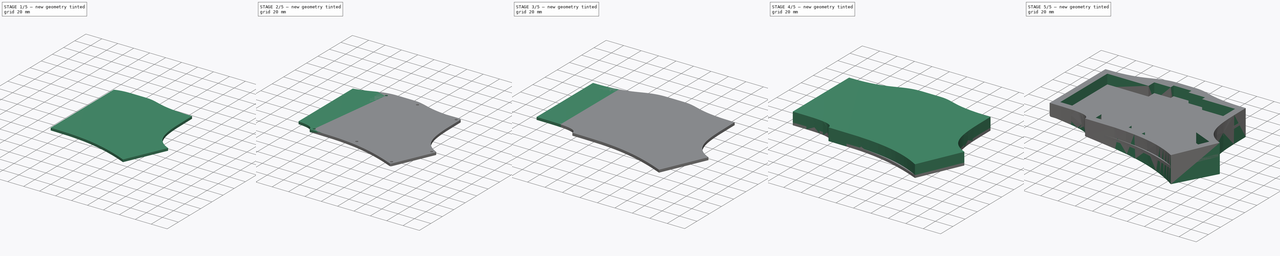
[diagram: build sequence overview — one tinted view per stage of 5, left to right]
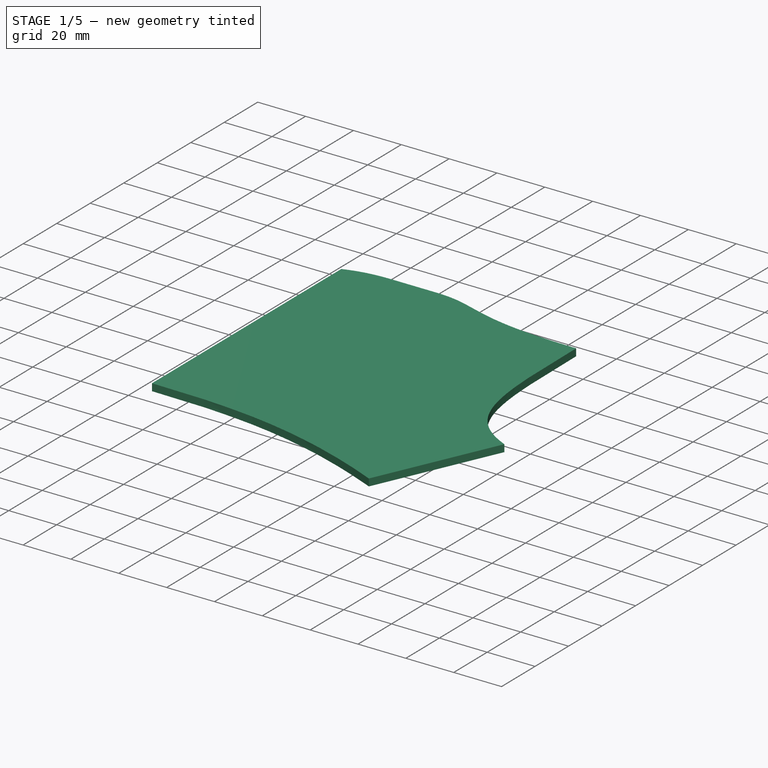
[diagram: stage 1 of 5 — iso view after this stage's code; geometry added in this stage tinted green]
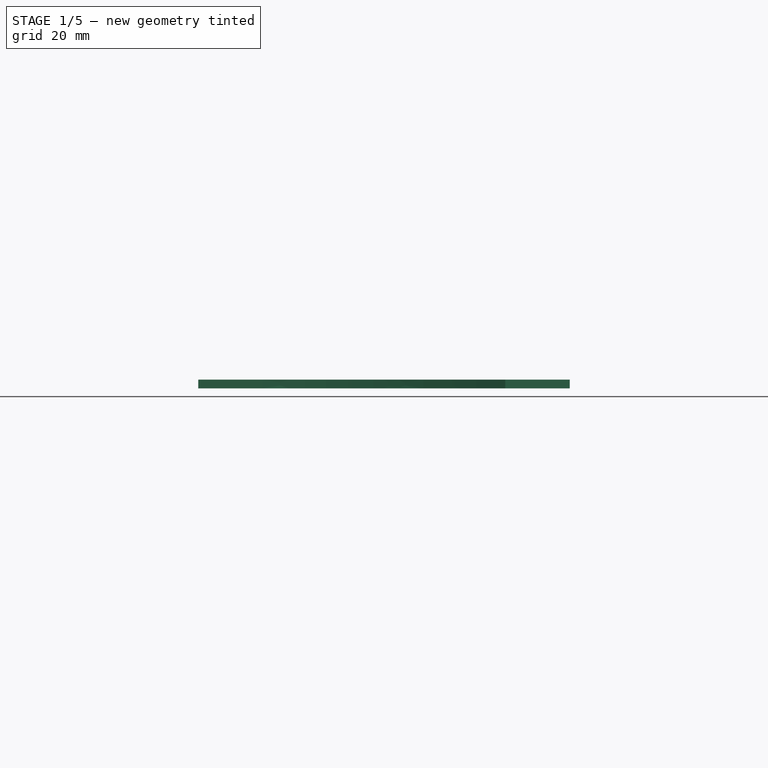
[diagram: stage 1 of 5 — front view after this stage's code; geometry added in this stage tinted green]
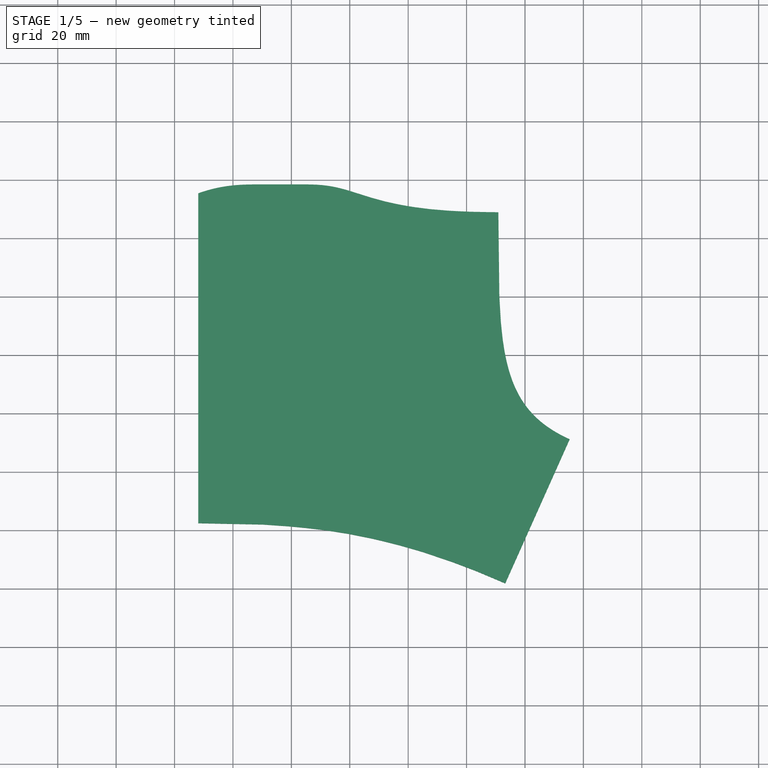
[diagram: stage 1 of 5 — top view after this stage's code; geometry added in this stage tinted green]
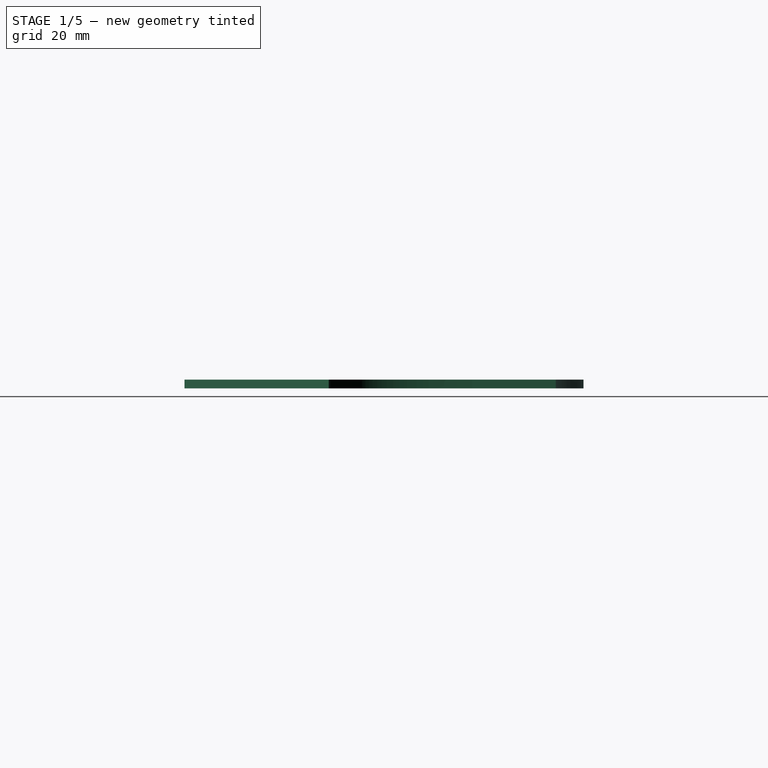
[diagram: stage 1 of 5 — right view after this stage's code; geometry added in this stage tinted green]
FCSTD DOCUMENT  (FreeCAD 0.19R24291 (Git))
Label: case
License: All rights reserved
LicenseURL: http://en.wikipedia.org/wiki/All_rights_reserved
objects: Sketcher::SketchObject×51, PartDesign::Pocket×32, PartDesign::Fillet×19, PartDesign::Pad×15, PartDesign::Body×15, Spreadsheet::Sheet×1, PartDesign::Draft×1
note: 200 computed .brp shape members not serialized (recipe doc carries the construction recipe); baked Part::Feature solids carry a one-line shape summary decoded from their .brp

FEATURE [Sketcher::SketchObject] Sketch032  label="outer border006"
  FullyConstrained = false
  expr: Constraints[61] = 78°
  expr: Constraints[119] = Spreadsheet.brim
  expr: Constraints[159] = Spreadsheet.grid
  expr: Constraints[134] = Spreadsheet.brim
  expr: Constraints[2] = 4 * Spreadsheet.grid
  expr: Constraints[5] = (Spreadsheet.mod_units + 1) * Spreadsheet.grid
  expr: Constraints[137] = Spreadsheet.brim
  expr: Constraints[133] = Spreadsheet.brim
  expr: Constraints[136] = Spreadsheet.brim
  expr: Constraints[142] = Spreadsheet.brim
  expr: Constraints[53] = Spreadsheet.grid * 2
  expr: Constraints[153] = Spreadsheet.grid * 2
  expr: Constraints[66] = Spreadsheet.grid - 14.60669124913411
  expr: Constraints[28] = Spreadsheet.grid * 2
  expr: Constraints[51] = Spreadsheet.grid * 1.5
  expr: Constraints[25] = Spreadsheet.grid / 4
  expr: Constraints[144] = Spreadsheet.brim
  expr: Constraints[52] = Spreadsheet.grid
  expr: Constraints[158] = <<Constants>>.grid * 1.5 + <<Constants>>.brim
  expr: Constraints[155] = Spreadsheet.brim
  expr: Constraints[143] = Spreadsheet.brim
  expr: Constraints[121] = Spreadsheet.brim
  expr: Constraints[165] = (Spreadsheet.overhang_offset - Spreadsheet.overhang) / 3 * 2
  expr: Constraints[146] = Spreadsheet.brim
  expr: Constraints[135] = Spreadsheet.brim
  expr: Constraints[139] = Spreadsheet.brim
  expr: Constraints[152] = Spreadsheet.brim
  expr: Constraints[26] = Spreadsheet.grid / 2
  expr: Constraints[130] = Spreadsheet.brim
  expr: Constraints[22] = Spreadsheet.grid
  expr: Constraints[65] = 180 - 12.08569093596732
  sketch-geometry (77):
    g0: LineSegment StartX=104.775 StartY=-9.525 StartZ=0 EndX=103.851 EndY=-13.8712 EndZ=0
    g1: LineSegment StartX=0 StartY=0 StartZ=0 EndX=0 EndY=76.2 EndZ=0
    g2: LineSegment StartX=0 StartY=76.2 StartZ=0 EndX=47.625 EndY=76.2 EndZ=0
    g3: LineSegment StartX=47.625 StartY=76.2 StartZ=0 EndX=47.625 EndY=85.725 EndZ=0
    g4: LineSegment StartX=47.625 StartY=85.725 StartZ=0 EndX=66.675 EndY=85.725 EndZ=0
    g5: LineSegment StartX=66.675 StartY=85.725 StartZ=0 EndX=66.675 EndY=90.4875 EndZ=0
    g6: LineSegment StartX=66.675 StartY=90.4875 StartZ=0 EndX=85.725 EndY=90.4875 EndZ=0
    g7: LineSegment StartX=85.725 StartY=90.4875 StartZ=0 EndX=85.725 EndY=85.725 EndZ=0
    g8: LineSegment StartX=85.725 StartY=85.725 StartZ=0 EndX=104.775 EndY=85.725 EndZ=0
    g9: LineSegment StartX=104.775 StartY=85.725 StartZ=0 EndX=104.775 EndY=80.9625 EndZ=0
    g10: LineSegment StartX=104.775 StartY=80.9625 StartZ=0 EndX=142.875 EndY=80.9625 EndZ=0
    g11: LineSegment StartX=142.875 StartY=80.9625 StartZ=0 EndX=142.875 EndY=16.9712 EndZ=0
    g12: LineSegment StartX=0 StartY=0 StartZ=0 EndX=47.625 EndY=0 EndZ=0
    g13: LineSegment StartX=47.625 StartY=0 StartZ=0 EndX=47.625 EndY=-9.525 EndZ=0
    g14: LineSegment StartX=47.625 StartY=-9.525 StartZ=0 EndX=66.675 EndY=-9.525 EndZ=0
    g15: LineSegment StartX=66.675 StartY=-9.525 StartZ=0 EndX=66.675 EndY=-4.7625 EndZ=0
    g16: LineSegment StartX=66.675 StartY=-4.7625 StartZ=0 EndX=85.725 EndY=-4.7625 EndZ=0
    g17: LineSegment StartX=85.725 StartY=-4.7625 StartZ=0 EndX=85.725 EndY=-9.525 EndZ=0
    g18: LineSegment StartX=164.742 StartY=7.19623 StartZ=0 EndX=149.193 EndY=-27.5866 EndZ=0
    g19: LineSegment StartX=149.193 StartY=-27.5866 StartZ=0 EndX=131.802 EndY=-19.8123 EndZ=0
    g20: LineSegment StartX=131.802 StartY=-19.8123 StartZ=0 EndX=103.851 EndY=-13.8712 EndZ=0
    g21: LineSegment StartX=164.742 StartY=7.19623 StartZ=0 EndX=142.875 EndY=16.9712 EndZ=0
    g22: LineSegment StartX=85.725 StartY=-9.525 StartZ=0 EndX=104.775 EndY=-9.525 EndZ=0
    g23: LineSegment StartX=-8 StartY=84.2 StartZ=0 EndX=-8 EndY=-8 EndZ=0
    g24: LineSegment StartX=153.232 StartY=-38.1549 StartZ=0 EndX=175.31 EndY=11.2349 EndZ=0
    g25: LineSegment StartX=85.725 StartY=98.4875 StartZ=0 EndX=66.675 EndY=98.4875 EndZ=0
    g26-g29: Circle x4 (B-spline internal-alignment scaffolding for g30; pole/knot coordinates omitted)
    g30: BSplineCurve PolesCount=4 KnotsCount=2 Degree=3 IsPeriodic=0
    g31: GeomPoint X=-8 Y=84.2 Z=0
    g32: GeomPoint X=66.675 Y=98.4875 Z=0
    g33-g36: Circle x4 (B-spline internal-alignment scaffolding for g37; pole/knot coordinates omitted)
    g37: BSplineCurve PolesCount=4 KnotsCount=2 Degree=3 IsPeriodic=0
    g38: GeomPoint X=85.725 Y=98.4875 Z=0
    g39: GeomPoint X=150.875 Y=88.9625 Z=0
    g40-g43: Circle x4 (B-spline internal-alignment scaffolding for g44; pole/knot coordinates omitted)
    g44: BSplineCurve PolesCount=4 KnotsCount=2 Degree=3 IsPeriodic=0
    g45: GeomPoint X=150.875 Y=88.9625 Z=0
    g46: GeomPoint X=175.31 Y=11.2349 Z=0
    g47-g50: Circle x4 (B-spline internal-alignment scaffolding for g51; pole/knot coordinates omitted)
    g51: BSplineCurve PolesCount=4 KnotsCount=2 Degree=3 IsPeriodic=0
    g52: GeomPoint X=153.232 Y=-38.1549 Z=0
    g53: GeomPoint X=39.625 Y=-17.525 Z=0
    g54-g57: Circle x4 (B-spline internal-alignment scaffolding for g58; pole/knot coordinates omitted)
    g58: BSplineCurve PolesCount=4 KnotsCount=2 Degree=3 IsPeriodic=0
    g59: GeomPoint X=39.625 Y=-17.525 Z=0
    g60: GeomPoint X=-8 Y=-8 Z=0
    g61: LineSegment StartX=107.082 StartY=-17.525 StartZ=0 EndX=153.232 EndY=-38.1549 EndZ=0
    g62: LineSegment StartX=48.1333 StartY=-17.5342 StartZ=0 EndX=48.1333 EndY=95.4679 EndZ=0
    g63-g66: Circle x4 (B-spline internal-alignment scaffolding for g67; pole/knot coordinates omitted)
    g67: BSplineCurve PolesCount=4 KnotsCount=2 Degree=3 IsPeriodic=0
    g68: GeomPoint X=66.675 Y=98.4875 Z=0
    g69: GeomPoint X=48.1333 Y=95.4679 Z=0
    g70-g73: Circle x4 (B-spline internal-alignment scaffolding for g74; pole/knot coordinates omitted)
    g74: BSplineCurve PolesCount=4 KnotsCount=2 Degree=3 IsPeriodic=0
    g75: GeomPoint X=48.1333 Y=-17.5342 Z=0
    g76: GeomPoint X=153.232 Y=-38.1549 Z=0
  constraints (168):
    c: Coincident(g1,g-1)
    c: Vertical(g1)
    c: DistanceY(g1,g1) = 76.2
    c: Horizontal(g2)
    c: Coincident(g2,g1)
    c: DistanceX(g2,g2) = 47.625
    c: Coincident(g3,g4)
    c: Coincident(g4,g5)
    c: Coincident(g5,g6)
    c: Coincident(g6,g7)
    c: Coincident(g8,g9)
    c: Coincident(g9,g10)
    c: Coincident(g10,g11)
    c: Vertical(g3)
    c: Vertical(g5)
    c: Vertical(g7)
    c: Vertical(g9)
    c: Vertical(g11)
    c: Horizontal(g4)
    c: Horizontal(g6)
    c: Horizontal(g8)
    c: Horizontal(g10)
    c: DistanceX(g6,g6) = 19.05
    c: Equal(g4,g8)
    c: Equal(g8,g6)
    c: DistanceY(g5,g5) = 4.7625
    c: DistanceY(g3,g3) = 9.525
    c: Equal(g9,g7)
    c: DistanceX(g10,g10) = 38.1
    c: Coincident(g2,g3)
    c: Equal(g5,g7)
    c: Coincident(g12,g13)
    c: Coincident(g13,g14)
    c: Coincident(g14,g15)
    c: Coincident(g15,g16)
    c: Coincident(g16,g17)
    c: Equal(g12,g2)
    c: Horizontal(g12)
    c: Equal(g3,g13)
    c: Vertical(g13)
    c: Vertical(g15)
    c: Vertical(g17)
    c: Horizontal(g14)
    c: Horizontal(g16)
    c: Equal(g15,g17)
    c: Equal(g17,g5)
    c: Equal(g14,g4)
    c: Equal(g16,g6)
    c: Coincident(g1,g12)
    c: Coincident(g18,g19)
    c: Coincident(g19,g20)
    c: Distance(g20) = 28.575
    c: Distance(g19) = 19.05
    c: Distance(g18) = 38.1
    c: Perpendicular(g18,g19)
    c: Perpendicular(g21,g18)
    c: Coincident(g11,g21)
    c: Coincident(g17,g22)
    c: Equal(g22,g16)
    c: Horizontal(g22)
    c: Coincident(g22,g0)
    c: Angle(g22,g0) = 1.36136
    c: Coincident(g20,g0)
    c: Perpendicular(g20,g0)
    c: Coincident(g7,g8)
    c: Angle(g20,g19) = 2.93066
    c: Distance(g0) = 4.44331
    c: Coincident(g18,g21)
    c: Weight(g26) = 1
    c: Equal(g26,g27)
    c: Equal(g26,g28)
    c: Equal(g26,g29)
    c: InternalAlignment(g26-g29 -> g30) x4
    c: InternalAlignment(g31,g30)
    c: InternalAlignment(g32,g30)
    c: Weight(g33) = 1
    c: Equal(g33,g34)
    c: Equal(g33,g35)
    c: Equal(g33,g36)
    c: InternalAlignment(g33-g36 -> g37) x4
    c: InternalAlignment(g38,g37)
    c: InternalAlignment(g39,g37)
    c: Weight(g40) = 1
    c: Equal(g40,g41)
    c: Equal(g40,g42)
    c: Equal(g40,g43)
    c: InternalAlignment(g40-g43 -> g44) x4
    c: InternalAlignment(g45,g44)
    c: InternalAlignment(g46,g44)
    c: Coincident(g24,g44)
    c: Weight(g47) = 1
    c: Equal(g47,g48)
    c: Equal(g47,g49)
    c: Equal(g47,g50)
    c: InternalAlignment(g47-g50 -> g51) x4
    c: InternalAlignment(g52,g51)
    c: InternalAlignment(g53,g51)
    c: Weight(g54) = 1
    c: Equal(g54,g55)
    c: Equal(g54,g56)
    c: Equal(g54,g57)
    c: InternalAlignment(g54-g57 -> g58) x4
    c: InternalAlignment(g59,g58)
    c: InternalAlignment(g60,g58)
    c: DistanceX(g23,g1) = 8
    c: Coincident(g23,g30)
    c: DistanceY(g1,g23) = 8
    c: Horizontal(g27,g23)
    c: Horizontal(g25,g28)
    c: Horizontal(g34,g25)
    c: Coincident(g25,g37)
    c: Coincident(g25,g30)
    c: Vertical(g25,g5)
    c: Vertical(g6,g25)
    c: Horizontal(g25)
    c: DistanceY(g5,g25) = 8
    c: Horizontal(g35,g37)
    c: Coincident(g37,g44)
    c: DistanceX(g10,g37) = 8
    c: DistanceY(g10,g37) = 8
    c: Distance(g18,g24) = 8
    c: Distance(g24,g21) = 8
    c: Distance(g24,g18) = 8
    c: Coincident(g24,g51)
    c: Distance(g24,g19) = 8
    c: Horizontal(g49,g51)
    c: Coincident(g58,g51)
    c: DistanceY(g51,g13) = 8
    c: DistanceX(g51,g13) = 8
    c: DistanceX(g23,g-1) = 8
    c: Coincident(g23,g58)
    c: DistanceY(g23,g-1) = 8
    c: Horizontal(g56,g23)
    c: Vertical(g51,g55)
    c: Horizontal(g55,g23)
    c: Vertical(g42,g41)
    c: Vertical(g41,g37)
    c: Distance(g42,g21) = 8
    c: DistanceY(g41,g10) = 38.1
    c: Vertical(g27,g28)
    c: DistanceX(g27,g2) = 8
    c: Vertical(g35,g8)
    c: Vertical(g8,g34)
    c: DistanceX(g51,g49) = 36.575
    c: DistanceX(g56,g55) = 19.05
    c: Perpendicular(g61,g24)
    c: Coincident(g61,g24)
    c: Coincident(g61,g48)
    c: Horizontal(g48,g51)
    c: Vertical(g62)
    c: DistanceX(g23,g62) = 56.1333
    c: Weight(g63) = 1
    c: Equal(g63,g64)
    c: Equal(g63,g65)
    c: Equal(g63,g66)
    c: InternalAlignment(g63-g66 -> g67) x4
    c: InternalAlignment(g68,g67)
    c: InternalAlignment(g69,g67)
    c: Coincident(g62,g67)
    c: Weight(g70) = 1
    c: Equal(g70,g71)
    c: Equal(g70,g72)
    c: Equal(g70,g73)
    c: InternalAlignment(g70-g73 -> g74) x4
    c: InternalAlignment(g75,g74)
    c: InternalAlignment(g76,g74)
    c: Coincident(g24,g74)
    c: Coincident(g74,g62)
FEATURE [PartDesign::Pad] Pad009
  Direction = (1,1,1)
  Length = 3
  Length2 = 100
  Profile = -> Sketch032
  Type = 0
  expr: Length = Spreadsheet.thickness
FEATURE [Sketcher::SketchObject] Sketch034  label="outer border007"
  FullyConstrained = false
  expr: Constraints[65] = 180 - 12.08569093596732
  expr: Constraints[22] = Spreadsheet.grid
  expr: Constraints[130] = Spreadsheet.brim
  expr: Constraints[26] = Spreadsheet.grid / 2
  expr: Constraints[152] = Spreadsheet.brim
  expr: Constraints[139] = Spreadsheet.brim
  expr: Constraints[135] = Spreadsheet.brim
  expr: Constraints[146] = Spreadsheet.brim
  expr: Constraints[165] = Spreadsheet.overhang_offset - Spreadsheet.overhang
  expr: Constraints[121] = Spreadsheet.brim
  expr: Constraints[143] = Spreadsheet.brim
  expr: Constraints[155] = Spreadsheet.brim
  expr: Constraints[158] = <<Constants>>.grid * 1.5 + <<Constants>>.brim
  expr: Constraints[52] = Spreadsheet.grid
  expr: Constraints[144] = Spreadsheet.brim
  expr: Constraints[66] = Spreadsheet.grid - 14.60669124913411
  expr: Constraints[28] = Spreadsheet.grid * 2
  expr: Constraints[51] = Spreadsheet.grid * 1.5
  expr: Constraints[25] = Spreadsheet.grid / 4
  expr: Constraints[153] = Spreadsheet.grid * 2
  expr: Constraints[142] = Spreadsheet.brim
  expr: Constraints[53] = Spreadsheet.grid * 2
  expr: Constraints[133] = Spreadsheet.brim
  expr: Constraints[136] = Spreadsheet.brim
  expr: Constraints[134] = Spreadsheet.brim
  expr: Constraints[2] = 4 * Spreadsheet.grid
  expr: Constraints[5] = (Spreadsheet.mod_units + 1) * Spreadsheet.grid
  expr: Constraints[137] = Spreadsheet.brim
  expr: Constraints[159] = Spreadsheet.grid
  expr: Constraints[61] = 78°
  expr: Constraints[119] = Spreadsheet.brim
  sketch-geometry (71):
    g0: LineSegment StartX=104.775 StartY=-9.525 StartZ=0 EndX=103.851 EndY=-13.8712 EndZ=0
    g1: LineSegment StartX=0 StartY=0 StartZ=0 EndX=0 EndY=76.2 EndZ=0
    g2: LineSegment StartX=0 StartY=76.2 StartZ=0 EndX=47.625 EndY=76.2 EndZ=0
    g3: LineSegment StartX=47.625 StartY=76.2 StartZ=0 EndX=47.625 EndY=85.725 EndZ=0
    g4: LineSegment StartX=47.625 StartY=85.725 StartZ=0 EndX=66.675 EndY=85.725 EndZ=0
    g5: LineSegment StartX=66.675 StartY=85.725 StartZ=0 EndX=66.675 EndY=90.4875 EndZ=0
    g6: LineSegment StartX=66.675 StartY=90.4875 StartZ=0 EndX=85.725 EndY=90.4875 EndZ=0
    g7: LineSegment StartX=85.725 StartY=90.4875 StartZ=0 EndX=85.725 EndY=85.725 EndZ=0
    g8: LineSegment StartX=85.725 StartY=85.725 StartZ=0 EndX=104.775 EndY=85.725 EndZ=0
    g9: LineSegment StartX=104.775 StartY=85.725 StartZ=0 EndX=104.775 EndY=80.9625 EndZ=0
    g10: LineSegment StartX=104.775 StartY=80.9625 StartZ=0 EndX=142.875 EndY=80.9625 EndZ=0
    g11: LineSegment StartX=142.875 StartY=80.9625 StartZ=0 EndX=142.875 EndY=16.9712 EndZ=0
    g12: LineSegment StartX=0 StartY=0 StartZ=0 EndX=47.625 EndY=0 EndZ=0
    g13: LineSegment StartX=47.625 StartY=0 StartZ=0 EndX=47.625 EndY=-9.525 EndZ=0
    g14: LineSegment StartX=47.625 StartY=-9.525 StartZ=0 EndX=66.675 EndY=-9.525 EndZ=0
    g15: LineSegment StartX=66.675 StartY=-9.525 StartZ=0 EndX=66.675 EndY=-4.7625 EndZ=0
    g16: LineSegment StartX=66.675 StartY=-4.7625 StartZ=0 EndX=85.725 EndY=-4.7625 EndZ=0
    g17: LineSegment StartX=85.725 StartY=-4.7625 StartZ=0 EndX=85.725 EndY=-9.525 EndZ=0
    g18: LineSegment StartX=164.742 StartY=7.19623 StartZ=0 EndX=149.193 EndY=-27.5866 EndZ=0
    g19: LineSegment StartX=149.193 StartY=-27.5866 StartZ=0 EndX=131.802 EndY=-19.8123 EndZ=0
    g20: LineSegment StartX=131.802 StartY=-19.8123 StartZ=0 EndX=103.851 EndY=-13.8712 EndZ=0
    g21: LineSegment StartX=164.742 StartY=7.19623 StartZ=0 EndX=142.875 EndY=16.9712 EndZ=0
    g22: LineSegment StartX=85.725 StartY=-9.525 StartZ=0 EndX=104.775 EndY=-9.525 EndZ=0
    g23: LineSegment StartX=-8 StartY=84.2 StartZ=0 EndX=-8 EndY=-8 EndZ=0
    g24: LineSegment StartX=153.232 StartY=-38.1549 StartZ=0 EndX=175.31 EndY=11.2349 EndZ=0
    g25: LineSegment StartX=85.725 StartY=98.4875 StartZ=0 EndX=76.2 EndY=98.4875 EndZ=0
    g26-g29: Circle x4 (B-spline internal-alignment scaffolding for g30; pole/knot coordinates omitted)
    g30: BSplineCurve PolesCount=4 KnotsCount=2 Degree=3 IsPeriodic=0
    g31: GeomPoint X=-8 Y=84.2 Z=0
    g32: GeomPoint X=66.675 Y=98.4875 Z=0
    g33-g36: Circle x4 (B-spline internal-alignment scaffolding for g37; pole/knot coordinates omitted)
    g37: BSplineCurve PolesCount=4 KnotsCount=2 Degree=3 IsPeriodic=0
    g38: GeomPoint X=85.725 Y=98.4875 Z=0
    g39: GeomPoint X=150.875 Y=88.9625 Z=0
    g40-g43: Circle x4 (B-spline internal-alignment scaffolding for g44; pole/knot coordinates omitted)
    g44: BSplineCurve PolesCount=4 KnotsCount=2 Degree=3 IsPeriodic=0
    g45: GeomPoint X=150.875 Y=88.9625 Z=0
    g46: GeomPoint X=175.31 Y=11.2349 Z=0
    g47-g50: Circle x4 (B-spline internal-alignment scaffolding for g51; pole/knot coordinates omitted)
    g51: BSplineCurve PolesCount=4 KnotsCount=2 Degree=3 IsPeriodic=0
    g52: GeomPoint X=153.232 Y=-38.1549 Z=0
    g53: GeomPoint X=39.625 Y=-17.525 Z=0
    g54-g57: Circle x4 (B-spline internal-alignment scaffolding for g58; pole/knot coordinates omitted)
    g58: BSplineCurve PolesCount=4 KnotsCount=2 Degree=3 IsPeriodic=0
    g59: GeomPoint X=39.625 Y=-17.525 Z=0
    g60: GeomPoint X=-8 Y=-8 Z=0
    g61: LineSegment StartX=107.082 StartY=-17.525 StartZ=0 EndX=153.232 EndY=-38.1549 EndZ=0
    g62: LineSegment StartX=76.2 StartY=-18.3323 StartZ=0 EndX=76.2 EndY=98.4875 EndZ=0
    g63-g66: Circle x4 (B-spline internal-alignment scaffolding for g67; pole/knot coordinates omitted)
    g67: BSplineCurve PolesCount=4 KnotsCount=2 Degree=3 IsPeriodic=0
    g68: GeomPoint X=76.2 Y=-18.3323 Z=0
    g69: GeomPoint X=153.232 Y=-38.1549 Z=0
    g70: LineSegment StartX=67.675 StartY=98.4875 StartZ=0 EndX=66.675 EndY=98.4875 EndZ=0
  constraints (164):
    c: Coincident(g1,g-1)
    c: Vertical(g1)
    c: DistanceY(g1,g1) = 76.2
    c: Horizontal(g2)
    c: Coincident(g2,g1)
    c: DistanceX(g2,g2) = 47.625
    c: Coincident(g3,g4)
    c: Coincident(g4,g5)
    c: Coincident(g5,g6)
    c: Coincident(g6,g7)
    c: Coincident(g8,g9)
    c: Coincident(g9,g10)
    c: Coincident(g10,g11)
    c: Vertical(g3)
    c: Vertical(g5)
    c: Vertical(g7)
    c: Vertical(g9)
    c: Vertical(g11)
    c: Horizontal(g4)
    c: Horizontal(g6)
    c: Horizontal(g8)
    c: Horizontal(g10)
    c: DistanceX(g6,g6) = 19.05
    c: Equal(g4,g8)
    c: Equal(g8,g6)
    c: DistanceY(g5,g5) = 4.7625
    c: DistanceY(g3,g3) = 9.525
    c: Equal(g9,g7)
    c: DistanceX(g10,g10) = 38.1
    c: Coincident(g2,g3)
    c: Equal(g5,g7)
    c: Coincident(g12,g13)
    c: Coincident(g13,g14)
    c: Coincident(g14,g15)
    c: Coincident(g15,g16)
    c: Coincident(g16,g17)
    c: Equal(g12,g2)
    c: Horizontal(g12)
    c: Equal(g3,g13)
    c: Vertical(g13)
    c: Vertical(g15)
    c: Vertical(g17)
    c: Horizontal(g14)
    c: Horizontal(g16)
    c: Equal(g15,g17)
    c: Equal(g17,g5)
    c: Equal(g14,g4)
    c: Equal(g16,g6)
    c: Coincident(g1,g12)
    c: Coincident(g18,g19)
    c: Coincident(g19,g20)
    c: Distance(g20) = 28.575
    c: Distance(g19) = 19.05
    c: Distance(g18) = 38.1
    c: Perpendicular(g18,g19)
    c: Perpendicular(g21,g18)
    c: Coincident(g11,g21)
    c: Coincident(g17,g22)
    c: Equal(g22,g16)
    c: Horizontal(g22)
    c: Coincident(g22,g0)
    c: Angle(g22,g0) = 1.36136
    c: Coincident(g20,g0)
    c: Perpendicular(g20,g0)
    c: Coincident(g7,g8)
    c: Angle(g20,g19) = 2.93066
    c: Distance(g0) = 4.44331
    c: Coincident(g18,g21)
    c: Weight(g26) = 1
    c: Equal(g26,g27)
    c: Equal(g26,g28)
    c: Equal(g26,g29)
    c: InternalAlignment(g26-g29 -> g30) x4
    c: InternalAlignment(g31,g30)
    c: InternalAlignment(g32,g30)
    c: Weight(g33) = 1
    c: Equal(g33,g34)
    c: Equal(g33,g35)
    c: Equal(g33,g36)
    c: InternalAlignment(g33-g36 -> g37) x4
    c: InternalAlignment(g38,g37)
    c: InternalAlignment(g39,g37)
    c: Weight(g40) = 1
    c: Equal(g40,g41)
    c: Equal(g40,g42)
    c: Equal(g40,g43)
    c: InternalAlignment(g40-g43 -> g44) x4
    c: InternalAlignment(g45,g44)
    c: InternalAlignment(g46,g44)
    c: Coincident(g24,g44)
    c: Weight(g47) = 1
    c: Equal(g47,g48)
    c: Equal(g47,g49)
    c: Equal(g47,g50)
    c: InternalAlignment(g47-g50 -> g51) x4
    c: InternalAlignment(g52,g51)
    c: InternalAlignment(g53,g51)
    c: Weight(g54) = 1
    c: Equal(g54,g55)
    c: Equal(g54,g56)
    c: Equal(g54,g57)
    c: InternalAlignment(g54-g57 -> g58) x4
    c: InternalAlignment(g59,g58)
    c: InternalAlignment(g60,g58)
    c: DistanceX(g23,g1) = 8
    c: Coincident(g23,g30)
    c: DistanceY(g1,g23) = 8
    c: Horizontal(g27,g23)
    c: Horizontal(g70,g28)
    c: Horizontal(g34,g25)
    c: Coincident(g25,g37)
    c: Coincident(g70,g30)
    c: Vertical(g70,g5)
    c: Vertical(g6,g25)
    c: Horizontal(g25)
    c: DistanceY(g5,g70) = 8
    c: Horizontal(g35,g37)
    c: Coincident(g37,g44)
    c: DistanceX(g10,g37) = 8
    c: DistanceY(g10,g37) = 8
    c: Distance(g18,g24) = 8
    c: Distance(g24,g21) = 8
    c: Distance(g24,g18) = 8
    c: Coincident(g24,g51)
    c: Distance(g24,g19) = 8
    c: Horizontal(g49,g51)
    c: Coincident(g58,g51)
    c: DistanceY(g51,g13) = 8
    c: DistanceX(g51,g13) = 8
    c: DistanceX(g23,g-1) = 8
    c: Coincident(g23,g58)
    c: DistanceY(g23,g-1) = 8
    c: Horizontal(g56,g23)
    c: Vertical(g51,g55)
    c: Horizontal(g55,g23)
    c: Vertical(g42,g41)
    c: Vertical(g41,g37)
    c: Distance(g42,g21) = 8
    c: DistanceY(g41,g10) = 38.1
    c: Vertical(g27,g28)
    c: DistanceX(g27,g2) = 8
    c: Vertical(g35,g8)
    c: Vertical(g8,g34)
    c: DistanceX(g51,g49) = 36.575
    c: DistanceX(g56,g55) = 19.05
    c: Perpendicular(g61,g24)
    c: Coincident(g61,g24)
    c: Coincident(g61,g48)
    c: Horizontal(g48,g51)
    c: Vertical(g62)
    c: DistanceX(g23,g62) = 84.2
    c: Weight(g63) = 1
    c: Equal(g63,g64)
    c: Equal(g63,g65)
    c: Equal(g63,g66)
    c: InternalAlignment(g63-g66 -> g67) x4
    c: InternalAlignment(g68,g67)
    c: InternalAlignment(g69,g67)
    c: Coincident(g24,g67)
    c: Coincident(g67,g62)
    c: Coincident(g25,g62)
    c: PointOnObject(g70,g29)
    c: Tangent(g25,g70)
    c: PointOnObject(g65,g61)
FEATURE [PartDesign::Pad] Pad010
  Direction = (1,1,1)
  Length = 3
  Length2 = 100
  Profile = -> Sketch034
  Type = 0
  expr: Length = Spreadsheet.thickness
FEATURE [Sketcher::SketchObject] Sketch035  label="outer border008"
  FullyConstrained = false
  expr: Constraints[119] = Spreadsheet.brim
  expr: Constraints[61] = 78°
  expr: Constraints[132] = Spreadsheet.brim
  expr: Constraints[121] = Spreadsheet.brim
  expr: Constraints[135] = Spreadsheet.brim
  expr: Constraints[151] = Spreadsheet.grid * 2
  expr: Constraints[131] = Spreadsheet.brim
  expr: Constraints[156] = <<Constants>>.grid * 1.5 + <<Constants>>.brim
  expr: Constraints[52] = Spreadsheet.grid
  expr: Constraints[53] = Spreadsheet.grid * 2
  expr: Constraints[142] = Spreadsheet.brim
  expr: Constraints[133] = Spreadsheet.brim
  expr: Constraints[153] = Spreadsheet.brim
  expr: Constraints[150] = Spreadsheet.brim
  expr: Constraints[26] = Spreadsheet.grid / 2
  expr: Constraints[128] = Spreadsheet.brim
  expr: Constraints[134] = Spreadsheet.brim
  expr: Constraints[137] = Spreadsheet.brim
  expr: Constraints[2] = 4 * Spreadsheet.grid
  expr: Constraints[5] = (Spreadsheet.mod_units + 1) * Spreadsheet.grid
  expr: Constraints[157] = Spreadsheet.grid
  expr: Constraints[163] = (Spreadsheet.overhang_offset - Spreadsheet.overhang) / 3 * 4
  expr: Constraints[22] = Spreadsheet.grid
  expr: Constraints[141] = Spreadsheet.brim
  expr: Constraints[25] = Spreadsheet.grid / 4
  expr: Constraints[28] = Spreadsheet.grid * 2
  expr: Constraints[51] = Spreadsheet.grid * 1.5
  expr: Constraints[66] = Spreadsheet.grid - 14.60669124913411
  expr: Constraints[144] = Spreadsheet.brim
  expr: Constraints[140] = Spreadsheet.brim
  expr: Constraints[65] = 180 - 12.08569093596732
  sketch-geometry (78):
    g0: LineSegment StartX=104.775 StartY=-9.525 StartZ=0 EndX=103.851 EndY=-13.8712 EndZ=0
    g1: LineSegment StartX=0 StartY=0 StartZ=0 EndX=0 EndY=76.2 EndZ=0
    g2: LineSegment StartX=0 StartY=76.2 StartZ=0 EndX=47.625 EndY=76.2 EndZ=0
    g3: LineSegment StartX=47.625 StartY=76.2 StartZ=0 EndX=47.625 EndY=85.725 EndZ=0
    g4: LineSegment StartX=47.625 StartY=85.725 StartZ=0 EndX=66.675 EndY=85.725 EndZ=0
    g5: LineSegment StartX=66.675 StartY=85.725 StartZ=0 EndX=66.675 EndY=90.4875 EndZ=0
    g6: LineSegment StartX=66.675 StartY=90.4875 StartZ=0 EndX=85.725 EndY=90.4875 EndZ=0
    g7: LineSegment StartX=85.725 StartY=90.4875 StartZ=0 EndX=85.725 EndY=85.725 EndZ=0
    g8: LineSegment StartX=85.725 StartY=85.725 StartZ=0 EndX=104.775 EndY=85.725 EndZ=0
    g9: LineSegment StartX=104.775 StartY=85.725 StartZ=0 EndX=104.775 EndY=80.9625 EndZ=0
    g10: LineSegment StartX=104.775 StartY=80.9625 StartZ=0 EndX=142.875 EndY=80.9625 EndZ=0
    g11: LineSegment StartX=142.875 StartY=80.9625 StartZ=0 EndX=142.875 EndY=16.9712 EndZ=0
    g12: LineSegment StartX=0 StartY=0 StartZ=0 EndX=47.625 EndY=0 EndZ=0
    g13: LineSegment StartX=47.625 StartY=0 StartZ=0 EndX=47.625 EndY=-9.525 EndZ=0
    g14: LineSegment StartX=47.625 StartY=-9.525 StartZ=0 EndX=66.675 EndY=-9.525 EndZ=0
    g15: LineSegment StartX=66.675 StartY=-9.525 StartZ=0 EndX=66.675 EndY=-4.7625 EndZ=0
    g16: LineSegment StartX=66.675 StartY=-4.7625 StartZ=0 EndX=85.725 EndY=-4.7625 EndZ=0
    g17: LineSegment StartX=85.725 StartY=-4.7625 StartZ=0 EndX=85.725 EndY=-9.525 EndZ=0
    g18: LineSegment StartX=164.742 StartY=7.19623 StartZ=0 EndX=149.193 EndY=-27.5866 EndZ=0
    g19: LineSegment StartX=149.193 StartY=-27.5866 StartZ=0 EndX=131.802 EndY=-19.8123 EndZ=0
    g20: LineSegment StartX=131.802 StartY=-19.8123 StartZ=0 EndX=103.851 EndY=-13.8712 EndZ=0
    g21: LineSegment StartX=164.742 StartY=7.19623 StartZ=0 EndX=142.875 EndY=16.9712 EndZ=0
    g22: LineSegment StartX=85.725 StartY=-9.525 StartZ=0 EndX=104.775 EndY=-9.525 EndZ=0
    g23: LineSegment StartX=-8 StartY=84.2 StartZ=0 EndX=-8 EndY=-8 EndZ=0
    g24: LineSegment StartX=153.232 StartY=-38.1549 StartZ=0 EndX=175.31 EndY=11.2349 EndZ=0
    g25-g28: Circle x4 (B-spline internal-alignment scaffolding for g29; pole/knot coordinates omitted)
    g29: BSplineCurve PolesCount=4 KnotsCount=2 Degree=3 IsPeriodic=0
    g30: GeomPoint X=-8 Y=84.2 Z=0
    g31: GeomPoint X=66.675 Y=98.4875 Z=0
    g32-g35: Circle x4 (B-spline internal-alignment scaffolding for g36; pole/knot coordinates omitted)
    g36: BSplineCurve PolesCount=4 KnotsCount=2 Degree=3 IsPeriodic=0
    g37: GeomPoint X=85.725 Y=98.4875 Z=0
    g38: GeomPoint X=150.875 Y=88.9625 Z=0
    g39-g42: Circle x4 (B-spline internal-alignment scaffolding for g43; pole/knot coordinates omitted)
    g43: BSplineCurve PolesCount=4 KnotsCount=2 Degree=3 IsPeriodic=0
    g44: GeomPoint X=150.875 Y=88.9625 Z=0
    g45: GeomPoint X=175.31 Y=11.2349 Z=0
    g46-g49: Circle x4 (B-spline internal-alignment scaffolding for g50; pole/knot coordinates omitted)
    g50: BSplineCurve PolesCount=4 KnotsCount=2 Degree=3 IsPeriodic=0
    g51: GeomPoint X=153.232 Y=-38.1549 Z=0
    g52: GeomPoint X=39.625 Y=-17.525 Z=0
    g53-g56: Circle x4 (B-spline internal-alignment scaffolding for g57; pole/knot coordinates omitted)
    g57: BSplineCurve PolesCount=4 KnotsCount=2 Degree=3 IsPeriodic=0
    g58: GeomPoint X=39.625 Y=-17.525 Z=0
    g59: GeomPoint X=-8 Y=-8 Z=0
    g60: LineSegment StartX=107.082 StartY=-17.525 StartZ=0 EndX=153.232 EndY=-38.1549 EndZ=0
    g61: LineSegment StartX=104.267 StartY=-21.9413 StartZ=0 EndX=104.267 EndY=94.9245 EndZ=0
    g62-g65: Circle x4 (B-spline internal-alignment scaffolding for g66; pole/knot coordinates omitted)
    g66: BSplineCurve PolesCount=4 KnotsCount=2 Degree=3 IsPeriodic=0
    g67: GeomPoint X=104.267 Y=-21.9413 Z=0
    g68: GeomPoint X=153.232 Y=-38.1549 Z=0
    g69: LineSegment StartX=67.675 StartY=98.4875 StartZ=0 EndX=66.675 EndY=98.4875 EndZ=0
    g70: LineSegment StartX=85.725 StartY=98.4875 StartZ=0 EndX=67.675 EndY=98.4875 EndZ=0
    g71-g74: Circle x4 (B-spline internal-alignment scaffolding for g75; pole/knot coordinates omitted)
    g75: BSplineCurve PolesCount=4 KnotsCount=2 Degree=3 IsPeriodic=0
    g76: GeomPoint X=104.267 Y=94.9245 Z=0
    g77: GeomPoint X=150.875 Y=88.9625 Z=0
  constraints (172):
    c: Coincident(g1,g-1)
    c: Vertical(g1)
    c: DistanceY(g1,g1) = 76.2
    c: Horizontal(g2)
    c: Coincident(g2,g1)
    c: DistanceX(g2,g2) = 47.625
    c: Coincident(g3,g4)
    c: Coincident(g4,g5)
    c: Coincident(g5,g6)
    c: Coincident(g6,g7)
    c: Coincident(g8,g9)
    c: Coincident(g9,g10)
    c: Coincident(g10,g11)
    c: Vertical(g3)
    c: Vertical(g5)
    c: Vertical(g7)
    c: Vertical(g9)
    c: Vertical(g11)
    c: Horizontal(g4)
    c: Horizontal(g6)
    c: Horizontal(g8)
    c: Horizontal(g10)
    c: DistanceX(g6,g6) = 19.05
    c: Equal(g4,g8)
    c: Equal(g8,g6)
    c: DistanceY(g5,g5) = 4.7625
    c: DistanceY(g3,g3) = 9.525
    c: Equal(g9,g7)
    c: DistanceX(g10,g10) = 38.1
    c: Coincident(g2,g3)
    c: Equal(g5,g7)
    c: Coincident(g12,g13)
    c: Coincident(g13,g14)
    c: Coincident(g14,g15)
    c: Coincident(g15,g16)
    c: Coincident(g16,g17)
    c: Equal(g12,g2)
    c: Horizontal(g12)
    c: Equal(g3,g13)
    c: Vertical(g13)
    c: Vertical(g15)
    c: Vertical(g17)
    c: Horizontal(g14)
    c: Horizontal(g16)
    c: Equal(g15,g17)
    c: Equal(g17,g5)
    c: Equal(g14,g4)
    c: Equal(g16,g6)
    c: Coincident(g1,g12)
    c: Coincident(g18,g19)
    c: Coincident(g19,g20)
    c: Distance(g20) = 28.575
    c: Distance(g19) = 19.05
    c: Distance(g18) = 38.1
    c: Perpendicular(g18,g19)
    c: Perpendicular(g21,g18)
    c: Coincident(g11,g21)
    c: Coincident(g17,g22)
    c: Equal(g22,g16)
    c: Horizontal(g22)
    c: Coincident(g22,g0)
    c: Angle(g22,g0) = 1.36136
    c: Coincident(g20,g0)
    c: Perpendicular(g20,g0)
    c: Coincident(g7,g8)
    c: Angle(g20,g19) = 2.93066
    c: Distance(g0) = 4.44331
    c: Coincident(g18,g21)
    c: Weight(g25) = 1
    c: Equal(g25,g26)
    c: Equal(g25,g27)
    c: Equal(g25,g28)
    c: InternalAlignment(g25-g28 -> g29) x4
    c: InternalAlignment(g30,g29)
    c: InternalAlignment(g31,g29)
    c: Weight(g32) = 1
    c: Equal(g32,g33)
    c: Equal(g32,g34)
    c: Equal(g32,g35)
    c: InternalAlignment(g32-g35 -> g36) x4
    c: InternalAlignment(g37,g36)
    c: InternalAlignment(g38,g36)
    c: Weight(g39) = 1
    c: Equal(g39,g40)
    c: Equal(g39,g41)
    c: Equal(g39,g42)
    c: InternalAlignment(g39-g42 -> g43) x4
    c: InternalAlignment(g44,g43)
    c: InternalAlignment(g45,g43)
    c: Coincident(g24,g43)
    c: Weight(g46) = 1
    c: Equal(g46,g47)
    c: Equal(g46,g48)
    c: Equal(g46,g49)
    c: InternalAlignment(g46-g49 -> g50) x4
    c: InternalAlignment(g51,g50)
    c: InternalAlignment(g52,g50)
    c: Weight(g53) = 1
    c: Equal(g53,g54)
    c: Equal(g53,g55)
    c: Equal(g53,g56)
    c: InternalAlignment(g53-g56 -> g57) x4
    c: InternalAlignment(g58,g57)
    c: InternalAlignment(g59,g57)
    c: DistanceX(g23,g1) = 8
    c: Coincident(g23,g29)
    c: DistanceY(g1,g23) = 8
    c: Horizontal(g26,g23)
    c: Horizontal(g69,g27)
    c: Horizontal(g33,g36)
    c: Coincident(g69,g29)
    c: Vertical(g69,g5)
    c: Vertical(g6,g36)
    c: DistanceY(g5,g69) = 8
    c: Horizontal(g34,g36)
    c: Coincident(g36,g43)
    c: DistanceX(g10,g36) = 8
    c: DistanceY(g10,g36) = 8
    c: Distance(g18,g24) = 8
    c: Distance(g24,g21) = 8
    c: Distance(g24,g18) = 8
    c: Coincident(g24,g50)
    c: Distance(g24,g19) = 8
    c: Horizontal(g48,g50)
    c: Coincident(g57,g50)
    c: DistanceY(g50,g13) = 8
    c: DistanceX(g50,g13) = 8
    c: DistanceX(g23,g-1) = 8
    c: Coincident(g23,g57)
    c: DistanceY(g23,g-1) = 8
    c: Horizontal(g55,g23)
    c: Vertical(g50,g54)
    c: Horizontal(g54,g23)
    c: Vertical(g41,g40)
    c: Vertical(g40,g36)
    c: Distance(g41,g21) = 8
    c: DistanceY(g40,g10) = 38.1
    c: Vertical(g26,g27)
    c: DistanceX(g26,g2) = 8
    c: Vertical(g34,g8)
    c: Vertical(g8,g33)
    c: DistanceX(g50,g48) = 36.575
    c: DistanceX(g55,g54) = 19.05
    c: Perpendicular(g60,g24)
    c: Coincident(g60,g24)
    c: Coincident(g60,g47)
    c: Horizontal(g47,g50)
    c: Vertical(g61)
    c: DistanceX(g23,g61) = 112.267
    c: Weight(g62) = 1
    c: Equal(g62,g63)
    c: Equal(g62,g64)
    c: Equal(g62,g65)
    c: InternalAlignment(g62-g65 -> g66) x4
    c: InternalAlignment(g67,g66)
    c: InternalAlignment(g68,g66)
    c: Coincident(g24,g66)
    c: Coincident(g66,g61)
    c: PointOnObject(g69,g28)
    c: PointOnObject(g64,g60)
    c: Horizontal(g70)
    c: Coincident(g36,g70)
    c: Coincident(g69,g70)
    c: Weight(g71) = 1
    c: Equal(g71,g72)
    c: Equal(g71,g73)
    c: Equal(g71,g74)
    c: InternalAlignment(g71-g74 -> g75) x4
    c: InternalAlignment(g76,g75)
    c: InternalAlignment(g77,g75)
    c: Coincident(g75,g43)
    c: Coincident(g61,g75)
FEATURE [PartDesign::Pad] Pad011
  Direction = (1,1,1)
  Length = 3
  Length2 = 100
  Profile = -> Sketch035
  Type = 0
  expr: Length = Spreadsheet.thickness
FEATURE [Sketcher::SketchObject] Sketch036  label="outer border009"
  FullyConstrained = false
  expr: Constraints[65] = 180 - 12.08569093596732
  expr: Constraints[140] = Spreadsheet.brim
  expr: Constraints[144] = Spreadsheet.brim
  expr: Constraints[66] = Spreadsheet.grid - 14.60669124913411
  expr: Constraints[51] = Spreadsheet.grid * 1.5
  expr: Constraints[28] = Spreadsheet.grid * 2
  expr: Constraints[25] = Spreadsheet.grid / 4
  expr: Constraints[141] = Spreadsheet.brim
  expr: Constraints[22] = Spreadsheet.grid
  expr: Constraints[163] = (Spreadsheet.overhang_offset - Spreadsheet.overhang) / 3 * 5
  expr: Constraints[157] = Spreadsheet.grid
  expr: Constraints[5] = (Spreadsheet.mod_units + 1) * Spreadsheet.grid
  expr: Constraints[2] = 4 * Spreadsheet.grid
  expr: Constraints[137] = Spreadsheet.brim
  expr: Constraints[134] = Spreadsheet.brim
  expr: Constraints[128] = Spreadsheet.brim
  expr: Constraints[26] = Spreadsheet.grid / 2
  expr: Constraints[150] = Spreadsheet.brim
  expr: Constraints[153] = Spreadsheet.brim
  expr: Constraints[133] = Spreadsheet.brim
  expr: Constraints[53] = Spreadsheet.grid * 2
  expr: Constraints[142] = Spreadsheet.brim
  expr: Constraints[156] = <<Constants>>.grid * 1.5 + <<Constants>>.brim
  expr: Constraints[52] = Spreadsheet.grid
  expr: Constraints[131] = Spreadsheet.brim
  expr: Constraints[151] = Spreadsheet.grid * 2
  expr: Constraints[135] = Spreadsheet.brim
  expr: Constraints[121] = Spreadsheet.brim
  expr: Constraints[132] = Spreadsheet.brim
  expr: Constraints[119] = Spreadsheet.brim
  expr: Constraints[61] = 78°
  sketch-geometry (78):
    g0: LineSegment StartX=104.775 StartY=-9.525 StartZ=0 EndX=103.851 EndY=-13.8712 EndZ=0
    g1: LineSegment StartX=0 StartY=0 StartZ=0 EndX=0 EndY=76.2 EndZ=0
    g2: LineSegment StartX=0 StartY=76.2 StartZ=0 EndX=47.625 EndY=76.2 EndZ=0
    g3: LineSegment StartX=47.625 StartY=76.2 StartZ=0 EndX=47.625 EndY=85.725 EndZ=0
    g4: LineSegment StartX=47.625 StartY=85.725 StartZ=0 EndX=66.675 EndY=85.725 EndZ=0
    g5: LineSegment StartX=66.675 StartY=85.725 StartZ=0 EndX=66.675 EndY=90.4875 EndZ=0
    g6: LineSegment StartX=66.675 StartY=90.4875 StartZ=0 EndX=85.725 EndY=90.4875 EndZ=0
    g7: LineSegment StartX=85.725 StartY=90.4875 StartZ=0 EndX=85.725 EndY=85.725 EndZ=0
    g8: LineSegment StartX=85.725 StartY=85.725 StartZ=0 EndX=104.775 EndY=85.725 EndZ=0
    g9: LineSegment StartX=104.775 StartY=85.725 StartZ=0 EndX=104.775 EndY=80.9625 EndZ=0
    g10: LineSegment StartX=104.775 StartY=80.9625 StartZ=0 EndX=142.875 EndY=80.9625 EndZ=0
    g11: LineSegment StartX=142.875 StartY=80.9625 StartZ=0 EndX=142.875 EndY=16.9712 EndZ=0
    g12: LineSegment StartX=0 StartY=0 StartZ=0 EndX=47.625 EndY=0 EndZ=0
    g13: LineSegment StartX=47.625 StartY=0 StartZ=0 EndX=47.625 EndY=-9.525 EndZ=0
    g14: LineSegment StartX=47.625 StartY=-9.525 StartZ=0 EndX=66.675 EndY=-9.525 EndZ=0
    g15: LineSegment StartX=66.675 StartY=-9.525 StartZ=0 EndX=66.675 EndY=-4.7625 EndZ=0
    g16: LineSegment StartX=66.675 StartY=-4.7625 StartZ=0 EndX=85.725 EndY=-4.7625 EndZ=0
    g17: LineSegment StartX=85.725 StartY=-4.7625 StartZ=0 EndX=85.725 EndY=-9.525 EndZ=0
    g18: LineSegment StartX=164.742 StartY=7.19623 StartZ=0 EndX=149.193 EndY=-27.5866 EndZ=0
    g19: LineSegment StartX=149.193 StartY=-27.5866 StartZ=0 EndX=131.802 EndY=-19.8123 EndZ=0
    g20: LineSegment StartX=131.802 StartY=-19.8123 StartZ=0 EndX=103.851 EndY=-13.8712 EndZ=0
    g21: LineSegment StartX=164.742 StartY=7.19623 StartZ=0 EndX=142.875 EndY=16.9712 EndZ=0
    g22: LineSegment StartX=85.725 StartY=-9.525 StartZ=0 EndX=104.775 EndY=-9.525 EndZ=0
    g23: LineSegment StartX=-8 StartY=84.2 StartZ=0 EndX=-8 EndY=-8 EndZ=0
    g24: LineSegment StartX=153.232 StartY=-38.1549 StartZ=0 EndX=175.31 EndY=11.2349 EndZ=0
    g25-g28: Circle x4 (B-spline internal-alignment scaffolding for g29; pole/knot coordinates omitted)
    g29: BSplineCurve PolesCount=4 KnotsCount=2 Degree=3 IsPeriodic=0
    g30: GeomPoint X=-8 Y=84.2 Z=0
    g31: GeomPoint X=66.675 Y=98.4875 Z=0
    g32-g35: Circle x4 (B-spline internal-alignment scaffolding for g36; pole/knot coordinates omitted)
    g36: BSplineCurve PolesCount=4 KnotsCount=2 Degree=3 IsPeriodic=0
    g37: GeomPoint X=85.725 Y=98.4875 Z=0
    g38: GeomPoint X=150.875 Y=88.9625 Z=0
    g39-g42: Circle x4 (B-spline internal-alignment scaffolding for g43; pole/knot coordinates omitted)
    g43: BSplineCurve PolesCount=4 KnotsCount=2 Degree=3 IsPeriodic=0
    g44: GeomPoint X=150.875 Y=88.9625 Z=0
    g45: GeomPoint X=175.31 Y=11.2349 Z=0
    g46-g49: Circle x4 (B-spline internal-alignment scaffolding for g50; pole/knot coordinates omitted)
    g50: BSplineCurve PolesCount=4 KnotsCount=2 Degree=3 IsPeriodic=0
    g51: GeomPoint X=153.232 Y=-38.1549 Z=0
    g52: GeomPoint X=39.625 Y=-17.525 Z=0
    g53-g56: Circle x4 (B-spline internal-alignment scaffolding for g57; pole/knot coordinates omitted)
    g57: BSplineCurve PolesCount=4 KnotsCount=2 Degree=3 IsPeriodic=0
    g58: GeomPoint X=39.625 Y=-17.525 Z=0
    g59: GeomPoint X=-8 Y=-8 Z=0
    g60: LineSegment StartX=107.082 StartY=-17.525 StartZ=0 EndX=153.232 EndY=-38.1549 EndZ=0
    g61: LineSegment StartX=132.333 StartY=-29.8115 StartZ=0 EndX=132.333 EndY=89.5935 EndZ=0
    g62-g65: Circle x4 (B-spline internal-alignment scaffolding for g66; pole/knot coordinates omitted)
    g66: BSplineCurve PolesCount=4 KnotsCount=2 Degree=3 IsPeriodic=0
    g67: GeomPoint X=132.333 Y=-29.8115 Z=0
    g68: GeomPoint X=153.232 Y=-38.1549 Z=0
    g69: LineSegment StartX=67.675 StartY=98.4875 StartZ=0 EndX=66.675 EndY=98.4875 EndZ=0
    g70: LineSegment StartX=85.725 StartY=98.4875 StartZ=0 EndX=67.675 EndY=98.4875 EndZ=0
    g71-g74: Circle x4 (B-spline internal-alignment scaffolding for g75; pole/knot coordinates omitted)
    g75: BSplineCurve PolesCount=4 KnotsCount=2 Degree=3 IsPeriodic=0
    g76: GeomPoint X=132.333 Y=89.5935 Z=0
    g77: GeomPoint X=150.875 Y=88.9625 Z=0
  constraints (172):
    c: Coincident(g1,g-1)
    c: Vertical(g1)
    c: DistanceY(g1,g1) = 76.2
    c: Horizontal(g2)
    c: Coincident(g2,g1)
    c: DistanceX(g2,g2) = 47.625
    c: Coincident(g3,g4)
    c: Coincident(g4,g5)
    c: Coincident(g5,g6)
    c: Coincident(g6,g7)
    c: Coincident(g8,g9)
    c: Coincident(g9,g10)
    c: Coincident(g10,g11)
    c: Vertical(g3)
    c: Vertical(g5)
    c: Vertical(g7)
    c: Vertical(g9)
    c: Vertical(g11)
    c: Horizontal(g4)
    c: Horizontal(g6)
    c: Horizontal(g8)
    c: Horizontal(g10)
    c: DistanceX(g6,g6) = 19.05
    c: Equal(g4,g8)
    c: Equal(g8,g6)
    c: DistanceY(g5,g5) = 4.7625
    c: DistanceY(g3,g3) = 9.525
    c: Equal(g9,g7)
    c: DistanceX(g10,g10) = 38.1
    c: Coincident(g2,g3)
    c: Equal(g5,g7)
    c: Coincident(g12,g13)
    c: Coincident(g13,g14)
    c: Coincident(g14,g15)
    c: Coincident(g15,g16)
    c: Coincident(g16,g17)
    c: Equal(g12,g2)
    c: Horizontal(g12)
    c: Equal(g3,g13)
    c: Vertical(g13)
    c: Vertical(g15)
    c: Vertical(g17)
    c: Horizontal(g14)
    c: Horizontal(g16)
    c: Equal(g15,g17)
    c: Equal(g17,g5)
    c: Equal(g14,g4)
    c: Equal(g16,g6)
    c: Coincident(g1,g12)
    c: Coincident(g18,g19)
    c: Coincident(g19,g20)
    c: Distance(g20) = 28.575
    c: Distance(g19) = 19.05
    c: Distance(g18) = 38.1
    c: Perpendicular(g18,g19)
    c: Perpendicular(g21,g18)
    c: Coincident(g11,g21)
    c: Coincident(g17,g22)
    c: Equal(g22,g16)
    c: Horizontal(g22)
    c: Coincident(g22,g0)
    c: Angle(g22,g0) = 1.36136
    c: Coincident(g20,g0)
    c: Perpendicular(g20,g0)
    c: Coincident(g7,g8)
    c: Angle(g20,g19) = 2.93066
    c: Distance(g0) = 4.44331
    c: Coincident(g18,g21)
    c: Weight(g25) = 1
    c: Equal(g25,g26)
    c: Equal(g25,g27)
    c: Equal(g25,g28)
    c: InternalAlignment(g25-g28 -> g29) x4
    c: InternalAlignment(g30,g29)
    c: InternalAlignment(g31,g29)
    c: Weight(g32) = 1
    c: Equal(g32,g33)
    c: Equal(g32,g34)
    c: Equal(g32,g35)
    c: InternalAlignment(g32-g35 -> g36) x4
    c: InternalAlignment(g37,g36)
    c: InternalAlignment(g38,g36)
    c: Weight(g39) = 1
    c: Equal(g39,g40)
    c: Equal(g39,g41)
    c: Equal(g39,g42)
    c: InternalAlignment(g39-g42 -> g43) x4
    c: InternalAlignment(g44,g43)
    c: InternalAlignment(g45,g43)
    c: Coincident(g24,g43)
    c: Weight(g46) = 1
    c: Equal(g46,g47)
    c: Equal(g46,g48)
    c: Equal(g46,g49)
    c: InternalAlignment(g46-g49 -> g50) x4
    c: InternalAlignment(g51,g50)
    c: InternalAlignment(g52,g50)
    c: Weight(g53) = 1
    c: Equal(g53,g54)
    c: Equal(g53,g55)
    c: Equal(g53,g56)
    c: InternalAlignment(g53-g56 -> g57) x4
    c: InternalAlignment(g58,g57)
    c: InternalAlignment(g59,g57)
    c: DistanceX(g23,g1) = 8
    c: Coincident(g23,g29)
    c: DistanceY(g1,g23) = 8
    c: Horizontal(g26,g23)
    c: Horizontal(g69,g27)
    c: Horizontal(g33,g36)
    c: Coincident(g69,g29)
    c: Vertical(g69,g5)
    c: Vertical(g6,g36)
    c: DistanceY(g5,g69) = 8
    c: Horizontal(g34,g36)
    c: Coincident(g36,g43)
    c: DistanceX(g10,g36) = 8
    c: DistanceY(g10,g36) = 8
    c: Distance(g18,g24) = 8
    c: Distance(g24,g21) = 8
    c: Distance(g24,g18) = 8
    c: Coincident(g24,g50)
    c: Distance(g24,g19) = 8
    c: Horizontal(g48,g50)
    c: Coincident(g57,g50)
    c: DistanceY(g50,g13) = 8
    c: DistanceX(g50,g13) = 8
    c: DistanceX(g23,g-1) = 8
    c: Coincident(g23,g57)
    c: DistanceY(g23,g-1) = 8
    c: Horizontal(g55,g23)
    c: Vertical(g50,g54)
    c: Horizontal(g54,g23)
    c: Vertical(g41,g40)
    c: Vertical(g40,g36)
    c: Distance(g41,g21) = 8
    c: DistanceY(g40,g10) = 38.1
    c: Vertical(g26,g27)
    c: DistanceX(g26,g2) = 8
    c: Vertical(g34,g8)
    c: Vertical(g8,g33)
    c: DistanceX(g50,g48) = 36.575
    c: DistanceX(g55,g54) = 19.05
    c: Perpendicular(g60,g24)
    c: Coincident(g60,g24)
    c: Coincident(g60,g47)
    c: Horizontal(g47,g50)
    c: Vertical(g61)
    c: DistanceX(g23,g61) = 140.333
    c: Weight(g62) = 1
    c: Equal(g62,g63)
    c: Equal(g62,g64)
    c: Equal(g62,g65)
    c: InternalAlignment(g62-g65 -> g66) x4
    c: InternalAlignment(g67,g66)
    c: InternalAlignment(g68,g66)
    c: Coincident(g24,g66)
    c: Coincident(g66,g61)
    c: PointOnObject(g69,g28)
    c: PointOnObject(g64,g60)
    c: Horizontal(g70)
    c: Coincident(g36,g70)
    c: Coincident(g69,g70)
    c: Weight(g71) = 1
    c: Equal(g71,g72)
    c: Equal(g71,g73)
    c: Equal(g71,g74)
    c: InternalAlignment(g71-g74 -> g75) x4
    c: InternalAlignment(g76,g75)
    c: InternalAlignment(g77,g75)
    c: Coincident(g75,g43)
    c: Coincident(g61,g75)
FEATURE [PartDesign::Pad] Pad012
  Direction = (1,1,1)
  Length = 3
  Length2 = 100
  Profile = -> Sketch036
  Type = 0
  expr: Length = Spreadsheet.thickness
FEATURE [Sketcher::SketchObject] Sketch037  label="screwholes"
  FullyConstrained = false
  MapMode = 5
  Support = -> [XY_Plane004]
  expr: Constraints[120] = Spreadsheet.holedistance_top
  expr: Constraints[57] = Spreadsheet.grid / 4
  expr: Constraints[116] = Spreadsheet.holedistance
  expr: Constraints[86] = Spreadsheet.holedistance
  expr: Constraints[84] = Spreadsheet.holedistance
  expr: Constraints[83] = Spreadsheet.holedistance
  expr: Constraints[66] = Spreadsheet.grid
  expr: Constraints[85] = Spreadsheet.holedistance
  expr: Constraints[64] = Spreadsheet.grid - 14.60669124913411
  expr: Constraints[59] = Spreadsheet.grid * 2
  expr: Constraints[69] = Spreadsheet.holedistance
  expr: Constraints[87] = Spreadsheet.grid / 2
  expr: Constraints[115] = Spreadsheet.holedistance
  expr: Constraints[114] = Spreadsheet.holedistance
  expr: Constraints[63] = 180 - 12.08569093596732
  expr: Constraints[49] = Spreadsheet.grid / 2
  expr: Constraints[68] = Spreadsheet.standoffhole
  expr: Constraints[48] = Spreadsheet.grid
  expr: Constraints[70] = Spreadsheet.holedistance
  expr: Constraints[41] = 4 * Spreadsheet.grid
  expr: Constraints[65] = Spreadsheet.grid * 1.5
  expr: Constraints[40] = Spreadsheet.grid * 2.5
  expr: Constraints[97] = Spreadsheet.grid / 2
  expr: Constraints[96] = Spreadsheet.grid / 2
  expr: Constraints[112] = Spreadsheet.holedistance
  expr: Constraints[113] = Spreadsheet.holedistance
  sketch-geometry (44):
    g0: Circle CenterX=-4.375 CenterY=-4.375 CenterZ=0 NormalX=0 NormalY=0 NormalZ=1 AngleXU=0 Radius=1.45
    g1: LineSegment StartX=0 StartY=0 StartZ=0 EndX=0 EndY=76.2 EndZ=0
    g2: LineSegment StartX=0 StartY=76.2 StartZ=0 EndX=47.625 EndY=76.2 EndZ=0
    g3: LineSegment StartX=47.625 StartY=76.2 StartZ=0 EndX=47.625 EndY=85.725 EndZ=0
    g4: LineSegment StartX=47.625 StartY=85.725 StartZ=0 EndX=66.675 EndY=85.725 EndZ=0
    g5: LineSegment StartX=66.675 StartY=85.725 StartZ=0 EndX=66.675 EndY=90.4875 EndZ=0
    g6: LineSegment StartX=66.675 StartY=90.4875 StartZ=0 EndX=85.725 EndY=90.4875 EndZ=0
    g7: LineSegment StartX=85.725 StartY=90.4875 StartZ=0 EndX=85.725 EndY=85.725 EndZ=0
    g8: LineSegment StartX=85.725 StartY=85.725 StartZ=0 EndX=104.775 EndY=85.725 EndZ=0
    g9: LineSegment StartX=104.775 StartY=85.725 StartZ=0 EndX=104.775 EndY=80.9625 EndZ=0
    g10: LineSegment StartX=104.775 StartY=80.9625 StartZ=0 EndX=142.875 EndY=80.9625 EndZ=0
    g11: LineSegment StartX=142.875 StartY=80.9625 StartZ=0 EndX=142.875 EndY=16.9712 EndZ=0
    g12: LineSegment StartX=142.875 StartY=16.9712 StartZ=0 EndX=164.742 EndY=7.19623 EndZ=0
    g13: LineSegment StartX=164.742 StartY=7.19623 StartZ=0 EndX=149.193 EndY=-27.5866 EndZ=0
    g14: LineSegment StartX=149.193 StartY=-27.5866 StartZ=0 EndX=131.802 EndY=-19.8123 EndZ=0
    g15: LineSegment StartX=131.802 StartY=-19.8123 StartZ=0 EndX=103.851 EndY=-13.8712 EndZ=0
    g16: LineSegment StartX=103.851 StartY=-13.8712 StartZ=0 EndX=104.775 EndY=-9.525 EndZ=0
    g17: LineSegment StartX=104.775 StartY=-9.525 StartZ=0 EndX=85.725 EndY=-9.525 EndZ=0
    g18: LineSegment StartX=85.725 StartY=-9.525 StartZ=0 EndX=85.725 EndY=-4.7625 EndZ=0
    g19: LineSegment StartX=85.725 StartY=-4.7625 StartZ=0 EndX=66.675 EndY=-4.7625 EndZ=0
    g20: LineSegment StartX=66.675 StartY=-4.7625 StartZ=0 EndX=66.675 EndY=-9.525 EndZ=0
    g21: LineSegment StartX=66.675 StartY=-9.525 StartZ=0 EndX=47.625 EndY=-9.525 EndZ=0
    g22: LineSegment StartX=47.625 StartY=-9.525 StartZ=0 EndX=47.625 EndY=0 EndZ=0
    g23: LineSegment StartX=47.625 StartY=0 StartZ=0 EndX=0 EndY=0 EndZ=0
    g24: LineSegment StartX=-0.760498 StartY=-0.739848 StartZ=0 EndX=-7.98966 EndY=-0.739848 EndZ=0
    g25: LineSegment StartX=-7.98966 StartY=-0.739848 StartZ=0 EndX=-7.98966 EndY=-7.9892 EndZ=0
    g26: LineSegment StartX=-7.98966 StartY=-7.9892 StartZ=0 EndX=-0.760498 EndY=-7.9892 EndZ=0
    g27: LineSegment StartX=-0.760498 StartY=-7.9892 StartZ=0 EndX=-0.760498 EndY=-0.739848 EndZ=0
    g28: LineSegment StartX=-7.98966 StartY=-0.739848 StartZ=0 EndX=-0.760498 EndY=-7.9892 EndZ=0
    g29: LineSegment StartX=-7.98966 StartY=-7.9892 StartZ=0 EndX=-0.760498 EndY=-0.739848 EndZ=0
    g30: Circle CenterX=-4.375 CenterY=80.575 CenterZ=0 NormalX=0 NormalY=0 NormalZ=1 AngleXU=0 Radius=1.45
    g31: Circle CenterX=151.402 CenterY=-33.3662 CenterZ=0 NormalX=0 NormalY=0 NormalZ=1 AngleXU=0 Radius=1.45
    g32: Circle CenterX=170.521 CenterY=9.40487 CenterZ=0 NormalX=0 NormalY=0 NormalZ=1 AngleXU=0 Radius=1.45
    g33: Circle CenterX=147.25 CenterY=85.3375 CenterZ=0 NormalX=0 NormalY=0 NormalZ=1 AngleXU=0 Radius=1.45
    g34: Circle CenterX=43.25 CenterY=-13.9 CenterZ=0 NormalX=0 NormalY=0 NormalZ=1 AngleXU=0 Radius=1.45
    g35: Circle CenterX=57.15 CenterY=92.085 CenterZ=0 NormalX=0 NormalY=0 NormalZ=1 AngleXU=0 Radius=1.45
    g36: Circle CenterX=95.25 CenterY=92.085 CenterZ=0 NormalX=0 NormalY=0 NormalZ=1 AngleXU=0 Radius=1.45
    g37: Circle CenterX=95.25 CenterY=-13.9 CenterZ=0 NormalX=0 NormalY=0 NormalZ=1 AngleXU=0 Radius=1.45
    g38: LineSegment StartX=149.193 StartY=-27.5866 StartZ=0 EndX=153.187 EndY=-29.3721 EndZ=0
    g39: LineSegment StartX=153.187 StartY=-29.3721 StartZ=0 EndX=151.402 EndY=-33.3662 EndZ=0
    g40: LineSegment StartX=164.742 StartY=7.19623 StartZ=0 EndX=168.736 EndY=5.41078 EndZ=0
    g41: LineSegment StartX=168.736 StartY=5.41078 StartZ=0 EndX=170.521 EndY=9.40487 EndZ=0
    g42: LineSegment StartX=168.736 StartY=5.41078 StartZ=0 EndX=153.187 EndY=-29.3721 EndZ=0
    g43: LineSegment StartX=57.15 StartY=92.085 StartZ=0 EndX=95.25 EndY=92.085 EndZ=0
  constraints (121):
    c: Coincident(g1,g-1)
    c: PointOnObject(g1,g-2)
    c: Coincident(g1,g2)
    c: Horizontal(g2)
    c: Coincident(g2,g3)
    c: Vertical(g3)
    c: Coincident(g3,g4)
    c: Horizontal(g4)
    c: Coincident(g4,g5)
    c: Vertical(g5)
    c: Coincident(g5,g6)
    c: Horizontal(g6)
    c: Coincident(g6,g7)
    c: Vertical(g7)
    c: Coincident(g7,g8)
    c: Horizontal(g8)
    c: Coincident(g8,g9)
    c: Vertical(g9)
    c: Coincident(g9,g10)
    c: Horizontal(g10)
    c: Coincident(g10,g11)
    c: Vertical(g11)
    c: Coincident(g11,g12)
    c: Coincident(g12,g13)
    c: Coincident(g13,g14)
    c: Coincident(g14,g15)
    c: Coincident(g15,g16)
    c: Coincident(g16,g17)
    c: Horizontal(g17)
    c: Coincident(g17,g18)
    c: Coincident(g18,g19)
    c: Horizontal(g19)
    c: Coincident(g19,g20)
    c: Coincident(g20,g21)
    c: Horizontal(g21)
    c: Coincident(g21,g22)
    c: Vertical(g22)
    c: Coincident(g22,g23)
    c: Coincident(g23,g-1)
    c: Horizontal(g23)
    c: DistanceX(g23,g23) = 47.625
    c: DistanceY(g1,g1) = 76.2
    c: Equal(g23,g2)
    c: Equal(g4,g6)
    c: Equal(g6,g8)
    c: Equal(g8,g17)
    c: Equal(g17,g19)
    c: Equal(g19,g21)
    c: DistanceX(g21,g21) = 19.05
    c: DistanceY(g22,g22) = 9.525
    c: Equal(g22,g3)
    c: Equal(g5,g7)
    c: Equal(g7,g9)
    c: Equal(g9,g18)
    c: Equal(g18,g20)
    c: Vertical(g20)
    c: Vertical(g18)
    c: DistanceY(g5,g5) = 4.7625
    c: Equal(g13,g10)
    c: DistanceX(g10,g10) = 38.1
    c: Perpendicular(g12,g13)
    c: Perpendicular(g13,g14)
    c: Angle(g17,g16) = 1.36136
    c: Angle(g15,g14) = 2.93066
    c: Distance(g16) = 4.44331
    c: Distance(g15) = 28.575
    c: Distance(g14) = 19.05
    c: Perpendicular(g16,g15)
    c: Diameter(g0) = 2.9
    c: DistanceX(g0,g-1) = 4.375
    c: DistanceY(g0,g-1) = 4.375
    c: Coincident(g24,g25)
    c: Coincident(g25,g26)
    c: Coincident(g26,g27)
    c: Coincident(g27,g24)
    c: Horizontal(g24)
    c: Horizontal(g26)
    c: Vertical(g25)
    c: Vertical(g27)
    c: Coincident(g28,g24)
    c: Coincident(g28,g26)
    c: Coincident(g29,g25)
    c: Coincident(g29,g24)
    c: DistanceY(g1,g30) = 4.375
    c: DistanceX(g30,g1) = 4.375
    c: DistanceX(g10,g33) = 4.375
    c: DistanceX(g34,g21) = 4.375
    c: DistanceX(g6,g36) = 9.525
    c: Equal(g34,g37)
    c: Equal(g37,g31)
    c: Equal(g31,g32)
    c: Equal(g32,g33)
    c: Equal(g33,g36)
    c: Equal(g36,g35)
    c: Equal(g35,g30)
    c: Equal(g30,g0)
    c: DistanceX(g3,g35) = 9.525
    c: DistanceX(g17,g37) = 9.525
    c: Coincident(g13,g38)
    c: Coincident(g38,g39)
    c: Coincident(g39,g31)
    c: Coincident(g12,g40)
    c: Coincident(g40,g41)
    c: Coincident(g41,g32)
    c: Coincident(g40,g42)
    c: Coincident(g42,g38)
    c: Parallel(g42,g39)
    c: Parallel(g39,g41)
    c: Perpendicular(g42,g40)
    c: Perpendicular(g42,g38)
    c: Perpendicular(g13,g38)
    c: Equal(g39,g41)
    c: Distance(g38) = 4.375
    c: Distance(g39) = 4.375
    c: DistanceY(g37,g17) = 4.375
    c: DistanceY(g34,g21) = 4.375
    c: DistanceY(g10,g33) = 4.375
    c: Coincident(g43,g35)
    c: Coincident(g43,g36)
    c: Horizontal(g43)
    c: DistanceY(g7,g36) = 6.36
FEATURE [Sketcher::SketchObject] Sketch038  label="screwholes001"
  FullyConstrained = false
  MapMode = 5
  Support = -> [XY_Plane002]
  expr: Constraints[84] = Spreadsheet.holedistance
  expr: Constraints[118] = Spreadsheet.holedistance_top
  expr: Constraints[111] = Spreadsheet.holedistance
  expr: Constraints[68] = Spreadsheet.standoffhole
  expr: Constraints[48] = Spreadsheet.grid
  expr: Constraints[120] = Spreadsheet.standoffhole
  expr: Constraints[110] = Spreadsheet.holedistance
  expr: Constraints[94] = Spreadsheet.grid / 2
  expr: Constraints[113] = Spreadsheet.holedistance
  expr: Constraints[95] = Spreadsheet.grid / 2
  expr: Constraints[40] = Spreadsheet.grid * 2.5
  expr: Constraints[65] = Spreadsheet.grid * 1.5
  expr: Constraints[41] = 4 * Spreadsheet.grid
  expr: Constraints[70] = Spreadsheet.holedistance
  expr: Constraints[63] = 180 - 12.08569093596732
  expr: Constraints[114] = Spreadsheet.holedistance
  expr: Constraints[49] = Spreadsheet.grid / 2
  expr: Constraints[69] = Spreadsheet.holedistance
  expr: Constraints[87] = Spreadsheet.grid / 2
  expr: Constraints[112] = Spreadsheet.holedistance
  expr: Constraints[57] = Spreadsheet.grid / 4
  expr: Constraints[59] = Spreadsheet.grid * 2
  expr: Constraints[64] = Spreadsheet.grid - 14.60669124913411
  expr: Constraints[85] = Spreadsheet.holedistance
  expr: Constraints[66] = Spreadsheet.grid
  expr: Constraints[83] = Spreadsheet.holedistance
  expr: Constraints[86] = Spreadsheet.holedistance
  sketch-geometry (44):
    g0: Circle CenterX=-4.375 CenterY=-4.375 CenterZ=0 NormalX=0 NormalY=0 NormalZ=1 AngleXU=0 Radius=1.45
    g1: LineSegment StartX=0 StartY=0 StartZ=0 EndX=0 EndY=76.2 EndZ=0
    g2: LineSegment StartX=0 StartY=76.2 StartZ=0 EndX=47.625 EndY=76.2 EndZ=0
    g3: LineSegment StartX=47.625 StartY=76.2 StartZ=0 EndX=47.625 EndY=85.725 EndZ=0
    g4: LineSegment StartX=47.625 StartY=85.725 StartZ=0 EndX=66.675 EndY=85.725 EndZ=0
    g5: LineSegment StartX=66.675 StartY=85.725 StartZ=0 EndX=66.675 EndY=90.4875 EndZ=0
    g6: LineSegment StartX=66.675 StartY=90.4875 StartZ=0 EndX=85.725 EndY=90.4875 EndZ=0
    g7: LineSegment StartX=85.725 StartY=90.4875 StartZ=0 EndX=85.725 EndY=85.725 EndZ=0
    g8: LineSegment StartX=85.725 StartY=85.725 StartZ=0 EndX=104.775 EndY=85.725 EndZ=0
    g9: LineSegment StartX=104.775 StartY=85.725 StartZ=0 EndX=104.775 EndY=80.9625 EndZ=0
    g10: LineSegment StartX=104.775 StartY=80.9625 StartZ=0 EndX=142.875 EndY=80.9625 EndZ=0
    g11: LineSegment StartX=142.875 StartY=80.9625 StartZ=0 EndX=142.875 EndY=16.9712 EndZ=0
    g12: LineSegment StartX=142.875 StartY=16.9712 StartZ=0 EndX=164.742 EndY=7.19623 EndZ=0
    g13: LineSegment StartX=164.742 StartY=7.19623 StartZ=0 EndX=149.193 EndY=-27.5866 EndZ=0
    g14: LineSegment StartX=149.193 StartY=-27.5866 StartZ=0 EndX=131.802 EndY=-19.8123 EndZ=0
    g15: LineSegment StartX=131.802 StartY=-19.8123 StartZ=0 EndX=103.851 EndY=-13.8712 EndZ=0
    g16: LineSegment StartX=103.851 StartY=-13.8712 StartZ=0 EndX=104.775 EndY=-9.525 EndZ=0
    g17: LineSegment StartX=104.775 StartY=-9.525 StartZ=0 EndX=85.725 EndY=-9.525 EndZ=0
    g18: LineSegment StartX=85.725 StartY=-9.525 StartZ=0 EndX=85.725 EndY=-4.7625 EndZ=0
    g19: LineSegment StartX=85.725 StartY=-4.7625 StartZ=0 EndX=66.675 EndY=-4.7625 EndZ=0
    g20: LineSegment StartX=66.675 StartY=-4.7625 StartZ=0 EndX=66.675 EndY=-9.525 EndZ=0
    g21: LineSegment StartX=66.675 StartY=-9.525 StartZ=0 EndX=47.625 EndY=-9.525 EndZ=0
    g22: LineSegment StartX=47.625 StartY=-9.525 StartZ=0 EndX=47.625 EndY=0 EndZ=0
    g23: LineSegment StartX=47.625 StartY=0 StartZ=0 EndX=0 EndY=0 EndZ=0
    g24: LineSegment StartX=-0.760498 StartY=-0.739848 StartZ=0 EndX=-7.98966 EndY=-0.739848 EndZ=0
    g25: LineSegment StartX=-7.98966 StartY=-0.739848 StartZ=0 EndX=-7.98966 EndY=-7.9892 EndZ=0
    g26: LineSegment StartX=-7.98966 StartY=-7.9892 StartZ=0 EndX=-0.760498 EndY=-7.9892 EndZ=0
    g27: LineSegment StartX=-0.760498 StartY=-7.9892 StartZ=0 EndX=-0.760498 EndY=-0.739848 EndZ=0
    g28: LineSegment StartX=-7.98966 StartY=-0.739848 StartZ=0 EndX=-0.760498 EndY=-7.9892 EndZ=0
    g29: LineSegment StartX=-7.98966 StartY=-7.9892 StartZ=0 EndX=-0.760498 EndY=-0.739848 EndZ=0
    g30: Circle CenterX=-4.375 CenterY=80.575 CenterZ=0 NormalX=0 NormalY=0 NormalZ=1 AngleXU=0 Radius=1.45
    g31: Circle CenterX=151.402 CenterY=-33.3662 CenterZ=0 NormalX=0 NormalY=0 NormalZ=1 AngleXU=0 Radius=1.45
    g32: Circle CenterX=170.521 CenterY=9.40487 CenterZ=0 NormalX=0 NormalY=0 NormalZ=1 AngleXU=0 Radius=1.45
    g33: Circle CenterX=147.25 CenterY=85.3375 CenterZ=0 NormalX=0 NormalY=0 NormalZ=1 AngleXU=0 Radius=1.45
    g34: Circle CenterX=43.25 CenterY=-13.9 CenterZ=0 NormalX=0 NormalY=0 NormalZ=1 AngleXU=0 Radius=1.45
    g35: Circle CenterX=57.15 CenterY=92.085 CenterZ=0 NormalX=0 NormalY=0 NormalZ=1 AngleXU=0 Radius=1.45
    g36: Circle CenterX=95.25 CenterY=92.085 CenterZ=0 NormalX=0 NormalY=0 NormalZ=1 AngleXU=0 Radius=1.45
    g37: Circle CenterX=95.25 CenterY=-13.9 CenterZ=0 NormalX=0 NormalY=0 NormalZ=1 AngleXU=0 Radius=1.45
    g38: LineSegment StartX=149.193 StartY=-27.5866 StartZ=0 EndX=153.187 EndY=-29.3721 EndZ=0
    g39: LineSegment StartX=153.187 StartY=-29.3721 StartZ=0 EndX=151.402 EndY=-33.3662 EndZ=0
    g40: LineSegment StartX=164.742 StartY=7.19623 StartZ=0 EndX=168.736 EndY=5.41078 EndZ=0
    g41: LineSegment StartX=168.736 StartY=5.41078 StartZ=0 EndX=170.521 EndY=9.40487 EndZ=0
    g42: LineSegment StartX=168.736 StartY=5.41078 StartZ=0 EndX=153.187 EndY=-29.3721 EndZ=0
    g43: LineSegment StartX=57.15 StartY=92.085 StartZ=0 EndX=95.25 EndY=92.085 EndZ=0
  constraints (121):
    c: Coincident(g1,g-1)
    c: PointOnObject(g1,g-2)
    c: Coincident(g1,g2)
    c: Horizontal(g2)
    c: Coincident(g2,g3)
    c: Vertical(g3)
    c: Coincident(g3,g4)
    c: Horizontal(g4)
    c: Coincident(g4,g5)
    c: Vertical(g5)
    c: Coincident(g5,g6)
    c: Horizontal(g6)
    c: Coincident(g6,g7)
    c: Vertical(g7)
    c: Coincident(g7,g8)
    c: Horizontal(g8)
    c: Coincident(g8,g9)
    c: Vertical(g9)
    c: Coincident(g9,g10)
    c: Horizontal(g10)
    c: Coincident(g10,g11)
    c: Vertical(g11)
    c: Coincident(g11,g12)
    c: Coincident(g12,g13)
    c: Coincident(g13,g14)
    c: Coincident(g14,g15)
    c: Coincident(g15,g16)
    c: Coincident(g16,g17)
    c: Horizontal(g17)
    c: Coincident(g17,g18)
    c: Coincident(g18,g19)
    c: Horizontal(g19)
    c: Coincident(g19,g20)
    c: Coincident(g20,g21)
    c: Horizontal(g21)
    c: Coincident(g21,g22)
    c: Vertical(g22)
    c: Coincident(g22,g23)
    c: Coincident(g23,g-1)
    c: Horizontal(g23)
    c: DistanceX(g23,g23) = 47.625
    c: DistanceY(g1,g1) = 76.2
    c: Equal(g23,g2)
    c: Equal(g4,g6)
    c: Equal(g6,g8)
    c: Equal(g8,g17)
    c: Equal(g17,g19)
    c: Equal(g19,g21)
    c: DistanceX(g21,g21) = 19.05
    c: DistanceY(g22,g22) = 9.525
    c: Equal(g22,g3)
    c: Equal(g5,g7)
    c: Equal(g7,g9)
    c: Equal(g9,g18)
    c: Equal(g18,g20)
    c: Vertical(g20)
    c: Vertical(g18)
    c: DistanceY(g5,g5) = 4.7625
    c: Equal(g13,g10)
    c: DistanceX(g10,g10) = 38.1
    c: Perpendicular(g12,g13)
    c: Perpendicular(g13,g14)
    c: Angle(g17,g16) = 1.36136
    c: Angle(g15,g14) = 2.93066
    c: Distance(g16) = 4.44331
    c: Distance(g15) = 28.575
    c: Distance(g14) = 19.05
    c: Perpendicular(g16,g15)
    c: Diameter(g0) = 2.9
    c: DistanceX(g0,g-1) = 4.375
    c: DistanceY(g0,g-1) = 4.375
    c: Coincident(g24,g25)
    c: Coincident(g25,g26)
    c: Coincident(g26,g27)
    c: Coincident(g27,g24)
    c: Horizontal(g24)
    c: Horizontal(g26)
    c: Vertical(g25)
    c: Vertical(g27)
    c: Coincident(g28,g24)
    c: Coincident(g28,g26)
    c: Coincident(g29,g25)
    c: Coincident(g29,g24)
    c: DistanceY(g1,g30) = 4.375
    c: DistanceX(g30,g1) = 4.375
    c: DistanceX(g10,g33) = 4.375
    c: DistanceX(g34,g21) = 4.375
    c: DistanceX(g6,g36) = 9.525
    c: Equal(g34,g37)
    c: Equal(g37,g31)
    c: Equal(g31,g32)
    c: Equal(g32,g33)
    c: Equal(g33,g36)
    c: Equal(g36,g35)
    c: DistanceX(g3,g35) = 9.525
    c: DistanceX(g17,g37) = 9.525
    c: Coincident(g13,g38)
    c: Coincident(g38,g39)
    c: Coincident(g39,g31)
    c: Coincident(g12,g40)
    c: Coincident(g40,g41)
    c: Coincident(g41,g32)
    c: Coincident(g40,g42)
    c: Coincident(g42,g38)
    c: Parallel(g42,g39)
    c: Parallel(g39,g41)
    c: Perpendicular(g42,g40)
    c: Perpendicular(g42,g38)
    c: Perpendicular(g13,g38)
    c: Equal(g39,g41)
    c: Distance(g38) = 4.375
    c: Distance(g39) = 4.375
    c: DistanceY(g37,g17) = 4.375
    c: DistanceY(g34,g21) = 4.375
    c: DistanceY(g10,g33) = 4.375
    c: Coincident(g43,g35)
    c: Coincident(g43,g36)
    c: Horizontal(g43)
    c: DistanceY(g7,g36) = 6.36
    c: Equal(g30,g0)
    c: Diameter(g34) = 2.9
FEATURE [Sketcher::SketchObject] Sketch039  label="screwholes002"
  FullyConstrained = false
  MapMode = 5
  Support = -> [XY_Plane001]
  expr: Constraints[112] = Spreadsheet.holedistance
  expr: Constraints[117] = Spreadsheet.holedistance_top
  expr: Constraints[84] = Spreadsheet.holedistance
  expr: Constraints[120] = Spreadsheet.standoffhole
  expr: Constraints[110] = Spreadsheet.holedistance
  expr: Constraints[48] = Spreadsheet.grid
  expr: Constraints[68] = Spreadsheet.standoffhole
  expr: Constraints[109] = Spreadsheet.holedistance
  expr: Constraints[93] = Spreadsheet.grid / 2
  expr: Constraints[113] = Spreadsheet.holedistance
  expr: Constraints[94] = Spreadsheet.grid / 2
  expr: Constraints[40] = Spreadsheet.grid * 2.5
  expr: Constraints[65] = Spreadsheet.grid * 1.5
  expr: Constraints[41] = 4 * Spreadsheet.grid
  expr: Constraints[70] = Spreadsheet.holedistance
  expr: Constraints[63] = 180 - 12.08569093596732
  expr: Constraints[49] = Spreadsheet.grid / 2
  expr: Constraints[69] = Spreadsheet.holedistance
  expr: Constraints[87] = Spreadsheet.grid / 2
  expr: Constraints[111] = Spreadsheet.holedistance
  expr: Constraints[57] = Spreadsheet.grid / 4
  expr: Constraints[59] = Spreadsheet.grid * 2
  expr: Constraints[64] = Spreadsheet.grid - 14.60669124913411
  expr: Constraints[85] = Spreadsheet.holedistance
  expr: Constraints[66] = Spreadsheet.grid
  expr: Constraints[83] = Spreadsheet.holedistance
  expr: Constraints[86] = Spreadsheet.holedistance
  sketch-geometry (44):
    g0: Circle CenterX=-4.375 CenterY=-4.375 CenterZ=0 NormalX=0 NormalY=0 NormalZ=1 AngleXU=0 Radius=1.45
    g1: LineSegment StartX=0 StartY=0 StartZ=0 EndX=0 EndY=76.2 EndZ=0
    g2: LineSegment StartX=0 StartY=76.2 StartZ=0 EndX=47.625 EndY=76.2 EndZ=0
    g3: LineSegment StartX=47.625 StartY=76.2 StartZ=0 EndX=47.625 EndY=85.725 EndZ=0
    g4: LineSegment StartX=47.625 StartY=85.725 StartZ=0 EndX=66.675 EndY=85.725 EndZ=0
    g5: LineSegment StartX=66.675 StartY=85.725 StartZ=0 EndX=66.675 EndY=90.4875 EndZ=0
    g6: LineSegment StartX=66.675 StartY=90.4875 StartZ=0 EndX=85.725 EndY=90.4875 EndZ=0
    g7: LineSegment StartX=85.725 StartY=90.4875 StartZ=0 EndX=85.725 EndY=85.725 EndZ=0
    g8: LineSegment StartX=85.725 StartY=85.725 StartZ=0 EndX=104.775 EndY=85.725 EndZ=0
    g9: LineSegment StartX=104.775 StartY=85.725 StartZ=0 EndX=104.775 EndY=80.9625 EndZ=0
    g10: LineSegment StartX=104.775 StartY=80.9625 StartZ=0 EndX=142.875 EndY=80.9625 EndZ=0
    g11: LineSegment StartX=142.875 StartY=80.9625 StartZ=0 EndX=142.875 EndY=16.9712 EndZ=0
    g12: LineSegment StartX=142.875 StartY=16.9712 StartZ=0 EndX=164.742 EndY=7.19623 EndZ=0
    g13: LineSegment StartX=164.742 StartY=7.19623 StartZ=0 EndX=149.193 EndY=-27.5866 EndZ=0
    g14: LineSegment StartX=149.193 StartY=-27.5866 StartZ=0 EndX=131.802 EndY=-19.8123 EndZ=0
    g15: LineSegment StartX=131.802 StartY=-19.8123 StartZ=0 EndX=103.851 EndY=-13.8712 EndZ=0
    g16: LineSegment StartX=103.851 StartY=-13.8712 StartZ=0 EndX=104.775 EndY=-9.525 EndZ=0
    g17: LineSegment StartX=104.775 StartY=-9.525 StartZ=0 EndX=85.725 EndY=-9.525 EndZ=0
    g18: LineSegment StartX=85.725 StartY=-9.525 StartZ=0 EndX=85.725 EndY=-4.7625 EndZ=0
    g19: LineSegment StartX=85.725 StartY=-4.7625 StartZ=0 EndX=66.675 EndY=-4.7625 EndZ=0
    g20: LineSegment StartX=66.675 StartY=-4.7625 StartZ=0 EndX=66.675 EndY=-9.525 EndZ=0
    g21: LineSegment StartX=66.675 StartY=-9.525 StartZ=0 EndX=47.625 EndY=-9.525 EndZ=0
    g22: LineSegment StartX=47.625 StartY=-9.525 StartZ=0 EndX=47.625 EndY=0 EndZ=0
    g23: LineSegment StartX=47.625 StartY=0 StartZ=0 EndX=0 EndY=0 EndZ=0
    g24: LineSegment StartX=-0.760498 StartY=-0.739848 StartZ=0 EndX=-7.98966 EndY=-0.739848 EndZ=0
    g25: LineSegment StartX=-7.98966 StartY=-0.739848 StartZ=0 EndX=-7.98966 EndY=-7.9892 EndZ=0
    g26: LineSegment StartX=-7.98966 StartY=-7.9892 StartZ=0 EndX=-0.760498 EndY=-7.9892 EndZ=0
    g27: LineSegment StartX=-0.760498 StartY=-7.9892 StartZ=0 EndX=-0.760498 EndY=-0.739848 EndZ=0
    g28: LineSegment StartX=-7.98966 StartY=-0.739848 StartZ=0 EndX=-0.760498 EndY=-7.9892 EndZ=0
    g29: LineSegment StartX=-7.98966 StartY=-7.9892 StartZ=0 EndX=-0.760498 EndY=-0.739848 EndZ=0
    g30: Circle CenterX=-4.375 CenterY=80.575 CenterZ=0 NormalX=0 NormalY=0 NormalZ=1 AngleXU=0 Radius=1.45
    g31: Circle CenterX=151.402 CenterY=-33.3662 CenterZ=0 NormalX=0 NormalY=0 NormalZ=1 AngleXU=0 Radius=1.45
    g32: Circle CenterX=170.521 CenterY=9.40487 CenterZ=0 NormalX=0 NormalY=0 NormalZ=1 AngleXU=0 Radius=1.45
    g33: Circle CenterX=147.25 CenterY=85.3375 CenterZ=0 NormalX=0 NormalY=0 NormalZ=1 AngleXU=0 Radius=1.45
    g34: Circle CenterX=43.25 CenterY=-13.9 CenterZ=0 NormalX=0 NormalY=0 NormalZ=1 AngleXU=0 Radius=1.45
    g35: Circle CenterX=57.15 CenterY=92.085 CenterZ=0 NormalX=0 NormalY=0 NormalZ=1 AngleXU=0 Radius=1.45
    g36: Circle CenterX=95.25 CenterY=92.085 CenterZ=0 NormalX=0 NormalY=0 NormalZ=1 AngleXU=0 Radius=1.45
    g37: Circle CenterX=95.25 CenterY=-13.9 CenterZ=0 NormalX=0 NormalY=0 NormalZ=1 AngleXU=0 Radius=1.45
    g38: LineSegment StartX=149.193 StartY=-27.5866 StartZ=0 EndX=153.187 EndY=-29.3721 EndZ=0
    g39: LineSegment StartX=153.187 StartY=-29.3721 StartZ=0 EndX=151.402 EndY=-33.3662 EndZ=0
    g40: LineSegment StartX=164.742 StartY=7.19623 StartZ=0 EndX=168.736 EndY=5.41078 EndZ=0
    g41: LineSegment StartX=168.736 StartY=5.41078 StartZ=0 EndX=170.521 EndY=9.40487 EndZ=0
    g42: LineSegment StartX=168.736 StartY=5.41078 StartZ=0 EndX=153.187 EndY=-29.3721 EndZ=0
    g43: LineSegment StartX=57.15 StartY=92.085 StartZ=0 EndX=95.25 EndY=92.085 EndZ=0
  constraints (121):
    c: Coincident(g1,g-1)
    c: PointOnObject(g1,g-2)
    c: Coincident(g1,g2)
    c: Horizontal(g2)
    c: Coincident(g2,g3)
    c: Vertical(g3)
    c: Coincident(g3,g4)
    c: Horizontal(g4)
    c: Coincident(g4,g5)
    c: Vertical(g5)
    c: Coincident(g5,g6)
    c: Horizontal(g6)
    c: Coincident(g6,g7)
    c: Vertical(g7)
    c: Coincident(g7,g8)
    c: Horizontal(g8)
    c: Coincident(g8,g9)
    c: Vertical(g9)
    c: Coincident(g9,g10)
    c: Horizontal(g10)
    c: Coincident(g10,g11)
    c: Vertical(g11)
    c: Coincident(g11,g12)
    c: Coincident(g12,g13)
    c: Coincident(g13,g14)
    c: Coincident(g14,g15)
    c: Coincident(g15,g16)
    c: Coincident(g16,g17)
    c: Horizontal(g17)
    c: Coincident(g17,g18)
    c: Coincident(g18,g19)
    c: Horizontal(g19)
    c: Coincident(g19,g20)
    c: Coincident(g20,g21)
    c: Horizontal(g21)
    c: Coincident(g21,g22)
    c: Vertical(g22)
    c: Coincident(g22,g23)
    c: Coincident(g23,g-1)
    c: Horizontal(g23)
    c: DistanceX(g23,g23) = 47.625
    c: DistanceY(g1,g1) = 76.2
    c: Equal(g23,g2)
    c: Equal(g4,g6)
    c: Equal(g6,g8)
    c: Equal(g8,g17)
    c: Equal(g17,g19)
    c: Equal(g19,g21)
    c: DistanceX(g21,g21) = 19.05
    c: DistanceY(g22,g22) = 9.525
    c: Equal(g22,g3)
    c: Equal(g5,g7)
    c: Equal(g7,g9)
    c: Equal(g9,g18)
    c: Equal(g18,g20)
    c: Vertical(g20)
    c: Vertical(g18)
    c: DistanceY(g5,g5) = 4.7625
    c: Equal(g13,g10)
    c: DistanceX(g10,g10) = 38.1
    c: Perpendicular(g12,g13)
    c: Perpendicular(g13,g14)
    c: Angle(g17,g16) = 1.36136
    c: Angle(g15,g14) = 2.93066
    c: Distance(g16) = 4.44331
    c: Distance(g15) = 28.575
    c: Distance(g14) = 19.05
    c: Perpendicular(g16,g15)
    c: Diameter(g0) = 2.9
    c: DistanceX(g0,g-1) = 4.375
    c: DistanceY(g0,g-1) = 4.375
    c: Coincident(g24,g25)
    c: Coincident(g25,g26)
    c: Coincident(g26,g27)
    c: Coincident(g27,g24)
    c: Horizontal(g24)
    c: Horizontal(g26)
    c: Vertical(g25)
    c: Vertical(g27)
    c: Coincident(g28,g24)
    c: Coincident(g28,g26)
    c: Coincident(g29,g25)
    c: Coincident(g29,g24)
    c: DistanceY(g1,g30) = 4.375
    c: DistanceX(g30,g1) = 4.375
    c: DistanceX(g10,g33) = 4.375
    c: DistanceX(g34,g21) = 4.375
    c: DistanceX(g6,g36) = 9.525
    c: Equal(g37,g31)
    c: Equal(g31,g32)
    c: Equal(g32,g33)
    c: Equal(g33,g36)
    c: Equal(g36,g35)
    c: DistanceX(g3,g35) = 9.525
    c: DistanceX(g17,g37) = 9.525
    c: Coincident(g13,g38)
    c: Coincident(g38,g39)
    c: Coincident(g39,g31)
    c: Coincident(g12,g40)
    c: Coincident(g40,g41)
    c: Coincident(g41,g32)
    c: Coincident(g40,g42)
    c: Coincident(g42,g38)
    c: Parallel(g42,g39)
    c: Parallel(g39,g41)
    c: Perpendicular(g42,g40)
    c: Perpendicular(g42,g38)
    c: Perpendicular(g13,g38)
    c: Equal(g39,g41)
    c: Distance(g38) = 4.375
    c: Distance(g39) = 4.375
    c: DistanceY(g37,g17) = 4.375
    c: DistanceY(g34,g21) = 4.375
    c: DistanceY(g10,g33) = 4.375
    c: Coincident(g43,g35)
    c: Coincident(g43,g36)
    c: Horizontal(g43)
    c: DistanceY(g7,g36) = 6.36
    c: Equal(g30,g0)
    c: Equal(g0,g34)
    c: Diameter(g35) = 2.9
FEATURE [Sketcher::SketchObject] Sketch040  label="screwholes003"
  FullyConstrained = false
  MapMode = 5
  Support = -> [XY_Plane004]
  expr: Constraints[120] = Spreadsheet.holedistance_top
  expr: Constraints[113] = Spreadsheet.holedistance
  expr: Constraints[112] = Spreadsheet.holedistance
  expr: Constraints[96] = Spreadsheet.grid / 2
  expr: Constraints[97] = Spreadsheet.grid / 2
  expr: Constraints[40] = Spreadsheet.grid * 2.5
  expr: Constraints[65] = Spreadsheet.grid * 1.5
  expr: Constraints[41] = 4 * Spreadsheet.grid
  expr: Constraints[70] = Spreadsheet.holedistance
  expr: Constraints[48] = Spreadsheet.grid
  expr: Constraints[68] = Spreadsheet.standoffhole
  expr: Constraints[115] = Spreadsheet.holedistance
  expr: Constraints[114] = Spreadsheet.holedistance
  expr: Constraints[63] = 180 - 12.08569093596732
  expr: Constraints[49] = Spreadsheet.grid / 2
  expr: Constraints[69] = Spreadsheet.holedistance
  expr: Constraints[87] = Spreadsheet.grid / 2
  expr: Constraints[57] = Spreadsheet.grid / 4
  expr: Constraints[116] = Spreadsheet.holedistance
  expr: Constraints[59] = Spreadsheet.grid * 2
  expr: Constraints[64] = Spreadsheet.grid - 14.60669124913411
  expr: Constraints[85] = Spreadsheet.holedistance
  expr: Constraints[66] = Spreadsheet.grid
  expr: Constraints[83] = Spreadsheet.holedistance
  expr: Constraints[84] = Spreadsheet.holedistance
  expr: Constraints[86] = Spreadsheet.holedistance
  sketch-geometry (44):
    g0: Circle CenterX=-4.375 CenterY=-4.375 CenterZ=0 NormalX=0 NormalY=0 NormalZ=1 AngleXU=0 Radius=1.45
    g1: LineSegment StartX=0 StartY=0 StartZ=0 EndX=0 EndY=76.2 EndZ=0
    g2: LineSegment StartX=0 StartY=76.2 StartZ=0 EndX=47.625 EndY=76.2 EndZ=0
    g3: LineSegment StartX=47.625 StartY=76.2 StartZ=0 EndX=47.625 EndY=85.725 EndZ=0
    g4: LineSegment StartX=47.625 StartY=85.725 StartZ=0 EndX=66.675 EndY=85.725 EndZ=0
    g5: LineSegment StartX=66.675 StartY=85.725 StartZ=0 EndX=66.675 EndY=90.4875 EndZ=0
    g6: LineSegment StartX=66.675 StartY=90.4875 StartZ=0 EndX=85.725 EndY=90.4875 EndZ=0
    g7: LineSegment StartX=85.725 StartY=90.4875 StartZ=0 EndX=85.725 EndY=85.725 EndZ=0
    g8: LineSegment StartX=85.725 StartY=85.725 StartZ=0 EndX=104.775 EndY=85.725 EndZ=0
    g9: LineSegment StartX=104.775 StartY=85.725 StartZ=0 EndX=104.775 EndY=80.9625 EndZ=0
    g10: LineSegment StartX=104.775 StartY=80.9625 StartZ=0 EndX=142.875 EndY=80.9625 EndZ=0
    g11: LineSegment StartX=142.875 StartY=80.9625 StartZ=0 EndX=142.875 EndY=16.9712 EndZ=0
    g12: LineSegment StartX=142.875 StartY=16.9712 StartZ=0 EndX=164.742 EndY=7.19623 EndZ=0
    g13: LineSegment StartX=164.742 StartY=7.19623 StartZ=0 EndX=149.193 EndY=-27.5866 EndZ=0
    g14: LineSegment StartX=149.193 StartY=-27.5866 StartZ=0 EndX=131.802 EndY=-19.8123 EndZ=0
    g15: LineSegment StartX=131.802 StartY=-19.8123 StartZ=0 EndX=103.851 EndY=-13.8712 EndZ=0
    g16: LineSegment StartX=103.851 StartY=-13.8712 StartZ=0 EndX=104.775 EndY=-9.525 EndZ=0
    g17: LineSegment StartX=104.775 StartY=-9.525 StartZ=0 EndX=85.725 EndY=-9.525 EndZ=0
    g18: LineSegment StartX=85.725 StartY=-9.525 StartZ=0 EndX=85.725 EndY=-4.7625 EndZ=0
    g19: LineSegment StartX=85.725 StartY=-4.7625 StartZ=0 EndX=66.675 EndY=-4.7625 EndZ=0
    g20: LineSegment StartX=66.675 StartY=-4.7625 StartZ=0 EndX=66.675 EndY=-9.525 EndZ=0
    g21: LineSegment StartX=66.675 StartY=-9.525 StartZ=0 EndX=47.625 EndY=-9.525 EndZ=0
    g22: LineSegment StartX=47.625 StartY=-9.525 StartZ=0 EndX=47.625 EndY=0 EndZ=0
    g23: LineSegment StartX=47.625 StartY=0 StartZ=0 EndX=0 EndY=0 EndZ=0
    g24: LineSegment StartX=-0.760498 StartY=-0.739848 StartZ=0 EndX=-7.98966 EndY=-0.739848 EndZ=0
    g25: LineSegment StartX=-7.98966 StartY=-0.739848 StartZ=0 EndX=-7.98966 EndY=-7.9892 EndZ=0
    g26: LineSegment StartX=-7.98966 StartY=-7.9892 StartZ=0 EndX=-0.760498 EndY=-7.9892 EndZ=0
    g27: LineSegment StartX=-0.760498 StartY=-7.9892 StartZ=0 EndX=-0.760498 EndY=-0.739848 EndZ=0
    g28: LineSegment StartX=-7.98966 StartY=-0.739848 StartZ=0 EndX=-0.760498 EndY=-7.9892 EndZ=0
    g29: LineSegment StartX=-7.98966 StartY=-7.9892 StartZ=0 EndX=-0.760498 EndY=-0.739848 EndZ=0
    g30: Circle CenterX=-4.375 CenterY=80.575 CenterZ=0 NormalX=0 NormalY=0 NormalZ=1 AngleXU=0 Radius=1.45
    g31: Circle CenterX=151.402 CenterY=-33.3662 CenterZ=0 NormalX=0 NormalY=0 NormalZ=1 AngleXU=0 Radius=1.45
    g32: Circle CenterX=170.521 CenterY=9.40487 CenterZ=0 NormalX=0 NormalY=0 NormalZ=1 AngleXU=0 Radius=1.45
    g33: Circle CenterX=147.25 CenterY=85.3375 CenterZ=0 NormalX=0 NormalY=0 NormalZ=1 AngleXU=0 Radius=1.45
    g34: Circle CenterX=43.25 CenterY=-13.9 CenterZ=0 NormalX=0 NormalY=0 NormalZ=1 AngleXU=0 Radius=1.45
    g35: Circle CenterX=57.15 CenterY=92.085 CenterZ=0 NormalX=0 NormalY=0 NormalZ=1 AngleXU=0 Radius=1.45
    g36: Circle CenterX=95.25 CenterY=92.085 CenterZ=0 NormalX=0 NormalY=0 NormalZ=1 AngleXU=0 Radius=1.45
    g37: Circle CenterX=95.25 CenterY=-13.9 CenterZ=0 NormalX=0 NormalY=0 NormalZ=1 AngleXU=0 Radius=1.45
    g38: LineSegment StartX=149.193 StartY=-27.5866 StartZ=0 EndX=153.187 EndY=-29.3721 EndZ=0
    g39: LineSegment StartX=153.187 StartY=-29.3721 StartZ=0 EndX=151.402 EndY=-33.3662 EndZ=0
    g40: LineSegment StartX=164.742 StartY=7.19623 StartZ=0 EndX=168.736 EndY=5.41078 EndZ=0
    g41: LineSegment StartX=168.736 StartY=5.41078 StartZ=0 EndX=170.521 EndY=9.40487 EndZ=0
    g42: LineSegment StartX=168.736 StartY=5.41078 StartZ=0 EndX=153.187 EndY=-29.3721 EndZ=0
    g43: LineSegment StartX=57.15 StartY=92.085 StartZ=0 EndX=95.25 EndY=92.085 EndZ=0
  constraints (121):
    c: Coincident(g1,g-1)
    c: PointOnObject(g1,g-2)
    c: Coincident(g1,g2)
    c: Horizontal(g2)
    c: Coincident(g2,g3)
    c: Vertical(g3)
    c: Coincident(g3,g4)
    c: Horizontal(g4)
    c: Coincident(g4,g5)
    c: Vertical(g5)
    c: Coincident(g5,g6)
    c: Horizontal(g6)
    c: Coincident(g6,g7)
    c: Vertical(g7)
    c: Coincident(g7,g8)
    c: Horizontal(g8)
    c: Coincident(g8,g9)
    c: Vertical(g9)
    c: Coincident(g9,g10)
    c: Horizontal(g10)
    c: Coincident(g10,g11)
    c: Vertical(g11)
    c: Coincident(g11,g12)
    c: Coincident(g12,g13)
    c: Coincident(g13,g14)
    c: Coincident(g14,g15)
    c: Coincident(g15,g16)
    c: Coincident(g16,g17)
    c: Horizontal(g17)
    c: Coincident(g17,g18)
    c: Coincident(g18,g19)
    c: Horizontal(g19)
    c: Coincident(g19,g20)
    c: Coincident(g20,g21)
    c: Horizontal(g21)
    c: Coincident(g21,g22)
    c: Vertical(g22)
    c: Coincident(g22,g23)
    c: Coincident(g23,g-1)
    c: Horizontal(g23)
    c: DistanceX(g23,g23) = 47.625
    c: DistanceY(g1,g1) = 76.2
    c: Equal(g23,g2)
    c: Equal(g4,g6)
    c: Equal(g6,g8)
    c: Equal(g8,g17)
    c: Equal(g17,g19)
    c: Equal(g19,g21)
    c: DistanceX(g21,g21) = 19.05
    c: DistanceY(g22,g22) = 9.525
    c: Equal(g22,g3)
    c: Equal(g5,g7)
    c: Equal(g7,g9)
    c: Equal(g9,g18)
    c: Equal(g18,g20)
    c: Vertical(g20)
    c: Vertical(g18)
    c: DistanceY(g5,g5) = 4.7625
    c: Equal(g13,g10)
    c: DistanceX(g10,g10) = 38.1
    c: Perpendicular(g12,g13)
    c: Perpendicular(g13,g14)
    c: Angle(g17,g16) = 1.36136
    c: Angle(g15,g14) = 2.93066
    c: Distance(g16) = 4.44331
    c: Distance(g15) = 28.575
    c: Distance(g14) = 19.05
    c: Perpendicular(g16,g15)
    c: Diameter(g0) = 2.9
    c: DistanceX(g0,g-1) = 4.375
    c: DistanceY(g0,g-1) = 4.375
    c: Coincident(g24,g25)
    c: Coincident(g25,g26)
    c: Coincident(g26,g27)
    c: Coincident(g27,g24)
    c: Horizontal(g24)
    c: Horizontal(g26)
    c: Vertical(g25)
    c: Vertical(g27)
    c: Coincident(g28,g24)
    c: Coincident(g28,g26)
    c: Coincident(g29,g25)
    c: Coincident(g29,g24)
    c: DistanceY(g1,g30) = 4.375
    c: DistanceX(g30,g1) = 4.375
    c: DistanceX(g10,g33) = 4.375
    c: DistanceX(g34,g21) = 4.375
    c: DistanceX(g6,g36) = 9.525
    c: Equal(g34,g37)
    c: Equal(g37,g31)
    c: Equal(g31,g32)
    c: Equal(g32,g33)
    c: Equal(g33,g36)
    c: Equal(g36,g35)
    c: Equal(g35,g30)
    c: Equal(g30,g0)
    c: DistanceX(g3,g35) = 9.525
    c: DistanceX(g17,g37) = 9.525
    c: Coincident(g13,g38)
    c: Coincident(g38,g39)
    c: Coincident(g39,g31)
    c: Coincident(g12,g40)
    c: Coincident(g40,g41)
    c: Coincident(g41,g32)
    c: Coincident(g40,g42)
    c: Coincident(g42,g38)
    c: Parallel(g42,g39)
    c: Parallel(g39,g41)
    c: Perpendicular(g42,g40)
    c: Perpendicular(g42,g38)
    c: Perpendicular(g13,g38)
    c: Equal(g39,g41)
    c: Distance(g38) = 4.375
    c: Distance(g39) = 4.375
    c: DistanceY(g37,g17) = 4.375
    c: DistanceY(g34,g21) = 4.375
    c: DistanceY(g10,g33) = 4.375
    c: Coincident(g43,g35)
    c: Coincident(g43,g36)
    c: Horizontal(g43)
    c: DistanceY(g7,g36) = 6.36
FEATURE [Sketcher::SketchObject] Sketch041  label="screwholes004"
  FullyConstrained = false
  MapMode = 5
  Support = -> [XY_Plane004]
  expr: Constraints[120] = Spreadsheet.holedistance_top
  expr: Constraints[113] = Spreadsheet.holedistance
  expr: Constraints[112] = Spreadsheet.holedistance
  expr: Constraints[96] = Spreadsheet.grid / 2
  expr: Constraints[97] = Spreadsheet.grid / 2
  expr: Constraints[40] = Spreadsheet.grid * 2.5
  expr: Constraints[65] = Spreadsheet.grid * 1.5
  expr: Constraints[41] = 4 * Spreadsheet.grid
  expr: Constraints[70] = Spreadsheet.holedistance
  expr: Constraints[48] = Spreadsheet.grid
  expr: Constraints[68] = Spreadsheet.standoffhole
  expr: Constraints[115] = Spreadsheet.holedistance
  expr: Constraints[114] = Spreadsheet.holedistance
  expr: Constraints[63] = 180 - 12.08569093596732
  expr: Constraints[49] = Spreadsheet.grid / 2
  expr: Constraints[69] = Spreadsheet.holedistance
  expr: Constraints[87] = Spreadsheet.grid / 2
  expr: Constraints[57] = Spreadsheet.grid / 4
  expr: Constraints[116] = Spreadsheet.holedistance
  expr: Constraints[59] = Spreadsheet.grid * 2
  expr: Constraints[64] = Spreadsheet.grid - 14.60669124913411
  expr: Constraints[85] = Spreadsheet.holedistance
  expr: Constraints[66] = Spreadsheet.grid
  expr: Constraints[83] = Spreadsheet.holedistance
  expr: Constraints[84] = Spreadsheet.holedistance
  expr: Constraints[86] = Spreadsheet.holedistance
  sketch-geometry (44):
    g0: Circle CenterX=-4.375 CenterY=-4.375 CenterZ=0 NormalX=0 NormalY=0 NormalZ=1 AngleXU=0 Radius=1.45
    g1: LineSegment StartX=0 StartY=0 StartZ=0 EndX=0 EndY=76.2 EndZ=0
    g2: LineSegment StartX=0 StartY=76.2 StartZ=0 EndX=47.625 EndY=76.2 EndZ=0
    g3: LineSegment StartX=47.625 StartY=76.2 StartZ=0 EndX=47.625 EndY=85.725 EndZ=0
    g4: LineSegment StartX=47.625 StartY=85.725 StartZ=0 EndX=66.675 EndY=85.725 EndZ=0
    g5: LineSegment StartX=66.675 StartY=85.725 StartZ=0 EndX=66.675 EndY=90.4875 EndZ=0
    g6: LineSegment StartX=66.675 StartY=90.4875 StartZ=0 EndX=85.725 EndY=90.4875 EndZ=0
    g7: LineSegment StartX=85.725 StartY=90.4875 StartZ=0 EndX=85.725 EndY=85.725 EndZ=0
    g8: LineSegment StartX=85.725 StartY=85.725 StartZ=0 EndX=104.775 EndY=85.725 EndZ=0
    g9: LineSegment StartX=104.775 StartY=85.725 StartZ=0 EndX=104.775 EndY=80.9625 EndZ=0
    g10: LineSegment StartX=104.775 StartY=80.9625 StartZ=0 EndX=142.875 EndY=80.9625 EndZ=0
    g11: LineSegment StartX=142.875 StartY=80.9625 StartZ=0 EndX=142.875 EndY=16.9712 EndZ=0
    g12: LineSegment StartX=142.875 StartY=16.9712 StartZ=0 EndX=164.742 EndY=7.19623 EndZ=0
    g13: LineSegment StartX=164.742 StartY=7.19623 StartZ=0 EndX=149.193 EndY=-27.5866 EndZ=0
    g14: LineSegment StartX=149.193 StartY=-27.5866 StartZ=0 EndX=131.802 EndY=-19.8123 EndZ=0
    g15: LineSegment StartX=131.802 StartY=-19.8123 StartZ=0 EndX=103.851 EndY=-13.8712 EndZ=0
    g16: LineSegment StartX=103.851 StartY=-13.8712 StartZ=0 EndX=104.775 EndY=-9.525 EndZ=0
    g17: LineSegment StartX=104.775 StartY=-9.525 StartZ=0 EndX=85.725 EndY=-9.525 EndZ=0
    g18: LineSegment StartX=85.725 StartY=-9.525 StartZ=0 EndX=85.725 EndY=-4.7625 EndZ=0
    g19: LineSegment StartX=85.725 StartY=-4.7625 StartZ=0 EndX=66.675 EndY=-4.7625 EndZ=0
    g20: LineSegment StartX=66.675 StartY=-4.7625 StartZ=0 EndX=66.675 EndY=-9.525 EndZ=0
    g21: LineSegment StartX=66.675 StartY=-9.525 StartZ=0 EndX=47.625 EndY=-9.525 EndZ=0
    g22: LineSegment StartX=47.625 StartY=-9.525 StartZ=0 EndX=47.625 EndY=0 EndZ=0
    g23: LineSegment StartX=47.625 StartY=0 StartZ=0 EndX=0 EndY=0 EndZ=0
    g24: LineSegment StartX=-0.760498 StartY=-0.739848 StartZ=0 EndX=-7.98966 EndY=-0.739848 EndZ=0
    g25: LineSegment StartX=-7.98966 StartY=-0.739848 StartZ=0 EndX=-7.98966 EndY=-7.9892 EndZ=0
    g26: LineSegment StartX=-7.98966 StartY=-7.9892 StartZ=0 EndX=-0.760498 EndY=-7.9892 EndZ=0
    g27: LineSegment StartX=-0.760498 StartY=-7.9892 StartZ=0 EndX=-0.760498 EndY=-0.739848 EndZ=0
    g28: LineSegment StartX=-7.98966 StartY=-0.739848 StartZ=0 EndX=-0.760498 EndY=-7.9892 EndZ=0
    g29: LineSegment StartX=-7.98966 StartY=-7.9892 StartZ=0 EndX=-0.760498 EndY=-0.739848 EndZ=0
    g30: Circle CenterX=-4.375 CenterY=80.575 CenterZ=0 NormalX=0 NormalY=0 NormalZ=1 AngleXU=0 Radius=1.45
    g31: Circle CenterX=151.402 CenterY=-33.3662 CenterZ=0 NormalX=0 NormalY=0 NormalZ=1 AngleXU=0 Radius=1.45
    g32: Circle CenterX=170.521 CenterY=9.40487 CenterZ=0 NormalX=0 NormalY=0 NormalZ=1 AngleXU=0 Radius=1.45
    g33: Circle CenterX=147.25 CenterY=85.3375 CenterZ=0 NormalX=0 NormalY=0 NormalZ=1 AngleXU=0 Radius=1.45
    g34: Circle CenterX=43.25 CenterY=-13.9 CenterZ=0 NormalX=0 NormalY=0 NormalZ=1 AngleXU=0 Radius=1.45
    g35: Circle CenterX=57.15 CenterY=92.085 CenterZ=0 NormalX=0 NormalY=0 NormalZ=1 AngleXU=0 Radius=1.45
    g36: Circle CenterX=95.25 CenterY=92.085 CenterZ=0 NormalX=0 NormalY=0 NormalZ=1 AngleXU=0 Radius=1.45
    g37: Circle CenterX=95.25 CenterY=-13.9 CenterZ=0 NormalX=0 NormalY=0 NormalZ=1 AngleXU=0 Radius=1.45
    g38: LineSegment StartX=149.193 StartY=-27.5866 StartZ=0 EndX=153.187 EndY=-29.3721 EndZ=0
    g39: LineSegment StartX=153.187 StartY=-29.3721 StartZ=0 EndX=151.402 EndY=-33.3662 EndZ=0
    g40: LineSegment StartX=164.742 StartY=7.19623 StartZ=0 EndX=168.736 EndY=5.41078 EndZ=0
    g41: LineSegment StartX=168.736 StartY=5.41078 StartZ=0 EndX=170.521 EndY=9.40487 EndZ=0
    g42: LineSegment StartX=168.736 StartY=5.41078 StartZ=0 EndX=153.187 EndY=-29.3721 EndZ=0
    g43: LineSegment StartX=57.15 StartY=92.085 StartZ=0 EndX=95.25 EndY=92.085 EndZ=0
  constraints (121):
    c: Coincident(g1,g-1)
    c: PointOnObject(g1,g-2)
    c: Coincident(g1,g2)
    c: Horizontal(g2)
    c: Coincident(g2,g3)
    c: Vertical(g3)
    c: Coincident(g3,g4)
    c: Horizontal(g4)
    c: Coincident(g4,g5)
    c: Vertical(g5)
    c: Coincident(g5,g6)
    c: Horizontal(g6)
    c: Coincident(g6,g7)
    c: Vertical(g7)
    c: Coincident(g7,g8)
    c: Horizontal(g8)
    c: Coincident(g8,g9)
    c: Vertical(g9)
    c: Coincident(g9,g10)
    c: Horizontal(g10)
    c: Coincident(g10,g11)
    c: Vertical(g11)
    c: Coincident(g11,g12)
    c: Coincident(g12,g13)
    c: Coincident(g13,g14)
    c: Coincident(g14,g15)
    c: Coincident(g15,g16)
    c: Coincident(g16,g17)
    c: Horizontal(g17)
    c: Coincident(g17,g18)
    c: Coincident(g18,g19)
    c: Horizontal(g19)
    c: Coincident(g19,g20)
    c: Coincident(g20,g21)
    c: Horizontal(g21)
    c: Coincident(g21,g22)
    c: Vertical(g22)
    c: Coincident(g22,g23)
    c: Coincident(g23,g-1)
    c: Horizontal(g23)
    c: DistanceX(g23,g23) = 47.625
    c: DistanceY(g1,g1) = 76.2
    c: Equal(g23,g2)
    c: Equal(g4,g6)
    c: Equal(g6,g8)
    c: Equal(g8,g17)
    c: Equal(g17,g19)
    c: Equal(g19,g21)
    c: DistanceX(g21,g21) = 19.05
    c: DistanceY(g22,g22) = 9.525
    c: Equal(g22,g3)
    c: Equal(g5,g7)
    c: Equal(g7,g9)
    c: Equal(g9,g18)
    c: Equal(g18,g20)
    c: Vertical(g20)
    c: Vertical(g18)
    c: DistanceY(g5,g5) = 4.7625
    c: Equal(g13,g10)
    c: DistanceX(g10,g10) = 38.1
    c: Perpendicular(g12,g13)
    c: Perpendicular(g13,g14)
    c: Angle(g17,g16) = 1.36136
    c: Angle(g15,g14) = 2.93066
    c: Distance(g16) = 4.44331
    c: Distance(g15) = 28.575
    c: Distance(g14) = 19.05
    c: Perpendicular(g16,g15)
    c: Diameter(g0) = 2.9
    c: DistanceX(g0,g-1) = 4.375
    c: DistanceY(g0,g-1) = 4.375
    c: Coincident(g24,g25)
    c: Coincident(g25,g26)
    c: Coincident(g26,g27)
    c: Coincident(g27,g24)
    c: Horizontal(g24)
    c: Horizontal(g26)
    c: Vertical(g25)
    c: Vertical(g27)
    c: Coincident(g28,g24)
    c: Coincident(g28,g26)
    c: Coincident(g29,g25)
    c: Coincident(g29,g24)
    c: DistanceY(g1,g30) = 4.375
    c: DistanceX(g30,g1) = 4.375
    c: DistanceX(g10,g33) = 4.375
    c: DistanceX(g34,g21) = 4.375
    c: DistanceX(g6,g36) = 9.525
    c: Equal(g34,g37)
    c: Equal(g37,g31)
    c: Equal(g31,g32)
    c: Equal(g32,g33)
    c: Equal(g33,g36)
    c: Equal(g36,g35)
    c: Equal(g35,g30)
    c: Equal(g30,g0)
    c: DistanceX(g3,g35) = 9.525
    c: DistanceX(g17,g37) = 9.525
    c: Coincident(g13,g38)
    c: Coincident(g38,g39)
    c: Coincident(g39,g31)
    c: Coincident(g12,g40)
    c: Coincident(g40,g41)
    c: Coincident(g41,g32)
    c: Coincident(g40,g42)
    c: Coincident(g42,g38)
    c: Parallel(g42,g39)
    c: Parallel(g39,g41)
    c: Perpendicular(g42,g40)
    c: Perpendicular(g42,g38)
    c: Perpendicular(g13,g38)
    c: Equal(g39,g41)
    c: Distance(g38) = 4.375
    c: Distance(g39) = 4.375
    c: DistanceY(g37,g17) = 4.375
    c: DistanceY(g34,g21) = 4.375
    c: DistanceY(g10,g33) = 4.375
    c: Coincident(g43,g35)
    c: Coincident(g43,g36)
    c: Horizontal(g43)
    c: DistanceY(g7,g36) = 6.36
FEATURE [Sketcher::SketchObject] Sketch042  label="screwholes005"
  FullyConstrained = false
  MapMode = 5
  Support = -> [XY_Plane004]
  expr: Constraints[118] = Spreadsheet.holedistance_top
  expr: Constraints[84] = Spreadsheet.holedistance
  expr: Constraints[111] = Spreadsheet.holedistance
  expr: Constraints[48] = Spreadsheet.grid
  expr: Constraints[68] = Spreadsheet.standoffhole
  expr: Constraints[120] = Spreadsheet.standoffhole
  expr: Constraints[110] = Spreadsheet.holedistance
  expr: Constraints[113] = Spreadsheet.holedistance
  expr: Constraints[94] = Spreadsheet.grid / 2
  expr: Constraints[95] = Spreadsheet.grid / 2
  expr: Constraints[40] = Spreadsheet.grid * 2.5
  expr: Constraints[65] = Spreadsheet.grid * 1.5
  expr: Constraints[41] = 4 * Spreadsheet.grid
  expr: Constraints[70] = Spreadsheet.holedistance
  expr: Constraints[63] = 180 - 12.08569093596732
  expr: Constraints[49] = Spreadsheet.grid / 2
  expr: Constraints[114] = Spreadsheet.holedistance
  expr: Constraints[69] = Spreadsheet.holedistance
  expr: Constraints[87] = Spreadsheet.grid / 2
  expr: Constraints[112] = Spreadsheet.holedistance
  expr: Constraints[57] = Spreadsheet.grid / 4
  expr: Constraints[59] = Spreadsheet.grid * 2
  expr: Constraints[64] = Spreadsheet.grid - 14.60669124913411
  expr: Constraints[85] = Spreadsheet.holedistance
  expr: Constraints[66] = Spreadsheet.grid
  expr: Constraints[83] = Spreadsheet.holedistance
  expr: Constraints[86] = Spreadsheet.holedistance
  sketch-geometry (44):
    g0: Circle CenterX=-4.375 CenterY=-4.375 CenterZ=0 NormalX=0 NormalY=0 NormalZ=1 AngleXU=0 Radius=1.45
    g1: LineSegment StartX=0 StartY=0 StartZ=0 EndX=0 EndY=76.2 EndZ=0
    g2: LineSegment StartX=0 StartY=76.2 StartZ=0 EndX=47.625 EndY=76.2 EndZ=0
    g3: LineSegment StartX=47.625 StartY=76.2 StartZ=0 EndX=47.625 EndY=85.725 EndZ=0
    g4: LineSegment StartX=47.625 StartY=85.725 StartZ=0 EndX=66.675 EndY=85.725 EndZ=0
    g5: LineSegment StartX=66.675 StartY=85.725 StartZ=0 EndX=66.675 EndY=90.4875 EndZ=0
    g6: LineSegment StartX=66.675 StartY=90.4875 StartZ=0 EndX=85.725 EndY=90.4875 EndZ=0
    g7: LineSegment StartX=85.725 StartY=90.4875 StartZ=0 EndX=85.725 EndY=85.725 EndZ=0
    g8: LineSegment StartX=85.725 StartY=85.725 StartZ=0 EndX=104.775 EndY=85.725 EndZ=0
    g9: LineSegment StartX=104.775 StartY=85.725 StartZ=0 EndX=104.775 EndY=80.9625 EndZ=0
    g10: LineSegment StartX=104.775 StartY=80.9625 StartZ=0 EndX=142.875 EndY=80.9625 EndZ=0
    g11: LineSegment StartX=142.875 StartY=80.9625 StartZ=0 EndX=142.875 EndY=16.9712 EndZ=0
    g12: LineSegment StartX=142.875 StartY=16.9712 StartZ=0 EndX=164.742 EndY=7.19623 EndZ=0
    g13: LineSegment StartX=164.742 StartY=7.19623 StartZ=0 EndX=149.193 EndY=-27.5866 EndZ=0
    g14: LineSegment StartX=149.193 StartY=-27.5866 StartZ=0 EndX=131.802 EndY=-19.8123 EndZ=0
    g15: LineSegment StartX=131.802 StartY=-19.8123 StartZ=0 EndX=103.851 EndY=-13.8712 EndZ=0
    g16: LineSegment StartX=103.851 StartY=-13.8712 StartZ=0 EndX=104.775 EndY=-9.525 EndZ=0
    g17: LineSegment StartX=104.775 StartY=-9.525 StartZ=0 EndX=85.725 EndY=-9.525 EndZ=0
    g18: LineSegment StartX=85.725 StartY=-9.525 StartZ=0 EndX=85.725 EndY=-4.7625 EndZ=0
    g19: LineSegment StartX=85.725 StartY=-4.7625 StartZ=0 EndX=66.675 EndY=-4.7625 EndZ=0
    g20: LineSegment StartX=66.675 StartY=-4.7625 StartZ=0 EndX=66.675 EndY=-9.525 EndZ=0
    g21: LineSegment StartX=66.675 StartY=-9.525 StartZ=0 EndX=47.625 EndY=-9.525 EndZ=0
    g22: LineSegment StartX=47.625 StartY=-9.525 StartZ=0 EndX=47.625 EndY=0 EndZ=0
    g23: LineSegment StartX=47.625 StartY=0 StartZ=0 EndX=0 EndY=0 EndZ=0
    g24: LineSegment StartX=-0.760498 StartY=-0.739848 StartZ=0 EndX=-7.98966 EndY=-0.739848 EndZ=0
    g25: LineSegment StartX=-7.98966 StartY=-0.739848 StartZ=0 EndX=-7.98966 EndY=-7.9892 EndZ=0
    g26: LineSegment StartX=-7.98966 StartY=-7.9892 StartZ=0 EndX=-0.760498 EndY=-7.9892 EndZ=0
    g27: LineSegment StartX=-0.760498 StartY=-7.9892 StartZ=0 EndX=-0.760498 EndY=-0.739848 EndZ=0
    g28: LineSegment StartX=-7.98966 StartY=-0.739848 StartZ=0 EndX=-0.760498 EndY=-7.9892 EndZ=0
    g29: LineSegment StartX=-7.98966 StartY=-7.9892 StartZ=0 EndX=-0.760498 EndY=-0.739848 EndZ=0
    g30: Circle CenterX=-4.375 CenterY=80.575 CenterZ=0 NormalX=0 NormalY=0 NormalZ=1 AngleXU=0 Radius=1.45
    g31: Circle CenterX=151.402 CenterY=-33.3662 CenterZ=0 NormalX=0 NormalY=0 NormalZ=1 AngleXU=0 Radius=1.45
    g32: Circle CenterX=170.521 CenterY=9.40487 CenterZ=0 NormalX=0 NormalY=0 NormalZ=1 AngleXU=0 Radius=1.45
    g33: Circle CenterX=147.25 CenterY=85.3375 CenterZ=0 NormalX=0 NormalY=0 NormalZ=1 AngleXU=0 Radius=1.45
    g34: Circle CenterX=43.25 CenterY=-13.9 CenterZ=0 NormalX=0 NormalY=0 NormalZ=1 AngleXU=0 Radius=1.45
    g35: Circle CenterX=57.15 CenterY=92.085 CenterZ=0 NormalX=0 NormalY=0 NormalZ=1 AngleXU=0 Radius=1.45
    g36: Circle CenterX=95.25 CenterY=92.085 CenterZ=0 NormalX=0 NormalY=0 NormalZ=1 AngleXU=0 Radius=1.45
    g37: Circle CenterX=95.25 CenterY=-13.9 CenterZ=0 NormalX=0 NormalY=0 NormalZ=1 AngleXU=0 Radius=1.45
    g38: LineSegment StartX=149.193 StartY=-27.5866 StartZ=0 EndX=153.187 EndY=-29.3721 EndZ=0
    g39: LineSegment StartX=153.187 StartY=-29.3721 StartZ=0 EndX=151.402 EndY=-33.3662 EndZ=0
    g40: LineSegment StartX=164.742 StartY=7.19623 StartZ=0 EndX=168.736 EndY=5.41078 EndZ=0
    g41: LineSegment StartX=168.736 StartY=5.41078 StartZ=0 EndX=170.521 EndY=9.40487 EndZ=0
    g42: LineSegment StartX=168.736 StartY=5.41078 StartZ=0 EndX=153.187 EndY=-29.3721 EndZ=0
    g43: LineSegment StartX=57.15 StartY=92.085 StartZ=0 EndX=95.25 EndY=92.085 EndZ=0
  constraints (121):
    c: Coincident(g1,g-1)
    c: PointOnObject(g1,g-2)
    c: Coincident(g1,g2)
    c: Horizontal(g2)
    c: Coincident(g2,g3)
    c: Vertical(g3)
    c: Coincident(g3,g4)
    c: Horizontal(g4)
    c: Coincident(g4,g5)
    c: Vertical(g5)
    c: Coincident(g5,g6)
    c: Horizontal(g6)
    c: Coincident(g6,g7)
    c: Vertical(g7)
    c: Coincident(g7,g8)
    c: Horizontal(g8)
    c: Coincident(g8,g9)
    c: Vertical(g9)
    c: Coincident(g9,g10)
    c: Horizontal(g10)
    c: Coincident(g10,g11)
    c: Vertical(g11)
    c: Coincident(g11,g12)
    c: Coincident(g12,g13)
    c: Coincident(g13,g14)
    c: Coincident(g14,g15)
    c: Coincident(g15,g16)
    c: Coincident(g16,g17)
    c: Horizontal(g17)
    c: Coincident(g17,g18)
    c: Coincident(g18,g19)
    c: Horizontal(g19)
    c: Coincident(g19,g20)
    c: Coincident(g20,g21)
    c: Horizontal(g21)
    c: Coincident(g21,g22)
    c: Vertical(g22)
    c: Coincident(g22,g23)
    c: Coincident(g23,g-1)
    c: Horizontal(g23)
    c: DistanceX(g23,g23) = 47.625
    c: DistanceY(g1,g1) = 76.2
    c: Equal(g23,g2)
    c: Equal(g4,g6)
    c: Equal(g6,g8)
    c: Equal(g8,g17)
    c: Equal(g17,g19)
    c: Equal(g19,g21)
    c: DistanceX(g21,g21) = 19.05
    c: DistanceY(g22,g22) = 9.525
    c: Equal(g22,g3)
    c: Equal(g5,g7)
    c: Equal(g7,g9)
    c: Equal(g9,g18)
    c: Equal(g18,g20)
    c: Vertical(g20)
    c: Vertical(g18)
    c: DistanceY(g5,g5) = 4.7625
    c: Equal(g13,g10)
    c: DistanceX(g10,g10) = 38.1
    c: Perpendicular(g12,g13)
    c: Perpendicular(g13,g14)
    c: Angle(g17,g16) = 1.36136
    c: Angle(g15,g14) = 2.93066
    c: Distance(g16) = 4.44331
    c: Distance(g15) = 28.575
    c: Distance(g14) = 19.05
    c: Perpendicular(g16,g15)
    c: Diameter(g0) = 2.9
    c: DistanceX(g0,g-1) = 4.375
    c: DistanceY(g0,g-1) = 4.375
    c: Coincident(g24,g25)
    c: Coincident(g25,g26)
    c: Coincident(g26,g27)
    c: Coincident(g27,g24)
    c: Horizontal(g24)
    c: Horizontal(g26)
    c: Vertical(g25)
    c: Vertical(g27)
    c: Coincident(g28,g24)
    c: Coincident(g28,g26)
    c: Coincident(g29,g25)
    c: Coincident(g29,g24)
    c: DistanceY(g1,g30) = 4.375
    c: DistanceX(g30,g1) = 4.375
    c: DistanceX(g10,g33) = 4.375
    c: DistanceX(g34,g21) = 4.375
    c: DistanceX(g6,g36) = 9.525
    c: Equal(g34,g37)
    c: Equal(g37,g31)
    c: Equal(g31,g32)
    c: Equal(g32,g33)
    c: Equal(g33,g36)
    c: Equal(g36,g35)
    c: DistanceX(g3,g35) = 9.525
    c: DistanceX(g17,g37) = 9.525
    c: Coincident(g13,g38)
    c: Coincident(g38,g39)
    c: Coincident(g39,g31)
    c: Coincident(g12,g40)
    c: Coincident(g40,g41)
    c: Coincident(g41,g32)
    c: Coincident(g40,g42)
    c: Coincident(g42,g38)
    c: Parallel(g42,g39)
    c: Parallel(g39,g41)
    c: Perpendicular(g42,g40)
    c: Perpendicular(g42,g38)
    c: Perpendicular(g13,g38)
    c: Equal(g39,g41)
    c: Distance(g38) = 4.375
    c: Distance(g39) = 4.375
    c: DistanceY(g37,g17) = 4.375
    c: DistanceY(g34,g21) = 4.375
    c: DistanceY(g10,g33) = 4.375
    c: Coincident(g43,g35)
    c: Coincident(g43,g36)
    c: Horizontal(g43)
    c: DistanceY(g7,g36) = 6.36
    c: Equal(g30,g0)
    c: Diameter(g34) = 2.9
FEATURE [Sketcher::SketchObject] Sketch043  label="screwholes006"
  FullyConstrained = false
  MapMode = 5
  Support = -> [XY_Plane004]
  expr: Constraints[120] = Spreadsheet.standoffhole
  expr: Constraints[119] = Spreadsheet.holedistance_top
  expr: Constraints[112] = Spreadsheet.holedistance
  expr: Constraints[111] = Spreadsheet.holedistance
  expr: Constraints[68] = Spreadsheet.standoffhole
  expr: Constraints[48] = Spreadsheet.grid
  expr: Constraints[95] = Spreadsheet.grid / 2
  expr: Constraints[96] = Spreadsheet.grid / 2
  expr: Constraints[40] = Spreadsheet.grid * 2.5
  expr: Constraints[65] = Spreadsheet.grid * 1.5
  expr: Constraints[41] = 4 * Spreadsheet.grid
  expr: Constraints[70] = Spreadsheet.holedistance
  expr: Constraints[49] = Spreadsheet.grid / 2
  expr: Constraints[63] = 180 - 12.08569093596732
  expr: Constraints[114] = Spreadsheet.holedistance
  expr: Constraints[115] = Spreadsheet.holedistance
  expr: Constraints[69] = Spreadsheet.holedistance
  expr: Constraints[87] = Spreadsheet.grid / 2
  expr: Constraints[57] = Spreadsheet.grid / 4
  expr: Constraints[113] = Spreadsheet.holedistance
  expr: Constraints[59] = Spreadsheet.grid * 2
  expr: Constraints[64] = Spreadsheet.grid - 14.60669124913411
  expr: Constraints[85] = Spreadsheet.holedistance
  expr: Constraints[66] = Spreadsheet.grid
  expr: Constraints[83] = Spreadsheet.holedistance
  expr: Constraints[84] = Spreadsheet.holedistance
  expr: Constraints[86] = Spreadsheet.holedistance
  sketch-geometry (44):
    g0: Circle CenterX=-4.375 CenterY=-4.375 CenterZ=0 NormalX=0 NormalY=0 NormalZ=1 AngleXU=0 Radius=1.45
    g1: LineSegment StartX=0 StartY=0 StartZ=0 EndX=0 EndY=76.2 EndZ=0
    g2: LineSegment StartX=0 StartY=76.2 StartZ=0 EndX=47.625 EndY=76.2 EndZ=0
    g3: LineSegment StartX=47.625 StartY=76.2 StartZ=0 EndX=47.625 EndY=85.725 EndZ=0
    g4: LineSegment StartX=47.625 StartY=85.725 StartZ=0 EndX=66.675 EndY=85.725 EndZ=0
    g5: LineSegment StartX=66.675 StartY=85.725 StartZ=0 EndX=66.675 EndY=90.4875 EndZ=0
    g6: LineSegment StartX=66.675 StartY=90.4875 StartZ=0 EndX=85.725 EndY=90.4875 EndZ=0
    g7: LineSegment StartX=85.725 StartY=90.4875 StartZ=0 EndX=85.725 EndY=85.725 EndZ=0
    g8: LineSegment StartX=85.725 StartY=85.725 StartZ=0 EndX=104.775 EndY=85.725 EndZ=0
    g9: LineSegment StartX=104.775 StartY=85.725 StartZ=0 EndX=104.775 EndY=80.9625 EndZ=0
    g10: LineSegment StartX=104.775 StartY=80.9625 StartZ=0 EndX=142.875 EndY=80.9625 EndZ=0
    g11: LineSegment StartX=142.875 StartY=80.9625 StartZ=0 EndX=142.875 EndY=16.9712 EndZ=0
    g12: LineSegment StartX=142.875 StartY=16.9712 StartZ=0 EndX=164.742 EndY=7.19623 EndZ=0
    g13: LineSegment StartX=164.742 StartY=7.19623 StartZ=0 EndX=149.193 EndY=-27.5866 EndZ=0
    g14: LineSegment StartX=149.193 StartY=-27.5866 StartZ=0 EndX=131.802 EndY=-19.8123 EndZ=0
    g15: LineSegment StartX=131.802 StartY=-19.8123 StartZ=0 EndX=103.851 EndY=-13.8712 EndZ=0
    g16: LineSegment StartX=103.851 StartY=-13.8712 StartZ=0 EndX=104.775 EndY=-9.525 EndZ=0
    g17: LineSegment StartX=104.775 StartY=-9.525 StartZ=0 EndX=85.725 EndY=-9.525 EndZ=0
    g18: LineSegment StartX=85.725 StartY=-9.525 StartZ=0 EndX=85.725 EndY=-4.7625 EndZ=0
    g19: LineSegment StartX=85.725 StartY=-4.7625 StartZ=0 EndX=66.675 EndY=-4.7625 EndZ=0
    g20: LineSegment StartX=66.675 StartY=-4.7625 StartZ=0 EndX=66.675 EndY=-9.525 EndZ=0
    g21: LineSegment StartX=66.675 StartY=-9.525 StartZ=0 EndX=47.625 EndY=-9.525 EndZ=0
    g22: LineSegment StartX=47.625 StartY=-9.525 StartZ=0 EndX=47.625 EndY=0 EndZ=0
    g23: LineSegment StartX=47.625 StartY=0 StartZ=0 EndX=0 EndY=0 EndZ=0
    g24: LineSegment StartX=-0.760498 StartY=-0.739848 StartZ=0 EndX=-7.98966 EndY=-0.739848 EndZ=0
    g25: LineSegment StartX=-7.98966 StartY=-0.739848 StartZ=0 EndX=-7.98966 EndY=-7.9892 EndZ=0
    g26: LineSegment StartX=-7.98966 StartY=-7.9892 StartZ=0 EndX=-0.760498 EndY=-7.9892 EndZ=0
    g27: LineSegment StartX=-0.760498 StartY=-7.9892 StartZ=0 EndX=-0.760498 EndY=-0.739848 EndZ=0
    g28: LineSegment StartX=-7.98966 StartY=-0.739848 StartZ=0 EndX=-0.760498 EndY=-7.9892 EndZ=0
    g29: LineSegment StartX=-7.98966 StartY=-7.9892 StartZ=0 EndX=-0.760498 EndY=-0.739848 EndZ=0
    g30: Circle CenterX=-4.375 CenterY=80.575 CenterZ=0 NormalX=0 NormalY=0 NormalZ=1 AngleXU=0 Radius=1.45
    g31: Circle CenterX=151.402 CenterY=-33.3662 CenterZ=0 NormalX=0 NormalY=0 NormalZ=1 AngleXU=0 Radius=1.45
    g32: Circle CenterX=170.521 CenterY=9.40487 CenterZ=0 NormalX=0 NormalY=0 NormalZ=1 AngleXU=0 Radius=1.45
    g33: Circle CenterX=147.25 CenterY=85.3375 CenterZ=0 NormalX=0 NormalY=0 NormalZ=1 AngleXU=0 Radius=1.45
    g34: Circle CenterX=43.25 CenterY=-13.9 CenterZ=0 NormalX=0 NormalY=0 NormalZ=1 AngleXU=0 Radius=1.45
    g35: Circle CenterX=57.15 CenterY=92.085 CenterZ=0 NormalX=0 NormalY=0 NormalZ=1 AngleXU=0 Radius=1.45
    g36: Circle CenterX=95.25 CenterY=92.085 CenterZ=0 NormalX=0 NormalY=0 NormalZ=1 AngleXU=0 Radius=1.45
    g37: Circle CenterX=95.25 CenterY=-13.9 CenterZ=0 NormalX=0 NormalY=0 NormalZ=1 AngleXU=0 Radius=1.45
    g38: LineSegment StartX=149.193 StartY=-27.5866 StartZ=0 EndX=153.187 EndY=-29.3721 EndZ=0
    g39: LineSegment StartX=153.187 StartY=-29.3721 StartZ=0 EndX=151.402 EndY=-33.3662 EndZ=0
    g40: LineSegment StartX=164.742 StartY=7.19623 StartZ=0 EndX=168.736 EndY=5.41078 EndZ=0
    g41: LineSegment StartX=168.736 StartY=5.41078 StartZ=0 EndX=170.521 EndY=9.40487 EndZ=0
    g42: LineSegment StartX=168.736 StartY=5.41078 StartZ=0 EndX=153.187 EndY=-29.3721 EndZ=0
    g43: LineSegment StartX=57.15 StartY=92.085 StartZ=0 EndX=95.25 EndY=92.085 EndZ=0
  constraints (121):
    c: Coincident(g1,g-1)
    c: PointOnObject(g1,g-2)
    c: Coincident(g1,g2)
    c: Horizontal(g2)
    c: Coincident(g2,g3)
    c: Vertical(g3)
    c: Coincident(g3,g4)
    c: Horizontal(g4)
    c: Coincident(g4,g5)
    c: Vertical(g5)
    c: Coincident(g5,g6)
    c: Horizontal(g6)
    c: Coincident(g6,g7)
    c: Vertical(g7)
    c: Coincident(g7,g8)
    c: Horizontal(g8)
    c: Coincident(g8,g9)
    c: Vertical(g9)
    c: Coincident(g9,g10)
    c: Horizontal(g10)
    c: Coincident(g10,g11)
    c: Vertical(g11)
    c: Coincident(g11,g12)
    c: Coincident(g12,g13)
    c: Coincident(g13,g14)
    c: Coincident(g14,g15)
    c: Coincident(g15,g16)
    c: Coincident(g16,g17)
    c: Horizontal(g17)
    c: Coincident(g17,g18)
    c: Coincident(g18,g19)
    c: Horizontal(g19)
    c: Coincident(g19,g20)
    c: Coincident(g20,g21)
    c: Horizontal(g21)
    c: Coincident(g21,g22)
    c: Vertical(g22)
    c: Coincident(g22,g23)
    c: Coincident(g23,g-1)
    c: Horizontal(g23)
    c: DistanceX(g23,g23) = 47.625
    c: DistanceY(g1,g1) = 76.2
    c: Equal(g23,g2)
    c: Equal(g4,g6)
    c: Equal(g6,g8)
    c: Equal(g8,g17)
    c: Equal(g17,g19)
    c: Equal(g19,g21)
    c: DistanceX(g21,g21) = 19.05
    c: DistanceY(g22,g22) = 9.525
    c: Equal(g22,g3)
    c: Equal(g5,g7)
    c: Equal(g7,g9)
    c: Equal(g9,g18)
    c: Equal(g18,g20)
    c: Vertical(g20)
    c: Vertical(g18)
    c: DistanceY(g5,g5) = 4.7625
    c: Equal(g13,g10)
    c: DistanceX(g10,g10) = 38.1
    c: Perpendicular(g12,g13)
    c: Perpendicular(g13,g14)
    c: Angle(g17,g16) = 1.36136
    c: Angle(g15,g14) = 2.93066
    c: Distance(g16) = 4.44331
    c: Distance(g15) = 28.575
    c: Distance(g14) = 19.05
    c: Perpendicular(g16,g15)
    c: Diameter(g0) = 2.9
    c: DistanceX(g0,g-1) = 4.375
    c: DistanceY(g0,g-1) = 4.375
    c: Coincident(g24,g25)
    c: Coincident(g25,g26)
    c: Coincident(g26,g27)
    c: Coincident(g27,g24)
    c: Horizontal(g24)
    c: Horizontal(g26)
    c: Vertical(g25)
    c: Vertical(g27)
    c: Coincident(g28,g24)
    c: Coincident(g28,g26)
    c: Coincident(g29,g25)
    c: Coincident(g29,g24)
    c: DistanceY(g1,g30) = 4.375
    c: DistanceX(g30,g1) = 4.375
    c: DistanceX(g10,g33) = 4.375
    c: DistanceX(g34,g21) = 4.375
    c: DistanceX(g6,g36) = 9.525
    c: Equal(g37,g31)
    c: Equal(g31,g32)
    c: Equal(g32,g33)
    c: Equal(g33,g36)
    c: Equal(g36,g35)
    c: Equal(g35,g30)
    c: Equal(g30,g0)
    c: DistanceX(g3,g35) = 9.525
    c: DistanceX(g17,g37) = 9.525
    c: Coincident(g13,g38)
    c: Coincident(g38,g39)
    c: Coincident(g39,g31)
    c: Coincident(g12,g40)
    c: Coincident(g40,g41)
    c: Coincident(g41,g32)
    c: Coincident(g40,g42)
    c: Coincident(g42,g38)
    c: Parallel(g42,g39)
    c: Parallel(g39,g41)
    c: Perpendicular(g42,g40)
    c: Perpendicular(g42,g38)
    c: Perpendicular(g13,g38)
    c: Equal(g39,g41)
    c: Distance(g38) = 4.375
    c: Distance(g39) = 4.375
    c: DistanceY(g37,g17) = 4.375
    c: DistanceY(g34,g21) = 4.375
    c: DistanceY(g10,g33) = 4.375
    c: Coincident(g43,g35)
    c: Coincident(g43,g36)
    c: Horizontal(g43)
    c: DistanceY(g7,g36) = 6.36
    c: Diameter(g34) = 2.9
FEATURE [Sketcher::SketchObject] Sketch044  label="screwholes007"
  FullyConstrained = false
  MapMode = 5
  Support = -> [XY_Plane004]
  expr: Constraints[119] = Spreadsheet.standoffhole
  expr: Constraints[112] = Spreadsheet.holedistance
  expr: Constraints[111] = Spreadsheet.holedistance
  expr: Constraints[48] = Spreadsheet.grid
  expr: Constraints[68] = Spreadsheet.standoffhole
  expr: Constraints[92] = Spreadsheet.grid / 2
  expr: Constraints[116] = Spreadsheet.holedistance_top
  expr: Constraints[57] = Spreadsheet.grid / 4
  expr: Constraints[84] = Spreadsheet.holedistance
  expr: Constraints[109] = Spreadsheet.holedistance
  expr: Constraints[40] = Spreadsheet.grid * 2.5
  expr: Constraints[65] = Spreadsheet.grid * 1.5
  expr: Constraints[108] = Spreadsheet.holedistance
  expr: Constraints[93] = Spreadsheet.grid / 2
  expr: Constraints[41] = 4 * Spreadsheet.grid
  expr: Constraints[70] = Spreadsheet.holedistance
  expr: Constraints[63] = 180 - 12.08569093596732
  expr: Constraints[49] = Spreadsheet.grid / 2
  expr: Constraints[69] = Spreadsheet.holedistance
  expr: Constraints[87] = Spreadsheet.grid / 2
  expr: Constraints[110] = Spreadsheet.holedistance
  expr: Constraints[59] = Spreadsheet.grid * 2
  expr: Constraints[64] = Spreadsheet.grid - 14.60669124913411
  expr: Constraints[85] = Spreadsheet.holedistance
  expr: Constraints[66] = Spreadsheet.grid
  expr: Constraints[83] = Spreadsheet.holedistance
  expr: Constraints[86] = Spreadsheet.holedistance
  sketch-geometry (44):
    g0: Circle CenterX=-4.375 CenterY=-4.375 CenterZ=0 NormalX=0 NormalY=0 NormalZ=1 AngleXU=0 Radius=1.45
    g1: LineSegment StartX=0 StartY=0 StartZ=0 EndX=0 EndY=76.2 EndZ=0
    g2: LineSegment StartX=0 StartY=76.2 StartZ=0 EndX=47.625 EndY=76.2 EndZ=0
    g3: LineSegment StartX=47.625 StartY=76.2 StartZ=0 EndX=47.625 EndY=85.725 EndZ=0
    g4: LineSegment StartX=47.625 StartY=85.725 StartZ=0 EndX=66.675 EndY=85.725 EndZ=0
    g5: LineSegment StartX=66.675 StartY=85.725 StartZ=0 EndX=66.675 EndY=90.4875 EndZ=0
    g6: LineSegment StartX=66.675 StartY=90.4875 StartZ=0 EndX=85.725 EndY=90.4875 EndZ=0
    g7: LineSegment StartX=85.725 StartY=90.4875 StartZ=0 EndX=85.725 EndY=85.725 EndZ=0
    g8: LineSegment StartX=85.725 StartY=85.725 StartZ=0 EndX=104.775 EndY=85.725 EndZ=0
    g9: LineSegment StartX=104.775 StartY=85.725 StartZ=0 EndX=104.775 EndY=80.9625 EndZ=0
    g10: LineSegment StartX=104.775 StartY=80.9625 StartZ=0 EndX=142.875 EndY=80.9625 EndZ=0
    g11: LineSegment StartX=142.875 StartY=80.9625 StartZ=0 EndX=142.875 EndY=16.9712 EndZ=0
    g12: LineSegment StartX=142.875 StartY=16.9712 StartZ=0 EndX=164.742 EndY=7.19623 EndZ=0
    g13: LineSegment StartX=164.742 StartY=7.19623 StartZ=0 EndX=149.193 EndY=-27.5866 EndZ=0
    g14: LineSegment StartX=149.193 StartY=-27.5866 StartZ=0 EndX=131.802 EndY=-19.8123 EndZ=0
    g15: LineSegment StartX=131.802 StartY=-19.8123 StartZ=0 EndX=103.851 EndY=-13.8712 EndZ=0
    g16: LineSegment StartX=103.851 StartY=-13.8712 StartZ=0 EndX=104.775 EndY=-9.525 EndZ=0
    g17: LineSegment StartX=104.775 StartY=-9.525 StartZ=0 EndX=85.725 EndY=-9.525 EndZ=0
    g18: LineSegment StartX=85.725 StartY=-9.525 StartZ=0 EndX=85.725 EndY=-4.7625 EndZ=0
    g19: LineSegment StartX=85.725 StartY=-4.7625 StartZ=0 EndX=66.675 EndY=-4.7625 EndZ=0
    g20: LineSegment StartX=66.675 StartY=-4.7625 StartZ=0 EndX=66.675 EndY=-9.525 EndZ=0
    g21: LineSegment StartX=66.675 StartY=-9.525 StartZ=0 EndX=47.625 EndY=-9.525 EndZ=0
    g22: LineSegment StartX=47.625 StartY=-9.525 StartZ=0 EndX=47.625 EndY=0 EndZ=0
    g23: LineSegment StartX=47.625 StartY=0 StartZ=0 EndX=0 EndY=0 EndZ=0
    g24: LineSegment StartX=-0.760498 StartY=-0.739848 StartZ=0 EndX=-7.98966 EndY=-0.739848 EndZ=0
    g25: LineSegment StartX=-7.98966 StartY=-0.739848 StartZ=0 EndX=-7.98966 EndY=-7.9892 EndZ=0
    g26: LineSegment StartX=-7.98966 StartY=-7.9892 StartZ=0 EndX=-0.760498 EndY=-7.9892 EndZ=0
    g27: LineSegment StartX=-0.760498 StartY=-7.9892 StartZ=0 EndX=-0.760498 EndY=-0.739848 EndZ=0
    g28: LineSegment StartX=-7.98966 StartY=-0.739848 StartZ=0 EndX=-0.760498 EndY=-7.9892 EndZ=0
    g29: LineSegment StartX=-7.98966 StartY=-7.9892 StartZ=0 EndX=-0.760498 EndY=-0.739848 EndZ=0
    g30: Circle CenterX=-4.375 CenterY=80.575 CenterZ=0 NormalX=0 NormalY=0 NormalZ=1 AngleXU=0 Radius=1.45
    g31: Circle CenterX=151.402 CenterY=-33.3662 CenterZ=0 NormalX=0 NormalY=0 NormalZ=1 AngleXU=0 Radius=1.45
    g32: Circle CenterX=170.521 CenterY=9.40487 CenterZ=0 NormalX=0 NormalY=0 NormalZ=1 AngleXU=0 Radius=1.45
    g33: Circle CenterX=147.25 CenterY=85.3375 CenterZ=0 NormalX=0 NormalY=0 NormalZ=1 AngleXU=0 Radius=1.45
    g34: Circle CenterX=43.25 CenterY=-13.9 CenterZ=0 NormalX=0 NormalY=0 NormalZ=1 AngleXU=0 Radius=1.45
    g35: Circle CenterX=57.15 CenterY=92.085 CenterZ=0 NormalX=0 NormalY=0 NormalZ=1 AngleXU=0 Radius=1.45
    g36: Circle CenterX=95.25 CenterY=92.085 CenterZ=0 NormalX=0 NormalY=0 NormalZ=1 AngleXU=0 Radius=1.45
    g37: Circle CenterX=95.25 CenterY=-13.9 CenterZ=0 NormalX=0 NormalY=0 NormalZ=1 AngleXU=0 Radius=1.45
    g38: LineSegment StartX=149.193 StartY=-27.5866 StartZ=0 EndX=153.187 EndY=-29.3721 EndZ=0
    g39: LineSegment StartX=153.187 StartY=-29.3721 StartZ=0 EndX=151.402 EndY=-33.3662 EndZ=0
    g40: LineSegment StartX=164.742 StartY=7.19623 StartZ=0 EndX=168.736 EndY=5.41078 EndZ=0
    g41: LineSegment StartX=168.736 StartY=5.41078 StartZ=0 EndX=170.521 EndY=9.40487 EndZ=0
    g42: LineSegment StartX=168.736 StartY=5.41078 StartZ=0 EndX=153.187 EndY=-29.3721 EndZ=0
    g43: LineSegment StartX=57.15 StartY=92.085 StartZ=0 EndX=95.25 EndY=92.085 EndZ=0
  constraints (121):
    c: Coincident(g1,g-1)
    c: PointOnObject(g1,g-2)
    c: Coincident(g1,g2)
    c: Horizontal(g2)
    c: Coincident(g2,g3)
    c: Vertical(g3)
    c: Coincident(g3,g4)
    c: Horizontal(g4)
    c: Coincident(g4,g5)
    c: Vertical(g5)
    c: Coincident(g5,g6)
    c: Horizontal(g6)
    c: Coincident(g6,g7)
    c: Vertical(g7)
    c: Coincident(g7,g8)
    c: Horizontal(g8)
    c: Coincident(g8,g9)
    c: Vertical(g9)
    c: Coincident(g9,g10)
    c: Horizontal(g10)
    c: Coincident(g10,g11)
    c: Vertical(g11)
    c: Coincident(g11,g12)
    c: Coincident(g12,g13)
    c: Coincident(g13,g14)
    c: Coincident(g14,g15)
    c: Coincident(g15,g16)
    c: Coincident(g16,g17)
    c: Horizontal(g17)
    c: Coincident(g17,g18)
    c: Coincident(g18,g19)
    c: Horizontal(g19)
    c: Coincident(g19,g20)
    c: Coincident(g20,g21)
    c: Horizontal(g21)
    c: Coincident(g21,g22)
    c: Vertical(g22)
    c: Coincident(g22,g23)
    c: Coincident(g23,g-1)
    c: Horizontal(g23)
    c: DistanceX(g23,g23) = 47.625
    c: DistanceY(g1,g1) = 76.2
    c: Equal(g23,g2)
    c: Equal(g4,g6)
    c: Equal(g6,g8)
    c: Equal(g8,g17)
    c: Equal(g17,g19)
    c: Equal(g19,g21)
    c: DistanceX(g21,g21) = 19.05
    c: DistanceY(g22,g22) = 9.525
    c: Equal(g22,g3)
    c: Equal(g5,g7)
    c: Equal(g7,g9)
    c: Equal(g9,g18)
    c: Equal(g18,g20)
    c: Vertical(g20)
    c: Vertical(g18)
    c: DistanceY(g5,g5) = 4.7625
    c: Equal(g13,g10)
    c: DistanceX(g10,g10) = 38.1
    c: Perpendicular(g12,g13)
    c: Perpendicular(g13,g14)
    c: Angle(g17,g16) = 1.36136
    c: Angle(g15,g14) = 2.93066
    c: Distance(g16) = 4.44331
    c: Distance(g15) = 28.575
    c: Distance(g14) = 19.05
    c: Perpendicular(g16,g15)
    c: Diameter(g0) = 2.9
    c: DistanceX(g0,g-1) = 4.375
    c: DistanceY(g0,g-1) = 4.375
    c: Coincident(g24,g25)
    c: Coincident(g25,g26)
    c: Coincident(g26,g27)
    c: Coincident(g27,g24)
    c: Horizontal(g24)
    c: Horizontal(g26)
    c: Vertical(g25)
    c: Vertical(g27)
    c: Coincident(g28,g24)
    c: Coincident(g28,g26)
    c: Coincident(g29,g25)
    c: Coincident(g29,g24)
    c: DistanceY(g1,g30) = 4.375
    c: DistanceX(g30,g1) = 4.375
    c: DistanceX(g10,g33) = 4.375
    c: DistanceX(g34,g21) = 4.375
    c: DistanceX(g6,g36) = 9.525
    c: Equal(g34,g37)
    c: Equal(g36,g35)
    c: Equal(g35,g30)
    c: Equal(g30,g0)
    c: DistanceX(g3,g35) = 9.525
    c: DistanceX(g17,g37) = 9.525
    c: Coincident(g13,g38)
    c: Coincident(g38,g39)
    c: Coincident(g39,g31)
    c: Coincident(g12,g40)
    c: Coincident(g40,g41)
    c: Coincident(g41,g32)
    c: Coincident(g40,g42)
    c: Coincident(g42,g38)
    c: Parallel(g42,g39)
    c: Parallel(g39,g41)
    c: Perpendicular(g42,g40)
    c: Perpendicular(g42,g38)
    c: Perpendicular(g13,g38)
    c: Equal(g39,g41)
    c: Distance(g38) = 4.375
    c: Distance(g39) = 4.375
    c: DistanceY(g37,g17) = 4.375
    c: DistanceY(g34,g21) = 4.375
    c: DistanceY(g10,g33) = 4.375
    c: Coincident(g43,g35)
    c: Coincident(g43,g36)
    c: Horizontal(g43)
    c: DistanceY(g7,g36) = 6.36
    c: Equal(g33,g32)
    c: Equal(g32,g31)
    c: Diameter(g31) = 2.9
    c: Equal(g34,g0)
FEATURE [Sketcher::SketchObject] Sketch045  label="screwholes008"
  FullyConstrained = false
  MapMode = 5
  Support = -> [XY_Plane004]
  expr: Constraints[120] = Spreadsheet.holedistance_top
  expr: Constraints[113] = Spreadsheet.holedistance
  expr: Constraints[112] = Spreadsheet.holedistance
  expr: Constraints[96] = Spreadsheet.grid / 2
  expr: Constraints[97] = Spreadsheet.grid / 2
  expr: Constraints[40] = Spreadsheet.grid * 2.5
  expr: Constraints[65] = Spreadsheet.grid * 1.5
  expr: Constraints[41] = 4 * Spreadsheet.grid
  expr: Constraints[70] = Spreadsheet.holedistance
  expr: Constraints[48] = Spreadsheet.grid
  expr: Constraints[68] = Spreadsheet.standoffhole
  expr: Constraints[115] = Spreadsheet.holedistance
  expr: Constraints[114] = Spreadsheet.holedistance
  expr: Constraints[63] = 180 - 12.08569093596732
  expr: Constraints[49] = Spreadsheet.grid / 2
  expr: Constraints[69] = Spreadsheet.holedistance
  expr: Constraints[87] = Spreadsheet.grid / 2
  expr: Constraints[57] = Spreadsheet.grid / 4
  expr: Constraints[116] = Spreadsheet.holedistance
  expr: Constraints[59] = Spreadsheet.grid * 2
  expr: Constraints[64] = Spreadsheet.grid - 14.60669124913411
  expr: Constraints[85] = Spreadsheet.holedistance
  expr: Constraints[66] = Spreadsheet.grid
  expr: Constraints[83] = Spreadsheet.holedistance
  expr: Constraints[84] = Spreadsheet.holedistance
  expr: Constraints[86] = Spreadsheet.holedistance
  sketch-geometry (44):
    g0: Circle CenterX=-4.375 CenterY=-4.375 CenterZ=0 NormalX=0 NormalY=0 NormalZ=1 AngleXU=0 Radius=1.45
    g1: LineSegment StartX=0 StartY=0 StartZ=0 EndX=0 EndY=76.2 EndZ=0
    g2: LineSegment StartX=0 StartY=76.2 StartZ=0 EndX=47.625 EndY=76.2 EndZ=0
    g3: LineSegment StartX=47.625 StartY=76.2 StartZ=0 EndX=47.625 EndY=85.725 EndZ=0
    g4: LineSegment StartX=47.625 StartY=85.725 StartZ=0 EndX=66.675 EndY=85.725 EndZ=0
    g5: LineSegment StartX=66.675 StartY=85.725 StartZ=0 EndX=66.675 EndY=90.4875 EndZ=0
    g6: LineSegment StartX=66.675 StartY=90.4875 StartZ=0 EndX=85.725 EndY=90.4875 EndZ=0
    g7: LineSegment StartX=85.725 StartY=90.4875 StartZ=0 EndX=85.725 EndY=85.725 EndZ=0
    g8: LineSegment StartX=85.725 StartY=85.725 StartZ=0 EndX=104.775 EndY=85.725 EndZ=0
    g9: LineSegment StartX=104.775 StartY=85.725 StartZ=0 EndX=104.775 EndY=80.9625 EndZ=0
    g10: LineSegment StartX=104.775 StartY=80.9625 StartZ=0 EndX=142.875 EndY=80.9625 EndZ=0
    g11: LineSegment StartX=142.875 StartY=80.9625 StartZ=0 EndX=142.875 EndY=16.9712 EndZ=0
    g12: LineSegment StartX=142.875 StartY=16.9712 StartZ=0 EndX=164.742 EndY=7.19623 EndZ=0
    g13: LineSegment StartX=164.742 StartY=7.19623 StartZ=0 EndX=149.193 EndY=-27.5866 EndZ=0
    g14: LineSegment StartX=149.193 StartY=-27.5866 StartZ=0 EndX=131.802 EndY=-19.8123 EndZ=0
    g15: LineSegment StartX=131.802 StartY=-19.8123 StartZ=0 EndX=103.851 EndY=-13.8712 EndZ=0
    g16: LineSegment StartX=103.851 StartY=-13.8712 StartZ=0 EndX=104.775 EndY=-9.525 EndZ=0
    g17: LineSegment StartX=104.775 StartY=-9.525 StartZ=0 EndX=85.725 EndY=-9.525 EndZ=0
    g18: LineSegment StartX=85.725 StartY=-9.525 StartZ=0 EndX=85.725 EndY=-4.7625 EndZ=0
    g19: LineSegment StartX=85.725 StartY=-4.7625 StartZ=0 EndX=66.675 EndY=-4.7625 EndZ=0
    g20: LineSegment StartX=66.675 StartY=-4.7625 StartZ=0 EndX=66.675 EndY=-9.525 EndZ=0
    g21: LineSegment StartX=66.675 StartY=-9.525 StartZ=0 EndX=47.625 EndY=-9.525 EndZ=0
    g22: LineSegment StartX=47.625 StartY=-9.525 StartZ=0 EndX=47.625 EndY=0 EndZ=0
    g23: LineSegment StartX=47.625 StartY=0 StartZ=0 EndX=0 EndY=0 EndZ=0
    g24: LineSegment StartX=-0.760498 StartY=-0.739848 StartZ=0 EndX=-7.98966 EndY=-0.739848 EndZ=0
    g25: LineSegment StartX=-7.98966 StartY=-0.739848 StartZ=0 EndX=-7.98966 EndY=-7.9892 EndZ=0
    g26: LineSegment StartX=-7.98966 StartY=-7.9892 StartZ=0 EndX=-0.760498 EndY=-7.9892 EndZ=0
    g27: LineSegment StartX=-0.760498 StartY=-7.9892 StartZ=0 EndX=-0.760498 EndY=-0.739848 EndZ=0
    g28: LineSegment StartX=-7.98966 StartY=-0.739848 StartZ=0 EndX=-0.760498 EndY=-7.9892 EndZ=0
    g29: LineSegment StartX=-7.98966 StartY=-7.9892 StartZ=0 EndX=-0.760498 EndY=-0.739848 EndZ=0
    g30: Circle CenterX=-4.375 CenterY=80.575 CenterZ=0 NormalX=0 NormalY=0 NormalZ=1 AngleXU=0 Radius=1.45
    g31: Circle CenterX=151.402 CenterY=-33.3662 CenterZ=0 NormalX=0 NormalY=0 NormalZ=1 AngleXU=0 Radius=1.45
    g32: Circle CenterX=170.521 CenterY=9.40487 CenterZ=0 NormalX=0 NormalY=0 NormalZ=1 AngleXU=0 Radius=1.45
    g33: Circle CenterX=147.25 CenterY=85.3375 CenterZ=0 NormalX=0 NormalY=0 NormalZ=1 AngleXU=0 Radius=1.45
    g34: Circle CenterX=43.25 CenterY=-13.9 CenterZ=0 NormalX=0 NormalY=0 NormalZ=1 AngleXU=0 Radius=1.45
    g35: Circle CenterX=57.15 CenterY=92.085 CenterZ=0 NormalX=0 NormalY=0 NormalZ=1 AngleXU=0 Radius=1.45
    g36: Circle CenterX=95.25 CenterY=92.085 CenterZ=0 NormalX=0 NormalY=0 NormalZ=1 AngleXU=0 Radius=1.45
    g37: Circle CenterX=95.25 CenterY=-13.9 CenterZ=0 NormalX=0 NormalY=0 NormalZ=1 AngleXU=0 Radius=1.45
    g38: LineSegment StartX=149.193 StartY=-27.5866 StartZ=0 EndX=153.187 EndY=-29.3721 EndZ=0
    g39: LineSegment StartX=153.187 StartY=-29.3721 StartZ=0 EndX=151.402 EndY=-33.3662 EndZ=0
    g40: LineSegment StartX=164.742 StartY=7.19623 StartZ=0 EndX=168.736 EndY=5.41078 EndZ=0
    g41: LineSegment StartX=168.736 StartY=5.41078 StartZ=0 EndX=170.521 EndY=9.40487 EndZ=0
    g42: LineSegment StartX=168.736 StartY=5.41078 StartZ=0 EndX=153.187 EndY=-29.3721 EndZ=0
    g43: LineSegment StartX=57.15 StartY=92.085 StartZ=0 EndX=95.25 EndY=92.085 EndZ=0
  constraints (121):
    c: Coincident(g1,g-1)
    c: PointOnObject(g1,g-2)
    c: Coincident(g1,g2)
    c: Horizontal(g2)
    c: Coincident(g2,g3)
    c: Vertical(g3)
    c: Coincident(g3,g4)
    c: Horizontal(g4)
    c: Coincident(g4,g5)
    c: Vertical(g5)
    c: Coincident(g5,g6)
    c: Horizontal(g6)
    c: Coincident(g6,g7)
    c: Vertical(g7)
    c: Coincident(g7,g8)
    c: Horizontal(g8)
    c: Coincident(g8,g9)
    c: Vertical(g9)
    c: Coincident(g9,g10)
    c: Horizontal(g10)
    c: Coincident(g10,g11)
    c: Vertical(g11)
    c: Coincident(g11,g12)
    c: Coincident(g12,g13)
    c: Coincident(g13,g14)
    c: Coincident(g14,g15)
    c: Coincident(g15,g16)
    c: Coincident(g16,g17)
    c: Horizontal(g17)
    c: Coincident(g17,g18)
    c: Coincident(g18,g19)
    c: Horizontal(g19)
    c: Coincident(g19,g20)
    c: Coincident(g20,g21)
    c: Horizontal(g21)
    c: Coincident(g21,g22)
    c: Vertical(g22)
    c: Coincident(g22,g23)
    c: Coincident(g23,g-1)
    c: Horizontal(g23)
    c: DistanceX(g23,g23) = 47.625
    c: DistanceY(g1,g1) = 76.2
    c: Equal(g23,g2)
    c: Equal(g4,g6)
    c: Equal(g6,g8)
    c: Equal(g8,g17)
    c: Equal(g17,g19)
    c: Equal(g19,g21)
    c: DistanceX(g21,g21) = 19.05
    c: DistanceY(g22,g22) = 9.525
    c: Equal(g22,g3)
    c: Equal(g5,g7)
    c: Equal(g7,g9)
    c: Equal(g9,g18)
    c: Equal(g18,g20)
    c: Vertical(g20)
    c: Vertical(g18)
    c: DistanceY(g5,g5) = 4.7625
    c: Equal(g13,g10)
    c: DistanceX(g10,g10) = 38.1
    c: Perpendicular(g12,g13)
    c: Perpendicular(g13,g14)
    c: Angle(g17,g16) = 1.36136
    c: Angle(g15,g14) = 2.93066
    c: Distance(g16) = 4.44331
    c: Distance(g15) = 28.575
    c: Distance(g14) = 19.05
    c: Perpendicular(g16,g15)
    c: Diameter(g0) = 2.9
    c: DistanceX(g0,g-1) = 4.375
    c: DistanceY(g0,g-1) = 4.375
    c: Coincident(g24,g25)
    c: Coincident(g25,g26)
    c: Coincident(g26,g27)
    c: Coincident(g27,g24)
    c: Horizontal(g24)
    c: Horizontal(g26)
    c: Vertical(g25)
    c: Vertical(g27)
    c: Coincident(g28,g24)
    c: Coincident(g28,g26)
    c: Coincident(g29,g25)
    c: Coincident(g29,g24)
    c: DistanceY(g1,g30) = 4.375
    c: DistanceX(g30,g1) = 4.375
    c: DistanceX(g10,g33) = 4.375
    c: DistanceX(g34,g21) = 4.375
    c: DistanceX(g6,g36) = 9.525
    c: Equal(g34,g37)
    c: Equal(g37,g31)
    c: Equal(g31,g32)
    c: Equal(g32,g33)
    c: Equal(g33,g36)
    c: Equal(g36,g35)
    c: Equal(g35,g30)
    c: Equal(g30,g0)
    c: DistanceX(g3,g35) = 9.525
    c: DistanceX(g17,g37) = 9.525
    c: Coincident(g13,g38)
    c: Coincident(g38,g39)
    c: Coincident(g39,g31)
    c: Coincident(g12,g40)
    c: Coincident(g40,g41)
    c: Coincident(g41,g32)
    c: Coincident(g40,g42)
    c: Coincident(g42,g38)
    c: Parallel(g42,g39)
    c: Parallel(g39,g41)
    c: Perpendicular(g42,g40)
    c: Perpendicular(g42,g38)
    c: Perpendicular(g13,g38)
    c: Equal(g39,g41)
    c: Distance(g38) = 4.375
    c: Distance(g39) = 4.375
    c: DistanceY(g37,g17) = 4.375
    c: DistanceY(g34,g21) = 4.375
    c: DistanceY(g10,g33) = 4.375
    c: Coincident(g43,g35)
    c: Coincident(g43,g36)
    c: Horizontal(g43)
    c: DistanceY(g7,g36) = 6.36
FEATURE [Sketcher::SketchObject] Sketch046  label="screwholes009"
  FullyConstrained = false
  MapMode = 5
  Support = -> [XY_Plane004]
  expr: Constraints[120] = Spreadsheet.holedistance_top
  expr: Constraints[113] = Spreadsheet.holedistance
  expr: Constraints[112] = Spreadsheet.holedistance
  expr: Constraints[96] = Spreadsheet.grid / 2
  expr: Constraints[97] = Spreadsheet.grid / 2
  expr: Constraints[40] = Spreadsheet.grid * 2.5
  expr: Constraints[65] = Spreadsheet.grid * 1.5
  expr: Constraints[41] = 4 * Spreadsheet.grid
  expr: Constraints[70] = Spreadsheet.holedistance
  expr: Constraints[48] = Spreadsheet.grid
  expr: Constraints[68] = Spreadsheet.standoffhole
  expr: Constraints[115] = Spreadsheet.holedistance
  expr: Constraints[114] = Spreadsheet.holedistance
  expr: Constraints[63] = 180 - 12.08569093596732
  expr: Constraints[49] = Spreadsheet.grid / 2
  expr: Constraints[69] = Spreadsheet.holedistance
  expr: Constraints[87] = Spreadsheet.grid / 2
  expr: Constraints[57] = Spreadsheet.grid / 4
  expr: Constraints[116] = Spreadsheet.holedistance
  expr: Constraints[59] = Spreadsheet.grid * 2
  expr: Constraints[64] = Spreadsheet.grid - 14.60669124913411
  expr: Constraints[85] = Spreadsheet.holedistance
  expr: Constraints[66] = Spreadsheet.grid
  expr: Constraints[83] = Spreadsheet.holedistance
  expr: Constraints[84] = Spreadsheet.holedistance
  expr: Constraints[86] = Spreadsheet.holedistance
  sketch-geometry (44):
    g0: Circle CenterX=-4.375 CenterY=-4.375 CenterZ=0 NormalX=0 NormalY=0 NormalZ=1 AngleXU=0 Radius=1.45
    g1: LineSegment StartX=0 StartY=0 StartZ=0 EndX=0 EndY=76.2 EndZ=0
    g2: LineSegment StartX=0 StartY=76.2 StartZ=0 EndX=47.625 EndY=76.2 EndZ=0
    g3: LineSegment StartX=47.625 StartY=76.2 StartZ=0 EndX=47.625 EndY=85.725 EndZ=0
    g4: LineSegment StartX=47.625 StartY=85.725 StartZ=0 EndX=66.675 EndY=85.725 EndZ=0
    g5: LineSegment StartX=66.675 StartY=85.725 StartZ=0 EndX=66.675 EndY=90.4875 EndZ=0
    g6: LineSegment StartX=66.675 StartY=90.4875 StartZ=0 EndX=85.725 EndY=90.4875 EndZ=0
    g7: LineSegment StartX=85.725 StartY=90.4875 StartZ=0 EndX=85.725 EndY=85.725 EndZ=0
    g8: LineSegment StartX=85.725 StartY=85.725 StartZ=0 EndX=104.775 EndY=85.725 EndZ=0
    g9: LineSegment StartX=104.775 StartY=85.725 StartZ=0 EndX=104.775 EndY=80.9625 EndZ=0
    g10: LineSegment StartX=104.775 StartY=80.9625 StartZ=0 EndX=142.875 EndY=80.9625 EndZ=0
    g11: LineSegment StartX=142.875 StartY=80.9625 StartZ=0 EndX=142.875 EndY=16.9712 EndZ=0
    g12: LineSegment StartX=142.875 StartY=16.9712 StartZ=0 EndX=164.742 EndY=7.19623 EndZ=0
    g13: LineSegment StartX=164.742 StartY=7.19623 StartZ=0 EndX=149.193 EndY=-27.5866 EndZ=0
    g14: LineSegment StartX=149.193 StartY=-27.5866 StartZ=0 EndX=131.802 EndY=-19.8123 EndZ=0
    g15: LineSegment StartX=131.802 StartY=-19.8123 StartZ=0 EndX=103.851 EndY=-13.8712 EndZ=0
    g16: LineSegment StartX=103.851 StartY=-13.8712 StartZ=0 EndX=104.775 EndY=-9.525 EndZ=0
    g17: LineSegment StartX=104.775 StartY=-9.525 StartZ=0 EndX=85.725 EndY=-9.525 EndZ=0
    g18: LineSegment StartX=85.725 StartY=-9.525 StartZ=0 EndX=85.725 EndY=-4.7625 EndZ=0
    g19: LineSegment StartX=85.725 StartY=-4.7625 StartZ=0 EndX=66.675 EndY=-4.7625 EndZ=0
    g20: LineSegment StartX=66.675 StartY=-4.7625 StartZ=0 EndX=66.675 EndY=-9.525 EndZ=0
    g21: LineSegment StartX=66.675 StartY=-9.525 StartZ=0 EndX=47.625 EndY=-9.525 EndZ=0
    g22: LineSegment StartX=47.625 StartY=-9.525 StartZ=0 EndX=47.625 EndY=0 EndZ=0
    g23: LineSegment StartX=47.625 StartY=0 StartZ=0 EndX=0 EndY=0 EndZ=0
    g24: LineSegment StartX=-0.760498 StartY=-0.739848 StartZ=0 EndX=-7.98966 EndY=-0.739848 EndZ=0
    g25: LineSegment StartX=-7.98966 StartY=-0.739848 StartZ=0 EndX=-7.98966 EndY=-7.9892 EndZ=0
    g26: LineSegment StartX=-7.98966 StartY=-7.9892 StartZ=0 EndX=-0.760498 EndY=-7.9892 EndZ=0
    g27: LineSegment StartX=-0.760498 StartY=-7.9892 StartZ=0 EndX=-0.760498 EndY=-0.739848 EndZ=0
    g28: LineSegment StartX=-7.98966 StartY=-0.739848 StartZ=0 EndX=-0.760498 EndY=-7.9892 EndZ=0
    g29: LineSegment StartX=-7.98966 StartY=-7.9892 StartZ=0 EndX=-0.760498 EndY=-0.739848 EndZ=0
    g30: Circle CenterX=-4.375 CenterY=80.575 CenterZ=0 NormalX=0 NormalY=0 NormalZ=1 AngleXU=0 Radius=1.45
    g31: Circle CenterX=151.402 CenterY=-33.3662 CenterZ=0 NormalX=0 NormalY=0 NormalZ=1 AngleXU=0 Radius=1.45
    g32: Circle CenterX=170.521 CenterY=9.40487 CenterZ=0 NormalX=0 NormalY=0 NormalZ=1 AngleXU=0 Radius=1.45
    g33: Circle CenterX=147.25 CenterY=85.3375 CenterZ=0 NormalX=0 NormalY=0 NormalZ=1 AngleXU=0 Radius=1.45
    g34: Circle CenterX=43.25 CenterY=-13.9 CenterZ=0 NormalX=0 NormalY=0 NormalZ=1 AngleXU=0 Radius=1.45
    g35: Circle CenterX=57.15 CenterY=92.085 CenterZ=0 NormalX=0 NormalY=0 NormalZ=1 AngleXU=0 Radius=1.45
    g36: Circle CenterX=95.25 CenterY=92.085 CenterZ=0 NormalX=0 NormalY=0 NormalZ=1 AngleXU=0 Radius=1.45
    g37: Circle CenterX=95.25 CenterY=-13.9 CenterZ=0 NormalX=0 NormalY=0 NormalZ=1 AngleXU=0 Radius=1.45
    g38: LineSegment StartX=149.193 StartY=-27.5866 StartZ=0 EndX=153.187 EndY=-29.3721 EndZ=0
    g39: LineSegment StartX=153.187 StartY=-29.3721 StartZ=0 EndX=151.402 EndY=-33.3662 EndZ=0
    g40: LineSegment StartX=164.742 StartY=7.19623 StartZ=0 EndX=168.736 EndY=5.41078 EndZ=0
    g41: LineSegment StartX=168.736 StartY=5.41078 StartZ=0 EndX=170.521 EndY=9.40487 EndZ=0
    g42: LineSegment StartX=168.736 StartY=5.41078 StartZ=0 EndX=153.187 EndY=-29.3721 EndZ=0
    g43: LineSegment StartX=57.15 StartY=92.085 StartZ=0 EndX=95.25 EndY=92.085 EndZ=0
  constraints (121):
    c: Coincident(g1,g-1)
    c: PointOnObject(g1,g-2)
    c: Coincident(g1,g2)
    c: Horizontal(g2)
    c: Coincident(g2,g3)
    c: Vertical(g3)
    c: Coincident(g3,g4)
    c: Horizontal(g4)
    c: Coincident(g4,g5)
    c: Vertical(g5)
    c: Coincident(g5,g6)
    c: Horizontal(g6)
    c: Coincident(g6,g7)
    c: Vertical(g7)
    c: Coincident(g7,g8)
    c: Horizontal(g8)
    c: Coincident(g8,g9)
    c: Vertical(g9)
    c: Coincident(g9,g10)
    c: Horizontal(g10)
    c: Coincident(g10,g11)
    c: Vertical(g11)
    c: Coincident(g11,g12)
    c: Coincident(g12,g13)
    c: Coincident(g13,g14)
    c: Coincident(g14,g15)
    c: Coincident(g15,g16)
    c: Coincident(g16,g17)
    c: Horizontal(g17)
    c: Coincident(g17,g18)
    c: Coincident(g18,g19)
    c: Horizontal(g19)
    c: Coincident(g19,g20)
    c: Coincident(g20,g21)
    c: Horizontal(g21)
    c: Coincident(g21,g22)
    c: Vertical(g22)
    c: Coincident(g22,g23)
    c: Coincident(g23,g-1)
    c: Horizontal(g23)
    c: DistanceX(g23,g23) = 47.625
    c: DistanceY(g1,g1) = 76.2
    c: Equal(g23,g2)
    c: Equal(g4,g6)
    c: Equal(g6,g8)
    c: Equal(g8,g17)
    c: Equal(g17,g19)
    c: Equal(g19,g21)
    c: DistanceX(g21,g21) = 19.05
    c: DistanceY(g22,g22) = 9.525
    c: Equal(g22,g3)
    c: Equal(g5,g7)
    c: Equal(g7,g9)
    c: Equal(g9,g18)
    c: Equal(g18,g20)
    c: Vertical(g20)
    c: Vertical(g18)
    c: DistanceY(g5,g5) = 4.7625
    c: Equal(g13,g10)
    c: DistanceX(g10,g10) = 38.1
    c: Perpendicular(g12,g13)
    c: Perpendicular(g13,g14)
    c: Angle(g17,g16) = 1.36136
    c: Angle(g15,g14) = 2.93066
    c: Distance(g16) = 4.44331
    c: Distance(g15) = 28.575
    c: Distance(g14) = 19.05
    c: Perpendicular(g16,g15)
    c: Diameter(g0) = 2.9
    c: DistanceX(g0,g-1) = 4.375
    c: DistanceY(g0,g-1) = 4.375
    c: Coincident(g24,g25)
    c: Coincident(g25,g26)
    c: Coincident(g26,g27)
    c: Coincident(g27,g24)
    c: Horizontal(g24)
    c: Horizontal(g26)
    c: Vertical(g25)
    c: Vertical(g27)
    c: Coincident(g28,g24)
    c: Coincident(g28,g26)
    c: Coincident(g29,g25)
    c: Coincident(g29,g24)
    c: DistanceY(g1,g30) = 4.375
    c: DistanceX(g30,g1) = 4.375
    c: DistanceX(g10,g33) = 4.375
    c: DistanceX(g34,g21) = 4.375
    c: DistanceX(g6,g36) = 9.525
    c: Equal(g34,g37)
    c: Equal(g37,g31)
    c: Equal(g31,g32)
    c: Equal(g32,g33)
    c: Equal(g33,g36)
    c: Equal(g36,g35)
    c: Equal(g35,g30)
    c: Equal(g30,g0)
    c: DistanceX(g3,g35) = 9.525
    c: DistanceX(g17,g37) = 9.525
    c: Coincident(g13,g38)
    c: Coincident(g38,g39)
    c: Coincident(g39,g31)
    c: Coincident(g12,g40)
    c: Coincident(g40,g41)
    c: Coincident(g41,g32)
    c: Coincident(g40,g42)
    c: Coincident(g42,g38)
    c: Parallel(g42,g39)
    c: Parallel(g39,g41)
    c: Perpendicular(g42,g40)
    c: Perpendicular(g42,g38)
    c: Perpendicular(g13,g38)
    c: Equal(g39,g41)
    c: Distance(g38) = 4.375
    c: Distance(g39) = 4.375
    c: DistanceY(g37,g17) = 4.375
    c: DistanceY(g34,g21) = 4.375
    c: DistanceY(g10,g33) = 4.375
    c: Coincident(g43,g35)
    c: Coincident(g43,g36)
    c: Horizontal(g43)
    c: DistanceY(g7,g36) = 6.36
FEATURE [Sketcher::SketchObject] Sketch047  label="screwholes010"
  FullyConstrained = false
  MapMode = 5
  Support = -> [XY_Plane004]
  expr: Constraints[120] = Spreadsheet.holedistance_top
  expr: Constraints[113] = Spreadsheet.holedistance
  expr: Constraints[112] = Spreadsheet.holedistance
  expr: Constraints[96] = Spreadsheet.grid / 2
  expr: Constraints[97] = Spreadsheet.grid / 2
  expr: Constraints[40] = Spreadsheet.grid * 2.5
  expr: Constraints[65] = Spreadsheet.grid * 1.5
  expr: Constraints[41] = 4 * Spreadsheet.grid
  expr: Constraints[70] = Spreadsheet.holedistance
  expr: Constraints[48] = Spreadsheet.grid
  expr: Constraints[68] = Spreadsheet.standoffhole
  expr: Constraints[115] = Spreadsheet.holedistance
  expr: Constraints[114] = Spreadsheet.holedistance
  expr: Constraints[63] = 180 - 12.08569093596732
  expr: Constraints[49] = Spreadsheet.grid / 2
  expr: Constraints[69] = Spreadsheet.holedistance
  expr: Constraints[87] = Spreadsheet.grid / 2
  expr: Constraints[57] = Spreadsheet.grid / 4
  expr: Constraints[116] = Spreadsheet.holedistance
  expr: Constraints[59] = Spreadsheet.grid * 2
  expr: Constraints[64] = Spreadsheet.grid - 14.60669124913411
  expr: Constraints[85] = Spreadsheet.holedistance
  expr: Constraints[66] = Spreadsheet.grid
  expr: Constraints[83] = Spreadsheet.holedistance
  expr: Constraints[84] = Spreadsheet.holedistance
  expr: Constraints[86] = Spreadsheet.holedistance
  sketch-geometry (44):
    g0: Circle CenterX=-4.375 CenterY=-4.375 CenterZ=0 NormalX=0 NormalY=0 NormalZ=1 AngleXU=0 Radius=1.45
    g1: LineSegment StartX=0 StartY=0 StartZ=0 EndX=0 EndY=76.2 EndZ=0
    g2: LineSegment StartX=0 StartY=76.2 StartZ=0 EndX=47.625 EndY=76.2 EndZ=0
    g3: LineSegment StartX=47.625 StartY=76.2 StartZ=0 EndX=47.625 EndY=85.725 EndZ=0
    g4: LineSegment StartX=47.625 StartY=85.725 StartZ=0 EndX=66.675 EndY=85.725 EndZ=0
    g5: LineSegment StartX=66.675 StartY=85.725 StartZ=0 EndX=66.675 EndY=90.4875 EndZ=0
    g6: LineSegment StartX=66.675 StartY=90.4875 StartZ=0 EndX=85.725 EndY=90.4875 EndZ=0
    g7: LineSegment StartX=85.725 StartY=90.4875 StartZ=0 EndX=85.725 EndY=85.725 EndZ=0
    g8: LineSegment StartX=85.725 StartY=85.725 StartZ=0 EndX=104.775 EndY=85.725 EndZ=0
    g9: LineSegment StartX=104.775 StartY=85.725 StartZ=0 EndX=104.775 EndY=80.9625 EndZ=0
    g10: LineSegment StartX=104.775 StartY=80.9625 StartZ=0 EndX=142.875 EndY=80.9625 EndZ=0
    g11: LineSegment StartX=142.875 StartY=80.9625 StartZ=0 EndX=142.875 EndY=16.9712 EndZ=0
    g12: LineSegment StartX=142.875 StartY=16.9712 StartZ=0 EndX=164.742 EndY=7.19623 EndZ=0
    g13: LineSegment StartX=164.742 StartY=7.19623 StartZ=0 EndX=149.193 EndY=-27.5866 EndZ=0
    g14: LineSegment StartX=149.193 StartY=-27.5866 StartZ=0 EndX=131.802 EndY=-19.8123 EndZ=0
    g15: LineSegment StartX=131.802 StartY=-19.8123 StartZ=0 EndX=103.851 EndY=-13.8712 EndZ=0
    g16: LineSegment StartX=103.851 StartY=-13.8712 StartZ=0 EndX=104.775 EndY=-9.525 EndZ=0
    g17: LineSegment StartX=104.775 StartY=-9.525 StartZ=0 EndX=85.725 EndY=-9.525 EndZ=0
    g18: LineSegment StartX=85.725 StartY=-9.525 StartZ=0 EndX=85.725 EndY=-4.7625 EndZ=0
    g19: LineSegment StartX=85.725 StartY=-4.7625 StartZ=0 EndX=66.675 EndY=-4.7625 EndZ=0
    g20: LineSegment StartX=66.675 StartY=-4.7625 StartZ=0 EndX=66.675 EndY=-9.525 EndZ=0
    g21: LineSegment StartX=66.675 StartY=-9.525 StartZ=0 EndX=47.625 EndY=-9.525 EndZ=0
    g22: LineSegment StartX=47.625 StartY=-9.525 StartZ=0 EndX=47.625 EndY=0 EndZ=0
    g23: LineSegment StartX=47.625 StartY=0 StartZ=0 EndX=0 EndY=0 EndZ=0
    g24: LineSegment StartX=-0.760498 StartY=-0.739848 StartZ=0 EndX=-7.98966 EndY=-0.739848 EndZ=0
    g25: LineSegment StartX=-7.98966 StartY=-0.739848 StartZ=0 EndX=-7.98966 EndY=-7.9892 EndZ=0
    g26: LineSegment StartX=-7.98966 StartY=-7.9892 StartZ=0 EndX=-0.760498 EndY=-7.9892 EndZ=0
    g27: LineSegment StartX=-0.760498 StartY=-7.9892 StartZ=0 EndX=-0.760498 EndY=-0.739848 EndZ=0
    g28: LineSegment StartX=-7.98966 StartY=-0.739848 StartZ=0 EndX=-0.760498 EndY=-7.9892 EndZ=0
    g29: LineSegment StartX=-7.98966 StartY=-7.9892 StartZ=0 EndX=-0.760498 EndY=-0.739848 EndZ=0
    g30: Circle CenterX=-4.375 CenterY=80.575 CenterZ=0 NormalX=0 NormalY=0 NormalZ=1 AngleXU=0 Radius=1.45
    g31: Circle CenterX=151.402 CenterY=-33.3662 CenterZ=0 NormalX=0 NormalY=0 NormalZ=1 AngleXU=0 Radius=1.45
    g32: Circle CenterX=170.521 CenterY=9.40487 CenterZ=0 NormalX=0 NormalY=0 NormalZ=1 AngleXU=0 Radius=1.45
    g33: Circle CenterX=147.25 CenterY=85.3375 CenterZ=0 NormalX=0 NormalY=0 NormalZ=1 AngleXU=0 Radius=1.45
    g34: Circle CenterX=43.25 CenterY=-13.9 CenterZ=0 NormalX=0 NormalY=0 NormalZ=1 AngleXU=0 Radius=1.45
    g35: Circle CenterX=57.15 CenterY=92.085 CenterZ=0 NormalX=0 NormalY=0 NormalZ=1 AngleXU=0 Radius=1.45
    g36: Circle CenterX=95.25 CenterY=92.085 CenterZ=0 NormalX=0 NormalY=0 NormalZ=1 AngleXU=0 Radius=1.45
    g37: Circle CenterX=95.25 CenterY=-13.9 CenterZ=0 NormalX=0 NormalY=0 NormalZ=1 AngleXU=0 Radius=1.45
    g38: LineSegment StartX=149.193 StartY=-27.5866 StartZ=0 EndX=153.187 EndY=-29.3721 EndZ=0
    g39: LineSegment StartX=153.187 StartY=-29.3721 StartZ=0 EndX=151.402 EndY=-33.3662 EndZ=0
    g40: LineSegment StartX=164.742 StartY=7.19623 StartZ=0 EndX=168.736 EndY=5.41078 EndZ=0
    g41: LineSegment StartX=168.736 StartY=5.41078 StartZ=0 EndX=170.521 EndY=9.40487 EndZ=0
    g42: LineSegment StartX=168.736 StartY=5.41078 StartZ=0 EndX=153.187 EndY=-29.3721 EndZ=0
    g43: LineSegment StartX=57.15 StartY=92.085 StartZ=0 EndX=95.25 EndY=92.085 EndZ=0
  constraints (121):
    c: Coincident(g1,g-1)
    c: PointOnObject(g1,g-2)
    c: Coincident(g1,g2)
    c: Horizontal(g2)
    c: Coincident(g2,g3)
    c: Vertical(g3)
    c: Coincident(g3,g4)
    c: Horizontal(g4)
    c: Coincident(g4,g5)
    c: Vertical(g5)
    c: Coincident(g5,g6)
    c: Horizontal(g6)
    c: Coincident(g6,g7)
    c: Vertical(g7)
    c: Coincident(g7,g8)
    c: Horizontal(g8)
    c: Coincident(g8,g9)
    c: Vertical(g9)
    c: Coincident(g9,g10)
    c: Horizontal(g10)
    c: Coincident(g10,g11)
    c: Vertical(g11)
    c: Coincident(g11,g12)
    c: Coincident(g12,g13)
    c: Coincident(g13,g14)
    c: Coincident(g14,g15)
    c: Coincident(g15,g16)
    c: Coincident(g16,g17)
    c: Horizontal(g17)
    c: Coincident(g17,g18)
    c: Coincident(g18,g19)
    c: Horizontal(g19)
    c: Coincident(g19,g20)
    c: Coincident(g20,g21)
    c: Horizontal(g21)
    c: Coincident(g21,g22)
    c: Vertical(g22)
    c: Coincident(g22,g23)
    c: Coincident(g23,g-1)
    c: Horizontal(g23)
    c: DistanceX(g23,g23) = 47.625
    c: DistanceY(g1,g1) = 76.2
    c: Equal(g23,g2)
    c: Equal(g4,g6)
    c: Equal(g6,g8)
    c: Equal(g8,g17)
    c: Equal(g17,g19)
    c: Equal(g19,g21)
    c: DistanceX(g21,g21) = 19.05
    c: DistanceY(g22,g22) = 9.525
    c: Equal(g22,g3)
    c: Equal(g5,g7)
    c: Equal(g7,g9)
    c: Equal(g9,g18)
    c: Equal(g18,g20)
    c: Vertical(g20)
    c: Vertical(g18)
    c: DistanceY(g5,g5) = 4.7625
    c: Equal(g13,g10)
    c: DistanceX(g10,g10) = 38.1
    c: Perpendicular(g12,g13)
    c: Perpendicular(g13,g14)
    c: Angle(g17,g16) = 1.36136
    c: Angle(g15,g14) = 2.93066
    c: Distance(g16) = 4.44331
    c: Distance(g15) = 28.575
    c: Distance(g14) = 19.05
    c: Perpendicular(g16,g15)
    c: Diameter(g0) = 2.9
    c: DistanceX(g0,g-1) = 4.375
    c: DistanceY(g0,g-1) = 4.375
    c: Coincident(g24,g25)
    c: Coincident(g25,g26)
    c: Coincident(g26,g27)
    c: Coincident(g27,g24)
    c: Horizontal(g24)
    c: Horizontal(g26)
    c: Vertical(g25)
    c: Vertical(g27)
    c: Coincident(g28,g24)
    c: Coincident(g28,g26)
    c: Coincident(g29,g25)
    c: Coincident(g29,g24)
    c: DistanceY(g1,g30) = 4.375
    c: DistanceX(g30,g1) = 4.375
    c: DistanceX(g10,g33) = 4.375
    c: DistanceX(g34,g21) = 4.375
    c: DistanceX(g6,g36) = 9.525
    c: Equal(g34,g37)
    c: Equal(g37,g31)
    c: Equal(g31,g32)
    c: Equal(g32,g33)
    c: Equal(g33,g36)
    c: Equal(g36,g35)
    c: Equal(g35,g30)
    c: Equal(g30,g0)
    c: DistanceX(g3,g35) = 9.525
    c: DistanceX(g17,g37) = 9.525
    c: Coincident(g13,g38)
    c: Coincident(g38,g39)
    c: Coincident(g39,g31)
    c: Coincident(g12,g40)
    c: Coincident(g40,g41)
    c: Coincident(g41,g32)
    c: Coincident(g40,g42)
    c: Coincident(g42,g38)
    c: Parallel(g42,g39)
    c: Parallel(g39,g41)
    c: Perpendicular(g42,g40)
    c: Perpendicular(g42,g38)
    c: Perpendicular(g13,g38)
    c: Equal(g39,g41)
    c: Distance(g38) = 4.375
    c: Distance(g39) = 4.375
    c: DistanceY(g37,g17) = 4.375
    c: DistanceY(g34,g21) = 4.375
    c: DistanceY(g10,g33) = 4.375
    c: Coincident(g43,g35)
    c: Coincident(g43,g36)
    c: Horizontal(g43)
    c: DistanceY(g7,g36) = 6.36
FEATURE [PartDesign::Pocket] Pocket013
  BaseFeature = -> Pad012
  Length = 27
  Length2 = 100
  Profile = -> Sketch047
  Reversed = true
  Type = 0
FEATURE [PartDesign::Pocket] Pocket014
  BaseFeature = -> Pad011
  Length = 27
  Length2 = 100
  Profile = -> Sketch046
  Reversed = true
  Type = 0
FEATURE [PartDesign::Pocket] Pocket015
  BaseFeature = -> Pad010
  Length = 30
  Length2 = 100
  Profile = -> Sketch045
  Reversed = true
  Type = 0
FEATURE [PartDesign::Fillet] Fillet008
  Base = -> Pocket015 [Edge28,Edge8,Edge2]
  BaseFeature = -> Pocket015
  Radius = 1.5
  SupportTransform = false
  expr: Radius = Spreadsheet.edgeradius
FEATURE [PartDesign::Fillet] Fillet009
  Base = -> Pocket014 [Edge2,Edge8,Edge21]
  BaseFeature = -> Pocket014
  Radius = 1.5
  SupportTransform = false
  expr: Radius = Spreadsheet.edgeradius
FEATURE [PartDesign::Fillet] Fillet010
  Base = -> Pocket013 [Edge8,Edge21,Edge2]
  BaseFeature = -> Pocket013
  Radius = 1.5
  SupportTransform = false
  expr: Radius = Spreadsheet.edgeradius
FEATURE [PartDesign::Body] Body008  label="bottom layer 3"
  Group = -> [Sketch032,Sketch033,Pad009,Pocket012,Sketch044,Pocket016,Fillet007,Fillet015]
  Origin = -> Origin008
  Placement = pos=(0,0,-15) rot=(0,0,1;0rad)
  Tip = -> Fillet015
FEATURE [PartDesign::Fillet] Fillet016
  Base = -> Fillet008 [Edge20,Edge3]
  BaseFeature = -> Fillet008
  Radius = 0.5
  SupportTransform = false
  expr: Radius = Spreadsheet.edgeradius_bottom
FEATURE [PartDesign::Body] Body009  label="bottom layer 4"
  Group = -> [Sketch034,Pad010,Sketch045,Pocket015,Fillet008,Fillet016]
  Origin = -> Origin009
  Placement = pos=(0,0,-18) rot=(0,0,1;0rad)
  Tip = -> Fillet016
FEATURE [PartDesign::Fillet] Fillet017
  Base = -> Fillet009 [Edge17,Edge3]
  BaseFeature = -> Fillet009
  Radius = 0.5
  SupportTransform = false
  expr: Radius = Spreadsheet.edgeradius_bottom
FEATURE [PartDesign::Body] Body010  label="bottom layer 5"
  Group = -> [Sketch035,Pad011,Sketch046,Pocket014,Fillet009,Fillet017]
  Origin = -> Origin010
  Placement = pos=(0,0,-21) rot=(0,0,1;0rad)
  Tip = -> Fillet017
FEATURE [PartDesign::Fillet] Fillet018
  Base = -> Fillet010 [Edge17,Edge3]
  BaseFeature = -> Fillet010
  Radius = 0.5
  SupportTransform = false
  expr: Radius = Spreadsheet.edgeradius_bottom
FEATURE [PartDesign::Body] Body011  label="bottom layer 6"
  Group = -> [Sketch036,Pad012,Sketch047,Pocket013,Fillet010,Fillet018]
  Origin = -> Origin011
  Placement = pos=(0,0,-24) rot=(0,0,1;0rad)
  Tip = -> Fillet018
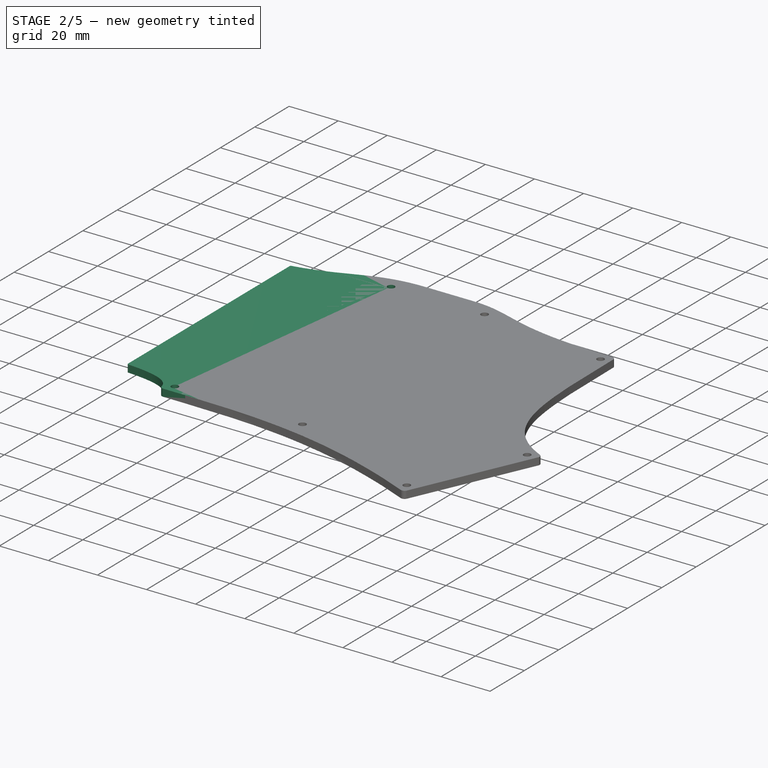
[diagram: stage 2 of 5 — iso view after this stage's code; geometry added in this stage tinted green]
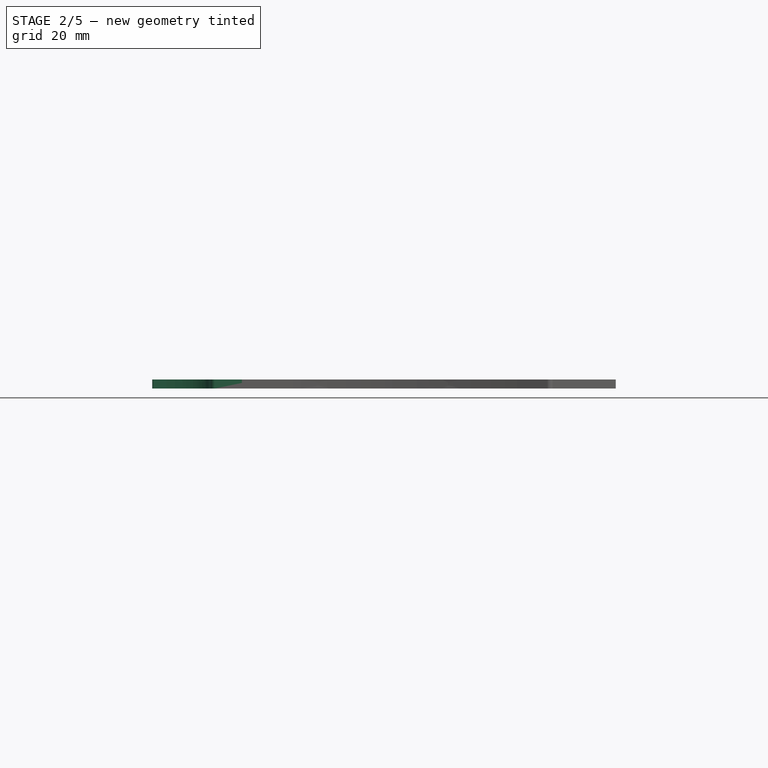
[diagram: stage 2 of 5 — front view after this stage's code; geometry added in this stage tinted green]
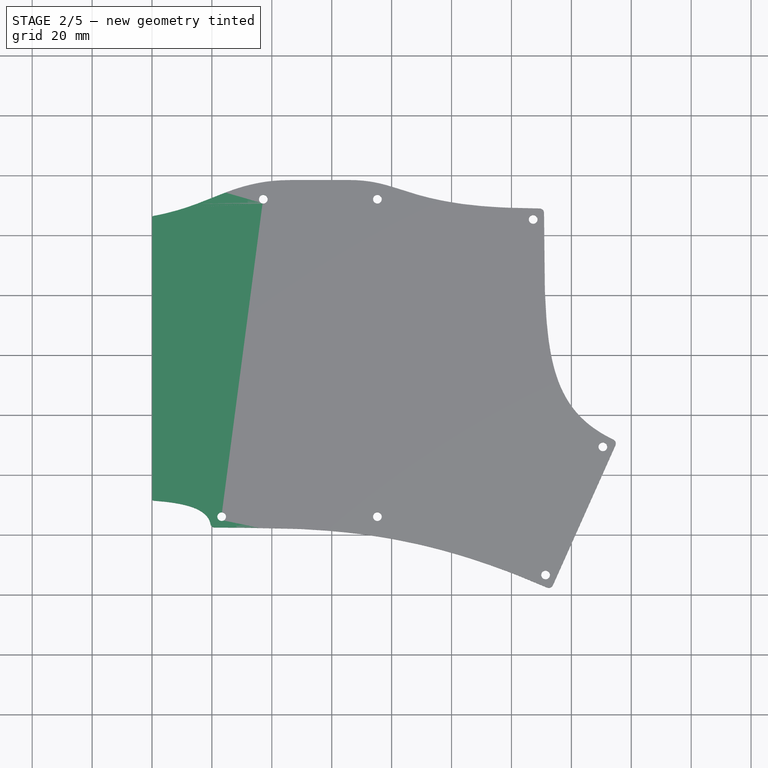
[diagram: stage 2 of 5 — top view after this stage's code; geometry added in this stage tinted green]
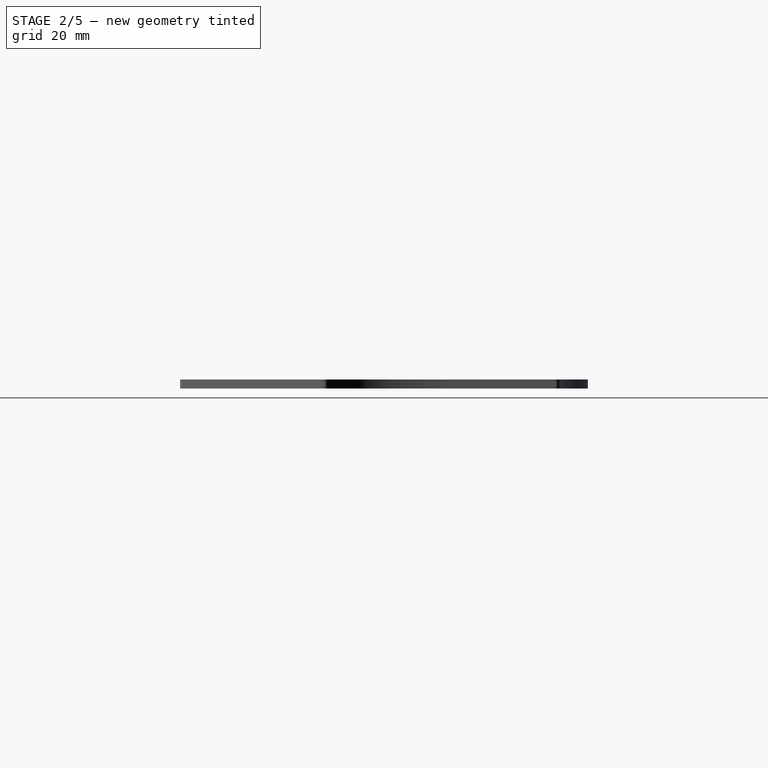
[diagram: stage 2 of 5 — right view after this stage's code; geometry added in this stage tinted green]
FEATURE [Sketcher::SketchObject] Sketch030  label="outer border005"
  FullyConstrained = false
  expr: Constraints[65] = 180 - 12.08569093596732
  expr: Constraints[22] = Spreadsheet.grid
  expr: Constraints[130] = Spreadsheet.brim
  expr: Constraints[26] = Spreadsheet.grid / 2
  expr: Constraints[152] = Spreadsheet.brim
  expr: Constraints[139] = Spreadsheet.brim
  expr: Constraints[135] = Spreadsheet.brim
  expr: Constraints[165] = (Spreadsheet.overhang_offset - Spreadsheet.overhang) / 3
  expr: Constraints[146] = Spreadsheet.brim
  expr: Constraints[155] = Spreadsheet.brim
  expr: Constraints[143] = Spreadsheet.brim
  expr: Constraints[121] = Spreadsheet.brim
  expr: Constraints[158] = <<Constants>>.grid * 1.5 + <<Constants>>.brim
  expr: Constraints[52] = Spreadsheet.grid
  expr: Constraints[25] = Spreadsheet.grid / 4
  expr: Constraints[144] = Spreadsheet.brim
  expr: Constraints[51] = Spreadsheet.grid * 1.5
  expr: Constraints[28] = Spreadsheet.grid * 2
  expr: Constraints[66] = Spreadsheet.grid - 14.60669124913411
  expr: Constraints[153] = Spreadsheet.grid * 2
  expr: Constraints[53] = Spreadsheet.grid * 2
  expr: Constraints[142] = Spreadsheet.brim
  expr: Constraints[136] = Spreadsheet.brim
  expr: Constraints[133] = Spreadsheet.brim
  expr: Constraints[137] = Spreadsheet.brim
  expr: Constraints[5] = (Spreadsheet.mod_units + 1) * Spreadsheet.grid
  expr: Constraints[2] = 4 * Spreadsheet.grid
  expr: Constraints[134] = Spreadsheet.brim
  expr: Constraints[159] = Spreadsheet.grid
  expr: Constraints[119] = Spreadsheet.brim
  expr: Constraints[61] = 78°
  sketch-geometry (77):
    g0: LineSegment StartX=104.775 StartY=-9.525 StartZ=0 EndX=103.851 EndY=-13.8712 EndZ=0
    g1: LineSegment StartX=0 StartY=0 StartZ=0 EndX=0 EndY=76.2 EndZ=0
    g2: LineSegment StartX=0 StartY=76.2 StartZ=0 EndX=47.625 EndY=76.2 EndZ=0
    g3: LineSegment StartX=47.625 StartY=76.2 StartZ=0 EndX=47.625 EndY=85.725 EndZ=0
    g4: LineSegment StartX=47.625 StartY=85.725 StartZ=0 EndX=66.675 EndY=85.725 EndZ=0
    g5: LineSegment StartX=66.675 StartY=85.725 StartZ=0 EndX=66.675 EndY=90.4875 EndZ=0
    g6: LineSegment StartX=66.675 StartY=90.4875 StartZ=0 EndX=85.725 EndY=90.4875 EndZ=0
    g7: LineSegment StartX=85.725 StartY=90.4875 StartZ=0 EndX=85.725 EndY=85.725 EndZ=0
    g8: LineSegment StartX=85.725 StartY=85.725 StartZ=0 EndX=104.775 EndY=85.725 EndZ=0
    g9: LineSegment StartX=104.775 StartY=85.725 StartZ=0 EndX=104.775 EndY=80.9625 EndZ=0
    g10: LineSegment StartX=104.775 StartY=80.9625 StartZ=0 EndX=142.875 EndY=80.9625 EndZ=0
    g11: LineSegment StartX=142.875 StartY=80.9625 StartZ=0 EndX=142.875 EndY=16.9712 EndZ=0
    g12: LineSegment StartX=0 StartY=0 StartZ=0 EndX=47.625 EndY=0 EndZ=0
    g13: LineSegment StartX=47.625 StartY=0 StartZ=0 EndX=47.625 EndY=-9.525 EndZ=0
    g14: LineSegment StartX=47.625 StartY=-9.525 StartZ=0 EndX=66.675 EndY=-9.525 EndZ=0
    g15: LineSegment StartX=66.675 StartY=-9.525 StartZ=0 EndX=66.675 EndY=-4.7625 EndZ=0
    g16: LineSegment StartX=66.675 StartY=-4.7625 StartZ=0 EndX=85.725 EndY=-4.7625 EndZ=0
    g17: LineSegment StartX=85.725 StartY=-4.7625 StartZ=0 EndX=85.725 EndY=-9.525 EndZ=0
    g18: LineSegment StartX=164.742 StartY=7.19623 StartZ=0 EndX=149.193 EndY=-27.5866 EndZ=0
    g19: LineSegment StartX=149.193 StartY=-27.5866 StartZ=0 EndX=131.802 EndY=-19.8123 EndZ=0
    g20: LineSegment StartX=131.802 StartY=-19.8123 StartZ=0 EndX=103.851 EndY=-13.8712 EndZ=0
    g21: LineSegment StartX=164.742 StartY=7.19623 StartZ=0 EndX=142.875 EndY=16.9712 EndZ=0
    g22: LineSegment StartX=85.725 StartY=-9.525 StartZ=0 EndX=104.775 EndY=-9.525 EndZ=0
    g23: LineSegment StartX=-8 StartY=84.2 StartZ=0 EndX=-8 EndY=-8 EndZ=0
    g24: LineSegment StartX=153.232 StartY=-38.1549 StartZ=0 EndX=175.31 EndY=11.2349 EndZ=0
    g25: LineSegment StartX=85.725 StartY=98.4875 StartZ=0 EndX=66.675 EndY=98.4875 EndZ=0
    g26-g29: Circle x4 (B-spline internal-alignment scaffolding for g30; pole/knot coordinates omitted)
    g30: BSplineCurve PolesCount=4 KnotsCount=2 Degree=3 IsPeriodic=0
    g31: GeomPoint X=-8 Y=84.2 Z=0
    g32: GeomPoint X=66.675 Y=98.4875 Z=0
    g33-g36: Circle x4 (B-spline internal-alignment scaffolding for g37; pole/knot coordinates omitted)
    g37: BSplineCurve PolesCount=4 KnotsCount=2 Degree=3 IsPeriodic=0
    g38: GeomPoint X=85.725 Y=98.4875 Z=0
    g39: GeomPoint X=150.875 Y=88.9625 Z=0
    g40-g43: Circle x4 (B-spline internal-alignment scaffolding for g44; pole/knot coordinates omitted)
    g44: BSplineCurve PolesCount=4 KnotsCount=2 Degree=3 IsPeriodic=0
    g45: GeomPoint X=150.875 Y=88.9625 Z=0
    g46: GeomPoint X=175.31 Y=11.2349 Z=0
    g47-g50: Circle x4 (B-spline internal-alignment scaffolding for g51; pole/knot coordinates omitted)
    g51: BSplineCurve PolesCount=4 KnotsCount=2 Degree=3 IsPeriodic=0
    g52: GeomPoint X=153.232 Y=-38.1549 Z=0
    g53: GeomPoint X=39.625 Y=-17.525 Z=0
    g54-g57: Circle x4 (B-spline internal-alignment scaffolding for g58; pole/knot coordinates omitted)
    g58: BSplineCurve PolesCount=4 KnotsCount=2 Degree=3 IsPeriodic=0
    g59: GeomPoint X=39.625 Y=-17.525 Z=0
    g60: GeomPoint X=-8 Y=-8 Z=0
    g61: LineSegment StartX=107.082 StartY=-17.525 StartZ=0 EndX=153.232 EndY=-38.1549 EndZ=0
    g62: LineSegment StartX=20.0667 StartY=-8.52148 StartZ=0 EndX=20.0667 EndY=86.4273 EndZ=0
    g63-g66: Circle x4 (B-spline internal-alignment scaffolding for g67; pole/knot coordinates omitted)
    g67: BSplineCurve PolesCount=4 KnotsCount=2 Degree=3 IsPeriodic=0
    g68: GeomPoint X=66.675 Y=98.4875 Z=0
    g69: GeomPoint X=20.0667 Y=86.4273 Z=0
    g70-g73: Circle x4 (B-spline internal-alignment scaffolding for g74; pole/knot coordinates omitted)
    g74: BSplineCurve PolesCount=4 KnotsCount=2 Degree=3 IsPeriodic=0
    g75: GeomPoint X=20.0667 Y=-8.52148 Z=0
    g76: GeomPoint X=39.625 Y=-17.525 Z=0
  constraints (167):
    c: Coincident(g1,g-1)
    c: Vertical(g1)
    c: DistanceY(g1,g1) = 76.2
    c: Horizontal(g2)
    c: Coincident(g2,g1)
    c: DistanceX(g2,g2) = 47.625
    c: Coincident(g3,g4)
    c: Coincident(g4,g5)
    c: Coincident(g5,g6)
    c: Coincident(g6,g7)
    c: Coincident(g8,g9)
    c: Coincident(g9,g10)
    c: Coincident(g10,g11)
    c: Vertical(g3)
    c: Vertical(g5)
    c: Vertical(g7)
    c: Vertical(g9)
    c: Vertical(g11)
    c: Horizontal(g4)
    c: Horizontal(g6)
    c: Horizontal(g8)
    c: Horizontal(g10)
    c: DistanceX(g6,g6) = 19.05
    c: Equal(g4,g8)
    c: Equal(g8,g6)
    c: DistanceY(g5,g5) = 4.7625
    c: DistanceY(g3,g3) = 9.525
    c: Equal(g9,g7)
    c: DistanceX(g10,g10) = 38.1
    c: Coincident(g2,g3)
    c: Equal(g5,g7)
    c: Coincident(g12,g13)
    c: Coincident(g13,g14)
    c: Coincident(g14,g15)
    c: Coincident(g15,g16)
    c: Coincident(g16,g17)
    c: Equal(g12,g2)
    c: Horizontal(g12)
    c: Equal(g3,g13)
    c: Vertical(g13)
    c: Vertical(g15)
    c: Vertical(g17)
    c: Horizontal(g14)
    c: Horizontal(g16)
    c: Equal(g15,g17)
    c: Equal(g17,g5)
    c: Equal(g14,g4)
    c: Equal(g16,g6)
    c: Coincident(g1,g12)
    c: Coincident(g18,g19)
    c: Coincident(g19,g20)
    c: Distance(g20) = 28.575
    c: Distance(g19) = 19.05
    c: Distance(g18) = 38.1
    c: Perpendicular(g18,g19)
    c: Perpendicular(g21,g18)
    c: Coincident(g11,g21)
    c: Coincident(g17,g22)
    c: Equal(g22,g16)
    c: Horizontal(g22)
    c: Coincident(g22,g0)
    c: Angle(g22,g0) = 1.36136
    c: Coincident(g20,g0)
    c: Perpendicular(g20,g0)
    c: Coincident(g7,g8)
    c: Angle(g20,g19) = 2.93066
    c: Distance(g0) = 4.44331
    c: Coincident(g18,g21)
    c: Weight(g26) = 1
    c: Equal(g26,g27)
    c: Equal(g26,g28)
    c: Equal(g26,g29)
    c: InternalAlignment(g26-g29 -> g30) x4
    c: InternalAlignment(g31,g30)
    c: InternalAlignment(g32,g30)
    c: Weight(g33) = 1
    c: Equal(g33,g34)
    c: Equal(g33,g35)
    c: Equal(g33,g36)
    c: InternalAlignment(g33-g36 -> g37) x4
    c: InternalAlignment(g38,g37)
    c: InternalAlignment(g39,g37)
    c: Weight(g40) = 1
    c: Equal(g40,g41)
    c: Equal(g40,g42)
    c: Equal(g40,g43)
    c: InternalAlignment(g40-g43 -> g44) x4
    c: InternalAlignment(g45,g44)
    c: InternalAlignment(g46,g44)
    c: Coincident(g24,g44)
    c: Weight(g47) = 1
    c: Equal(g47,g48)
    c: Equal(g47,g49)
    c: Equal(g47,g50)
    c: InternalAlignment(g47-g50 -> g51) x4
    c: InternalAlignment(g52,g51)
    c: InternalAlignment(g53,g51)
    c: Weight(g54) = 1
    c: Equal(g54,g55)
    c: Equal(g54,g56)
    c: Equal(g54,g57)
    c: InternalAlignment(g54-g57 -> g58) x4
    c: InternalAlignment(g59,g58)
    c: InternalAlignment(g60,g58)
    c: DistanceX(g23,g1) = 8
    c: Coincident(g23,g30)
    c: DistanceY(g1,g23) = 8
    c: Horizontal(g27,g23)
    c: Horizontal(g25,g28)
    c: Horizontal(g34,g25)
    c: Coincident(g25,g37)
    c: Coincident(g25,g30)
    c: Vertical(g25,g5)
    c: Vertical(g6,g25)
    c: Horizontal(g25)
    c: DistanceY(g5,g25) = 8
    c: Horizontal(g35,g37)
    c: Coincident(g37,g44)
    c: DistanceX(g10,g37) = 8
    c: DistanceY(g10,g37) = 8
    c: Distance(g18,g24) = 8
    c: Distance(g24,g21) = 8
    c: Distance(g24,g18) = 8
    c: Coincident(g24,g51)
    c: Distance(g24,g19) = 8
    c: Horizontal(g49,g51)
    c: Coincident(g58,g51)
    c: DistanceY(g51,g13) = 8
    c: DistanceX(g51,g13) = 8
    c: DistanceX(g23,g-1) = 8
    c: Coincident(g23,g58)
    c: DistanceY(g23,g-1) = 8
    c: Horizontal(g56,g23)
    c: Vertical(g51,g55)
    c: Horizontal(g55,g23)
    c: Vertical(g42,g41)
    c: Vertical(g41,g37)
    c: Distance(g42,g21) = 8
    c: DistanceY(g41,g10) = 38.1
    c: Vertical(g27,g28)
    c: DistanceX(g27,g2) = 8
    c: Vertical(g35,g8)
    c: Vertical(g8,g34)
    c: DistanceX(g51,g49) = 36.575
    c: DistanceX(g56,g55) = 19.05
    c: Perpendicular(g61,g24)
    c: Coincident(g61,g24)
    c: Coincident(g61,g48)
    c: Horizontal(g48,g51)
    c: Vertical(g62)
    c: DistanceX(g23,g62) = 28.0667
    c: Weight(g63) = 1
    c: Equal(g63,g64)
    c: Equal(g63,g65)
    c: Equal(g63,g66)
    c: InternalAlignment(g63-g66 -> g67) x4
    c: InternalAlignment(g68,g67)
    c: InternalAlignment(g69,g67)
    c: Coincident(g62,g67)
    c: Weight(g70) = 1
    c: Equal(g70,g71)
    c: Equal(g70,g72)
    c: Equal(g70,g73)
    c: InternalAlignment(g70-g73 -> g74) x4
    c: InternalAlignment(g75,g74)
    c: InternalAlignment(g76,g74)
    c: Coincident(g62,g74)
FEATURE [PartDesign::Pad] Pad008
  Direction = (1,1,1)
  Length = 3
  Length2 = 100
  Profile = -> Sketch030
  Type = 0
  expr: Length = Spreadsheet.thickness
FEATURE [Sketcher::SketchObject] Sketch031  label="case_inside006"
  FullyConstrained = true
  MapMode = 5
  Placement = pos=(0,0,0) rot=(1,0,0;3.14159rad)
  expr: Constraints[53] = 0.5 * <<Constants>>.grid
  expr: Constraints[62] = <<Constants>>.grid * 1.5
  expr: Constraints[66] = Spreadsheet.grid - 14.60669124913411
  expr: Constraints[67] = 180 - 12.08569093596732
  expr: Constraints[46] = <<Constants>>.grid
  expr: Constraints[56] = <<Constants>>.grid / 4
  expr: Constraints[65] = 4 * <<Constants>>.grid
  expr: Constraints[88] = <<Constants>>.clearance
  expr: Constraints[92] = <<Constants>>.clearance
  expr: Constraints[91] = <<Constants>>.clearance
  expr: Constraints[94] = <<Constants>>.clearance
  expr: Constraints[95] = <<Constants>>.clearance
  expr: Constraints[89] = <<Constants>>.clearance
  expr: Constraints[96] = <<Constants>>.clearance
  expr: Constraints[63] = <<Constants>>.grid * 2
  expr: Constraints[45] = 2.5 * <<Constants>>.grid
  expr: Constraints[87] = <<Constants>>.clearance
  expr: Constraints[90] = <<Constants>>.clearance
  expr: Constraints[93] = <<Constants>>.clearance
  sketch-geometry (34):
    g0: LineSegment StartX=0 StartY=0 StartZ=0 EndX=0 EndY=-76.2 EndZ=0
    g1: LineSegment StartX=0 StartY=-76.2 StartZ=0 EndX=47.625 EndY=-76.2 EndZ=0
    g2: LineSegment StartX=47.625 StartY=-76.2 StartZ=0 EndX=47.625 EndY=-85.725 EndZ=0
    g3: LineSegment StartX=47.625 StartY=-85.725 StartZ=0 EndX=66.675 EndY=-85.725 EndZ=0
    g4: LineSegment StartX=66.675 StartY=-85.725 StartZ=0 EndX=66.675 EndY=-90.4875 EndZ=0
    g5: LineSegment StartX=66.675 StartY=-90.4875 StartZ=0 EndX=85.725 EndY=-90.4875 EndZ=0
    g6: LineSegment StartX=85.725 StartY=-90.4875 StartZ=0 EndX=85.725 EndY=-85.725 EndZ=0
    g7: LineSegment StartX=85.725 StartY=-85.725 StartZ=0 EndX=104.775 EndY=-85.725 EndZ=0
    g8: LineSegment StartX=104.775 StartY=-85.725 StartZ=0 EndX=104.775 EndY=-80.9625 EndZ=0
    g9: LineSegment StartX=104.775 StartY=-80.9625 StartZ=0 EndX=142.875 EndY=-80.9625 EndZ=0
    g10: LineSegment StartX=142.875 StartY=-80.9625 StartZ=0 EndX=142.875 EndY=-16.9712 EndZ=0
    g11: LineSegment StartX=142.875 StartY=-16.9712 StartZ=0 EndX=164.742 EndY=-7.19623 EndZ=0
    g12: LineSegment StartX=164.742 StartY=-7.19623 StartZ=0 EndX=149.193 EndY=27.5866 EndZ=0
    g13: LineSegment StartX=149.193 StartY=27.5866 StartZ=0 EndX=131.802 EndY=19.8123 EndZ=0
    g14: LineSegment StartX=131.802 StartY=19.8123 StartZ=0 EndX=103.851 EndY=13.8712 EndZ=0
    g15: LineSegment StartX=103.851 StartY=13.8712 StartZ=0 EndX=104.775 EndY=9.525 EndZ=0
    g16: LineSegment StartX=104.775 StartY=9.525 StartZ=0 EndX=85.725 EndY=9.525 EndZ=0
    g17: LineSegment StartX=85.725 StartY=9.525 StartZ=0 EndX=85.725 EndY=4.7625 EndZ=0
    g18: LineSegment StartX=85.725 StartY=4.7625 StartZ=0 EndX=66.675 EndY=4.7625 EndZ=0
    g19: LineSegment StartX=66.675 StartY=4.7625 StartZ=0 EndX=66.675 EndY=9.525 EndZ=0
    g20: LineSegment StartX=66.675 StartY=9.525 StartZ=0 EndX=47.625 EndY=9.525 EndZ=0
    g21: LineSegment StartX=47.625 StartY=9.525 StartZ=0 EndX=47.625 EndY=0 EndZ=0
    g22: LineSegment StartX=47.625 StartY=0 StartZ=0 EndX=0 EndY=0 EndZ=0
    g23: LineSegment StartX=85.725 StartY=-86.475 StartZ=0 EndX=105.525 EndY=-86.475 EndZ=0
    g24: LineSegment StartX=105.525 StartY=-86.475 StartZ=0 EndX=105.525 EndY=-81.7125 EndZ=0
    g25: LineSegment StartX=105.525 StartY=-81.7125 StartZ=0 EndX=143.625 EndY=-81.7125 EndZ=0
    g26: LineSegment StartX=143.625 StartY=-81.7125 StartZ=0 EndX=143.625 EndY=-17.4575 EndZ=0
    g27: LineSegment StartX=143.625 StartY=-17.4575 StartZ=0 EndX=165.733 EndY=-7.57485 EndZ=0
    g28: LineSegment StartX=165.733 StartY=-7.57485 StartZ=0 EndX=149.572 EndY=28.5774 EndZ=0
    g29: LineSegment StartX=149.572 StartY=28.5774 StartZ=0 EndX=131.568 EndY=20.5294 EndZ=0
    g30: LineSegment StartX=131.568 StartY=20.5294 StartZ=0 EndX=102.962 EndY=14.4489 EndZ=0
    g31: LineSegment StartX=102.962 StartY=14.4489 StartZ=0 EndX=103.849 EndY=10.275 EndZ=0
    g32: LineSegment StartX=103.849 StartY=10.275 StartZ=0 EndX=85.725 EndY=10.275 EndZ=0
    g33: LineSegment StartX=85.725 StartY=-86.475 StartZ=0 EndX=85.725 EndY=10.275 EndZ=0
  constraints (101):
    c: Vertical(g0)
    c: Coincident(g0,g1)
    c: Horizontal(g1)
    c: Coincident(g1,g2)
    c: Vertical(g2)
    c: Coincident(g2,g3)
    c: Horizontal(g3)
    c: Coincident(g3,g4)
    c: Coincident(g4,g5)
    c: Horizontal(g5)
    c: Coincident(g5,g6)
    c: Vertical(g6)
    c: Coincident(g6,g7)
    c: Horizontal(g7)
    c: Coincident(g7,g8)
    c: Coincident(g8,g9)
    c: Horizontal(g9)
    c: Coincident(g9,g10)
    c: Vertical(g10)
    c: Coincident(g10,g11)
    c: Coincident(g11,g12)
    c: Coincident(g12,g13)
    c: Coincident(g13,g14)
    c: Coincident(g14,g15)
    c: Coincident(g15,g16)
    c: Horizontal(g16)
    c: Coincident(g16,g17)
    c: Coincident(g17,g18)
    c: Horizontal(g18)
    c: Coincident(g18,g19)
    c: Coincident(g19,g20)
    c: Horizontal(g20)
    c: Coincident(g20,g21)
    c: Vertical(g21)
    c: Coincident(g21,g22)
    c: Horizontal(g22)
    c: Coincident(g0,g22)
    c: Coincident(g0,g-1)
    c: Vertical(g8)
    c: Vertical(g4)
    c: Vertical(g19)
    c: Vertical(g17)
    c: Perpendicular(g15,g14)
    c: Perpendicular(g12,g13)
    c: Perpendicular(g11,g12)
    c: DistanceX(g22,g22) = 47.625
    c: Distance(g20) = 19.05
    c: Equal(g16,g18)
    c: Equal(g18,g20)
    c: Equal(g20,g3)
    c: Equal(g3,g5)
    c: Equal(g5,g7)
    c: Equal(g20,g13)
    c: Distance(g2) = 9.525
    c: Equal(g2,g21)
    c: Equal(g1,g22)
    c: Distance(g4) = 4.7625
    c: Equal(g4,g6)
    c: Equal(g6,g8)
    c: Equal(g8,g19)
    c: Equal(g19,g17)
    c: Angle(g15,g16) = 1.36136
    c: Distance(g14) = 28.575
    c: Distance(g9) = 38.1
    c: Equal(g12,g9)
    c: Distance(g0) = 76.2
    c: Distance(g15) = 4.44331
    c: Angle(g13,g14) = 2.93066
    c: Coincident(g23,g24)
    c: Coincident(g24,g25)
    c: Coincident(g25,g26)
    c: Coincident(g26,g27)
    c: Coincident(g27,g28)
    c: Coincident(g28,g29)
    c: Coincident(g29,g30)
    c: Coincident(g30,g31)
    c: Coincident(g31,g32)
    c: Parallel(g16,g32)
    c: Parallel(g15,g31)
    c: Parallel(g14,g30)
    c: Parallel(g13,g29)
    c: Parallel(g12,g28)
    c: Parallel(g27,g11)
    c: Parallel(g26,g10)
    c: Parallel(g25,g9)
    c: Parallel(g24,g8)
    c: Parallel(g23,g7)
    c: Distance(g32,g16) = 0.75
    c: Distance(g31,g15) = 0.75
    c: Distance(g30,g14) = 0.75
    c: Distance(g29,g13) = 0.75
    c: Distance(g28,g12) = 0.75
    c: Distance(g27,g11) = 0.75
    c: Distance(g26,g10) = 0.75
    c: Distance(g25,g9) = 0.75
    c: Distance(g24,g8) = 0.75
    c: Distance(g23,g7) = 0.75
    c: Coincident(g33,g23)
    c: Coincident(g33,g32)
    c: Vertical(g33)
    c: PointOnObject(g23,g6)
FEATURE [PartDesign::Pocket] Pocket011
  BaseFeature = -> Pad008
  Length = 5
  Length2 = 100
  Profile = -> Sketch031
  Type = 0
FEATURE [Sketcher::SketchObject] Sketch033  label="case_inside007"
  FullyConstrained = true
  MapMode = 5
  Placement = pos=(0,0,0) rot=(1,0,0;3.14159rad)
  expr: Constraints[93] = <<Constants>>.clearance
  expr: Constraints[90] = <<Constants>>.clearance
  expr: Constraints[87] = <<Constants>>.clearance
  expr: Constraints[63] = <<Constants>>.grid * 2
  expr: Constraints[45] = 2.5 * <<Constants>>.grid
  expr: Constraints[96] = <<Constants>>.clearance
  expr: Constraints[95] = <<Constants>>.clearance
  expr: Constraints[89] = <<Constants>>.clearance
  expr: Constraints[94] = <<Constants>>.clearance
  expr: Constraints[92] = <<Constants>>.clearance
  expr: Constraints[91] = <<Constants>>.clearance
  expr: Constraints[88] = <<Constants>>.clearance
  expr: Constraints[65] = 4 * <<Constants>>.grid
  expr: Constraints[56] = <<Constants>>.grid / 4
  expr: Constraints[67] = 180 - 12.08569093596732
  expr: Constraints[46] = <<Constants>>.grid
  expr: Constraints[66] = Spreadsheet.grid - 14.60669124913411
  expr: Constraints[62] = <<Constants>>.grid * 1.5
  expr: Constraints[53] = 0.5 * <<Constants>>.grid
  sketch-geometry (34):
    g0: LineSegment StartX=0 StartY=0 StartZ=0 EndX=0 EndY=-76.2 EndZ=0
    g1: LineSegment StartX=0 StartY=-76.2 StartZ=0 EndX=47.625 EndY=-76.2 EndZ=0
    g2: LineSegment StartX=47.625 StartY=-76.2 StartZ=0 EndX=47.625 EndY=-85.725 EndZ=0
    g3: LineSegment StartX=47.625 StartY=-85.725 StartZ=0 EndX=66.675 EndY=-85.725 EndZ=0
    g4: LineSegment StartX=66.675 StartY=-85.725 StartZ=0 EndX=66.675 EndY=-90.4875 EndZ=0
    g5: LineSegment StartX=66.675 StartY=-90.4875 StartZ=0 EndX=85.725 EndY=-90.4875 EndZ=0
    g6: LineSegment StartX=85.725 StartY=-90.4875 StartZ=0 EndX=85.725 EndY=-85.725 EndZ=0
    g7: LineSegment StartX=85.725 StartY=-85.725 StartZ=0 EndX=104.775 EndY=-85.725 EndZ=0
    g8: LineSegment StartX=104.775 StartY=-85.725 StartZ=0 EndX=104.775 EndY=-80.9625 EndZ=0
    g9: LineSegment StartX=104.775 StartY=-80.9625 StartZ=0 EndX=142.875 EndY=-80.9625 EndZ=0
    g10: LineSegment StartX=142.875 StartY=-80.9625 StartZ=0 EndX=142.875 EndY=-16.9712 EndZ=0
    g11: LineSegment StartX=142.875 StartY=-16.9712 StartZ=0 EndX=164.742 EndY=-7.19623 EndZ=0
    g12: LineSegment StartX=164.742 StartY=-7.19623 StartZ=0 EndX=149.193 EndY=27.5866 EndZ=0
    g13: LineSegment StartX=149.193 StartY=27.5866 StartZ=0 EndX=131.802 EndY=19.8123 EndZ=0
    g14: LineSegment StartX=131.802 StartY=19.8123 StartZ=0 EndX=103.851 EndY=13.8712 EndZ=0
    g15: LineSegment StartX=103.851 StartY=13.8712 StartZ=0 EndX=104.775 EndY=9.525 EndZ=0
    g16: LineSegment StartX=104.775 StartY=9.525 StartZ=0 EndX=85.725 EndY=9.525 EndZ=0
    g17: LineSegment StartX=85.725 StartY=9.525 StartZ=0 EndX=85.725 EndY=4.7625 EndZ=0
    g18: LineSegment StartX=85.725 StartY=4.7625 StartZ=0 EndX=66.675 EndY=4.7625 EndZ=0
    g19: LineSegment StartX=66.675 StartY=4.7625 StartZ=0 EndX=66.675 EndY=9.525 EndZ=0
    g20: LineSegment StartX=66.675 StartY=9.525 StartZ=0 EndX=47.625 EndY=9.525 EndZ=0
    g21: LineSegment StartX=47.625 StartY=9.525 StartZ=0 EndX=47.625 EndY=0 EndZ=0
    g22: LineSegment StartX=47.625 StartY=0 StartZ=0 EndX=0 EndY=0 EndZ=0
    g23: LineSegment StartX=85.725 StartY=-86.475 StartZ=0 EndX=105.525 EndY=-86.475 EndZ=0
    g24: LineSegment StartX=105.525 StartY=-86.475 StartZ=0 EndX=105.525 EndY=-81.7125 EndZ=0
    g25: LineSegment StartX=105.525 StartY=-81.7125 StartZ=0 EndX=143.625 EndY=-81.7125 EndZ=0
    g26: LineSegment StartX=143.625 StartY=-81.7125 StartZ=0 EndX=143.625 EndY=-17.4575 EndZ=0
    g27: LineSegment StartX=143.625 StartY=-17.4575 StartZ=0 EndX=165.733 EndY=-7.57485 EndZ=0
    g28: LineSegment StartX=165.733 StartY=-7.57485 StartZ=0 EndX=149.572 EndY=28.5774 EndZ=0
    g29: LineSegment StartX=149.572 StartY=28.5774 StartZ=0 EndX=131.568 EndY=20.5294 EndZ=0
    g30: LineSegment StartX=131.568 StartY=20.5294 StartZ=0 EndX=102.962 EndY=14.4489 EndZ=0
    g31: LineSegment StartX=102.962 StartY=14.4489 StartZ=0 EndX=103.849 EndY=10.275 EndZ=0
    g32: LineSegment StartX=103.849 StartY=10.275 StartZ=0 EndX=85.725 EndY=10.275 EndZ=0
    g33: LineSegment StartX=85.725 StartY=-86.475 StartZ=0 EndX=85.725 EndY=10.275 EndZ=0
  constraints (101):
    c: Vertical(g0)
    c: Coincident(g0,g1)
    c: Horizontal(g1)
    c: Coincident(g1,g2)
    c: Vertical(g2)
    c: Coincident(g2,g3)
    c: Horizontal(g3)
    c: Coincident(g3,g4)
    c: Coincident(g4,g5)
    c: Horizontal(g5)
    c: Coincident(g5,g6)
    c: Vertical(g6)
    c: Coincident(g6,g7)
    c: Horizontal(g7)
    c: Coincident(g7,g8)
    c: Coincident(g8,g9)
    c: Horizontal(g9)
    c: Coincident(g9,g10)
    c: Vertical(g10)
    c: Coincident(g10,g11)
    c: Coincident(g11,g12)
    c: Coincident(g12,g13)
    c: Coincident(g13,g14)
    c: Coincident(g14,g15)
    c: Coincident(g15,g16)
    c: Horizontal(g16)
    c: Coincident(g16,g17)
    c: Coincident(g17,g18)
    c: Horizontal(g18)
    c: Coincident(g18,g19)
    c: Coincident(g19,g20)
    c: Horizontal(g20)
    c: Coincident(g20,g21)
    c: Vertical(g21)
    c: Coincident(g21,g22)
    c: Horizontal(g22)
    c: Coincident(g0,g22)
    c: Coincident(g0,g-1)
    c: Vertical(g8)
    c: Vertical(g4)
    c: Vertical(g19)
    c: Vertical(g17)
    c: Perpendicular(g15,g14)
    c: Perpendicular(g12,g13)
    c: Perpendicular(g11,g12)
    c: DistanceX(g22,g22) = 47.625
    c: Distance(g20) = 19.05
    c: Equal(g16,g18)
    c: Equal(g18,g20)
    c: Equal(g20,g3)
    c: Equal(g3,g5)
    c: Equal(g5,g7)
    c: Equal(g20,g13)
    c: Distance(g2) = 9.525
    c: Equal(g2,g21)
    c: Equal(g1,g22)
    c: Distance(g4) = 4.7625
    c: Equal(g4,g6)
    c: Equal(g6,g8)
    c: Equal(g8,g19)
    c: Equal(g19,g17)
    c: Angle(g15,g16) = 1.36136
    c: Distance(g14) = 28.575
    c: Distance(g9) = 38.1
    c: Equal(g12,g9)
    c: Distance(g0) = 76.2
    c: Distance(g15) = 4.44331
    c: Angle(g13,g14) = 2.93066
    c: Coincident(g23,g24)
    c: Coincident(g24,g25)
    c: Coincident(g25,g26)
    c: Coincident(g26,g27)
    c: Coincident(g27,g28)
    c: Coincident(g28,g29)
    c: Coincident(g29,g30)
    c: Coincident(g30,g31)
    c: Coincident(g31,g32)
    c: Parallel(g16,g32)
    c: Parallel(g15,g31)
    c: Parallel(g14,g30)
    c: Parallel(g13,g29)
    c: Parallel(g12,g28)
    c: Parallel(g27,g11)
    c: Parallel(g26,g10)
    c: Parallel(g25,g9)
    c: Parallel(g24,g8)
    c: Parallel(g23,g7)
    c: Distance(g32,g16) = 0.75
    c: Distance(g31,g15) = 0.75
    c: Distance(g30,g14) = 0.75
    c: Distance(g29,g13) = 0.75
    c: Distance(g28,g12) = 0.75
    c: Distance(g27,g11) = 0.75
    c: Distance(g26,g10) = 0.75
    c: Distance(g25,g9) = 0.75
    c: Distance(g24,g8) = 0.75
    c: Distance(g23,g7) = 0.75
    c: Coincident(g33,g23)
    c: Coincident(g33,g32)
    c: Vertical(g33)
    c: PointOnObject(g23,g6)
FEATURE [PartDesign::Pocket] Pocket012
  BaseFeature = -> Pad009
  Length = 5
  Length2 = 100
  Profile = -> Sketch033
  Type = 0
FEATURE [PartDesign::Pocket] Pocket016
  BaseFeature = -> Pocket012
  Length = 22
  Length2 = 100
  Profile = -> Sketch044
  Reversed = true
  Type = 0
FEATURE [PartDesign::Pocket] Pocket017
  BaseFeature = -> Pocket011
  Length = 22
  Length2 = 100
  Profile = -> Sketch043
  Reversed = true
  Type = 0
FEATURE [Sketcher::SketchObject] Sketch050  label="ports002"
  FullyConstrained = false
  MapMode = 5
  Support = -> [XY_Plane004]
  expr: Constraints[41] = 4 * Spreadsheet.grid
  expr: Constraints[48] = Spreadsheet.grid
  expr: Constraints[57] = Spreadsheet.grid / 4
  expr: Constraints[40] = Spreadsheet.grid * 2.5
  expr: Constraints[65] = Spreadsheet.grid * 1.5
  expr: Constraints[64] = Spreadsheet.grid - 14.60669124913411
  expr: Constraints[63] = 180 - 12.08569093596732
  expr: Constraints[49] = Spreadsheet.grid / 2
  expr: Constraints[59] = Spreadsheet.grid * 2
  expr: Constraints[66] = Spreadsheet.grid
  expr: Constraints[83] = Spreadsheet.grid - 1
  sketch-geometry (36):
    g0: LineSegment StartX=0 StartY=0 StartZ=0 EndX=0 EndY=76.2 EndZ=0
    g1: LineSegment StartX=0 StartY=76.2 StartZ=0 EndX=47.625 EndY=76.2 EndZ=0
    g2: LineSegment StartX=47.625 StartY=76.2 StartZ=0 EndX=47.625 EndY=85.725 EndZ=0
    g3: LineSegment StartX=47.625 StartY=85.725 StartZ=0 EndX=66.675 EndY=85.725 EndZ=0
    g4: LineSegment StartX=66.675 StartY=85.725 StartZ=0 EndX=66.675 EndY=90.4875 EndZ=0
    g5: LineSegment StartX=66.675 StartY=90.4875 StartZ=0 EndX=85.725 EndY=90.4875 EndZ=0
    g6: LineSegment StartX=85.725 StartY=90.4875 StartZ=0 EndX=85.725 EndY=85.725 EndZ=0
    g7: LineSegment StartX=85.725 StartY=85.725 StartZ=0 EndX=104.775 EndY=85.725 EndZ=0
    g8: LineSegment StartX=104.775 StartY=85.725 StartZ=0 EndX=104.775 EndY=80.9625 EndZ=0
    g9: LineSegment StartX=104.775 StartY=80.9625 StartZ=0 EndX=142.875 EndY=80.9625 EndZ=0
    g10: LineSegment StartX=142.875 StartY=80.9625 StartZ=0 EndX=142.875 EndY=16.9712 EndZ=0
    g11: LineSegment StartX=142.875 StartY=16.9712 StartZ=0 EndX=164.742 EndY=7.19623 EndZ=0
    g12: LineSegment StartX=164.742 StartY=7.19623 StartZ=0 EndX=149.193 EndY=-27.5866 EndZ=0
    g13: LineSegment StartX=149.193 StartY=-27.5866 StartZ=0 EndX=131.802 EndY=-19.8123 EndZ=0
    g14: LineSegment StartX=131.802 StartY=-19.8123 StartZ=0 EndX=103.851 EndY=-13.8712 EndZ=0
    g15: LineSegment StartX=103.851 StartY=-13.8712 StartZ=0 EndX=104.775 EndY=-9.525 EndZ=0
    g16: LineSegment StartX=104.775 StartY=-9.525 StartZ=0 EndX=85.725 EndY=-9.525 EndZ=0
    g17: LineSegment StartX=85.725 StartY=-9.525 StartZ=0 EndX=85.725 EndY=-4.7625 EndZ=0
    g18: LineSegment StartX=85.725 StartY=-4.7625 StartZ=0 EndX=66.675 EndY=-4.7625 EndZ=0
    g19: LineSegment StartX=66.675 StartY=-4.7625 StartZ=0 EndX=66.675 EndY=-9.525 EndZ=0
    g20: LineSegment StartX=66.675 StartY=-9.525 StartZ=0 EndX=47.625 EndY=-9.525 EndZ=0
    g21: LineSegment StartX=47.625 StartY=-9.525 StartZ=0 EndX=47.625 EndY=0 EndZ=0
    g22: LineSegment StartX=47.625 StartY=0 StartZ=0 EndX=0 EndY=0 EndZ=0
    g23: LineSegment StartX=123.825 StartY=80.9625 StartZ=0 EndX=123.825 EndY=92.9625 EndZ=0
    g24: LineSegment StartX=118.825 StartY=80.9625 StartZ=0 EndX=116.825 EndY=92.9625 EndZ=0
    g25: LineSegment StartX=116.825 StartY=92.9625 StartZ=0 EndX=130.825 EndY=92.9625 EndZ=0
    g26: LineSegment StartX=130.825 StartY=92.9625 StartZ=0 EndX=128.825 EndY=80.9625 EndZ=0
    g27: LineSegment StartX=118.825 StartY=80.9625 StartZ=0 EndX=128.825 EndY=80.9625 EndZ=0
    g28: LineSegment StartX=142.875 StartY=62.9125 StartZ=0 EndX=154.875 EndY=62.9125 EndZ=0
    g29: LineSegment StartX=142.875 StartY=69.9125 StartZ=0 EndX=142.875 EndY=55.9125 EndZ=0
    g30: LineSegment StartX=142.875 StartY=55.9125 StartZ=0 EndX=154.875 EndY=54.9125 EndZ=0
    g31: LineSegment StartX=154.875 StartY=54.9125 StartZ=0 EndX=154.875 EndY=70.9125 EndZ=0
    g32: LineSegment StartX=154.875 StartY=70.9125 StartZ=0 EndX=142.875 EndY=69.9125 EndZ=0
    g33: LineSegment StartX=118.825 StartY=80.9625 StartZ=0 EndX=142.875 EndY=55.9125 EndZ=0
    g34: LineSegment StartX=154.875 StartY=54.9125 StartZ=0 EndX=166.908 EndY=98.3465 EndZ=0
    g35: LineSegment StartX=166.908 StartY=98.3465 StartZ=0 EndX=116.825 EndY=92.9625 EndZ=0
  constraints (100):
    c: Coincident(g0,g-1)
    c: PointOnObject(g0,g-2)
    c: Coincident(g0,g1)
    c: Horizontal(g1)
    c: Coincident(g1,g2)
    c: Vertical(g2)
    c: Coincident(g2,g3)
    c: Horizontal(g3)
    c: Coincident(g3,g4)
    c: Vertical(g4)
    c: Coincident(g4,g5)
    c: Horizontal(g5)
    c: Coincident(g5,g6)
    c: Vertical(g6)
    c: Coincident(g6,g7)
    c: Horizontal(g7)
    c: Coincident(g7,g8)
    c: Vertical(g8)
    c: Coincident(g8,g9)
    c: Horizontal(g9)
    c: Coincident(g9,g10)
    c: Vertical(g10)
    c: Coincident(g10,g11)
    c: Coincident(g11,g12)
    c: Coincident(g12,g13)
    c: Coincident(g13,g14)
    c: Coincident(g14,g15)
    c: Coincident(g15,g16)
    c: Horizontal(g16)
    c: Coincident(g16,g17)
    c: Coincident(g17,g18)
    c: Horizontal(g18)
    c: Coincident(g18,g19)
    c: Coincident(g19,g20)
    c: Horizontal(g20)
    c: Coincident(g20,g21)
    c: Vertical(g21)
    c: Coincident(g21,g22)
    c: Coincident(g22,g-1)
    c: Horizontal(g22)
    c: DistanceX(g22,g22) = 47.625
    c: DistanceY(g0,g0) = 76.2
    c: Equal(g22,g1)
    c: Equal(g3,g5)
    c: Equal(g5,g7)
    c: Equal(g7,g16)
    c: Equal(g16,g18)
    c: Equal(g18,g20)
    c: DistanceX(g20,g20) = 19.05
    c: DistanceY(g21,g21) = 9.525
    c: Equal(g21,g2)
    c: Equal(g4,g6)
    c: Equal(g6,g8)
    c: Equal(g8,g17)
    c: Equal(g17,g19)
    c: Vertical(g19)
    c: Vertical(g17)
    c: DistanceY(g4,g4) = 4.7625
    c: Equal(g12,g9)
    c: DistanceX(g9,g9) = 38.1
    c: Perpendicular(g11,g12)
    c: Perpendicular(g12,g13)
    c: Angle(g16,g15) = 1.36136
    c: Angle(g14,g13) = 2.93066
    c: Distance(g15) = 4.44331
    c: Distance(g14) = 28.575
    c: Distance(g13) = 19.05
    c: Perpendicular(g15,g14)
    c: Vertical(g23)
    c: Symmetric(g9,g9,g23)
    c: Coincident(g24,g25)
    c: Coincident(g25,g26)
    c: DistanceX(g25,g25) = 14
    c: Symmetric(g26,g24,g23)
    c: Symmetric(g25,g24,g23)
    c: PointOnObject(g26,g9)
    c: Coincident(g27,g24)
    c: Coincident(g27,g26)
    c: DistanceX(g27,g27) = 10
    c: DistanceY(g26,g25) = 12
    c: PointOnObject(g23,g25)
    c: PointOnObject(g28,g10)
    c: Horizontal(g28)
    c: DistanceY(g28,g9) = 18.05
    c: PointOnObject(g29,g10)
    c: Coincident(g29,g30)
    c: Coincident(g30,g31)
    c: Coincident(g31,g32)
    c: Coincident(g32,g29)
    c: Symmetric(g30,g31,g28)
    c: Symmetric(g29,g29,g28)
    c: DistanceY(g29,g29) = 14
    c: PointOnObject(g28,g31)
    c: DistanceY(g31,g31) = 16
    c: DistanceX(g28,g28) = 12
    c: Coincident(g33,g24)
    c: Coincident(g33,g30)
    c: Coincident(g34,g30)
    c: Coincident(g35,g34)
    c: Coincident(g35,g24)
FEATURE [Sketcher::SketchObject] Sketch051  label="ports003"
  FullyConstrained = true
  MapMode = 5
  Support = -> [XY_Plane004]
  expr: Constraints[41] = 4 * Spreadsheet.grid
  expr: Constraints[70] = Spreadsheet.grid - 1
  expr: Constraints[57] = Spreadsheet.grid / 4
  expr: Constraints[48] = Spreadsheet.grid
  expr: Constraints[66] = Spreadsheet.grid
  expr: Constraints[40] = Spreadsheet.grid * 2.5
  expr: Constraints[65] = Spreadsheet.grid * 1.5
  expr: Constraints[64] = Spreadsheet.grid - 14.60669124913411
  expr: Constraints[63] = 180 - 12.08569093596732
  expr: Constraints[49] = Spreadsheet.grid / 2
  expr: Constraints[59] = Spreadsheet.grid * 2
  sketch-geometry (28):
    g0: LineSegment StartX=0 StartY=0 StartZ=0 EndX=0 EndY=76.2 EndZ=0
    g1: LineSegment StartX=0 StartY=76.2 StartZ=0 EndX=47.625 EndY=76.2 EndZ=0
    g2: LineSegment StartX=47.625 StartY=76.2 StartZ=0 EndX=47.625 EndY=85.725 EndZ=0
    g3: LineSegment StartX=47.625 StartY=85.725 StartZ=0 EndX=66.675 EndY=85.725 EndZ=0
    g4: LineSegment StartX=66.675 StartY=85.725 StartZ=0 EndX=66.675 EndY=90.4875 EndZ=0
    g5: LineSegment StartX=66.675 StartY=90.4875 StartZ=0 EndX=85.725 EndY=90.4875 EndZ=0
    g6: LineSegment StartX=85.725 StartY=90.4875 StartZ=0 EndX=85.725 EndY=85.725 EndZ=0
    g7: LineSegment StartX=85.725 StartY=85.725 StartZ=0 EndX=104.775 EndY=85.725 EndZ=0
    g8: LineSegment StartX=104.775 StartY=85.725 StartZ=0 EndX=104.775 EndY=80.9625 EndZ=0
    g9: LineSegment StartX=104.775 StartY=80.9625 StartZ=0 EndX=142.875 EndY=80.9625 EndZ=0
    g10: LineSegment StartX=142.875 StartY=80.9625 StartZ=0 EndX=142.875 EndY=16.9712 EndZ=0
    g11: LineSegment StartX=142.875 StartY=16.9712 StartZ=0 EndX=164.742 EndY=7.19623 EndZ=0
    g12: LineSegment StartX=164.742 StartY=7.19623 StartZ=0 EndX=149.193 EndY=-27.5866 EndZ=0
    g13: LineSegment StartX=149.193 StartY=-27.5866 StartZ=0 EndX=131.802 EndY=-19.8123 EndZ=0
    g14: LineSegment StartX=131.802 StartY=-19.8123 StartZ=0 EndX=103.851 EndY=-13.8712 EndZ=0
    g15: LineSegment StartX=103.851 StartY=-13.8712 StartZ=0 EndX=104.775 EndY=-9.525 EndZ=0
    g16: LineSegment StartX=104.775 StartY=-9.525 StartZ=0 EndX=85.725 EndY=-9.525 EndZ=0
    g17: LineSegment StartX=85.725 StartY=-9.525 StartZ=0 EndX=85.725 EndY=-4.7625 EndZ=0
    g18: LineSegment StartX=85.725 StartY=-4.7625 StartZ=0 EndX=66.675 EndY=-4.7625 EndZ=0
    g19: LineSegment StartX=66.675 StartY=-4.7625 StartZ=0 EndX=66.675 EndY=-9.525 EndZ=0
    g20: LineSegment StartX=66.675 StartY=-9.525 StartZ=0 EndX=47.625 EndY=-9.525 EndZ=0
    g21: LineSegment StartX=47.625 StartY=-9.525 StartZ=0 EndX=47.625 EndY=0 EndZ=0
    g22: LineSegment StartX=47.625 StartY=0 StartZ=0 EndX=0 EndY=0 EndZ=0
    g23: LineSegment StartX=142.875 StartY=62.9125 StartZ=0 EndX=154.875 EndY=62.9125 EndZ=0
    g24: LineSegment StartX=142.875 StartY=69.9125 StartZ=0 EndX=142.875 EndY=55.9125 EndZ=0
    g25: LineSegment StartX=142.875 StartY=55.9125 StartZ=0 EndX=154.875 EndY=54.9125 EndZ=0
    g26: LineSegment StartX=154.875 StartY=54.9125 StartZ=0 EndX=154.875 EndY=70.9125 EndZ=0
    g27: LineSegment StartX=154.875 StartY=70.9125 StartZ=0 EndX=142.875 EndY=69.9125 EndZ=0
  constraints (82):
    c: Coincident(g0,g-1)
    c: PointOnObject(g0,g-2)
    c: Coincident(g0,g1)
    c: Horizontal(g1)
    c: Coincident(g1,g2)
    c: Vertical(g2)
    c: Coincident(g2,g3)
    c: Horizontal(g3)
    c: Coincident(g3,g4)
    c: Vertical(g4)
    c: Coincident(g4,g5)
    c: Horizontal(g5)
    c: Coincident(g5,g6)
    c: Vertical(g6)
    c: Coincident(g6,g7)
    c: Horizontal(g7)
    c: Coincident(g7,g8)
    c: Vertical(g8)
    c: Coincident(g8,g9)
    c: Horizontal(g9)
    c: Coincident(g9,g10)
    c: Vertical(g10)
    c: Coincident(g10,g11)
    c: Coincident(g11,g12)
    c: Coincident(g12,g13)
    c: Coincident(g13,g14)
    c: Coincident(g14,g15)
    c: Coincident(g15,g16)
    c: Horizontal(g16)
    c: Coincident(g16,g17)
    c: Coincident(g17,g18)
    c: Horizontal(g18)
    c: Coincident(g18,g19)
    c: Coincident(g19,g20)
    c: Horizontal(g20)
    c: Coincident(g20,g21)
    c: Vertical(g21)
    c: Coincident(g21,g22)
    c: Coincident(g22,g-1)
    c: Horizontal(g22)
    c: DistanceX(g22,g22) = 47.625
    c: DistanceY(g0,g0) = 76.2
    c: Equal(g22,g1)
    c: Equal(g3,g5)
    c: Equal(g5,g7)
    c: Equal(g7,g16)
    c: Equal(g16,g18)
    c: Equal(g18,g20)
    c: DistanceX(g20,g20) = 19.05
    c: DistanceY(g21,g21) = 9.525
    c: Equal(g21,g2)
    c: Equal(g4,g6)
    c: Equal(g6,g8)
    c: Equal(g8,g17)
    c: Equal(g17,g19)
    c: Vertical(g19)
    c: Vertical(g17)
    c: DistanceY(g4,g4) = 4.7625
    c: Equal(g12,g9)
    c: DistanceX(g9,g9) = 38.1
    c: Perpendicular(g11,g12)
    c: Perpendicular(g12,g13)
    c: Angle(g16,g15) = 1.36136
    c: Angle(g14,g13) = 2.93066
    c: Distance(g15) = 4.44331
    c: Distance(g14) = 28.575
    c: Distance(g13) = 19.05
    c: Perpendicular(g15,g14)
    c: PointOnObject(g23,g10)
    c: Horizontal(g23)
    c: DistanceY(g23,g9) = 18.05
    c: PointOnObject(g24,g10)
    c: Coincident(g24,g25)
    c: Coincident(g25,g26)
    c: Coincident(g26,g27)
    c: Coincident(g27,g24)
    c: Symmetric(g25,g26,g23)
    c: Symmetric(g24,g24,g23)
    c: DistanceY(g24,g24) = 14
    c: PointOnObject(g23,g26)
    c: DistanceY(g26,g26) = 16
    c: DistanceX(g23,g23) = 12
FEATURE [PartDesign::Pocket] Pocket023
  BaseFeature = -> Pocket017
  Length = 28
  Length2 = 100
  Profile = -> Sketch051
  Reversed = true
  Type = 0
FEATURE [Sketcher::SketchObject] Sketch056  label="ports008"
  FullyConstrained = false
  MapMode = 5
  Support = -> [XY_Plane005]
  expr: Constraints[41] = 4 * Spreadsheet.grid
  expr: Constraints[48] = Spreadsheet.grid
  expr: Constraints[63] = 180 - 12.08569093596732
  expr: Constraints[49] = Spreadsheet.grid / 2
  expr: Constraints[99] = Spreadsheet.clearance
  expr: Constraints[59] = Spreadsheet.grid * 2
  expr: Constraints[66] = Spreadsheet.grid
  expr: Constraints[137] = Spreadsheet.standoffhole
  expr: Constraints[57] = Spreadsheet.grid / 4
  expr: Constraints[98] = Spreadsheet.clearance
  expr: Constraints[40] = Spreadsheet.grid * 2.5
  expr: Constraints[65] = Spreadsheet.grid * 1.5
  expr: Constraints[64] = Spreadsheet.grid - 14.60669124913411
  expr: Constraints[106] = Spreadsheet.brim
  expr: Constraints[80] = Spreadsheet.grid - 1
  expr: Constraints[105] = Spreadsheet.brim
  expr: Constraints[135] = Spreadsheet.holedistance
  expr: Constraints[136] = Spreadsheet.holedistance
  sketch-geometry (54):
    g0: LineSegment StartX=0 StartY=0 StartZ=0 EndX=0 EndY=76.2 EndZ=0
    g1: LineSegment StartX=0 StartY=76.2 StartZ=0 EndX=47.625 EndY=76.2 EndZ=0
    g2: LineSegment StartX=47.625 StartY=76.2 StartZ=0 EndX=47.625 EndY=85.725 EndZ=0
    g3: LineSegment StartX=47.625 StartY=85.725 StartZ=0 EndX=66.675 EndY=85.725 EndZ=0
    g4: LineSegment StartX=66.675 StartY=85.725 StartZ=0 EndX=66.675 EndY=90.4875 EndZ=0
    g5: LineSegment StartX=66.675 StartY=90.4875 StartZ=0 EndX=85.725 EndY=90.4875 EndZ=0
    g6: LineSegment StartX=85.725 StartY=90.4875 StartZ=0 EndX=85.725 EndY=85.725 EndZ=0
    g7: LineSegment StartX=85.725 StartY=85.725 StartZ=0 EndX=104.775 EndY=85.725 EndZ=0
    g8: LineSegment StartX=104.775 StartY=85.725 StartZ=0 EndX=104.775 EndY=80.9625 EndZ=0
    g9: LineSegment StartX=104.775 StartY=80.9625 StartZ=0 EndX=142.875 EndY=80.9625 EndZ=0
    g10: LineSegment StartX=142.875 StartY=80.9625 StartZ=0 EndX=142.875 EndY=16.9712 EndZ=0
    g11: LineSegment StartX=142.875 StartY=16.9712 StartZ=0 EndX=164.742 EndY=7.19623 EndZ=0
    g12: LineSegment StartX=164.742 StartY=7.19623 StartZ=0 EndX=149.193 EndY=-27.5866 EndZ=0
    g13: LineSegment StartX=149.193 StartY=-27.5866 StartZ=0 EndX=131.802 EndY=-19.8123 EndZ=0
    g14: LineSegment StartX=131.802 StartY=-19.8123 StartZ=0 EndX=103.851 EndY=-13.8712 EndZ=0
    g15: LineSegment StartX=103.851 StartY=-13.8712 StartZ=0 EndX=104.775 EndY=-9.525 EndZ=0
    g16: LineSegment StartX=104.775 StartY=-9.525 StartZ=0 EndX=85.725 EndY=-9.525 EndZ=0
    g17: LineSegment StartX=85.725 StartY=-9.525 StartZ=0 EndX=85.725 EndY=-4.7625 EndZ=0
    g18: LineSegment StartX=85.725 StartY=-4.7625 StartZ=0 EndX=66.675 EndY=-4.7625 EndZ=0
    g19: LineSegment StartX=66.675 StartY=-4.7625 StartZ=0 EndX=66.675 EndY=-9.525 EndZ=0
    g20: LineSegment StartX=66.675 StartY=-9.525 StartZ=0 EndX=47.625 EndY=-9.525 EndZ=0
    g21: LineSegment StartX=47.625 StartY=-9.525 StartZ=0 EndX=47.625 EndY=0 EndZ=0
    g22: LineSegment StartX=47.625 StartY=0 StartZ=0 EndX=0 EndY=0 EndZ=0
    g23: LineSegment StartX=123.825 StartY=80.9625 StartZ=0 EndX=123.825 EndY=92.9625 EndZ=0
    g24: LineSegment StartX=118.825 StartY=80.9625 StartZ=0 EndX=116.825 EndY=92.9625 EndZ=0
    g25: LineSegment StartX=116.825 StartY=92.9625 StartZ=0 EndX=130.825 EndY=92.9625 EndZ=0
    g26: LineSegment StartX=130.296 StartY=89.7876 StartZ=0 EndX=128.95 EndY=81.7125 EndZ=0
    g27: LineSegment StartX=118.825 StartY=80.9625 StartZ=0 EndX=128.825 EndY=80.9625 EndZ=0
    g28: LineSegment StartX=142.875 StartY=62.9125 StartZ=0 EndX=154.875 EndY=62.9125 EndZ=0
    g29: LineSegment StartX=142.875 StartY=69.9125 StartZ=0 EndX=142.875 EndY=55.9125 EndZ=0
    g30: LineSegment StartX=142.875 StartY=55.9125 StartZ=0 EndX=154.875 EndY=54.9125 EndZ=0
    g31: LineSegment StartX=154.875 StartY=54.9125 StartZ=0 EndX=154.875 EndY=70.9125 EndZ=0
    g32: LineSegment StartX=150.975 StartY=70.5875 StartZ=0 EndX=143.625 EndY=69.975 EndZ=0
    g33: LineSegment StartX=128.95 StartY=81.7125 StartZ=0 EndX=143.625 EndY=81.7125 EndZ=0
    g34: LineSegment StartX=143.625 StartY=81.7125 StartZ=0 EndX=143.625 EndY=69.975 EndZ=0
    g35: LineSegment StartX=128.825 StartY=80.9625 StartZ=0 EndX=128.95 EndY=81.7125 EndZ=0
    g36: LineSegment StartX=142.875 StartY=69.9125 StartZ=0 EndX=143.625 EndY=69.975 EndZ=0
    g37: LineSegment StartX=130.825 StartY=92.9625 StartZ=0 EndX=130.296 EndY=89.7876 EndZ=0
    g38: GeomPoint X=150.875 Y=88.9625 Z=0
    g39: LineSegment StartX=154.875 StartY=70.9125 StartZ=0 EndX=150.975 EndY=70.5875 EndZ=0
    g40-g43: Circle x4 (B-spline internal-alignment scaffolding for g44; pole/knot coordinates omitted)
    g44: BSplineCurve PolesCount=4 KnotsCount=2 Degree=3 IsPeriodic=0
    g45: GeomPoint X=150.875 Y=88.9625 Z=0
    g46: GeomPoint X=130.296 Y=89.7876 Z=0
    g47: Circle CenterX=150.875 CenterY=88.9625 CenterZ=0 NormalX=0 NormalY=0 NormalZ=1 AngleXU=0 Radius=1
    g48: Circle CenterX=150.875 CenterY=82.6662 CenterZ=0 NormalX=0 NormalY=0 NormalZ=1 AngleXU=0 Radius=1
    g49: Circle CenterX=150.975 CenterY=70.5875 CenterZ=0 NormalX=0 NormalY=0 NormalZ=1 AngleXU=0 Radius=1
    g50: BSplineCurve PolesCount=3 KnotsCount=2 Degree=2 IsPeriodic=0
    g51: GeomPoint X=150.875 Y=88.9625 Z=0
    g52: GeomPoint X=150.975 Y=70.5875 Z=0
    g53: Circle CenterX=147.25 CenterY=85.3375 CenterZ=0 NormalX=0 NormalY=0 NormalZ=1 AngleXU=0 Radius=1.45
  constraints (135):
    c: Coincident(g0,g-1)
    c: PointOnObject(g0,g-2)
    c: Coincident(g0,g1)
    c: Horizontal(g1)
    c: Coincident(g1,g2)
    c: Vertical(g2)
    c: Coincident(g2,g3)
    c: Horizontal(g3)
    c: Coincident(g3,g4)
    c: Vertical(g4)
    c: Coincident(g4,g5)
    c: Horizontal(g5)
    c: Coincident(g5,g6)
    c: Vertical(g6)
    c: Coincident(g6,g7)
    c: Horizontal(g7)
    c: Coincident(g7,g8)
    c: Vertical(g8)
    c: Coincident(g8,g9)
    c: Horizontal(g9)
    c: Coincident(g9,g10)
    c: Vertical(g10)
    c: Coincident(g10,g11)
    c: Coincident(g11,g12)
    c: Coincident(g12,g13)
    c: Coincident(g13,g14)
    c: Coincident(g14,g15)
    c: Coincident(g15,g16)
    c: Horizontal(g16)
    c: Coincident(g16,g17)
    c: Coincident(g17,g18)
    c: Horizontal(g18)
    c: Coincident(g18,g19)
    c: Coincident(g19,g20)
    c: Horizontal(g20)
    c: Coincident(g20,g21)
    c: Vertical(g21)
    c: Coincident(g21,g22)
    c: Coincident(g22,g-1)
    c: Horizontal(g22)
    c: DistanceX(g22,g22) = 47.625
    c: DistanceY(g0,g0) = 76.2
    c: Equal(g22,g1)
    c: Equal(g3,g5)
    c: Equal(g5,g7)
    c: Equal(g7,g16)
    c: Equal(g16,g18)
    c: Equal(g18,g20)
    c: DistanceX(g20,g20) = 19.05
    c: DistanceY(g21,g21) = 9.525
    c: Equal(g21,g2)
    c: Equal(g4,g6)
    c: Equal(g6,g8)
    c: Equal(g8,g17)
    c: Equal(g17,g19)
    c: Vertical(g19)
    c: Vertical(g17)
    c: DistanceY(g4,g4) = 4.7625
    c: Equal(g12,g9)
    c: DistanceX(g9,g9) = 38.1
    c: Perpendicular(g11,g12)
    c: Perpendicular(g12,g13)
    c: Angle(g16,g15) = 1.36136
    c: Angle(g14,g13) = 2.93066
    c: Distance(g15) = 4.44331
    c: Distance(g14) = 28.575
    c: Distance(g13) = 19.05
    c: Perpendicular(g15,g14)
    c: Vertical(g23)
    c: Symmetric(g9,g9,g23)
    c: Coincident(g24,g25)
    c: DistanceX(g25,g25) = 14
    c: Symmetric(g25,g24,g23)
    c: PointOnObject(g27,g9)
    c: Coincident(g27,g24)
    c: DistanceX(g27,g27) = 10
    c: DistanceY(g27,g25) = 12
    c: PointOnObject(g23,g25)
    c: PointOnObject(g28,g10)
    c: Horizontal(g28)
    c: DistanceY(g28,g9) = 18.05
    c: PointOnObject(g29,g10)
    c: Coincident(g29,g30)
    c: Coincident(g30,g31)
    c: Symmetric(g30,g31,g28)
    c: Symmetric(g29,g29,g28)
    c: DistanceY(g29,g29) = 14
    c: PointOnObject(g28,g31)
    c: DistanceY(g31,g31) = 16
    c: DistanceX(g28,g28) = 12
    c: Horizontal(g33)
    c: Coincident(g34,g33)
    c: Vertical(g34)
    c: Coincident(g26,g33)
    c: Coincident(g35,g27)
    c: Coincident(g35,g26)
    c: Parallel(g35,g26)
    c: Symmetric(g24,g27,g23)
    c: DistanceY(g9,g33) = 0.75
    c: DistanceX(g9,g33) = 0.75
    c: Coincident(g36,g29)
    c: Coincident(g36,g34)
    c: Coincident(g32,g34)
    c: Parallel(g32,g36)
    c: Coincident(g37,g25)
    c: DistanceX(g9,g38) = 8
    c: DistanceY(g9,g38) = 8
    c: Coincident(g39,g31)
    c: Coincident(g32,g39)
    c: Parallel(g39,g32)
    c: Coincident(g26,g37)
    c: Parallel(g37,g26)
    c: Coincident(g44,g38)
    c: Weight(g40) = 1
    c: Equal(g40,g41)
    c: Equal(g40,g42)
    c: Equal(g40,g43)
    c: Coincident(g44,g26)
    c: InternalAlignment(g40-g43 -> g44) x4
    c: InternalAlignment(g45,g44)
    c: InternalAlignment(g46,g44)
    c: Coincident(g50,g44)
    c: Weight(g47) = 1
    c: Equal(g47,g48)
    c: Equal(g47,g49)
    c: Coincident(g50,g32)
    c: InternalAlignment(g47,g50)
    c: InternalAlignment(g48,g50)
    c: InternalAlignment(g49,g50)
    c: InternalAlignment(g51,g50)
    c: InternalAlignment(g52,g50)
    c: Vertical(g48,g44)
    c: DistanceY(g9,g53) = 4.375
    c: DistanceX(g9,g53) = 4.375
    c: Diameter(g53) = 2.9
FEATURE [PartDesign::Pad] Pad015
  Direction = (1,1,1)
  Length = 3
  Length2 = 100
  Profile = -> Sketch056
  Type = 0
FEATURE [Sketcher::SketchObject] Sketch057  label="diodelegs"
  FullyConstrained = true
  MapMode = 5
  Support = -> [XY_Plane005]
  expr: Constraints[78] = Spreadsheet.diodehole
  expr: Constraints[71] = Spreadsheet.holedistance
  expr: Constraints[58] = Spreadsheet.grid - 14.60669124913411
  expr: Constraints[44] = Spreadsheet.grid / 2
  expr: Constraints[52] = Spreadsheet.grid / 4
  expr: Constraints[53] = Spreadsheet.grid * 2
  expr: Constraints[36] = 4 * Spreadsheet.grid
  expr: Constraints[43] = Spreadsheet.grid
  expr: Constraints[60] = Spreadsheet.grid
  expr: Constraints[35] = Spreadsheet.grid * 2.5
  expr: Constraints[72] = Spreadsheet.holedistance
  expr: Constraints[57] = 180 - 12.08569093596732
  expr: Constraints[59] = Spreadsheet.grid * 1.5
  sketch-geometry (27):
    g0: LineSegment StartX=0 StartY=0 StartZ=0 EndX=0 EndY=76.2 EndZ=0
    g1: LineSegment StartX=0 StartY=76.2 StartZ=0 EndX=47.625 EndY=76.2 EndZ=0
    g2: LineSegment StartX=47.625 StartY=76.2 StartZ=0 EndX=47.625 EndY=85.725 EndZ=0
    g3: LineSegment StartX=47.625 StartY=85.725 StartZ=0 EndX=66.675 EndY=85.725 EndZ=0
    g4: LineSegment StartX=66.675 StartY=85.725 StartZ=0 EndX=66.675 EndY=90.4875 EndZ=0
    g5: LineSegment StartX=66.675 StartY=90.4875 StartZ=0 EndX=85.725 EndY=90.4875 EndZ=0
    g6: LineSegment StartX=85.725 StartY=90.4875 StartZ=0 EndX=85.725 EndY=85.725 EndZ=0
    g7: LineSegment StartX=85.725 StartY=85.725 StartZ=0 EndX=104.775 EndY=85.725 EndZ=0
    g8: LineSegment StartX=104.775 StartY=85.725 StartZ=0 EndX=104.775 EndY=80.9625 EndZ=0
    g9: LineSegment StartX=142.875 StartY=16.9712 StartZ=0 EndX=164.742 EndY=7.19623 EndZ=0
    g10: LineSegment StartX=164.742 StartY=7.19623 StartZ=0 EndX=149.193 EndY=-27.5866 EndZ=0
    g11: LineSegment StartX=149.193 StartY=-27.5866 StartZ=0 EndX=131.802 EndY=-19.8123 EndZ=0
    g12: LineSegment StartX=131.802 StartY=-19.8123 StartZ=0 EndX=103.851 EndY=-13.8712 EndZ=0
    g13: LineSegment StartX=103.851 StartY=-13.8712 StartZ=0 EndX=104.775 EndY=-9.525 EndZ=0
    g14: LineSegment StartX=104.775 StartY=-9.525 StartZ=0 EndX=85.725 EndY=-9.525 EndZ=0
    g15: LineSegment StartX=85.725 StartY=-9.525 StartZ=0 EndX=85.725 EndY=-4.7625 EndZ=0
    g16: LineSegment StartX=85.725 StartY=-4.7625 StartZ=0 EndX=66.675 EndY=-4.7625 EndZ=0
    g17: LineSegment StartX=66.675 StartY=-4.7625 StartZ=0 EndX=66.675 EndY=-9.525 EndZ=0
    g18: LineSegment StartX=66.675 StartY=-9.525 StartZ=0 EndX=47.625 EndY=-9.525 EndZ=0
    g19: LineSegment StartX=47.625 StartY=-9.525 StartZ=0 EndX=47.625 EndY=0 EndZ=0
    g20: LineSegment StartX=47.625 StartY=0 StartZ=0 EndX=0 EndY=0 EndZ=0
    g21: LineSegment StartX=142.875 StartY=80.9625 StartZ=0 EndX=142.875 EndY=16.9712 EndZ=0
    g22: LineSegment StartX=104.775 StartY=80.9625 StartZ=0 EndX=142.875 EndY=80.9625 EndZ=0
    g23: LineSegment StartX=134.25 StartY=85.3375 StartZ=0 EndX=147.25 EndY=85.3375 EndZ=0
    g24: LineSegment StartX=147.25 StartY=85.3375 StartZ=0 EndX=147.25 EndY=74.3375 EndZ=0
    g25: Circle CenterX=134.25 CenterY=85.3375 CenterZ=0 NormalX=0 NormalY=0 NormalZ=1 AngleXU=0 Radius=0.15
    g26: Circle CenterX=147.25 CenterY=74.3375 CenterZ=0 NormalX=0 NormalY=0 NormalZ=1 AngleXU=0 Radius=0.15
  constraints (79):
    c: Coincident(g0,g-1)
    c: PointOnObject(g0,g-2)
    c: Coincident(g0,g1)
    c: Horizontal(g1)
    c: Coincident(g1,g2)
    c: Vertical(g2)
    c: Coincident(g2,g3)
    c: Horizontal(g3)
    c: Coincident(g3,g4)
    c: Vertical(g4)
    c: Coincident(g4,g5)
    c: Horizontal(g5)
    c: Coincident(g5,g6)
    c: Vertical(g6)
    c: Coincident(g6,g7)
    c: Horizontal(g7)
    c: Coincident(g7,g8)
    c: Vertical(g8)
    c: Coincident(g9,g10)
    c: Coincident(g10,g11)
    c: Coincident(g11,g12)
    c: Coincident(g12,g13)
    c: Coincident(g13,g14)
    c: Horizontal(g14)
    c: Coincident(g14,g15)
    c: Coincident(g15,g16)
    c: Horizontal(g16)
    c: Coincident(g16,g17)
    c: Coincident(g17,g18)
    c: Horizontal(g18)
    c: Coincident(g18,g19)
    c: Vertical(g19)
    c: Coincident(g19,g20)
    c: Coincident(g20,g-1)
    c: Horizontal(g20)
    c: DistanceX(g20,g20) = 47.625
    c: DistanceY(g0,g0) = 76.2
    c: Equal(g20,g1)
    c: Equal(g3,g5)
    c: Equal(g5,g7)
    c: Equal(g7,g14)
    c: Equal(g14,g16)
    c: Equal(g16,g18)
    c: DistanceX(g18,g18) = 19.05
    c: DistanceY(g19,g19) = 9.525
    c: Equal(g19,g2)
    c: Equal(g4,g6)
    c: Equal(g6,g8)
    c: Equal(g8,g15)
    c: Equal(g15,g17)
    c: Vertical(g17)
    c: Vertical(g15)
    c: DistanceY(g4,g4) = 4.7625
    c: DistanceX(g8,g21) = 38.1
    c: Perpendicular(g9,g10)
    c: Perpendicular(g10,g11)
    c: Angle(g14,g13) = 1.36136
    c: Angle(g12,g11) = 2.93066
    c: Distance(g13) = 4.44331
    c: Distance(g12) = 28.575
    c: Distance(g11) = 19.05
    c: Perpendicular(g13,g12)
    c: Coincident(g21,g9)
    c: Vertical(g21)
    c: Coincident(g22,g8)
    c: Coincident(g22,g21)
    c: Horizontal(g22)
    c: Equal(g22,g10)
    c: Horizontal(g23)
    c: Coincident(g23,g24)
    c: Vertical(g24)
    c: DistanceX(g21,g23) = 4.375
    c: DistanceY(g21,g23) = 4.375
    c: DistanceY(g24,g24) = 11
    c: DistanceX(g23,g23) = 13
    c: Coincident(g25,g23)
    c: Coincident(g26,g24)
    c: Equal(g26,g25)
    c: Diameter(g25) = 0.3
FEATURE [Sketcher::SketchObject] Sketch058  label="diodelegs001"
  FullyConstrained = true
  MapMode = 5
  Support = -> [XY_Plane001]
  expr: Constraints[59] = Spreadsheet.grid * 1.5
  expr: Constraints[57] = 180 - 12.08569093596732
  expr: Constraints[72] = Spreadsheet.holedistance
  expr: Constraints[35] = Spreadsheet.grid * 2.5
  expr: Constraints[60] = Spreadsheet.grid
  expr: Constraints[43] = Spreadsheet.grid
  expr: Constraints[36] = 4 * Spreadsheet.grid
  expr: Constraints[53] = Spreadsheet.grid * 2
  expr: Constraints[52] = Spreadsheet.grid / 4
  expr: Constraints[44] = Spreadsheet.grid / 2
  expr: Constraints[58] = Spreadsheet.grid - 14.60669124913411
  expr: Constraints[71] = Spreadsheet.holedistance
  expr: Constraints[78] = Spreadsheet.diodehole
  sketch-geometry (27):
    g0: LineSegment StartX=0 StartY=0 StartZ=0 EndX=0 EndY=76.2 EndZ=0
    g1: LineSegment StartX=0 StartY=76.2 StartZ=0 EndX=47.625 EndY=76.2 EndZ=0
    g2: LineSegment StartX=47.625 StartY=76.2 StartZ=0 EndX=47.625 EndY=85.725 EndZ=0
    g3: LineSegment StartX=47.625 StartY=85.725 StartZ=0 EndX=66.675 EndY=85.725 EndZ=0
    g4: LineSegment StartX=66.675 StartY=85.725 StartZ=0 EndX=66.675 EndY=90.4875 EndZ=0
    g5: LineSegment StartX=66.675 StartY=90.4875 StartZ=0 EndX=85.725 EndY=90.4875 EndZ=0
    g6: LineSegment StartX=85.725 StartY=90.4875 StartZ=0 EndX=85.725 EndY=85.725 EndZ=0
    g7: LineSegment StartX=85.725 StartY=85.725 StartZ=0 EndX=104.775 EndY=85.725 EndZ=0
    g8: LineSegment StartX=104.775 StartY=85.725 StartZ=0 EndX=104.775 EndY=80.9625 EndZ=0
    g9: LineSegment StartX=142.875 StartY=16.9712 StartZ=0 EndX=164.742 EndY=7.19623 EndZ=0
    g10: LineSegment StartX=164.742 StartY=7.19623 StartZ=0 EndX=149.193 EndY=-27.5866 EndZ=0
    g11: LineSegment StartX=149.193 StartY=-27.5866 StartZ=0 EndX=131.802 EndY=-19.8123 EndZ=0
    g12: LineSegment StartX=131.802 StartY=-19.8123 StartZ=0 EndX=103.851 EndY=-13.8712 EndZ=0
    g13: LineSegment StartX=103.851 StartY=-13.8712 StartZ=0 EndX=104.775 EndY=-9.525 EndZ=0
    g14: LineSegment StartX=104.775 StartY=-9.525 StartZ=0 EndX=85.725 EndY=-9.525 EndZ=0
    g15: LineSegment StartX=85.725 StartY=-9.525 StartZ=0 EndX=85.725 EndY=-4.7625 EndZ=0
    g16: LineSegment StartX=85.725 StartY=-4.7625 StartZ=0 EndX=66.675 EndY=-4.7625 EndZ=0
    g17: LineSegment StartX=66.675 StartY=-4.7625 StartZ=0 EndX=66.675 EndY=-9.525 EndZ=0
    g18: LineSegment StartX=66.675 StartY=-9.525 StartZ=0 EndX=47.625 EndY=-9.525 EndZ=0
    g19: LineSegment StartX=47.625 StartY=-9.525 StartZ=0 EndX=47.625 EndY=0 EndZ=0
    g20: LineSegment StartX=47.625 StartY=0 StartZ=0 EndX=0 EndY=0 EndZ=0
    g21: LineSegment StartX=142.875 StartY=80.9625 StartZ=0 EndX=142.875 EndY=16.9712 EndZ=0
    g22: LineSegment StartX=104.775 StartY=80.9625 StartZ=0 EndX=142.875 EndY=80.9625 EndZ=0
    g23: LineSegment StartX=134.25 StartY=85.3375 StartZ=0 EndX=147.25 EndY=85.3375 EndZ=0
    g24: LineSegment StartX=147.25 StartY=85.3375 StartZ=0 EndX=147.25 EndY=74.3375 EndZ=0
    g25: Circle CenterX=134.25 CenterY=85.3375 CenterZ=0 NormalX=0 NormalY=0 NormalZ=1 AngleXU=0 Radius=0.15
    g26: Circle CenterX=147.25 CenterY=74.3375 CenterZ=0 NormalX=0 NormalY=0 NormalZ=1 AngleXU=0 Radius=0.15
  constraints (79):
    c: Coincident(g0,g-1)
    c: PointOnObject(g0,g-2)
    c: Coincident(g0,g1)
    c: Horizontal(g1)
    c: Coincident(g1,g2)
    c: Vertical(g2)
    c: Coincident(g2,g3)
    c: Horizontal(g3)
    c: Coincident(g3,g4)
    c: Vertical(g4)
    c: Coincident(g4,g5)
    c: Horizontal(g5)
    c: Coincident(g5,g6)
    c: Vertical(g6)
    c: Coincident(g6,g7)
    c: Horizontal(g7)
    c: Coincident(g7,g8)
    c: Vertical(g8)
    c: Coincident(g9,g10)
    c: Coincident(g10,g11)
    c: Coincident(g11,g12)
    c: Coincident(g12,g13)
    c: Coincident(g13,g14)
    c: Horizontal(g14)
    c: Coincident(g14,g15)
    c: Coincident(g15,g16)
    c: Horizontal(g16)
    c: Coincident(g16,g17)
    c: Coincident(g17,g18)
    c: Horizontal(g18)
    c: Coincident(g18,g19)
    c: Vertical(g19)
    c: Coincident(g19,g20)
    c: Coincident(g20,g-1)
    c: Horizontal(g20)
    c: DistanceX(g20,g20) = 47.625
    c: DistanceY(g0,g0) = 76.2
    c: Equal(g20,g1)
    c: Equal(g3,g5)
    c: Equal(g5,g7)
    c: Equal(g7,g14)
    c: Equal(g14,g16)
    c: Equal(g16,g18)
    c: DistanceX(g18,g18) = 19.05
    c: DistanceY(g19,g19) = 9.525
    c: Equal(g19,g2)
    c: Equal(g4,g6)
    c: Equal(g6,g8)
    c: Equal(g8,g15)
    c: Equal(g15,g17)
    c: Vertical(g17)
    c: Vertical(g15)
    c: DistanceY(g4,g4) = 4.7625
    c: DistanceX(g8,g21) = 38.1
    c: Perpendicular(g9,g10)
    c: Perpendicular(g10,g11)
    c: Angle(g14,g13) = 1.36136
    c: Angle(g12,g11) = 2.93066
    c: Distance(g13) = 4.44331
    c: Distance(g12) = 28.575
    c: Distance(g11) = 19.05
    c: Perpendicular(g13,g12)
    c: Coincident(g21,g9)
    c: Vertical(g21)
    c: Coincident(g22,g8)
    c: Coincident(g22,g21)
    c: Horizontal(g22)
    c: Equal(g22,g10)
    c: Horizontal(g23)
    c: Coincident(g23,g24)
    c: Vertical(g24)
    c: DistanceX(g21,g23) = 4.375
    c: DistanceY(g21,g23) = 4.375
    c: DistanceY(g24,g24) = 11
    c: DistanceX(g23,g23) = 13
    c: Coincident(g25,g23)
    c: Coincident(g26,g24)
    c: Equal(g26,g25)
    c: Diameter(g25) = 0.3
FEATURE [Sketcher::SketchObject] Sketch059  label="diodelegs002"
  FullyConstrained = true
  MapMode = 5
  Support = -> [XY_Plane004]
  expr: Constraints[59] = Spreadsheet.grid * 1.5
  expr: Constraints[57] = 180 - 12.08569093596732
  expr: Constraints[72] = Spreadsheet.holedistance
  expr: Constraints[35] = Spreadsheet.grid * 2.5
  expr: Constraints[60] = Spreadsheet.grid
  expr: Constraints[43] = Spreadsheet.grid
  expr: Constraints[36] = 4 * Spreadsheet.grid
  expr: Constraints[53] = Spreadsheet.grid * 2
  expr: Constraints[52] = Spreadsheet.grid / 4
  expr: Constraints[44] = Spreadsheet.grid / 2
  expr: Constraints[58] = Spreadsheet.grid - 14.60669124913411
  expr: Constraints[71] = Spreadsheet.holedistance
  expr: Constraints[78] = Spreadsheet.diodehole
  sketch-geometry (27):
    g0: LineSegment StartX=0 StartY=0 StartZ=0 EndX=0 EndY=76.2 EndZ=0
    g1: LineSegment StartX=0 StartY=76.2 StartZ=0 EndX=47.625 EndY=76.2 EndZ=0
    g2: LineSegment StartX=47.625 StartY=76.2 StartZ=0 EndX=47.625 EndY=85.725 EndZ=0
    g3: LineSegment StartX=47.625 StartY=85.725 StartZ=0 EndX=66.675 EndY=85.725 EndZ=0
    g4: LineSegment StartX=66.675 StartY=85.725 StartZ=0 EndX=66.675 EndY=90.4875 EndZ=0
    g5: LineSegment StartX=66.675 StartY=90.4875 StartZ=0 EndX=85.725 EndY=90.4875 EndZ=0
    g6: LineSegment StartX=85.725 StartY=90.4875 StartZ=0 EndX=85.725 EndY=85.725 EndZ=0
    g7: LineSegment StartX=85.725 StartY=85.725 StartZ=0 EndX=104.775 EndY=85.725 EndZ=0
    g8: LineSegment StartX=104.775 StartY=85.725 StartZ=0 EndX=104.775 EndY=80.9625 EndZ=0
    g9: LineSegment StartX=142.875 StartY=16.9712 StartZ=0 EndX=164.742 EndY=7.19623 EndZ=0
    g10: LineSegment StartX=164.742 StartY=7.19623 StartZ=0 EndX=149.193 EndY=-27.5866 EndZ=0
    g11: LineSegment StartX=149.193 StartY=-27.5866 StartZ=0 EndX=131.802 EndY=-19.8123 EndZ=0
    g12: LineSegment StartX=131.802 StartY=-19.8123 StartZ=0 EndX=103.851 EndY=-13.8712 EndZ=0
    g13: LineSegment StartX=103.851 StartY=-13.8712 StartZ=0 EndX=104.775 EndY=-9.525 EndZ=0
    g14: LineSegment StartX=104.775 StartY=-9.525 StartZ=0 EndX=85.725 EndY=-9.525 EndZ=0
    g15: LineSegment StartX=85.725 StartY=-9.525 StartZ=0 EndX=85.725 EndY=-4.7625 EndZ=0
    g16: LineSegment StartX=85.725 StartY=-4.7625 StartZ=0 EndX=66.675 EndY=-4.7625 EndZ=0
    g17: LineSegment StartX=66.675 StartY=-4.7625 StartZ=0 EndX=66.675 EndY=-9.525 EndZ=0
    g18: LineSegment StartX=66.675 StartY=-9.525 StartZ=0 EndX=47.625 EndY=-9.525 EndZ=0
    g19: LineSegment StartX=47.625 StartY=-9.525 StartZ=0 EndX=47.625 EndY=0 EndZ=0
    g20: LineSegment StartX=47.625 StartY=0 StartZ=0 EndX=0 EndY=0 EndZ=0
    g21: LineSegment StartX=142.875 StartY=80.9625 StartZ=0 EndX=142.875 EndY=16.9712 EndZ=0
    g22: LineSegment StartX=104.775 StartY=80.9625 StartZ=0 EndX=142.875 EndY=80.9625 EndZ=0
    g23: LineSegment StartX=134.25 StartY=85.3375 StartZ=0 EndX=147.25 EndY=85.3375 EndZ=0
    g24: LineSegment StartX=147.25 StartY=85.3375 StartZ=0 EndX=147.25 EndY=74.3375 EndZ=0
    g25: Circle CenterX=134.25 CenterY=85.3375 CenterZ=0 NormalX=0 NormalY=0 NormalZ=1 AngleXU=0 Radius=0.15
    g26: Circle CenterX=147.25 CenterY=74.3375 CenterZ=0 NormalX=0 NormalY=0 NormalZ=1 AngleXU=0 Radius=0.15
  constraints (79):
    c: Coincident(g0,g-1)
    c: PointOnObject(g0,g-2)
    c: Coincident(g0,g1)
    c: Horizontal(g1)
    c: Coincident(g1,g2)
    c: Vertical(g2)
    c: Coincident(g2,g3)
    c: Horizontal(g3)
    c: Coincident(g3,g4)
    c: Vertical(g4)
    c: Coincident(g4,g5)
    c: Horizontal(g5)
    c: Coincident(g5,g6)
    c: Vertical(g6)
    c: Coincident(g6,g7)
    c: Horizontal(g7)
    c: Coincident(g7,g8)
    c: Vertical(g8)
    c: Coincident(g9,g10)
    c: Coincident(g10,g11)
    c: Coincident(g11,g12)
    c: Coincident(g12,g13)
    c: Coincident(g13,g14)
    c: Horizontal(g14)
    c: Coincident(g14,g15)
    c: Coincident(g15,g16)
    c: Horizontal(g16)
    c: Coincident(g16,g17)
    c: Coincident(g17,g18)
    c: Horizontal(g18)
    c: Coincident(g18,g19)
    c: Vertical(g19)
    c: Coincident(g19,g20)
    c: Coincident(g20,g-1)
    c: Horizontal(g20)
    c: DistanceX(g20,g20) = 47.625
    c: DistanceY(g0,g0) = 76.2
    c: Equal(g20,g1)
    c: Equal(g3,g5)
    c: Equal(g5,g7)
    c: Equal(g7,g14)
    c: Equal(g14,g16)
    c: Equal(g16,g18)
    c: DistanceX(g18,g18) = 19.05
    c: DistanceY(g19,g19) = 9.525
    c: Equal(g19,g2)
    c: Equal(g4,g6)
    c: Equal(g6,g8)
    c: Equal(g8,g15)
    c: Equal(g15,g17)
    c: Vertical(g17)
    c: Vertical(g15)
    c: DistanceY(g4,g4) = 4.7625
    c: DistanceX(g8,g21) = 38.1
    c: Perpendicular(g9,g10)
    c: Perpendicular(g10,g11)
    c: Angle(g14,g13) = 1.36136
    c: Angle(g12,g11) = 2.93066
    c: Distance(g13) = 4.44331
    c: Distance(g12) = 28.575
    c: Distance(g11) = 19.05
    c: Perpendicular(g13,g12)
    c: Coincident(g21,g9)
    c: Vertical(g21)
    c: Coincident(g22,g8)
    c: Coincident(g22,g21)
    c: Horizontal(g22)
    c: Equal(g22,g10)
    c: Horizontal(g23)
    c: Coincident(g23,g24)
    c: Vertical(g24)
    c: DistanceX(g21,g23) = 4.375
    c: DistanceY(g21,g23) = 4.375
    c: DistanceY(g24,g24) = 11
    c: DistanceX(g23,g23) = 13
    c: Coincident(g25,g23)
    c: Coincident(g26,g24)
    c: Equal(g26,g25)
    c: Diameter(g25) = 0.3
FEATURE [Sketcher::SketchObject] Sketch060  label="diodelegs003"
  FullyConstrained = true
  MapMode = 5
  Support = -> [XY_Plane006]
  expr: Constraints[59] = Spreadsheet.grid * 1.5
  expr: Constraints[57] = 180 - 12.08569093596732
  expr: Constraints[72] = Spreadsheet.holedistance
  expr: Constraints[35] = Spreadsheet.grid * 2.5
  expr: Constraints[60] = Spreadsheet.grid
  expr: Constraints[43] = Spreadsheet.grid
  expr: Constraints[36] = 4 * Spreadsheet.grid
  expr: Constraints[53] = Spreadsheet.grid * 2
  expr: Constraints[52] = Spreadsheet.grid / 4
  expr: Constraints[44] = Spreadsheet.grid / 2
  expr: Constraints[58] = Spreadsheet.grid - 14.60669124913411
  expr: Constraints[71] = Spreadsheet.holedistance
  expr: Constraints[78] = Spreadsheet.diodehole
  sketch-geometry (27):
    g0: LineSegment StartX=0 StartY=0 StartZ=0 EndX=0 EndY=76.2 EndZ=0
    g1: LineSegment StartX=0 StartY=76.2 StartZ=0 EndX=47.625 EndY=76.2 EndZ=0
    g2: LineSegment StartX=47.625 StartY=76.2 StartZ=0 EndX=47.625 EndY=85.725 EndZ=0
    g3: LineSegment StartX=47.625 StartY=85.725 StartZ=0 EndX=66.675 EndY=85.725 EndZ=0
    g4: LineSegment StartX=66.675 StartY=85.725 StartZ=0 EndX=66.675 EndY=90.4875 EndZ=0
    g5: LineSegment StartX=66.675 StartY=90.4875 StartZ=0 EndX=85.725 EndY=90.4875 EndZ=0
    g6: LineSegment StartX=85.725 StartY=90.4875 StartZ=0 EndX=85.725 EndY=85.725 EndZ=0
    g7: LineSegment StartX=85.725 StartY=85.725 StartZ=0 EndX=104.775 EndY=85.725 EndZ=0
    g8: LineSegment StartX=104.775 StartY=85.725 StartZ=0 EndX=104.775 EndY=80.9625 EndZ=0
    g9: LineSegment StartX=142.875 StartY=16.9712 StartZ=0 EndX=164.742 EndY=7.19623 EndZ=0
    g10: LineSegment StartX=164.742 StartY=7.19623 StartZ=0 EndX=149.193 EndY=-27.5866 EndZ=0
    g11: LineSegment StartX=149.193 StartY=-27.5866 StartZ=0 EndX=131.802 EndY=-19.8123 EndZ=0
    g12: LineSegment StartX=131.802 StartY=-19.8123 StartZ=0 EndX=103.851 EndY=-13.8712 EndZ=0
    g13: LineSegment StartX=103.851 StartY=-13.8712 StartZ=0 EndX=104.775 EndY=-9.525 EndZ=0
    g14: LineSegment StartX=104.775 StartY=-9.525 StartZ=0 EndX=85.725 EndY=-9.525 EndZ=0
    g15: LineSegment StartX=85.725 StartY=-9.525 StartZ=0 EndX=85.725 EndY=-4.7625 EndZ=0
    g16: LineSegment StartX=85.725 StartY=-4.7625 StartZ=0 EndX=66.675 EndY=-4.7625 EndZ=0
    g17: LineSegment StartX=66.675 StartY=-4.7625 StartZ=0 EndX=66.675 EndY=-9.525 EndZ=0
    g18: LineSegment StartX=66.675 StartY=-9.525 StartZ=0 EndX=47.625 EndY=-9.525 EndZ=0
    g19: LineSegment StartX=47.625 StartY=-9.525 StartZ=0 EndX=47.625 EndY=0 EndZ=0
    g20: LineSegment StartX=47.625 StartY=0 StartZ=0 EndX=0 EndY=0 EndZ=0
    g21: LineSegment StartX=142.875 StartY=80.9625 StartZ=0 EndX=142.875 EndY=16.9712 EndZ=0
    g22: LineSegment StartX=104.775 StartY=80.9625 StartZ=0 EndX=142.875 EndY=80.9625 EndZ=0
    g23: LineSegment StartX=134.25 StartY=85.3375 StartZ=0 EndX=147.25 EndY=85.3375 EndZ=0
    g24: LineSegment StartX=147.25 StartY=85.3375 StartZ=0 EndX=147.25 EndY=74.3375 EndZ=0
    g25: Circle CenterX=134.25 CenterY=85.3375 CenterZ=0 NormalX=0 NormalY=0 NormalZ=1 AngleXU=0 Radius=0.15
    g26: Circle CenterX=147.25 CenterY=74.3375 CenterZ=0 NormalX=0 NormalY=0 NormalZ=1 AngleXU=0 Radius=0.15
  constraints (79):
    c: Coincident(g0,g-1)
    c: PointOnObject(g0,g-2)
    c: Coincident(g0,g1)
    c: Horizontal(g1)
    c: Coincident(g1,g2)
    c: Vertical(g2)
    c: Coincident(g2,g3)
    c: Horizontal(g3)
    c: Coincident(g3,g4)
    c: Vertical(g4)
    c: Coincident(g4,g5)
    c: Horizontal(g5)
    c: Coincident(g5,g6)
    c: Vertical(g6)
    c: Coincident(g6,g7)
    c: Horizontal(g7)
    c: Coincident(g7,g8)
    c: Vertical(g8)
    c: Coincident(g9,g10)
    c: Coincident(g10,g11)
    c: Coincident(g11,g12)
    c: Coincident(g12,g13)
    c: Coincident(g13,g14)
    c: Horizontal(g14)
    c: Coincident(g14,g15)
    c: Coincident(g15,g16)
    c: Horizontal(g16)
    c: Coincident(g16,g17)
    c: Coincident(g17,g18)
    c: Horizontal(g18)
    c: Coincident(g18,g19)
    c: Vertical(g19)
    c: Coincident(g19,g20)
    c: Coincident(g20,g-1)
    c: Horizontal(g20)
    c: DistanceX(g20,g20) = 47.625
    c: DistanceY(g0,g0) = 76.2
    c: Equal(g20,g1)
    c: Equal(g3,g5)
    c: Equal(g5,g7)
    c: Equal(g7,g14)
    c: Equal(g14,g16)
    c: Equal(g16,g18)
    c: DistanceX(g18,g18) = 19.05
    c: DistanceY(g19,g19) = 9.525
    c: Equal(g19,g2)
    c: Equal(g4,g6)
    c: Equal(g6,g8)
    c: Equal(g8,g15)
    c: Equal(g15,g17)
    c: Vertical(g17)
    c: Vertical(g15)
    c: DistanceY(g4,g4) = 4.7625
    c: DistanceX(g8,g21) = 38.1
    c: Perpendicular(g9,g10)
    c: Perpendicular(g10,g11)
    c: Angle(g14,g13) = 1.36136
    c: Angle(g12,g11) = 2.93066
    c: Distance(g13) = 4.44331
    c: Distance(g12) = 28.575
    c: Distance(g11) = 19.05
    c: Perpendicular(g13,g12)
    c: Coincident(g21,g9)
    c: Vertical(g21)
    c: Coincident(g22,g8)
    c: Coincident(g22,g21)
    c: Horizontal(g22)
    c: Equal(g22,g10)
    c: Horizontal(g23)
    c: Coincident(g23,g24)
    c: Vertical(g24)
    c: DistanceX(g21,g23) = 4.375
    c: DistanceY(g21,g23) = 4.375
    c: DistanceY(g24,g24) = 11
    c: DistanceX(g23,g23) = 13
    c: Coincident(g25,g23)
    c: Coincident(g26,g24)
    c: Equal(g26,g25)
    c: Diameter(g25) = 0.3
FEATURE [Sketcher::SketchObject] Sketch061  label="diodelegs004"
  FullyConstrained = true
  MapMode = 5
  Support = -> [XY_Plane007]
  expr: Constraints[59] = Spreadsheet.grid * 1.5
  expr: Constraints[57] = 180 - 12.08569093596732
  expr: Constraints[72] = Spreadsheet.holedistance
  expr: Constraints[35] = Spreadsheet.grid * 2.5
  expr: Constraints[60] = Spreadsheet.grid
  expr: Constraints[43] = Spreadsheet.grid
  expr: Constraints[36] = 4 * Spreadsheet.grid
  expr: Constraints[53] = Spreadsheet.grid * 2
  expr: Constraints[52] = Spreadsheet.grid / 4
  expr: Constraints[44] = Spreadsheet.grid / 2
  expr: Constraints[58] = Spreadsheet.grid - 14.60669124913411
  expr: Constraints[71] = Spreadsheet.holedistance
  expr: Constraints[78] = Spreadsheet.diodehole
  sketch-geometry (27):
    g0: LineSegment StartX=0 StartY=0 StartZ=0 EndX=0 EndY=76.2 EndZ=0
    g1: LineSegment StartX=0 StartY=76.2 StartZ=0 EndX=47.625 EndY=76.2 EndZ=0
    g2: LineSegment StartX=47.625 StartY=76.2 StartZ=0 EndX=47.625 EndY=85.725 EndZ=0
    g3: LineSegment StartX=47.625 StartY=85.725 StartZ=0 EndX=66.675 EndY=85.725 EndZ=0
    g4: LineSegment StartX=66.675 StartY=85.725 StartZ=0 EndX=66.675 EndY=90.4875 EndZ=0
    g5: LineSegment StartX=66.675 StartY=90.4875 StartZ=0 EndX=85.725 EndY=90.4875 EndZ=0
    g6: LineSegment StartX=85.725 StartY=90.4875 StartZ=0 EndX=85.725 EndY=85.725 EndZ=0
    g7: LineSegment StartX=85.725 StartY=85.725 StartZ=0 EndX=104.775 EndY=85.725 EndZ=0
    g8: LineSegment StartX=104.775 StartY=85.725 StartZ=0 EndX=104.775 EndY=80.9625 EndZ=0
    g9: LineSegment StartX=142.875 StartY=16.9712 StartZ=0 EndX=164.742 EndY=7.19623 EndZ=0
    g10: LineSegment StartX=164.742 StartY=7.19623 StartZ=0 EndX=149.193 EndY=-27.5866 EndZ=0
    g11: LineSegment StartX=149.193 StartY=-27.5866 StartZ=0 EndX=131.802 EndY=-19.8123 EndZ=0
    g12: LineSegment StartX=131.802 StartY=-19.8123 StartZ=0 EndX=103.851 EndY=-13.8712 EndZ=0
    g13: LineSegment StartX=103.851 StartY=-13.8712 StartZ=0 EndX=104.775 EndY=-9.525 EndZ=0
    g14: LineSegment StartX=104.775 StartY=-9.525 StartZ=0 EndX=85.725 EndY=-9.525 EndZ=0
    g15: LineSegment StartX=85.725 StartY=-9.525 StartZ=0 EndX=85.725 EndY=-4.7625 EndZ=0
    g16: LineSegment StartX=85.725 StartY=-4.7625 StartZ=0 EndX=66.675 EndY=-4.7625 EndZ=0
    g17: LineSegment StartX=66.675 StartY=-4.7625 StartZ=0 EndX=66.675 EndY=-9.525 EndZ=0
    g18: LineSegment StartX=66.675 StartY=-9.525 StartZ=0 EndX=47.625 EndY=-9.525 EndZ=0
    g19: LineSegment StartX=47.625 StartY=-9.525 StartZ=0 EndX=47.625 EndY=0 EndZ=0
    g20: LineSegment StartX=47.625 StartY=0 StartZ=0 EndX=0 EndY=0 EndZ=0
    g21: LineSegment StartX=142.875 StartY=80.9625 StartZ=0 EndX=142.875 EndY=16.9712 EndZ=0
    g22: LineSegment StartX=104.775 StartY=80.9625 StartZ=0 EndX=142.875 EndY=80.9625 EndZ=0
    g23: LineSegment StartX=134.25 StartY=85.3375 StartZ=0 EndX=147.25 EndY=85.3375 EndZ=0
    g24: LineSegment StartX=147.25 StartY=85.3375 StartZ=0 EndX=147.25 EndY=74.3375 EndZ=0
    g25: Circle CenterX=134.25 CenterY=85.3375 CenterZ=0 NormalX=0 NormalY=0 NormalZ=1 AngleXU=0 Radius=0.15
    g26: Circle CenterX=147.25 CenterY=74.3375 CenterZ=0 NormalX=0 NormalY=0 NormalZ=1 AngleXU=0 Radius=0.15
  constraints (79):
    c: Coincident(g0,g-1)
    c: PointOnObject(g0,g-2)
    c: Coincident(g0,g1)
    c: Horizontal(g1)
    c: Coincident(g1,g2)
    c: Vertical(g2)
    c: Coincident(g2,g3)
    c: Horizontal(g3)
    c: Coincident(g3,g4)
    c: Vertical(g4)
    c: Coincident(g4,g5)
    c: Horizontal(g5)
    c: Coincident(g5,g6)
    c: Vertical(g6)
    c: Coincident(g6,g7)
    c: Horizontal(g7)
    c: Coincident(g7,g8)
    c: Vertical(g8)
    c: Coincident(g9,g10)
    c: Coincident(g10,g11)
    c: Coincident(g11,g12)
    c: Coincident(g12,g13)
    c: Coincident(g13,g14)
    c: Horizontal(g14)
    c: Coincident(g14,g15)
    c: Coincident(g15,g16)
    c: Horizontal(g16)
    c: Coincident(g16,g17)
    c: Coincident(g17,g18)
    c: Horizontal(g18)
    c: Coincident(g18,g19)
    c: Vertical(g19)
    c: Coincident(g19,g20)
    c: Coincident(g20,g-1)
    c: Horizontal(g20)
    c: DistanceX(g20,g20) = 47.625
    c: DistanceY(g0,g0) = 76.2
    c: Equal(g20,g1)
    c: Equal(g3,g5)
    c: Equal(g5,g7)
    c: Equal(g7,g14)
    c: Equal(g14,g16)
    c: Equal(g16,g18)
    c: DistanceX(g18,g18) = 19.05
    c: DistanceY(g19,g19) = 9.525
    c: Equal(g19,g2)
    c: Equal(g4,g6)
    c: Equal(g6,g8)
    c: Equal(g8,g15)
    c: Equal(g15,g17)
    c: Vertical(g17)
    c: Vertical(g15)
    c: DistanceY(g4,g4) = 4.7625
    c: DistanceX(g8,g21) = 38.1
    c: Perpendicular(g9,g10)
    c: Perpendicular(g10,g11)
    c: Angle(g14,g13) = 1.36136
    c: Angle(g12,g11) = 2.93066
    c: Distance(g13) = 4.44331
    c: Distance(g12) = 28.575
    c: Distance(g11) = 19.05
    c: Perpendicular(g13,g12)
    c: Coincident(g21,g9)
    c: Vertical(g21)
    c: Coincident(g22,g8)
    c: Coincident(g22,g21)
    c: Horizontal(g22)
    c: Equal(g22,g10)
    c: Horizontal(g23)
    c: Coincident(g23,g24)
    c: Vertical(g24)
    c: DistanceX(g21,g23) = 4.375
    c: DistanceY(g21,g23) = 4.375
    c: DistanceY(g24,g24) = 11
    c: DistanceX(g23,g23) = 13
    c: Coincident(g25,g23)
    c: Coincident(g26,g24)
    c: Equal(g26,g25)
    c: Diameter(g25) = 0.3
FEATURE [PartDesign::Pocket] Pocket027
  BaseFeature = -> Pad015
  Length = 23
  Length2 = 100
  Profile = -> Sketch061
  Reversed = true
  Type = 0
FEATURE [PartDesign::Pocket] Pocket030
  BaseFeature = -> Pocket023
  Length = 32
  Length2 = 100
  Profile = -> Sketch059
  Reversed = true
  Type = 0
FEATURE [PartDesign::Body] Body006  label="bottom layer"
  Group = -> [Sketch029,Sketch028,Pad007,Pocket010,Sketch042,Pocket018,Sketch050,Pocket024,Fillet005]
  Origin = -> Origin006
  Placement = pos=(0,0,-9) rot=(0,0,1;0rad)
  Tip = -> Fillet005
FEATURE [PartDesign::Fillet] Fillet006
  Base = -> Pocket030 [Edge5,Edge1,Edge2,Edge76]
  BaseFeature = -> Pocket030
  Radius = 1.5
  SupportTransform = false
  expr: Radius = Spreadsheet.edgeradius
FEATURE [PartDesign::Fillet] Fillet007
  Base = -> Pocket016 [Edge2,Edge8,Edge54]
  BaseFeature = -> Pocket016
  Radius = 1.5
  SupportTransform = false
  expr: Radius = Spreadsheet.edgeradius
FEATURE [PartDesign::Body] Body013  label="middle layer port edge 2"
  Group = -> [Sketch055,Pad014,Sketch060,Pocket028,Fillet012]
  Origin = -> Origin013
  Placement = pos=(0,0,-6) rot=(0,0,1;0rad)
  Tip = -> Fillet012
FEATURE [PartDesign::Fillet] Fillet013
  Base = -> Pocket027 [Edge1]
  BaseFeature = -> Pocket027
  Radius = 1.5
  SupportTransform = false
  expr: Radius = Spreadsheet.edgeradius
FEATURE [PartDesign::Body] Body014  label="bottom layer port edge"
  Group = -> [Sketch056,Pad015,Sketch061,Pocket027,Fillet013]
  Origin = -> Origin014
  Placement = pos=(0,0,-9) rot=(0,0,1;0rad)
  Tip = -> Fillet013
FEATURE [PartDesign::Fillet] Fillet014
  Base = -> Fillet006 [Edge79,Edge80]
  BaseFeature = -> Fillet006
  Radius = 0.5
  SupportTransform = false
  expr: Radius = Spreadsheet.edgeradius_bottom
FEATURE [PartDesign::Body] Body007  label="bottom layer 2"
  Group = -> [Sketch030,Sketch031,Pad008,Pocket011,Sketch043,Pocket017,Sketch051,Pocket023,Sketch059,Pocket030,Fillet006,Fillet014]
  Origin = -> Origin007
  Placement = pos=(0,0,-12) rot=(0,0,1;0rad)
  Tip = -> Fillet014
FEATURE [PartDesign::Fillet] Fillet015
  Base = -> Fillet007 [Edge3,Edge33]
  BaseFeature = -> Fillet007
  Radius = 0.5
  SupportTransform = false
  expr: Radius = Spreadsheet.edgeradius_bottom
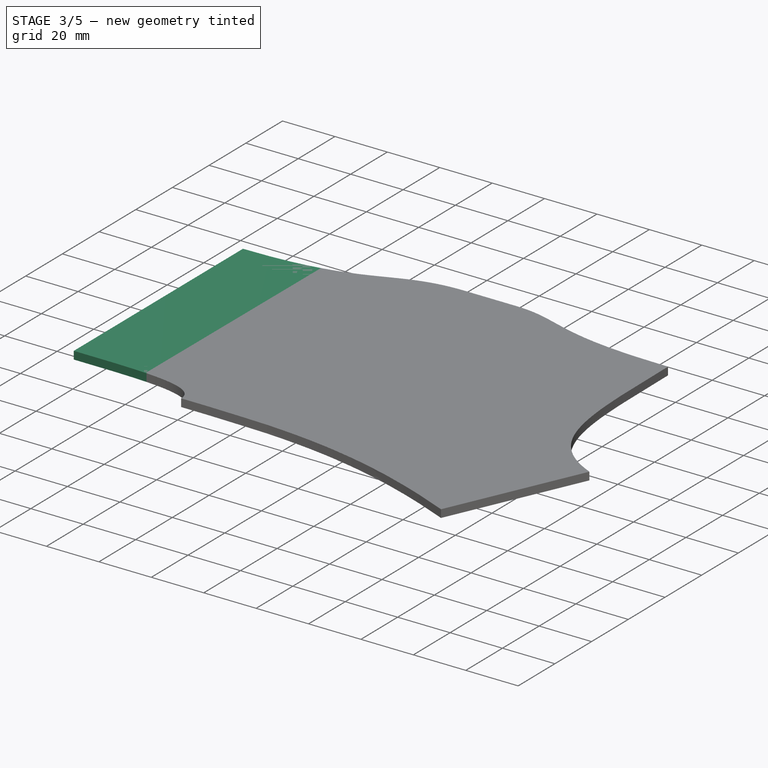
[diagram: stage 3 of 5 — iso view after this stage's code; geometry added in this stage tinted green]
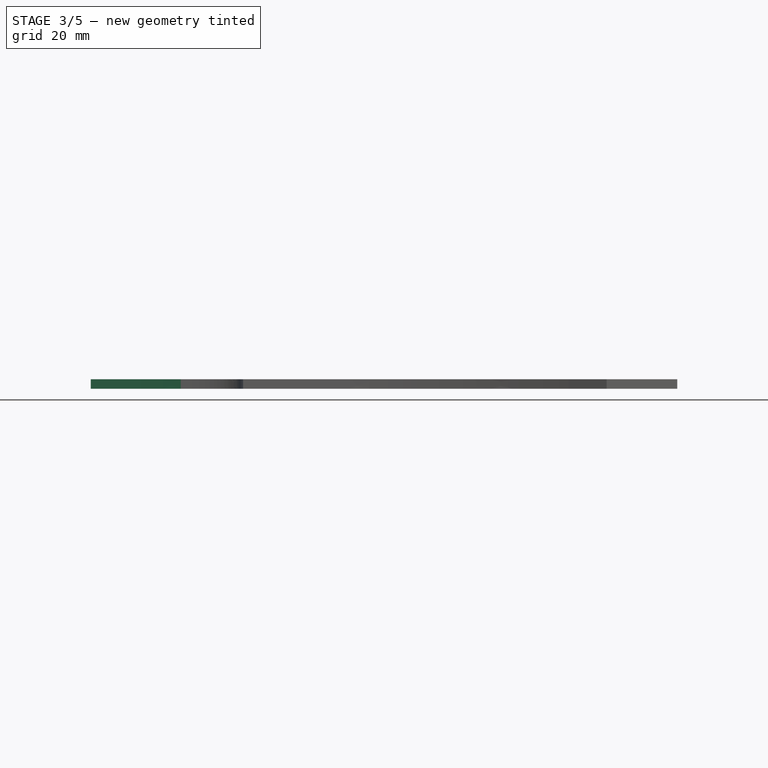
[diagram: stage 3 of 5 — front view after this stage's code; geometry added in this stage tinted green]
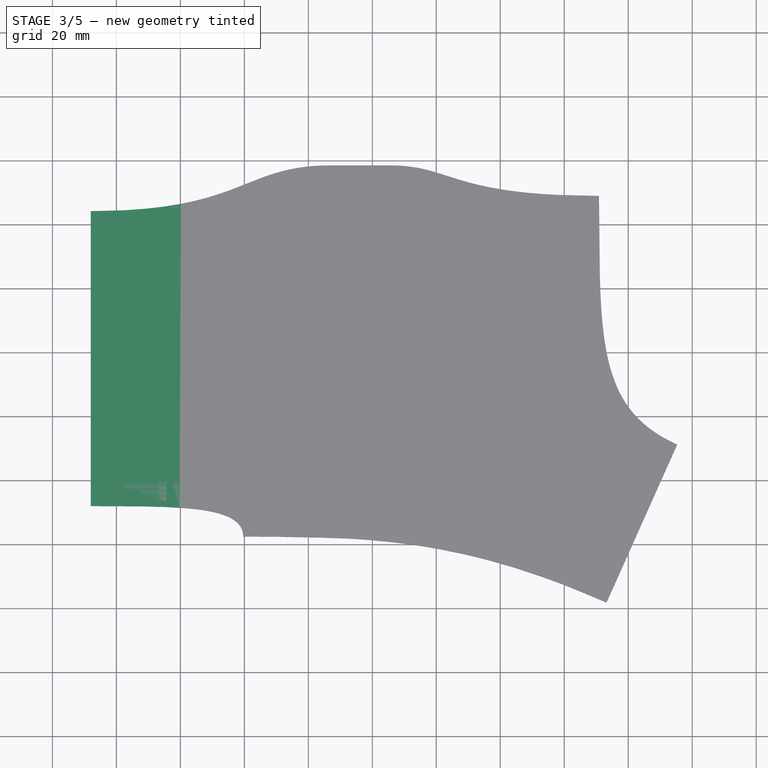
[diagram: stage 3 of 5 — top view after this stage's code; geometry added in this stage tinted green]
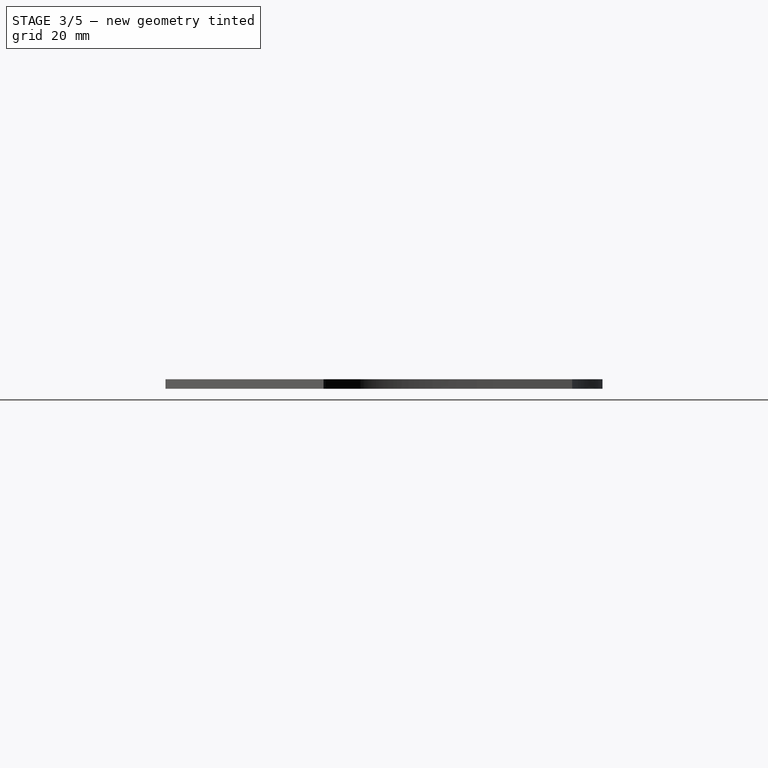
[diagram: stage 3 of 5 — right view after this stage's code; geometry added in this stage tinted green]
FEATURE [Sketcher::SketchObject] Sketch026  label="outer border003"
  FullyConstrained = true
  expr: Constraints[65] = 180 - 12.08569093596732
  expr: Constraints[22] = Spreadsheet.grid
  expr: Constraints[130] = Spreadsheet.brim
  expr: Constraints[26] = Spreadsheet.grid / 2
  expr: Constraints[152] = Spreadsheet.brim
  expr: Constraints[139] = Spreadsheet.brim
  expr: Constraints[135] = Spreadsheet.brim
  expr: Constraints[146] = Spreadsheet.brim
  expr: Constraints[121] = Spreadsheet.brim
  expr: Constraints[143] = Spreadsheet.brim
  expr: Constraints[155] = Spreadsheet.brim
  expr: Constraints[158] = <<Constants>>.grid * 1.5 + <<Constants>>.brim
  expr: Constraints[52] = Spreadsheet.grid
  expr: Constraints[28] = Spreadsheet.grid * 2
  expr: Constraints[66] = Spreadsheet.grid - 14.60669124913411
  expr: Constraints[25] = Spreadsheet.grid / 4
  expr: Constraints[51] = Spreadsheet.grid * 1.5
  expr: Constraints[144] = Spreadsheet.brim
  expr: Constraints[153] = Spreadsheet.grid * 2
  expr: Constraints[53] = Spreadsheet.grid * 2
  expr: Constraints[142] = Spreadsheet.brim
  expr: Constraints[136] = Spreadsheet.brim
  expr: Constraints[133] = Spreadsheet.brim
  expr: Constraints[137] = Spreadsheet.brim
  expr: Constraints[5] = (Spreadsheet.mod_units + 1) * Spreadsheet.grid
  expr: Constraints[2] = 4 * Spreadsheet.grid
  expr: Constraints[134] = Spreadsheet.brim
  expr: Constraints[159] = Spreadsheet.grid
  expr: Constraints[119] = Spreadsheet.brim
  expr: Constraints[61] = 78°
  sketch-geometry (62):
    g0: LineSegment StartX=104.775 StartY=-9.525 StartZ=0 EndX=103.851 EndY=-13.8712 EndZ=0
    g1: LineSegment StartX=0 StartY=0 StartZ=0 EndX=0 EndY=76.2 EndZ=0
    g2: LineSegment StartX=0 StartY=76.2 StartZ=0 EndX=47.625 EndY=76.2 EndZ=0
    g3: LineSegment StartX=47.625 StartY=76.2 StartZ=0 EndX=47.625 EndY=85.725 EndZ=0
    g4: LineSegment StartX=47.625 StartY=85.725 StartZ=0 EndX=66.675 EndY=85.725 EndZ=0
    g5: LineSegment StartX=66.675 StartY=85.725 StartZ=0 EndX=66.675 EndY=90.4875 EndZ=0
    g6: LineSegment StartX=66.675 StartY=90.4875 StartZ=0 EndX=85.725 EndY=90.4875 EndZ=0
    g7: LineSegment StartX=85.725 StartY=90.4875 StartZ=0 EndX=85.725 EndY=85.725 EndZ=0
    g8: LineSegment StartX=85.725 StartY=85.725 StartZ=0 EndX=104.775 EndY=85.725 EndZ=0
    g9: LineSegment StartX=104.775 StartY=85.725 StartZ=0 EndX=104.775 EndY=80.9625 EndZ=0
    g10: LineSegment StartX=104.775 StartY=80.9625 StartZ=0 EndX=142.875 EndY=80.9625 EndZ=0
    g11: LineSegment StartX=142.875 StartY=80.9625 StartZ=0 EndX=142.875 EndY=16.9712 EndZ=0
    g12: LineSegment StartX=0 StartY=0 StartZ=0 EndX=47.625 EndY=0 EndZ=0
    g13: LineSegment StartX=47.625 StartY=0 StartZ=0 EndX=47.625 EndY=-9.525 EndZ=0
    g14: LineSegment StartX=47.625 StartY=-9.525 StartZ=0 EndX=66.675 EndY=-9.525 EndZ=0
    g15: LineSegment StartX=66.675 StartY=-9.525 StartZ=0 EndX=66.675 EndY=-4.7625 EndZ=0
    g16: LineSegment StartX=66.675 StartY=-4.7625 StartZ=0 EndX=85.725 EndY=-4.7625 EndZ=0
    g17: LineSegment StartX=85.725 StartY=-4.7625 StartZ=0 EndX=85.725 EndY=-9.525 EndZ=0
    g18: LineSegment StartX=164.742 StartY=7.19623 StartZ=0 EndX=149.193 EndY=-27.5866 EndZ=0
    g19: LineSegment StartX=149.193 StartY=-27.5866 StartZ=0 EndX=131.802 EndY=-19.8123 EndZ=0
    g20: LineSegment StartX=131.802 StartY=-19.8123 StartZ=0 EndX=103.851 EndY=-13.8712 EndZ=0
    g21: LineSegment StartX=164.742 StartY=7.19623 StartZ=0 EndX=142.875 EndY=16.9712 EndZ=0
    g22: LineSegment StartX=85.725 StartY=-9.525 StartZ=0 EndX=104.775 EndY=-9.525 EndZ=0
    g23: LineSegment StartX=-8 StartY=84.2 StartZ=0 EndX=-8 EndY=-8 EndZ=0
    g24: LineSegment StartX=153.232 StartY=-38.1549 StartZ=0 EndX=175.31 EndY=11.2349 EndZ=0
    g25: LineSegment StartX=85.725 StartY=98.4875 StartZ=0 EndX=66.675 EndY=98.4875 EndZ=0
    g26-g29: Circle x4 (B-spline internal-alignment scaffolding for g30; pole/knot coordinates omitted)
    g30: BSplineCurve PolesCount=4 KnotsCount=2 Degree=3 IsPeriodic=0
    g31: GeomPoint X=-8 Y=84.2 Z=0
    g32: GeomPoint X=66.675 Y=98.4875 Z=0
    g33-g36: Circle x4 (B-spline internal-alignment scaffolding for g37; pole/knot coordinates omitted)
    g37: BSplineCurve PolesCount=4 KnotsCount=2 Degree=3 IsPeriodic=0
    g38: GeomPoint X=85.725 Y=98.4875 Z=0
    g39: GeomPoint X=150.875 Y=88.9625 Z=0
    g40-g43: Circle x4 (B-spline internal-alignment scaffolding for g44; pole/knot coordinates omitted)
    g44: BSplineCurve PolesCount=4 KnotsCount=2 Degree=3 IsPeriodic=0
    g45: GeomPoint X=150.875 Y=88.9625 Z=0
    g46: GeomPoint X=175.31 Y=11.2349 Z=0
    g47-g50: Circle x4 (B-spline internal-alignment scaffolding for g51; pole/knot coordinates omitted)
    g51: BSplineCurve PolesCount=4 KnotsCount=2 Degree=3 IsPeriodic=0
    g52: GeomPoint X=153.232 Y=-38.1549 Z=0
    g53: GeomPoint X=39.625 Y=-17.525 Z=0
    g54-g57: Circle x4 (B-spline internal-alignment scaffolding for g58; pole/knot coordinates omitted)
    g58: BSplineCurve PolesCount=4 KnotsCount=2 Degree=3 IsPeriodic=0
    g59: GeomPoint X=39.625 Y=-17.525 Z=0
    g60: GeomPoint X=-8 Y=-8 Z=0
    g61: LineSegment StartX=107.082 StartY=-17.525 StartZ=0 EndX=153.232 EndY=-38.1549 EndZ=0
  constraints (149):
    c: Coincident(g1,g-1)
    c: Vertical(g1)
    c: DistanceY(g1,g1) = 76.2
    c: Horizontal(g2)
    c: Coincident(g2,g1)
    c: DistanceX(g2,g2) = 47.625
    c: Coincident(g3,g4)
    c: Coincident(g4,g5)
    c: Coincident(g5,g6)
    c: Coincident(g6,g7)
    c: Coincident(g8,g9)
    c: Coincident(g9,g10)
    c: Coincident(g10,g11)
    c: Vertical(g3)
    c: Vertical(g5)
    c: Vertical(g7)
    c: Vertical(g9)
    c: Vertical(g11)
    c: Horizontal(g4)
    c: Horizontal(g6)
    c: Horizontal(g8)
    c: Horizontal(g10)
    c: DistanceX(g6,g6) = 19.05
    c: Equal(g4,g8)
    c: Equal(g8,g6)
    c: DistanceY(g5,g5) = 4.7625
    c: DistanceY(g3,g3) = 9.525
    c: Equal(g9,g7)
    c: DistanceX(g10,g10) = 38.1
    c: Coincident(g2,g3)
    c: Equal(g5,g7)
    c: Coincident(g12,g13)
    c: Coincident(g13,g14)
    c: Coincident(g14,g15)
    c: Coincident(g15,g16)
    c: Coincident(g16,g17)
    c: Equal(g12,g2)
    c: Horizontal(g12)
    c: Equal(g3,g13)
    c: Vertical(g13)
    c: Vertical(g15)
    c: Vertical(g17)
    c: Horizontal(g14)
    c: Horizontal(g16)
    c: Equal(g15,g17)
    c: Equal(g17,g5)
    c: Equal(g14,g4)
    c: Equal(g16,g6)
    c: Coincident(g1,g12)
    c: Coincident(g18,g19)
    c: Coincident(g19,g20)
    c: Distance(g20) = 28.575
    c: Distance(g19) = 19.05
    c: Distance(g18) = 38.1
    c: Perpendicular(g18,g19)
    c: Perpendicular(g21,g18)
    c: Coincident(g11,g21)
    c: Coincident(g17,g22)
    c: Equal(g22,g16)
    c: Horizontal(g22)
    c: Coincident(g22,g0)
    c: Angle(g22,g0) = 1.36136
    c: Coincident(g20,g0)
    c: Perpendicular(g20,g0)
    c: Coincident(g7,g8)
    c: Angle(g20,g19) = 2.93066
    c: Distance(g0) = 4.44331
    c: Coincident(g18,g21)
    c: Weight(g26) = 1
    c: Equal(g26,g27)
    c: Equal(g26,g28)
    c: Equal(g26,g29)
    c: InternalAlignment(g26-g29 -> g30) x4
    c: InternalAlignment(g31,g30)
    c: InternalAlignment(g32,g30)
    c: Weight(g33) = 1
    c: Equal(g33,g34)
    c: Equal(g33,g35)
    c: Equal(g33,g36)
    c: InternalAlignment(g33-g36 -> g37) x4
    c: InternalAlignment(g38,g37)
    c: InternalAlignment(g39,g37)
    c: Weight(g40) = 1
    c: Equal(g40,g41)
    c: Equal(g40,g42)
    c: Equal(g40,g43)
    c: InternalAlignment(g40-g43 -> g44) x4
    c: InternalAlignment(g45,g44)
    c: InternalAlignment(g46,g44)
    c: Coincident(g24,g44)
    c: Weight(g47) = 1
    c: Equal(g47,g48)
    c: Equal(g47,g49)
    c: Equal(g47,g50)
    c: InternalAlignment(g47-g50 -> g51) x4
    c: InternalAlignment(g52,g51)
    c: InternalAlignment(g53,g51)
    c: Weight(g54) = 1
    c: Equal(g54,g55)
    c: Equal(g54,g56)
    c: Equal(g54,g57)
    c: InternalAlignment(g54-g57 -> g58) x4
    c: InternalAlignment(g59,g58)
    c: InternalAlignment(g60,g58)
    c: DistanceX(g23,g1) = 8
    c: Coincident(g23,g30)
    c: DistanceY(g1,g23) = 8
    c: Horizontal(g27,g23)
    c: Horizontal(g25,g28)
    c: Horizontal(g34,g25)
    c: Coincident(g25,g37)
    c: Coincident(g25,g30)
    c: Vertical(g25,g5)
    c: Vertical(g6,g25)
    c: Horizontal(g25)
    c: DistanceY(g5,g25) = 8
    c: Horizontal(g35,g37)
    c: Coincident(g37,g44)
    c: DistanceX(g10,g37) = 8
    c: DistanceY(g10,g37) = 8
    c: Distance(g18,g24) = 8
    c: Distance(g24,g21) = 8
    c: Distance(g24,g18) = 8
    c: Coincident(g24,g51)
    c: Distance(g24,g19) = 8
    c: Horizontal(g49,g51)
    c: Coincident(g58,g51)
    c: DistanceY(g51,g13) = 8
    c: DistanceX(g51,g13) = 8
    c: DistanceX(g23,g-1) = 8
    c: Coincident(g23,g58)
    c: DistanceY(g23,g-1) = 8
    c: Horizontal(g56,g23)
    c: Vertical(g51,g55)
    c: Horizontal(g55,g23)
    c: Vertical(g42,g41)
    c: Vertical(g41,g37)
    c: Distance(g42,g21) = 8
    c: DistanceY(g41,g10) = 38.1
    c: Vertical(g27,g28)
    c: DistanceX(g27,g2) = 8
    c: Vertical(g35,g8)
    c: Vertical(g8,g34)
    c: DistanceX(g51,g49) = 36.575
    c: DistanceX(g56,g55) = 19.05
    c: Perpendicular(g61,g24)
    c: Coincident(g61,g24)
    c: Coincident(g61,g48)
    c: Horizontal(g48,g51)
FEATURE [PartDesign::Pad] Pad006
  Direction = (1,1,1)
  Length = 3
  Length2 = 100
  Profile = -> Sketch026
  Type = 0
  expr: Length = Spreadsheet.thickness
FEATURE [Sketcher::SketchObject] Sketch027  label="case_inside004"
  FullyConstrained = true
  MapMode = 5
  Placement = pos=(0,0,0) rot=(1,0,0;3.14159rad)
  expr: Constraints[121] = <<Constants>>.clearance
  expr: Constraints[45] = 2.5 * <<Constants>>.grid
  expr: Constraints[63] = <<Constants>>.grid * 2
  expr: Constraints[114] = <<Constants>>.clearance
  expr: Constraints[115] = <<Constants>>.clearance
  expr: Constraints[46] = <<Constants>>.grid
  expr: Constraints[67] = 180 - 12.08569093596732
  expr: Constraints[53] = 0.5 * <<Constants>>.grid
  expr: Constraints[56] = <<Constants>>.grid / 4
  expr: Constraints[62] = <<Constants>>.grid * 1.5
  expr: Constraints[65] = 4 * <<Constants>>.grid
  expr: Constraints[122] = <<Constants>>.clearance
  expr: Constraints[66] = Spreadsheet.grid - 14.60669124913411
  expr: Constraints[134] = <<Constants>>.clearance
  expr: Constraints[127] = <<Constants>>.clearance
  expr: Constraints[116] = <<Constants>>.clearance
  expr: Constraints[120] = <<Constants>>.clearance
  expr: Constraints[117] = <<Constants>>.clearance
  expr: Constraints[119] = <<Constants>>.clearance
  expr: Constraints[118] = <<Constants>>.clearance
  expr: Constraints[126] = <<Constants>>.clearance
  expr: Constraints[123] = <<Constants>>.clearance
  expr: Constraints[124] = <<Constants>>.clearance
  expr: Constraints[128] = <<Constants>>.clearance
  expr: Constraints[129] = <<Constants>>.clearance
  expr: Constraints[130] = <<Constants>>.clearance
  expr: Constraints[131] = <<Constants>>.clearance
  expr: Constraints[132] = <<Constants>>.clearance
  expr: Constraints[133] = <<Constants>>.clearance
  expr: Constraints[136] = <<Constants>>.clearance
  expr: Constraints[125] = <<Constants>>.clearance
  expr: Constraints[135] = <<Constants>>.clearance
  sketch-geometry (46):
    g0: LineSegment StartX=0 StartY=0 StartZ=0 EndX=0 EndY=-76.2 EndZ=0
    g1: LineSegment StartX=0 StartY=-76.2 StartZ=0 EndX=47.625 EndY=-76.2 EndZ=0
    g2: LineSegment StartX=47.625 StartY=-76.2 StartZ=0 EndX=47.625 EndY=-85.725 EndZ=0
    g3: LineSegment StartX=47.625 StartY=-85.725 StartZ=0 EndX=66.675 EndY=-85.725 EndZ=0
    g4: LineSegment StartX=66.675 StartY=-85.725 StartZ=0 EndX=66.675 EndY=-90.4875 EndZ=0
    g5: LineSegment StartX=66.675 StartY=-90.4875 StartZ=0 EndX=85.725 EndY=-90.4875 EndZ=0
    g6: LineSegment StartX=85.725 StartY=-90.4875 StartZ=0 EndX=85.725 EndY=-85.725 EndZ=0
    g7: LineSegment StartX=85.725 StartY=-85.725 StartZ=0 EndX=104.775 EndY=-85.725 EndZ=0
    g8: LineSegment StartX=104.775 StartY=-85.725 StartZ=0 EndX=104.775 EndY=-80.9625 EndZ=0
    g9: LineSegment StartX=104.775 StartY=-80.9625 StartZ=0 EndX=142.875 EndY=-80.9625 EndZ=0
    g10: LineSegment StartX=142.875 StartY=-80.9625 StartZ=0 EndX=142.875 EndY=-16.9712 EndZ=0
    g11: LineSegment StartX=142.875 StartY=-16.9712 StartZ=0 EndX=164.742 EndY=-7.19623 EndZ=0
    g12: LineSegment StartX=164.742 StartY=-7.19623 StartZ=0 EndX=149.193 EndY=27.5866 EndZ=0
    g13: LineSegment StartX=149.193 StartY=27.5866 StartZ=0 EndX=131.802 EndY=19.8123 EndZ=0
    g14: LineSegment StartX=131.802 StartY=19.8123 StartZ=0 EndX=103.851 EndY=13.8712 EndZ=0
    g15: LineSegment StartX=103.851 StartY=13.8712 StartZ=0 EndX=104.775 EndY=9.525 EndZ=0
    g16: LineSegment StartX=104.775 StartY=9.525 StartZ=0 EndX=85.725 EndY=9.525 EndZ=0
    g17: LineSegment StartX=85.725 StartY=9.525 StartZ=0 EndX=85.725 EndY=4.7625 EndZ=0
    g18: LineSegment StartX=85.725 StartY=4.7625 StartZ=0 EndX=66.675 EndY=4.7625 EndZ=0
    g19: LineSegment StartX=66.675 StartY=4.7625 StartZ=0 EndX=66.675 EndY=9.525 EndZ=0
    g20: LineSegment StartX=66.675 StartY=9.525 StartZ=0 EndX=47.625 EndY=9.525 EndZ=0
    g21: LineSegment StartX=47.625 StartY=9.525 StartZ=0 EndX=47.625 EndY=0 EndZ=0
    g22: LineSegment StartX=47.625 StartY=0 StartZ=0 EndX=0 EndY=0 EndZ=0
    g23: LineSegment StartX=-0.75 StartY=0.75 StartZ=0 EndX=-0.75 EndY=-76.95 EndZ=0
    g24: LineSegment StartX=-0.75 StartY=-76.95 StartZ=0 EndX=46.875 EndY=-76.95 EndZ=0
    g25: LineSegment StartX=46.875 StartY=-76.95 StartZ=0 EndX=46.875 EndY=-86.475 EndZ=0
    g26: LineSegment StartX=46.875 StartY=-86.475 StartZ=0 EndX=65.925 EndY=-86.475 EndZ=0
    g27: LineSegment StartX=65.925 StartY=-86.475 StartZ=0 EndX=65.925 EndY=-91.2375 EndZ=0
    g28: LineSegment StartX=65.925 StartY=-91.2375 StartZ=0 EndX=86.475 EndY=-91.2375 EndZ=0
    g29: LineSegment StartX=86.475 StartY=-91.2375 StartZ=0 EndX=86.475 EndY=-86.475 EndZ=0
    g30: LineSegment StartX=86.475 StartY=-86.475 StartZ=0 EndX=105.525 EndY=-86.475 EndZ=0
    g31: LineSegment StartX=105.525 StartY=-86.475 StartZ=0 EndX=105.525 EndY=-81.7125 EndZ=0
    g32: LineSegment StartX=105.525 StartY=-81.7125 StartZ=0 EndX=143.625 EndY=-81.7125 EndZ=0
    g33: LineSegment StartX=143.625 StartY=-81.7125 StartZ=0 EndX=143.625 EndY=-17.4575 EndZ=0
    g34: LineSegment StartX=143.625 StartY=-17.4575 StartZ=0 EndX=165.733 EndY=-7.57485 EndZ=0
    g35: LineSegment StartX=165.733 StartY=-7.57485 StartZ=0 EndX=149.572 EndY=28.5774 EndZ=0
    g36: LineSegment StartX=149.572 StartY=28.5774 StartZ=0 EndX=131.568 EndY=20.5294 EndZ=0
    g37: LineSegment StartX=131.568 StartY=20.5294 StartZ=0 EndX=102.962 EndY=14.4489 EndZ=0
    g38: LineSegment StartX=102.962 StartY=14.4489 StartZ=0 EndX=103.849 EndY=10.275 EndZ=0
    g39: LineSegment StartX=103.849 StartY=10.275 StartZ=0 EndX=84.975 EndY=10.275 EndZ=0
    g40: LineSegment StartX=84.975 StartY=10.275 StartZ=0 EndX=84.975 EndY=5.5125 EndZ=0
    g41: LineSegment StartX=84.975 StartY=5.5125 StartZ=0 EndX=67.425 EndY=5.5125 EndZ=0
    g42: LineSegment StartX=67.425 StartY=5.5125 StartZ=0 EndX=67.425 EndY=10.275 EndZ=0
    g43: LineSegment StartX=67.425 StartY=10.275 StartZ=0 EndX=46.875 EndY=10.275 EndZ=0
    g44: LineSegment StartX=46.875 StartY=10.275 StartZ=0 EndX=46.875 EndY=0.75 EndZ=0
    g45: LineSegment StartX=46.875 StartY=0.75 StartZ=0 EndX=-0.75 EndY=0.75 EndZ=0
  constraints (137):
    c: Vertical(g0)
    c: Coincident(g0,g1)
    c: Horizontal(g1)
    c: Coincident(g1,g2)
    c: Vertical(g2)
    c: Coincident(g2,g3)
    c: Horizontal(g3)
    c: Coincident(g3,g4)
    c: Coincident(g4,g5)
    c: Horizontal(g5)
    c: Coincident(g5,g6)
    c: Vertical(g6)
    c: Coincident(g6,g7)
    c: Horizontal(g7)
    c: Coincident(g7,g8)
    c: Coincident(g8,g9)
    c: Horizontal(g9)
    c: Coincident(g9,g10)
    c: Vertical(g10)
    c: Coincident(g10,g11)
    c: Coincident(g11,g12)
    c: Coincident(g12,g13)
    c: Coincident(g13,g14)
    c: Coincident(g14,g15)
    c: Coincident(g15,g16)
    c: Horizontal(g16)
    c: Coincident(g16,g17)
    c: Coincident(g17,g18)
    c: Horizontal(g18)
    c: Coincident(g18,g19)
    c: Coincident(g19,g20)
    c: Horizontal(g20)
    c: Coincident(g20,g21)
    c: Vertical(g21)
    c: Coincident(g21,g22)
    c: Horizontal(g22)
    c: Coincident(g0,g22)
    c: Coincident(g0,g-1)
    c: Vertical(g8)
    c: Vertical(g4)
    c: Vertical(g19)
    c: Vertical(g17)
    c: Perpendicular(g15,g14)
    c: Perpendicular(g12,g13)
    c: Perpendicular(g11,g12)
    c: DistanceX(g22,g22) = 47.625
    c: Distance(g20) = 19.05
    c: Equal(g16,g18)
    c: Equal(g18,g20)
    c: Equal(g20,g3)
    c: Equal(g3,g5)
    c: Equal(g5,g7)
    c: Equal(g20,g13)
    c: Distance(g2) = 9.525
    c: Equal(g2,g21)
    c: Equal(g1,g22)
    c: Distance(g4) = 4.7625
    c: Equal(g4,g6)
    c: Equal(g6,g8)
    c: Equal(g8,g19)
    c: Equal(g19,g17)
    c: Angle(g15,g16) = 1.36136
    c: Distance(g14) = 28.575
    c: Distance(g9) = 38.1
    c: Equal(g12,g9)
    c: Distance(g0) = 76.2
    c: Distance(g15) = 4.44331
    c: Angle(g13,g14) = 2.93066
    c: Coincident(g23,g24)
    c: Coincident(g24,g25)
    c: Coincident(g25,g26)
    c: Coincident(g26,g27)
    c: Coincident(g27,g28)
    c: Coincident(g28,g29)
    c: Coincident(g29,g30)
    c: Coincident(g30,g31)
    c: Coincident(g31,g32)
    c: Coincident(g32,g33)
    c: Coincident(g33,g34)
    c: Coincident(g34,g35)
    c: Coincident(g35,g36)
    c: Coincident(g36,g37)
    c: Coincident(g37,g38)
    c: Coincident(g38,g39)
    c: Coincident(g39,g40)
    c: Coincident(g40,g41)
    c: Coincident(g41,g42)
    c: Coincident(g42,g43)
    c: Coincident(g43,g44)
    c: Coincident(g44,g45)
    c: Coincident(g45,g23)
    c: Parallel(g22,g45)
    c: Parallel(g23,g0)
    c: Parallel(g21,g44)
    c: Parallel(g20,g43)
    c: Parallel(g19,g42)
    c: Parallel(g18,g41)
    c: Parallel(g17,g40)
    c: Parallel(g16,g39)
    c: Parallel(g15,g38)
    c: Parallel(g14,g37)
    c: Parallel(g13,g36)
    c: Parallel(g12,g35)
    c: Parallel(g34,g11)
    c: Parallel(g33,g10)
    c: Parallel(g32,g9)
    c: Parallel(g31,g8)
    c: Parallel(g30,g7)
    c: Parallel(g29,g6)
    c: Parallel(g28,g5)
    c: Parallel(g27,g4)
    c: Parallel(g26,g3)
    c: Parallel(g25,g2)
    c: Parallel(g24,g1)
    c: Distance(g-1,g23) = 0.75
    c: Distance(g-1,g45) = 0.75
    c: Distance(g20,g44) = 0.75
    c: Distance(g19,g43) = 0.75
    c: Distance(g41,g19) = 0.75
    c: Distance(g41,g18) = 0.75
    c: Distance(g40,g17) = 0.75
    c: Distance(g39,g16) = 0.75
    c: Distance(g38,g15) = 0.75
    c: Distance(g37,g14) = 0.75
    c: Distance(g36,g13) = 0.75
    c: Distance(g35,g12) = 0.75
    c: Distance(g34,g11) = 0.75
    c: Distance(g33,g10) = 0.75
    c: Distance(g32,g9) = 0.75
    c: Distance(g31,g8) = 0.75
    c: Distance(g30,g7) = 0.75
    c: Distance(g29,g6) = 0.75
    c: Distance(g28,g5) = 0.75
    c: Distance(g27,g4) = 0.75
    c: Distance(g26,g3) = 0.75
    c: Distance(g25,g2) = 0.75
    c: Distance(g24,g1) = 0.75
FEATURE [PartDesign::Pocket] Pocket009
  BaseFeature = -> Pad006
  Length = 5
  Length2 = 100
  Profile = -> Sketch027
  Type = 0
FEATURE [Sketcher::SketchObject] Sketch028  label="case_inside005"
  FullyConstrained = true
  MapMode = 5
  Placement = pos=(0,0,0) rot=(1,0,0;3.14159rad)
  expr: Constraints[90] = <<Constants>>.clearance
  expr: Constraints[93] = <<Constants>>.clearance
  expr: Constraints[87] = <<Constants>>.clearance
  expr: Constraints[63] = <<Constants>>.grid * 2
  expr: Constraints[45] = 2.5 * <<Constants>>.grid
  expr: Constraints[96] = <<Constants>>.clearance
  expr: Constraints[95] = <<Constants>>.clearance
  expr: Constraints[89] = <<Constants>>.clearance
  expr: Constraints[94] = <<Constants>>.clearance
  expr: Constraints[92] = <<Constants>>.clearance
  expr: Constraints[91] = <<Constants>>.clearance
  expr: Constraints[88] = <<Constants>>.clearance
  expr: Constraints[65] = 4 * <<Constants>>.grid
  expr: Constraints[56] = <<Constants>>.grid / 4
  expr: Constraints[67] = 180 - 12.08569093596732
  expr: Constraints[46] = <<Constants>>.grid
  expr: Constraints[66] = Spreadsheet.grid - 14.60669124913411
  expr: Constraints[62] = <<Constants>>.grid * 1.5
  expr: Constraints[53] = 0.5 * <<Constants>>.grid
  sketch-geometry (34):
    g0: LineSegment StartX=0 StartY=0 StartZ=0 EndX=0 EndY=-76.2 EndZ=0
    g1: LineSegment StartX=0 StartY=-76.2 StartZ=0 EndX=47.625 EndY=-76.2 EndZ=0
    g2: LineSegment StartX=47.625 StartY=-76.2 StartZ=0 EndX=47.625 EndY=-85.725 EndZ=0
    g3: LineSegment StartX=47.625 StartY=-85.725 StartZ=0 EndX=66.675 EndY=-85.725 EndZ=0
    g4: LineSegment StartX=66.675 StartY=-85.725 StartZ=0 EndX=66.675 EndY=-90.4875 EndZ=0
    g5: LineSegment StartX=66.675 StartY=-90.4875 StartZ=0 EndX=85.725 EndY=-90.4875 EndZ=0
    g6: LineSegment StartX=85.725 StartY=-90.4875 StartZ=0 EndX=85.725 EndY=-85.725 EndZ=0
    g7: LineSegment StartX=85.725 StartY=-85.725 StartZ=0 EndX=104.775 EndY=-85.725 EndZ=0
    g8: LineSegment StartX=104.775 StartY=-85.725 StartZ=0 EndX=104.775 EndY=-80.9625 EndZ=0
    g9: LineSegment StartX=104.775 StartY=-80.9625 StartZ=0 EndX=142.875 EndY=-80.9625 EndZ=0
    g10: LineSegment StartX=142.875 StartY=-80.9625 StartZ=0 EndX=142.875 EndY=-16.9712 EndZ=0
    g11: LineSegment StartX=142.875 StartY=-16.9712 StartZ=0 EndX=164.742 EndY=-7.19623 EndZ=0
    g12: LineSegment StartX=164.742 StartY=-7.19623 StartZ=0 EndX=149.193 EndY=27.5866 EndZ=0
    g13: LineSegment StartX=149.193 StartY=27.5866 StartZ=0 EndX=131.802 EndY=19.8123 EndZ=0
    g14: LineSegment StartX=131.802 StartY=19.8123 StartZ=0 EndX=103.851 EndY=13.8712 EndZ=0
    g15: LineSegment StartX=103.851 StartY=13.8712 StartZ=0 EndX=104.775 EndY=9.525 EndZ=0
    g16: LineSegment StartX=104.775 StartY=9.525 StartZ=0 EndX=85.725 EndY=9.525 EndZ=0
    g17: LineSegment StartX=85.725 StartY=9.525 StartZ=0 EndX=85.725 EndY=4.7625 EndZ=0
    g18: LineSegment StartX=85.725 StartY=4.7625 StartZ=0 EndX=66.675 EndY=4.7625 EndZ=0
    g19: LineSegment StartX=66.675 StartY=4.7625 StartZ=0 EndX=66.675 EndY=9.525 EndZ=0
    g20: LineSegment StartX=66.675 StartY=9.525 StartZ=0 EndX=47.625 EndY=9.525 EndZ=0
    g21: LineSegment StartX=47.625 StartY=9.525 StartZ=0 EndX=47.625 EndY=0 EndZ=0
    g22: LineSegment StartX=47.625 StartY=0 StartZ=0 EndX=0 EndY=0 EndZ=0
    g23: LineSegment StartX=85.725 StartY=-86.475 StartZ=0 EndX=105.525 EndY=-86.475 EndZ=0
    g24: LineSegment StartX=105.525 StartY=-86.475 StartZ=0 EndX=105.525 EndY=-81.7125 EndZ=0
    g25: LineSegment StartX=105.525 StartY=-81.7125 StartZ=0 EndX=143.625 EndY=-81.7125 EndZ=0
    g26: LineSegment StartX=143.625 StartY=-81.7125 StartZ=0 EndX=143.625 EndY=-17.4575 EndZ=0
    g27: LineSegment StartX=143.625 StartY=-17.4575 StartZ=0 EndX=165.733 EndY=-7.57485 EndZ=0
    g28: LineSegment StartX=165.733 StartY=-7.57485 StartZ=0 EndX=149.572 EndY=28.5774 EndZ=0
    g29: LineSegment StartX=149.572 StartY=28.5774 StartZ=0 EndX=131.568 EndY=20.5294 EndZ=0
    g30: LineSegment StartX=131.568 StartY=20.5294 StartZ=0 EndX=102.962 EndY=14.4489 EndZ=0
    g31: LineSegment StartX=102.962 StartY=14.4489 StartZ=0 EndX=103.849 EndY=10.275 EndZ=0
    g32: LineSegment StartX=103.849 StartY=10.275 StartZ=0 EndX=85.725 EndY=10.275 EndZ=0
    g33: LineSegment StartX=85.725 StartY=-86.475 StartZ=0 EndX=85.725 EndY=10.275 EndZ=0
  constraints (101):
    c: Vertical(g0)
    c: Coincident(g0,g1)
    c: Horizontal(g1)
    c: Coincident(g1,g2)
    c: Vertical(g2)
    c: Coincident(g2,g3)
    c: Horizontal(g3)
    c: Coincident(g3,g4)
    c: Coincident(g4,g5)
    c: Horizontal(g5)
    c: Coincident(g5,g6)
    c: Vertical(g6)
    c: Coincident(g6,g7)
    c: Horizontal(g7)
    c: Coincident(g7,g8)
    c: Coincident(g8,g9)
    c: Horizontal(g9)
    c: Coincident(g9,g10)
    c: Vertical(g10)
    c: Coincident(g10,g11)
    c: Coincident(g11,g12)
    c: Coincident(g12,g13)
    c: Coincident(g13,g14)
    c: Coincident(g14,g15)
    c: Coincident(g15,g16)
    c: Horizontal(g16)
    c: Coincident(g16,g17)
    c: Coincident(g17,g18)
    c: Horizontal(g18)
    c: Coincident(g18,g19)
    c: Coincident(g19,g20)
    c: Horizontal(g20)
    c: Coincident(g20,g21)
    c: Vertical(g21)
    c: Coincident(g21,g22)
    c: Horizontal(g22)
    c: Coincident(g0,g22)
    c: Coincident(g0,g-1)
    c: Vertical(g8)
    c: Vertical(g4)
    c: Vertical(g19)
    c: Vertical(g17)
    c: Perpendicular(g15,g14)
    c: Perpendicular(g12,g13)
    c: Perpendicular(g11,g12)
    c: DistanceX(g22,g22) = 47.625
    c: Distance(g20) = 19.05
    c: Equal(g16,g18)
    c: Equal(g18,g20)
    c: Equal(g20,g3)
    c: Equal(g3,g5)
    c: Equal(g5,g7)
    c: Equal(g20,g13)
    c: Distance(g2) = 9.525
    c: Equal(g2,g21)
    c: Equal(g1,g22)
    c: Distance(g4) = 4.7625
    c: Equal(g4,g6)
    c: Equal(g6,g8)
    c: Equal(g8,g19)
    c: Equal(g19,g17)
    c: Angle(g15,g16) = 1.36136
    c: Distance(g14) = 28.575
    c: Distance(g9) = 38.1
    c: Equal(g12,g9)
    c: Distance(g0) = 76.2
    c: Distance(g15) = 4.44331
    c: Angle(g13,g14) = 2.93066
    c: Coincident(g23,g24)
    c: Coincident(g24,g25)
    c: Coincident(g25,g26)
    c: Coincident(g26,g27)
    c: Coincident(g27,g28)
    c: Coincident(g28,g29)
    c: Coincident(g29,g30)
    c: Coincident(g30,g31)
    c: Coincident(g31,g32)
    c: Parallel(g16,g32)
    c: Parallel(g15,g31)
    c: Parallel(g14,g30)
    c: Parallel(g13,g29)
    c: Parallel(g12,g28)
    c: Parallel(g27,g11)
    c: Parallel(g26,g10)
    c: Parallel(g25,g9)
    c: Parallel(g24,g8)
    c: Parallel(g23,g7)
    c: Distance(g32,g16) = 0.75
    c: Distance(g31,g15) = 0.75
    c: Distance(g30,g14) = 0.75
    c: Distance(g29,g13) = 0.75
    c: Distance(g28,g12) = 0.75
    c: Distance(g27,g11) = 0.75
    c: Distance(g26,g10) = 0.75
    c: Distance(g25,g9) = 0.75
    c: Distance(g24,g8) = 0.75
    c: Distance(g23,g7) = 0.75
    c: Coincident(g33,g23)
    c: Coincident(g33,g32)
    c: Vertical(g33)
    c: PointOnObject(g23,g6)
FEATURE [Sketcher::SketchObject] Sketch029  label="outer border004"
  FullyConstrained = true
  expr: Constraints[61] = 78°
  expr: Constraints[119] = Spreadsheet.brim
  expr: Constraints[159] = Spreadsheet.grid
  expr: Constraints[134] = Spreadsheet.brim
  expr: Constraints[2] = 4 * Spreadsheet.grid
  expr: Constraints[5] = (Spreadsheet.mod_units + 1) * Spreadsheet.grid
  expr: Constraints[137] = Spreadsheet.brim
  expr: Constraints[133] = Spreadsheet.brim
  expr: Constraints[136] = Spreadsheet.brim
  expr: Constraints[142] = Spreadsheet.brim
  expr: Constraints[53] = Spreadsheet.grid * 2
  expr: Constraints[153] = Spreadsheet.grid * 2
  expr: Constraints[144] = Spreadsheet.brim
  expr: Constraints[51] = Spreadsheet.grid * 1.5
  expr: Constraints[28] = Spreadsheet.grid * 2
  expr: Constraints[66] = Spreadsheet.grid - 14.60669124913411
  expr: Constraints[25] = Spreadsheet.grid / 4
  expr: Constraints[52] = Spreadsheet.grid
  expr: Constraints[158] = <<Constants>>.grid * 1.5 + <<Constants>>.brim
  expr: Constraints[121] = Spreadsheet.brim
  expr: Constraints[143] = Spreadsheet.brim
  expr: Constraints[155] = Spreadsheet.brim
  expr: Constraints[146] = Spreadsheet.brim
  expr: Constraints[135] = Spreadsheet.brim
  expr: Constraints[139] = Spreadsheet.brim
  expr: Constraints[152] = Spreadsheet.brim
  expr: Constraints[26] = Spreadsheet.grid / 2
  expr: Constraints[130] = Spreadsheet.brim
  expr: Constraints[22] = Spreadsheet.grid
  expr: Constraints[65] = 180 - 12.08569093596732
  sketch-geometry (62):
    g0: LineSegment StartX=104.775 StartY=-9.525 StartZ=0 EndX=103.851 EndY=-13.8712 EndZ=0
    g1: LineSegment StartX=0 StartY=0 StartZ=0 EndX=0 EndY=76.2 EndZ=0
    g2: LineSegment StartX=0 StartY=76.2 StartZ=0 EndX=47.625 EndY=76.2 EndZ=0
    g3: LineSegment StartX=47.625 StartY=76.2 StartZ=0 EndX=47.625 EndY=85.725 EndZ=0
    g4: LineSegment StartX=47.625 StartY=85.725 StartZ=0 EndX=66.675 EndY=85.725 EndZ=0
    g5: LineSegment StartX=66.675 StartY=85.725 StartZ=0 EndX=66.675 EndY=90.4875 EndZ=0
    g6: LineSegment StartX=66.675 StartY=90.4875 StartZ=0 EndX=85.725 EndY=90.4875 EndZ=0
    g7: LineSegment StartX=85.725 StartY=90.4875 StartZ=0 EndX=85.725 EndY=85.725 EndZ=0
    g8: LineSegment StartX=85.725 StartY=85.725 StartZ=0 EndX=104.775 EndY=85.725 EndZ=0
    g9: LineSegment StartX=104.775 StartY=85.725 StartZ=0 EndX=104.775 EndY=80.9625 EndZ=0
    g10: LineSegment StartX=104.775 StartY=80.9625 StartZ=0 EndX=142.875 EndY=80.9625 EndZ=0
    g11: LineSegment StartX=142.875 StartY=80.9625 StartZ=0 EndX=142.875 EndY=16.9712 EndZ=0
    g12: LineSegment StartX=0 StartY=0 StartZ=0 EndX=47.625 EndY=0 EndZ=0
    g13: LineSegment StartX=47.625 StartY=0 StartZ=0 EndX=47.625 EndY=-9.525 EndZ=0
    g14: LineSegment StartX=47.625 StartY=-9.525 StartZ=0 EndX=66.675 EndY=-9.525 EndZ=0
    g15: LineSegment StartX=66.675 StartY=-9.525 StartZ=0 EndX=66.675 EndY=-4.7625 EndZ=0
    g16: LineSegment StartX=66.675 StartY=-4.7625 StartZ=0 EndX=85.725 EndY=-4.7625 EndZ=0
    g17: LineSegment StartX=85.725 StartY=-4.7625 StartZ=0 EndX=85.725 EndY=-9.525 EndZ=0
    g18: LineSegment StartX=164.742 StartY=7.19623 StartZ=0 EndX=149.193 EndY=-27.5866 EndZ=0
    g19: LineSegment StartX=149.193 StartY=-27.5866 StartZ=0 EndX=131.802 EndY=-19.8123 EndZ=0
    g20: LineSegment StartX=131.802 StartY=-19.8123 StartZ=0 EndX=103.851 EndY=-13.8712 EndZ=0
    g21: LineSegment StartX=164.742 StartY=7.19623 StartZ=0 EndX=142.875 EndY=16.9712 EndZ=0
    g22: LineSegment StartX=85.725 StartY=-9.525 StartZ=0 EndX=104.775 EndY=-9.525 EndZ=0
    g23: LineSegment StartX=-8 StartY=84.2 StartZ=0 EndX=-8 EndY=-8 EndZ=0
    g24: LineSegment StartX=153.232 StartY=-38.1549 StartZ=0 EndX=175.31 EndY=11.2349 EndZ=0
    g25: LineSegment StartX=85.725 StartY=98.4875 StartZ=0 EndX=66.675 EndY=98.4875 EndZ=0
    g26-g29: Circle x4 (B-spline internal-alignment scaffolding for g30; pole/knot coordinates omitted)
    g30: BSplineCurve PolesCount=4 KnotsCount=2 Degree=3 IsPeriodic=0
    g31: GeomPoint X=-8 Y=84.2 Z=0
    g32: GeomPoint X=66.675 Y=98.4875 Z=0
    g33-g36: Circle x4 (B-spline internal-alignment scaffolding for g37; pole/knot coordinates omitted)
    g37: BSplineCurve PolesCount=4 KnotsCount=2 Degree=3 IsPeriodic=0
    g38: GeomPoint X=85.725 Y=98.4875 Z=0
    g39: GeomPoint X=150.875 Y=88.9625 Z=0
    g40-g43: Circle x4 (B-spline internal-alignment scaffolding for g44; pole/knot coordinates omitted)
    g44: BSplineCurve PolesCount=4 KnotsCount=2 Degree=3 IsPeriodic=0
    g45: GeomPoint X=150.875 Y=88.9625 Z=0
    g46: GeomPoint X=175.31 Y=11.2349 Z=0
    g47-g50: Circle x4 (B-spline internal-alignment scaffolding for g51; pole/knot coordinates omitted)
    g51: BSplineCurve PolesCount=4 KnotsCount=2 Degree=3 IsPeriodic=0
    g52: GeomPoint X=153.232 Y=-38.1549 Z=0
    g53: GeomPoint X=39.625 Y=-17.525 Z=0
    g54-g57: Circle x4 (B-spline internal-alignment scaffolding for g58; pole/knot coordinates omitted)
    g58: BSplineCurve PolesCount=4 KnotsCount=2 Degree=3 IsPeriodic=0
    g59: GeomPoint X=39.625 Y=-17.525 Z=0
    g60: GeomPoint X=-8 Y=-8 Z=0
    g61: LineSegment StartX=107.082 StartY=-17.525 StartZ=0 EndX=153.232 EndY=-38.1549 EndZ=0
  constraints (149):
    c: Coincident(g1,g-1)
    c: Vertical(g1)
    c: DistanceY(g1,g1) = 76.2
    c: Horizontal(g2)
    c: Coincident(g2,g1)
    c: DistanceX(g2,g2) = 47.625
    c: Coincident(g3,g4)
    c: Coincident(g4,g5)
    c: Coincident(g5,g6)
    c: Coincident(g6,g7)
    c: Coincident(g8,g9)
    c: Coincident(g9,g10)
    c: Coincident(g10,g11)
    c: Vertical(g3)
    c: Vertical(g5)
    c: Vertical(g7)
    c: Vertical(g9)
    c: Vertical(g11)
    c: Horizontal(g4)
    c: Horizontal(g6)
    c: Horizontal(g8)
    c: Horizontal(g10)
    c: DistanceX(g6,g6) = 19.05
    c: Equal(g4,g8)
    c: Equal(g8,g6)
    c: DistanceY(g5,g5) = 4.7625
    c: DistanceY(g3,g3) = 9.525
    c: Equal(g9,g7)
    c: DistanceX(g10,g10) = 38.1
    c: Coincident(g2,g3)
    c: Equal(g5,g7)
    c: Coincident(g12,g13)
    c: Coincident(g13,g14)
    c: Coincident(g14,g15)
    c: Coincident(g15,g16)
    c: Coincident(g16,g17)
    c: Equal(g12,g2)
    c: Horizontal(g12)
    c: Equal(g3,g13)
    c: Vertical(g13)
    c: Vertical(g15)
    c: Vertical(g17)
    c: Horizontal(g14)
    c: Horizontal(g16)
    c: Equal(g15,g17)
    c: Equal(g17,g5)
    c: Equal(g14,g4)
    c: Equal(g16,g6)
    c: Coincident(g1,g12)
    c: Coincident(g18,g19)
    c: Coincident(g19,g20)
    c: Distance(g20) = 28.575
    c: Distance(g19) = 19.05
    c: Distance(g18) = 38.1
    c: Perpendicular(g18,g19)
    c: Perpendicular(g21,g18)
    c: Coincident(g11,g21)
    c: Coincident(g17,g22)
    c: Equal(g22,g16)
    c: Horizontal(g22)
    c: Coincident(g22,g0)
    c: Angle(g22,g0) = 1.36136
    c: Coincident(g20,g0)
    c: Perpendicular(g20,g0)
    c: Coincident(g7,g8)
    c: Angle(g20,g19) = 2.93066
    c: Distance(g0) = 4.44331
    c: Coincident(g18,g21)
    c: Weight(g26) = 1
    c: Equal(g26,g27)
    c: Equal(g26,g28)
    c: Equal(g26,g29)
    c: InternalAlignment(g26-g29 -> g30) x4
    c: InternalAlignment(g31,g30)
    c: InternalAlignment(g32,g30)
    c: Weight(g33) = 1
    c: Equal(g33,g34)
    c: Equal(g33,g35)
    c: Equal(g33,g36)
    c: InternalAlignment(g33-g36 -> g37) x4
    c: InternalAlignment(g38,g37)
    c: InternalAlignment(g39,g37)
    c: Weight(g40) = 1
    c: Equal(g40,g41)
    c: Equal(g40,g42)
    c: Equal(g40,g43)
    c: InternalAlignment(g40-g43 -> g44) x4
    c: InternalAlignment(g45,g44)
    c: InternalAlignment(g46,g44)
    c: Coincident(g24,g44)
    c: Weight(g47) = 1
    c: Equal(g47,g48)
    c: Equal(g47,g49)
    c: Equal(g47,g50)
    c: InternalAlignment(g47-g50 -> g51) x4
    c: InternalAlignment(g52,g51)
    c: InternalAlignment(g53,g51)
    c: Weight(g54) = 1
    c: Equal(g54,g55)
    c: Equal(g54,g56)
    c: Equal(g54,g57)
    c: InternalAlignment(g54-g57 -> g58) x4
    c: InternalAlignment(g59,g58)
    c: InternalAlignment(g60,g58)
    c: DistanceX(g23,g1) = 8
    c: Coincident(g23,g30)
    c: DistanceY(g1,g23) = 8
    c: Horizontal(g27,g23)
    c: Horizontal(g25,g28)
    c: Horizontal(g34,g25)
    c: Coincident(g25,g37)
    c: Coincident(g25,g30)
    c: Vertical(g25,g5)
    c: Vertical(g6,g25)
    c: Horizontal(g25)
    c: DistanceY(g5,g25) = 8
    c: Horizontal(g35,g37)
    c: Coincident(g37,g44)
    c: DistanceX(g10,g37) = 8
    c: DistanceY(g10,g37) = 8
    c: Distance(g18,g24) = 8
    c: Distance(g24,g21) = 8
    c: Distance(g24,g18) = 8
    c: Coincident(g24,g51)
    c: Distance(g24,g19) = 8
    c: Horizontal(g49,g51)
    c: Coincident(g58,g51)
    c: DistanceY(g51,g13) = 8
    c: DistanceX(g51,g13) = 8
    c: DistanceX(g23,g-1) = 8
    c: Coincident(g23,g58)
    c: DistanceY(g23,g-1) = 8
    c: Horizontal(g56,g23)
    c: Vertical(g51,g55)
    c: Horizontal(g55,g23)
    c: Vertical(g42,g41)
    c: Vertical(g41,g37)
    c: Distance(g42,g21) = 8
    c: DistanceY(g41,g10) = 38.1
    c: Vertical(g27,g28)
    c: DistanceX(g27,g2) = 8
    c: Vertical(g35,g8)
    c: Vertical(g8,g34)
    c: DistanceX(g51,g49) = 36.575
    c: DistanceX(g56,g55) = 19.05
    c: Perpendicular(g61,g24)
    c: Coincident(g61,g24)
    c: Coincident(g61,g48)
    c: Horizontal(g48,g51)
FEATURE [PartDesign::Pad] Pad007
  Direction = (1,1,1)
  Length = 3
  Length2 = 100
  Profile = -> Sketch029
  Type = 0
  expr: Length = Spreadsheet.thickness
FEATURE [PartDesign::Pocket] Pocket010
  BaseFeature = -> Pad007
  Length = 5
  Length2 = 100
  Profile = -> Sketch028
  Type = 0
FEATURE [PartDesign::Pocket] Pocket018
  BaseFeature = -> Pocket010
  Length = 16
  Length2 = 100
  Profile = -> Sketch042
  Reversed = true
  Type = 0
FEATURE [Sketcher::SketchObject] Sketch052  label="ports004"
  FullyConstrained = false
  MapMode = 5
  Support = -> [XY_Plane005]
  expr: Constraints[136] = Spreadsheet.holedistance
  expr: Constraints[135] = Spreadsheet.holedistance
  expr: Constraints[105] = Spreadsheet.brim
  expr: Constraints[80] = Spreadsheet.grid - 1
  expr: Constraints[106] = Spreadsheet.brim
  expr: Constraints[64] = Spreadsheet.grid - 14.60669124913411
  expr: Constraints[65] = Spreadsheet.grid * 1.5
  expr: Constraints[40] = Spreadsheet.grid * 2.5
  expr: Constraints[98] = Spreadsheet.clearance
  expr: Constraints[137] = Spreadsheet.standoffhole
  expr: Constraints[57] = Spreadsheet.grid / 4
  expr: Constraints[66] = Spreadsheet.grid
  expr: Constraints[59] = Spreadsheet.grid * 2
  expr: Constraints[99] = Spreadsheet.clearance
  expr: Constraints[63] = 180 - 12.08569093596732
  expr: Constraints[49] = Spreadsheet.grid / 2
  expr: Constraints[48] = Spreadsheet.grid
  expr: Constraints[41] = 4 * Spreadsheet.grid
  sketch-geometry (54):
    g0: LineSegment StartX=0 StartY=0 StartZ=0 EndX=0 EndY=76.2 EndZ=0
    g1: LineSegment StartX=0 StartY=76.2 StartZ=0 EndX=47.625 EndY=76.2 EndZ=0
    g2: LineSegment StartX=47.625 StartY=76.2 StartZ=0 EndX=47.625 EndY=85.725 EndZ=0
    g3: LineSegment StartX=47.625 StartY=85.725 StartZ=0 EndX=66.675 EndY=85.725 EndZ=0
    g4: LineSegment StartX=66.675 StartY=85.725 StartZ=0 EndX=66.675 EndY=90.4875 EndZ=0
    g5: LineSegment StartX=66.675 StartY=90.4875 StartZ=0 EndX=85.725 EndY=90.4875 EndZ=0
    g6: LineSegment StartX=85.725 StartY=90.4875 StartZ=0 EndX=85.725 EndY=85.725 EndZ=0
    g7: LineSegment StartX=85.725 StartY=85.725 StartZ=0 EndX=104.775 EndY=85.725 EndZ=0
    g8: LineSegment StartX=104.775 StartY=85.725 StartZ=0 EndX=104.775 EndY=80.9625 EndZ=0
    g9: LineSegment StartX=104.775 StartY=80.9625 StartZ=0 EndX=142.875 EndY=80.9625 EndZ=0
    g10: LineSegment StartX=142.875 StartY=80.9625 StartZ=0 EndX=142.875 EndY=16.9712 EndZ=0
    g11: LineSegment StartX=142.875 StartY=16.9712 StartZ=0 EndX=164.742 EndY=7.19623 EndZ=0
    g12: LineSegment StartX=164.742 StartY=7.19623 StartZ=0 EndX=149.193 EndY=-27.5866 EndZ=0
    g13: LineSegment StartX=149.193 StartY=-27.5866 StartZ=0 EndX=131.802 EndY=-19.8123 EndZ=0
    g14: LineSegment StartX=131.802 StartY=-19.8123 StartZ=0 EndX=103.851 EndY=-13.8712 EndZ=0
    g15: LineSegment StartX=103.851 StartY=-13.8712 StartZ=0 EndX=104.775 EndY=-9.525 EndZ=0
    g16: LineSegment StartX=104.775 StartY=-9.525 StartZ=0 EndX=85.725 EndY=-9.525 EndZ=0
    g17: LineSegment StartX=85.725 StartY=-9.525 StartZ=0 EndX=85.725 EndY=-4.7625 EndZ=0
    g18: LineSegment StartX=85.725 StartY=-4.7625 StartZ=0 EndX=66.675 EndY=-4.7625 EndZ=0
    g19: LineSegment StartX=66.675 StartY=-4.7625 StartZ=0 EndX=66.675 EndY=-9.525 EndZ=0
    g20: LineSegment StartX=66.675 StartY=-9.525 StartZ=0 EndX=47.625 EndY=-9.525 EndZ=0
    g21: LineSegment StartX=47.625 StartY=-9.525 StartZ=0 EndX=47.625 EndY=0 EndZ=0
    g22: LineSegment StartX=47.625 StartY=0 StartZ=0 EndX=0 EndY=0 EndZ=0
    g23: LineSegment StartX=123.825 StartY=80.9625 StartZ=0 EndX=123.825 EndY=92.9625 EndZ=0
    g24: LineSegment StartX=118.825 StartY=80.9625 StartZ=0 EndX=116.825 EndY=92.9625 EndZ=0
    g25: LineSegment StartX=116.825 StartY=92.9625 StartZ=0 EndX=130.825 EndY=92.9625 EndZ=0
    g26: LineSegment StartX=130.296 StartY=89.7876 StartZ=0 EndX=128.95 EndY=81.7125 EndZ=0
    g27: LineSegment StartX=118.825 StartY=80.9625 StartZ=0 EndX=128.825 EndY=80.9625 EndZ=0
    g28: LineSegment StartX=142.875 StartY=62.9125 StartZ=0 EndX=154.875 EndY=62.9125 EndZ=0
    g29: LineSegment StartX=142.875 StartY=69.9125 StartZ=0 EndX=142.875 EndY=55.9125 EndZ=0
    g30: LineSegment StartX=142.875 StartY=55.9125 StartZ=0 EndX=154.875 EndY=54.9125 EndZ=0
    g31: LineSegment StartX=154.875 StartY=54.9125 StartZ=0 EndX=154.875 EndY=70.9125 EndZ=0
    g32: LineSegment StartX=150.975 StartY=70.5875 StartZ=0 EndX=143.625 EndY=69.975 EndZ=0
    g33: LineSegment StartX=128.95 StartY=81.7125 StartZ=0 EndX=143.625 EndY=81.7125 EndZ=0
    g34: LineSegment StartX=143.625 StartY=81.7125 StartZ=0 EndX=143.625 EndY=69.975 EndZ=0
    g35: LineSegment StartX=128.825 StartY=80.9625 StartZ=0 EndX=128.95 EndY=81.7125 EndZ=0
    g36: LineSegment StartX=142.875 StartY=69.9125 StartZ=0 EndX=143.625 EndY=69.975 EndZ=0
    g37: LineSegment StartX=130.825 StartY=92.9625 StartZ=0 EndX=130.296 EndY=89.7876 EndZ=0
    g38: GeomPoint X=150.875 Y=88.9625 Z=0
    g39: LineSegment StartX=154.875 StartY=70.9125 StartZ=0 EndX=150.975 EndY=70.5875 EndZ=0
    g40-g43: Circle x4 (B-spline internal-alignment scaffolding for g44; pole/knot coordinates omitted)
    g44: BSplineCurve PolesCount=4 KnotsCount=2 Degree=3 IsPeriodic=0
    g45: GeomPoint X=150.875 Y=88.9625 Z=0
    g46: GeomPoint X=130.296 Y=89.7876 Z=0
    g47: Circle CenterX=150.875 CenterY=88.9625 CenterZ=0 NormalX=0 NormalY=0 NormalZ=1 AngleXU=0 Radius=1
    g48: Circle CenterX=150.875 CenterY=82.6662 CenterZ=0 NormalX=0 NormalY=0 NormalZ=1 AngleXU=0 Radius=1
    g49: Circle CenterX=150.975 CenterY=70.5875 CenterZ=0 NormalX=0 NormalY=0 NormalZ=1 AngleXU=0 Radius=1
    g50: BSplineCurve PolesCount=3 KnotsCount=2 Degree=2 IsPeriodic=0
    g51: GeomPoint X=150.875 Y=88.9625 Z=0
    g52: GeomPoint X=150.975 Y=70.5875 Z=0
    g53: Circle CenterX=147.25 CenterY=85.3375 CenterZ=0 NormalX=0 NormalY=0 NormalZ=1 AngleXU=0 Radius=1.45
  constraints (135):
    c: Coincident(g0,g-1)
    c: PointOnObject(g0,g-2)
    c: Coincident(g0,g1)
    c: Horizontal(g1)
    c: Coincident(g1,g2)
    c: Vertical(g2)
    c: Coincident(g2,g3)
    c: Horizontal(g3)
    c: Coincident(g3,g4)
    c: Vertical(g4)
    c: Coincident(g4,g5)
    c: Horizontal(g5)
    c: Coincident(g5,g6)
    c: Vertical(g6)
    c: Coincident(g6,g7)
    c: Horizontal(g7)
    c: Coincident(g7,g8)
    c: Vertical(g8)
    c: Coincident(g8,g9)
    c: Horizontal(g9)
    c: Coincident(g9,g10)
    c: Vertical(g10)
    c: Coincident(g10,g11)
    c: Coincident(g11,g12)
    c: Coincident(g12,g13)
    c: Coincident(g13,g14)
    c: Coincident(g14,g15)
    c: Coincident(g15,g16)
    c: Horizontal(g16)
    c: Coincident(g16,g17)
    c: Coincident(g17,g18)
    c: Horizontal(g18)
    c: Coincident(g18,g19)
    c: Coincident(g19,g20)
    c: Horizontal(g20)
    c: Coincident(g20,g21)
    c: Vertical(g21)
    c: Coincident(g21,g22)
    c: Coincident(g22,g-1)
    c: Horizontal(g22)
    c: DistanceX(g22,g22) = 47.625
    c: DistanceY(g0,g0) = 76.2
    c: Equal(g22,g1)
    c: Equal(g3,g5)
    c: Equal(g5,g7)
    c: Equal(g7,g16)
    c: Equal(g16,g18)
    c: Equal(g18,g20)
    c: DistanceX(g20,g20) = 19.05
    c: DistanceY(g21,g21) = 9.525
    c: Equal(g21,g2)
    c: Equal(g4,g6)
    c: Equal(g6,g8)
    c: Equal(g8,g17)
    c: Equal(g17,g19)
    c: Vertical(g19)
    c: Vertical(g17)
    c: DistanceY(g4,g4) = 4.7625
    c: Equal(g12,g9)
    c: DistanceX(g9,g9) = 38.1
    c: Perpendicular(g11,g12)
    c: Perpendicular(g12,g13)
    c: Angle(g16,g15) = 1.36136
    c: Angle(g14,g13) = 2.93066
    c: Distance(g15) = 4.44331
    c: Distance(g14) = 28.575
    c: Distance(g13) = 19.05
    c: Perpendicular(g15,g14)
    c: Vertical(g23)
    c: Symmetric(g9,g9,g23)
    c: Coincident(g24,g25)
    c: DistanceX(g25,g25) = 14
    c: Symmetric(g25,g24,g23)
    c: PointOnObject(g27,g9)
    c: Coincident(g27,g24)
    c: DistanceX(g27,g27) = 10
    c: DistanceY(g27,g25) = 12
    c: PointOnObject(g23,g25)
    c: PointOnObject(g28,g10)
    c: Horizontal(g28)
    c: DistanceY(g28,g9) = 18.05
    c: PointOnObject(g29,g10)
    c: Coincident(g29,g30)
    c: Coincident(g30,g31)
    c: Symmetric(g30,g31,g28)
    c: Symmetric(g29,g29,g28)
    c: DistanceY(g29,g29) = 14
    c: PointOnObject(g28,g31)
    c: DistanceY(g31,g31) = 16
    c: DistanceX(g28,g28) = 12
    c: Horizontal(g33)
    c: Coincident(g34,g33)
    c: Vertical(g34)
    c: Coincident(g26,g33)
    c: Coincident(g35,g27)
    c: Coincident(g35,g26)
    c: Parallel(g35,g26)
    c: Symmetric(g24,g27,g23)
    c: DistanceY(g9,g33) = 0.75
    c: DistanceX(g9,g33) = 0.75
    c: Coincident(g36,g29)
    c: Coincident(g36,g34)
    c: Coincident(g32,g34)
    c: Parallel(g32,g36)
    c: Coincident(g37,g25)
    c: DistanceX(g9,g38) = 8
    c: DistanceY(g9,g38) = 8
    c: Coincident(g39,g31)
    c: Coincident(g32,g39)
    c: Parallel(g39,g32)
    c: Coincident(g26,g37)
    c: Parallel(g37,g26)
    c: Coincident(g44,g38)
    c: Weight(g40) = 1
    c: Equal(g40,g41)
    c: Equal(g40,g42)
    c: Equal(g40,g43)
    c: Coincident(g44,g26)
    c: InternalAlignment(g40-g43 -> g44) x4
    c: InternalAlignment(g45,g44)
    c: InternalAlignment(g46,g44)
    c: Coincident(g50,g44)
    c: Weight(g47) = 1
    c: Equal(g47,g48)
    c: Equal(g47,g49)
    c: Coincident(g50,g32)
    c: InternalAlignment(g47,g50)
    c: InternalAlignment(g48,g50)
    c: InternalAlignment(g49,g50)
    c: InternalAlignment(g51,g50)
    c: InternalAlignment(g52,g50)
    c: Vertical(g48,g44)
    c: DistanceY(g9,g53) = 4.375
    c: DistanceX(g9,g53) = 4.375
    c: Diameter(g53) = 2.9
FEATURE [PartDesign::Pocket] Pocket024
  BaseFeature = -> Pocket018
  Length = 19
  Length2 = 100
  Profile = -> Sketch050
  Reversed = true
  Type = 0
FEATURE [PartDesign::Pad] Pad013
  Direction = (1,1,1)
  Length = 3
  Length2 = 100
  Profile = -> Sketch052
  Type = 0
FEATURE [Sketcher::SketchObject] Sketch055  label="ports007"
  FullyConstrained = false
  MapMode = 5
  Support = -> [XY_Plane006]
  expr: Constraints[41] = 4 * Spreadsheet.grid
  expr: Constraints[48] = Spreadsheet.grid
  expr: Constraints[63] = 180 - 12.08569093596732
  expr: Constraints[49] = Spreadsheet.grid / 2
  expr: Constraints[99] = Spreadsheet.clearance
  expr: Constraints[59] = Spreadsheet.grid * 2
  expr: Constraints[66] = Spreadsheet.grid
  expr: Constraints[137] = Spreadsheet.standoffhole
  expr: Constraints[57] = Spreadsheet.grid / 4
  expr: Constraints[98] = Spreadsheet.clearance
  expr: Constraints[40] = Spreadsheet.grid * 2.5
  expr: Constraints[65] = Spreadsheet.grid * 1.5
  expr: Constraints[64] = Spreadsheet.grid - 14.60669124913411
  expr: Constraints[106] = Spreadsheet.brim
  expr: Constraints[80] = Spreadsheet.grid - 1
  expr: Constraints[105] = Spreadsheet.brim
  expr: Constraints[135] = Spreadsheet.holedistance
  expr: Constraints[136] = Spreadsheet.holedistance
  sketch-geometry (54):
    g0: LineSegment StartX=0 StartY=0 StartZ=0 EndX=0 EndY=76.2 EndZ=0
    g1: LineSegment StartX=0 StartY=76.2 StartZ=0 EndX=47.625 EndY=76.2 EndZ=0
    g2: LineSegment StartX=47.625 StartY=76.2 StartZ=0 EndX=47.625 EndY=85.725 EndZ=0
    g3: LineSegment StartX=47.625 StartY=85.725 StartZ=0 EndX=66.675 EndY=85.725 EndZ=0
    g4: LineSegment StartX=66.675 StartY=85.725 StartZ=0 EndX=66.675 EndY=90.4875 EndZ=0
    g5: LineSegment StartX=66.675 StartY=90.4875 StartZ=0 EndX=85.725 EndY=90.4875 EndZ=0
    g6: LineSegment StartX=85.725 StartY=90.4875 StartZ=0 EndX=85.725 EndY=85.725 EndZ=0
    g7: LineSegment StartX=85.725 StartY=85.725 StartZ=0 EndX=104.775 EndY=85.725 EndZ=0
    g8: LineSegment StartX=104.775 StartY=85.725 StartZ=0 EndX=104.775 EndY=80.9625 EndZ=0
    g9: LineSegment StartX=104.775 StartY=80.9625 StartZ=0 EndX=142.875 EndY=80.9625 EndZ=0
    g10: LineSegment StartX=142.875 StartY=80.9625 StartZ=0 EndX=142.875 EndY=16.9712 EndZ=0
    g11: LineSegment StartX=142.875 StartY=16.9712 StartZ=0 EndX=164.742 EndY=7.19623 EndZ=0
    g12: LineSegment StartX=164.742 StartY=7.19623 StartZ=0 EndX=149.193 EndY=-27.5866 EndZ=0
    g13: LineSegment StartX=149.193 StartY=-27.5866 StartZ=0 EndX=131.802 EndY=-19.8123 EndZ=0
    g14: LineSegment StartX=131.802 StartY=-19.8123 StartZ=0 EndX=103.851 EndY=-13.8712 EndZ=0
    g15: LineSegment StartX=103.851 StartY=-13.8712 StartZ=0 EndX=104.775 EndY=-9.525 EndZ=0
    g16: LineSegment StartX=104.775 StartY=-9.525 StartZ=0 EndX=85.725 EndY=-9.525 EndZ=0
    g17: LineSegment StartX=85.725 StartY=-9.525 StartZ=0 EndX=85.725 EndY=-4.7625 EndZ=0
    g18: LineSegment StartX=85.725 StartY=-4.7625 StartZ=0 EndX=66.675 EndY=-4.7625 EndZ=0
    g19: LineSegment StartX=66.675 StartY=-4.7625 StartZ=0 EndX=66.675 EndY=-9.525 EndZ=0
    g20: LineSegment StartX=66.675 StartY=-9.525 StartZ=0 EndX=47.625 EndY=-9.525 EndZ=0
    g21: LineSegment StartX=47.625 StartY=-9.525 StartZ=0 EndX=47.625 EndY=0 EndZ=0
    g22: LineSegment StartX=47.625 StartY=0 StartZ=0 EndX=0 EndY=0 EndZ=0
    g23: LineSegment StartX=123.825 StartY=80.9625 StartZ=0 EndX=123.825 EndY=92.9625 EndZ=0
    g24: LineSegment StartX=118.825 StartY=80.9625 StartZ=0 EndX=116.825 EndY=92.9625 EndZ=0
    g25: LineSegment StartX=116.825 StartY=92.9625 StartZ=0 EndX=130.825 EndY=92.9625 EndZ=0
    g26: LineSegment StartX=130.296 StartY=89.7876 StartZ=0 EndX=128.95 EndY=81.7125 EndZ=0
    g27: LineSegment StartX=118.825 StartY=80.9625 StartZ=0 EndX=128.825 EndY=80.9625 EndZ=0
    g28: LineSegment StartX=142.875 StartY=62.9125 StartZ=0 EndX=154.875 EndY=62.9125 EndZ=0
    g29: LineSegment StartX=142.875 StartY=69.9125 StartZ=0 EndX=142.875 EndY=55.9125 EndZ=0
    g30: LineSegment StartX=142.875 StartY=55.9125 StartZ=0 EndX=154.875 EndY=54.9125 EndZ=0
    g31: LineSegment StartX=154.875 StartY=54.9125 StartZ=0 EndX=154.875 EndY=70.9125 EndZ=0
    g32: LineSegment StartX=150.975 StartY=70.5875 StartZ=0 EndX=143.625 EndY=69.975 EndZ=0
    g33: LineSegment StartX=128.95 StartY=81.7125 StartZ=0 EndX=143.625 EndY=81.7125 EndZ=0
    g34: LineSegment StartX=143.625 StartY=81.7125 StartZ=0 EndX=143.625 EndY=69.975 EndZ=0
    g35: LineSegment StartX=128.825 StartY=80.9625 StartZ=0 EndX=128.95 EndY=81.7125 EndZ=0
    g36: LineSegment StartX=142.875 StartY=69.9125 StartZ=0 EndX=143.625 EndY=69.975 EndZ=0
    g37: LineSegment StartX=130.825 StartY=92.9625 StartZ=0 EndX=130.296 EndY=89.7876 EndZ=0
    g38: GeomPoint X=150.875 Y=88.9625 Z=0
    g39: LineSegment StartX=154.875 StartY=70.9125 StartZ=0 EndX=150.975 EndY=70.5875 EndZ=0
    g40-g43: Circle x4 (B-spline internal-alignment scaffolding for g44; pole/knot coordinates omitted)
    g44: BSplineCurve PolesCount=4 KnotsCount=2 Degree=3 IsPeriodic=0
    g45: GeomPoint X=150.875 Y=88.9625 Z=0
    g46: GeomPoint X=130.296 Y=89.7876 Z=0
    g47: Circle CenterX=150.875 CenterY=88.9625 CenterZ=0 NormalX=0 NormalY=0 NormalZ=1 AngleXU=0 Radius=1
    g48: Circle CenterX=150.875 CenterY=82.6662 CenterZ=0 NormalX=0 NormalY=0 NormalZ=1 AngleXU=0 Radius=1
    g49: Circle CenterX=150.975 CenterY=70.5875 CenterZ=0 NormalX=0 NormalY=0 NormalZ=1 AngleXU=0 Radius=1
    g50: BSplineCurve PolesCount=3 KnotsCount=2 Degree=2 IsPeriodic=0
    g51: GeomPoint X=150.875 Y=88.9625 Z=0
    g52: GeomPoint X=150.975 Y=70.5875 Z=0
    g53: Circle CenterX=147.25 CenterY=85.3375 CenterZ=0 NormalX=0 NormalY=0 NormalZ=1 AngleXU=0 Radius=1.45
  constraints (135):
    c: Coincident(g0,g-1)
    c: PointOnObject(g0,g-2)
    c: Coincident(g0,g1)
    c: Horizontal(g1)
    c: Coincident(g1,g2)
    c: Vertical(g2)
    c: Coincident(g2,g3)
    c: Horizontal(g3)
    c: Coincident(g3,g4)
    c: Vertical(g4)
    c: Coincident(g4,g5)
    c: Horizontal(g5)
    c: Coincident(g5,g6)
    c: Vertical(g6)
    c: Coincident(g6,g7)
    c: Horizontal(g7)
    c: Coincident(g7,g8)
    c: Vertical(g8)
    c: Coincident(g8,g9)
    c: Horizontal(g9)
    c: Coincident(g9,g10)
    c: Vertical(g10)
    c: Coincident(g10,g11)
    c: Coincident(g11,g12)
    c: Coincident(g12,g13)
    c: Coincident(g13,g14)
    c: Coincident(g14,g15)
    c: Coincident(g15,g16)
    c: Horizontal(g16)
    c: Coincident(g16,g17)
    c: Coincident(g17,g18)
    c: Horizontal(g18)
    c: Coincident(g18,g19)
    c: Coincident(g19,g20)
    c: Horizontal(g20)
    c: Coincident(g20,g21)
    c: Vertical(g21)
    c: Coincident(g21,g22)
    c: Coincident(g22,g-1)
    c: Horizontal(g22)
    c: DistanceX(g22,g22) = 47.625
    c: DistanceY(g0,g0) = 76.2
    c: Equal(g22,g1)
    c: Equal(g3,g5)
    c: Equal(g5,g7)
    c: Equal(g7,g16)
    c: Equal(g16,g18)
    c: Equal(g18,g20)
    c: DistanceX(g20,g20) = 19.05
    c: DistanceY(g21,g21) = 9.525
    c: Equal(g21,g2)
    c: Equal(g4,g6)
    c: Equal(g6,g8)
    c: Equal(g8,g17)
    c: Equal(g17,g19)
    c: Vertical(g19)
    c: Vertical(g17)
    c: DistanceY(g4,g4) = 4.7625
    c: Equal(g12,g9)
    c: DistanceX(g9,g9) = 38.1
    c: Perpendicular(g11,g12)
    c: Perpendicular(g12,g13)
    c: Angle(g16,g15) = 1.36136
    c: Angle(g14,g13) = 2.93066
    c: Distance(g15) = 4.44331
    c: Distance(g14) = 28.575
    c: Distance(g13) = 19.05
    c: Perpendicular(g15,g14)
    c: Vertical(g23)
    c: Symmetric(g9,g9,g23)
    c: Coincident(g24,g25)
    c: DistanceX(g25,g25) = 14
    c: Symmetric(g25,g24,g23)
    c: PointOnObject(g27,g9)
    c: Coincident(g27,g24)
    c: DistanceX(g27,g27) = 10
    c: DistanceY(g27,g25) = 12
    c: PointOnObject(g23,g25)
    c: PointOnObject(g28,g10)
    c: Horizontal(g28)
    c: DistanceY(g28,g9) = 18.05
    c: PointOnObject(g29,g10)
    c: Coincident(g29,g30)
    c: Coincident(g30,g31)
    c: Symmetric(g30,g31,g28)
    c: Symmetric(g29,g29,g28)
    c: DistanceY(g29,g29) = 14
    c: PointOnObject(g28,g31)
    c: DistanceY(g31,g31) = 16
    c: DistanceX(g28,g28) = 12
    c: Horizontal(g33)
    c: Coincident(g34,g33)
    c: Vertical(g34)
    c: Coincident(g26,g33)
    c: Coincident(g35,g27)
    c: Coincident(g35,g26)
    c: Parallel(g35,g26)
    c: Symmetric(g24,g27,g23)
    c: DistanceY(g9,g33) = 0.75
    c: DistanceX(g9,g33) = 0.75
    c: Coincident(g36,g29)
    c: Coincident(g36,g34)
    c: Coincident(g32,g34)
    c: Parallel(g32,g36)
    c: Coincident(g37,g25)
    c: DistanceX(g9,g38) = 8
    c: DistanceY(g9,g38) = 8
    c: Coincident(g39,g31)
    c: Coincident(g32,g39)
    c: Parallel(g39,g32)
    c: Coincident(g26,g37)
    c: Parallel(g37,g26)
    c: Coincident(g44,g38)
    c: Weight(g40) = 1
    c: Equal(g40,g41)
    c: Equal(g40,g42)
    c: Equal(g40,g43)
    c: Coincident(g44,g26)
    c: InternalAlignment(g40-g43 -> g44) x4
    c: InternalAlignment(g45,g44)
    c: InternalAlignment(g46,g44)
    c: Coincident(g50,g44)
    c: Weight(g47) = 1
    c: Equal(g47,g48)
    c: Equal(g47,g49)
    c: Coincident(g50,g32)
    c: InternalAlignment(g47,g50)
    c: InternalAlignment(g48,g50)
    c: InternalAlignment(g49,g50)
    c: InternalAlignment(g51,g50)
    c: InternalAlignment(g52,g50)
    c: Vertical(g48,g44)
    c: DistanceY(g9,g53) = 4.375
    c: DistanceX(g9,g53) = 4.375
    c: Diameter(g53) = 2.9
FEATURE [PartDesign::Pad] Pad014
  Direction = (1,1,1)
  Length = 3
  Length2 = 100
  Profile = -> Sketch055
  Type = 0
FEATURE [PartDesign::Pocket] Pocket028
  BaseFeature = -> Pad014
  Length = 22
  Length2 = 100
  Profile = -> Sketch060
  Reversed = true
  Type = 0
FEATURE [PartDesign::Pocket] Pocket029
  BaseFeature = -> Pad013
  Length = 20
  Length2 = 100
  Profile = -> Sketch057
  Reversed = true
  Type = 0
FEATURE [PartDesign::Body] Body005  label="middle layer 2"
  Group = -> [Sketch026,Sketch027,Pad006,Pocket009,Sketch041,Pocket019,Sketch053,Pocket025,Fillet004]
  Origin = -> Origin005
  Placement = pos=(0,0,-6) rot=(0,0,1;0rad)
  Tip = -> Fillet004
FEATURE [PartDesign::Fillet] Fillet005
  Base = -> Pocket024 [Edge8,Edge64,Edge79,Edge78,Edge77]
  BaseFeature = -> Pocket024
  Radius = 1.5
  SupportTransform = false
  expr: Radius = Spreadsheet.edgeradius
FEATURE [PartDesign::Fillet] Fillet011
  Base = -> Pocket029 [Edge1]
  BaseFeature = -> Pocket029
  Radius = 1.5
  SupportTransform = false
  expr: Radius = Spreadsheet.edgeradius
FEATURE [PartDesign::Body] Body012  label="middle layer port edge"
  Group = -> [Sketch052,Pad013,Sketch057,Pocket029,Fillet011]
  Origin = -> Origin012
  Placement = pos=(0,0,-3) rot=(0,0,1;0rad)
  Tip = -> Fillet011
FEATURE [PartDesign::Fillet] Fillet012
  Base = -> Pocket028 [Edge1]
  BaseFeature = -> Pocket028
  Radius = 1.5
  SupportTransform = false
  expr: Radius = Spreadsheet.edgeradius
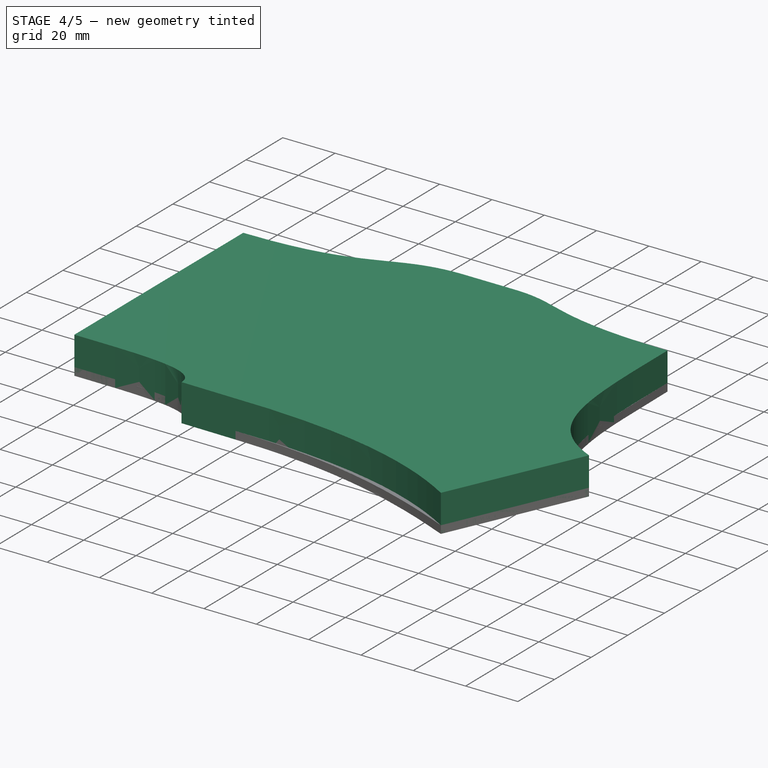
[diagram: stage 4 of 5 — iso view after this stage's code; geometry added in this stage tinted green]
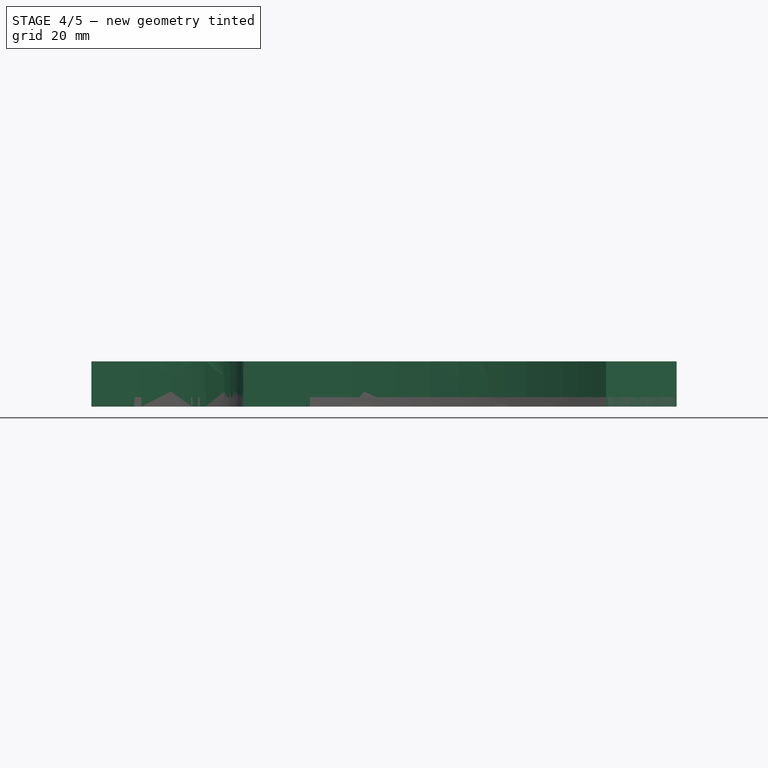
[diagram: stage 4 of 5 — front view after this stage's code; geometry added in this stage tinted green]
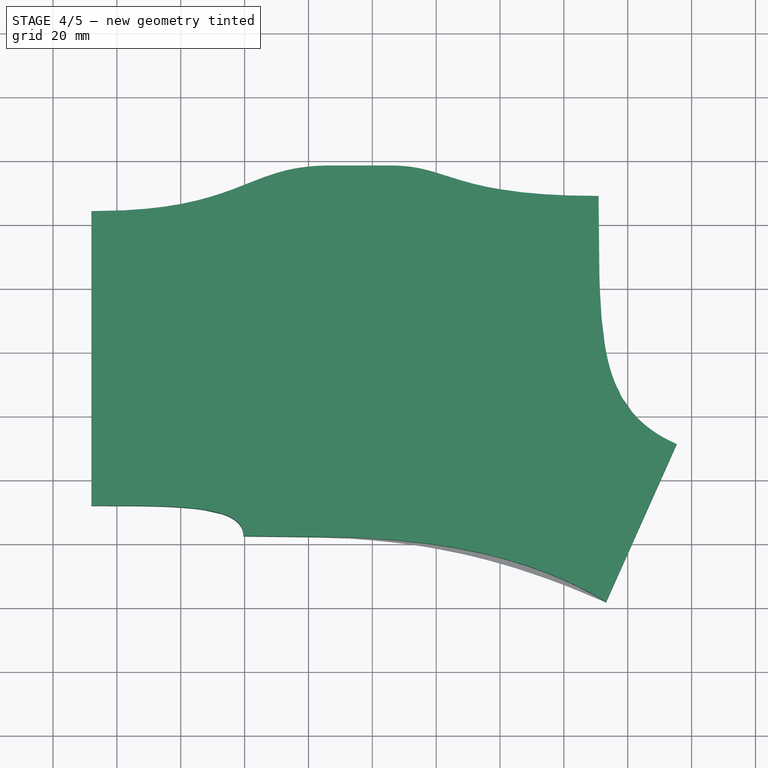
[diagram: stage 4 of 5 — top view after this stage's code; geometry added in this stage tinted green]
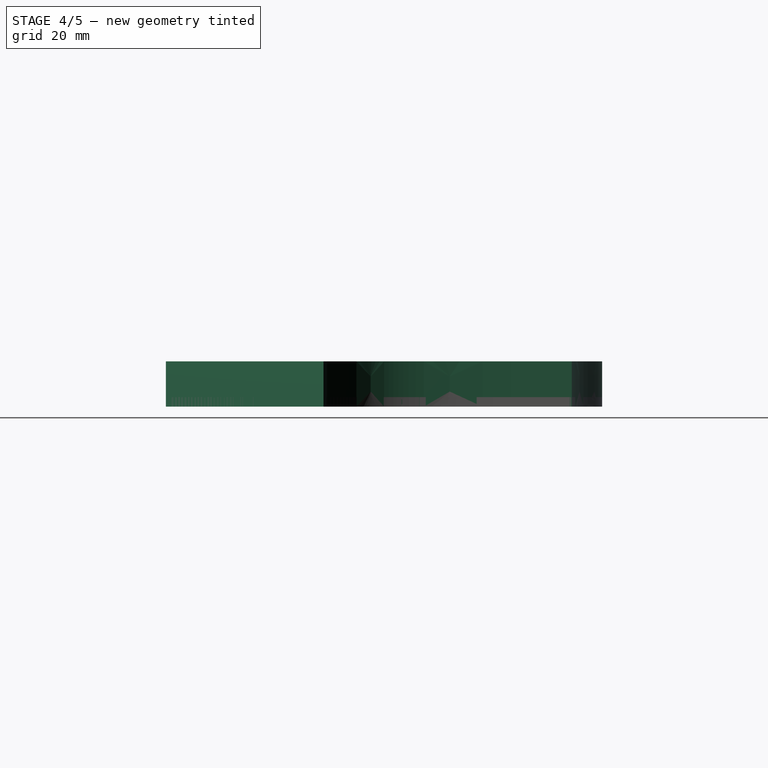
[diagram: stage 4 of 5 — right view after this stage's code; geometry added in this stage tinted green]
FEATURE [Sketcher::SketchObject] Sketch009  label="switch_holes"
  FullyConstrained = false
  MapMode = 2
  Support = -> [Pad001]
  expr: Constraints[381] = <<Constants>>.hole
  expr: Constraints[13] = <<Constants>>.grid
  expr: Constraints[7] = <<Constants>>.grid
  expr: Constraints[366] = <<Constants>>.grid / 4 + <<Constants>>.spacing / 2
  expr: Constraints[364] = <<Constants>>.grid / 4 - <<Constants>>.spacing / 2
  expr: Constraints[356] = <<Constants>>.spacing / 2
  expr: Constraints[358] = <<Constants>>.grid / 2 - <<Constants>>.spacing / 2
  expr: Constraints[60] = <<Constants>>.hole
  expr: Constraints[59] = <<Constants>>.spacing
  expr: Constraints[58] = <<Constants>>.spacing
  expr: Constraints[15] = <<Constants>>.grid
  expr: Constraints[161] = <<Constants>>.spacing
  expr: Constraints[57] = <<Constants>>.spacing
  expr: Constraints[5] = 0.5 * (1 + <<Constants>>.mod_units) * <<Constants>>.grid
  expr: Constraints[2] = (0.5 + <<Constants>>.mod_units) * <<Constants>>.grid
  expr: Constraints[11] = <<Constants>>.grid
  expr: Constraints[9] = <<Constants>>.grid
  sketch-geometry (131):
    g0: LineSegment StartX=38.1 StartY=0 StartZ=0 EndX=38.1 EndY=96.2556 EndZ=0
    g1: LineSegment StartX=14.2875 StartY=0 StartZ=0 EndX=14.2875 EndY=96.8335 EndZ=0
    g2: LineSegment StartX=57.15 StartY=-9.1419 StartZ=0 EndX=57.15 EndY=87.1129 EndZ=0
    g3: LineSegment StartX=76.2 StartY=-4.2747 StartZ=0 EndX=76.2 EndY=91.9809 EndZ=0
    g4: LineSegment StartX=95.25 StartY=-8.95511 StartZ=0 EndX=95.25 EndY=87.3005 EndZ=0
    g5: LineSegment StartX=114.3 StartY=-8.94744 StartZ=0 EndX=114.3 EndY=87.2928 EndZ=0
    g6: LineSegment StartX=133.35 StartY=-7.45738 StartZ=0 EndX=133.35 EndY=88.7982 EndZ=0
    g7: LineSegment StartX=7.2875 StartY=16.525 StartZ=0 EndX=21.2875 EndY=16.525 EndZ=0
    g8: LineSegment StartX=21.2875 StartY=16.525 StartZ=0 EndX=21.2875 EndY=2.525 EndZ=0
    g9: LineSegment StartX=21.2875 StartY=2.525 StartZ=0 EndX=7.2875 EndY=2.525 EndZ=0
    g10: LineSegment StartX=7.2875 StartY=2.525 StartZ=0 EndX=7.2875 EndY=16.525 EndZ=0
    g11: LineSegment StartX=7.2875 StartY=35.575 StartZ=0 EndX=21.2875 EndY=35.575 EndZ=0
    g12: LineSegment StartX=21.2875 StartY=35.575 StartZ=0 EndX=21.2875 EndY=21.575 EndZ=0
    g13: LineSegment StartX=21.2875 StartY=21.575 StartZ=0 EndX=7.2875 EndY=21.575 EndZ=0
    g14: LineSegment StartX=7.2875 StartY=21.575 StartZ=0 EndX=7.2875 EndY=35.575 EndZ=0
    g15: LineSegment StartX=7.2875 StartY=54.625 StartZ=0 EndX=21.2875 EndY=54.625 EndZ=0
    g16: LineSegment StartX=21.2875 StartY=54.625 StartZ=0 EndX=21.2875 EndY=40.625 EndZ=0
    g17: LineSegment StartX=21.2875 StartY=40.625 StartZ=0 EndX=7.2875 EndY=40.625 EndZ=0
    g18: LineSegment StartX=7.2875 StartY=40.625 StartZ=0 EndX=7.2875 EndY=54.625 EndZ=0
    g19: LineSegment StartX=7.2875 StartY=73.675 StartZ=0 EndX=21.2875 EndY=73.675 EndZ=0
    g20: LineSegment StartX=21.2875 StartY=73.675 StartZ=0 EndX=21.2875 EndY=59.675 EndZ=0
    g21: LineSegment StartX=21.2875 StartY=59.675 StartZ=0 EndX=7.2875 EndY=59.675 EndZ=0
    g22: LineSegment StartX=7.2875 StartY=59.675 StartZ=0 EndX=7.2875 EndY=73.675 EndZ=0
    g23: LineSegment StartX=31.1 StartY=16.525 StartZ=0 EndX=45.1 EndY=16.525 EndZ=0
    g24: LineSegment StartX=45.1 StartY=16.525 StartZ=0 EndX=45.1 EndY=2.525 EndZ=0
    g25: LineSegment StartX=45.1 StartY=2.525 StartZ=0 EndX=31.1 EndY=2.525 EndZ=0
    g26: LineSegment StartX=31.1 StartY=2.525 StartZ=0 EndX=31.1 EndY=16.525 EndZ=0
    g27: LineSegment StartX=31.1 StartY=35.575 StartZ=0 EndX=45.1 EndY=35.575 EndZ=0
    g28: LineSegment StartX=45.1 StartY=35.575 StartZ=0 EndX=45.1 EndY=21.575 EndZ=0
    g29: LineSegment StartX=45.1 StartY=21.575 StartZ=0 EndX=31.1 EndY=21.575 EndZ=0
    g30: LineSegment StartX=31.1 StartY=21.575 StartZ=0 EndX=31.1 EndY=35.575 EndZ=0
    g31: LineSegment StartX=31.1 StartY=54.625 StartZ=0 EndX=45.1 EndY=54.625 EndZ=0
    g32: LineSegment StartX=45.1 StartY=54.625 StartZ=0 EndX=45.1 EndY=40.625 EndZ=0
    g33: LineSegment StartX=45.1 StartY=40.625 StartZ=0 EndX=31.1 EndY=40.625 EndZ=0
    g34: LineSegment StartX=31.1 StartY=40.625 StartZ=0 EndX=31.1 EndY=54.625 EndZ=0
    g35: LineSegment StartX=31.1 StartY=73.675 StartZ=0 EndX=45.1 EndY=73.675 EndZ=0
    g36: LineSegment StartX=45.1 StartY=73.675 StartZ=0 EndX=45.1 EndY=59.675 EndZ=0
    g37: LineSegment StartX=45.1 StartY=59.675 StartZ=0 EndX=31.1 EndY=59.675 EndZ=0
    g38: LineSegment StartX=31.1 StartY=59.675 StartZ=0 EndX=31.1 EndY=73.675 EndZ=0
    g39: LineSegment StartX=50.15 StartY=7 StartZ=0 EndX=64.15 EndY=7 EndZ=0
    g40: LineSegment StartX=64.15 StartY=7 StartZ=0 EndX=64.15 EndY=-7 EndZ=0
    g41: LineSegment StartX=64.15 StartY=-7 StartZ=0 EndX=50.15 EndY=-7 EndZ=0
    g42: LineSegment StartX=50.15 StartY=-7 StartZ=0 EndX=50.15 EndY=7 EndZ=0
    g43: LineSegment StartX=50.15 StartY=26.05 StartZ=0 EndX=64.15 EndY=26.05 EndZ=0
    g44: LineSegment StartX=64.15 StartY=26.05 StartZ=0 EndX=64.15 EndY=12.05 EndZ=0
    g45: LineSegment StartX=64.15 StartY=12.05 StartZ=0 EndX=50.15 EndY=12.05 EndZ=0
    g46: LineSegment StartX=50.15 StartY=12.05 StartZ=0 EndX=50.15 EndY=26.05 EndZ=0
    g47: LineSegment StartX=50.15 StartY=45.1 StartZ=0 EndX=64.15 EndY=45.1 EndZ=0
    g48: LineSegment StartX=64.15 StartY=45.1 StartZ=0 EndX=64.15 EndY=31.1 EndZ=0
    g49: LineSegment StartX=64.15 StartY=31.1 StartZ=0 EndX=50.15 EndY=31.1 EndZ=0
    g50: LineSegment StartX=50.15 StartY=31.1 StartZ=0 EndX=50.15 EndY=45.1 EndZ=0
    g51: LineSegment StartX=50.15 StartY=64.15 StartZ=0 EndX=64.15 EndY=64.15 EndZ=0
    g52: LineSegment StartX=64.15 StartY=64.15 StartZ=0 EndX=64.15 EndY=50.15 EndZ=0
    g53: LineSegment StartX=64.15 StartY=50.15 StartZ=0 EndX=50.15 EndY=50.15 EndZ=0
    g54: LineSegment StartX=50.15 StartY=50.15 StartZ=0 EndX=50.15 EndY=64.15 EndZ=0
    g55: LineSegment StartX=50.15 StartY=69.2 StartZ=0 EndX=64.15 EndY=69.2 EndZ=0
    g56: LineSegment StartX=64.15 StartY=69.2 StartZ=0 EndX=64.15 EndY=83.2 EndZ=0
    g57: LineSegment StartX=64.15 StartY=83.2 StartZ=0 EndX=50.15 EndY=83.2 EndZ=0
    g58: LineSegment StartX=50.15 StartY=83.2 StartZ=0 EndX=50.15 EndY=69.2 EndZ=0
    g59: LineSegment StartX=69.2 StartY=11.7625 StartZ=0 EndX=83.2 EndY=11.7625 EndZ=0
    g60: LineSegment StartX=83.2 StartY=11.7625 StartZ=0 EndX=83.2 EndY=-2.2375 EndZ=0
    g61: LineSegment StartX=83.2 StartY=-2.2375 StartZ=0 EndX=69.2 EndY=-2.2375 EndZ=0
    g62: LineSegment StartX=69.2 StartY=-2.2375 StartZ=0 EndX=69.2 EndY=11.7625 EndZ=0
    g63: LineSegment StartX=69.2 StartY=30.8125 StartZ=0 EndX=83.2 EndY=30.8125 EndZ=0
    g64: LineSegment StartX=83.2 StartY=30.8125 StartZ=0 EndX=83.2 EndY=16.8125 EndZ=0
    g65: LineSegment StartX=83.2 StartY=16.8125 StartZ=0 EndX=69.2 EndY=16.8125 EndZ=0
    g66: LineSegment StartX=69.2 StartY=16.8125 StartZ=0 EndX=69.2 EndY=30.8125 EndZ=0
    g67: LineSegment StartX=69.2 StartY=49.8625 StartZ=0 EndX=83.2 EndY=49.8625 EndZ=0
    g68: LineSegment StartX=83.2 StartY=49.8625 StartZ=0 EndX=83.2 EndY=35.8625 EndZ=0
    g69: LineSegment StartX=83.2 StartY=35.8625 StartZ=0 EndX=69.2 EndY=35.8625 EndZ=0
    g70: LineSegment StartX=69.2 StartY=35.8625 StartZ=0 EndX=69.2 EndY=49.8625 EndZ=0
    g71: LineSegment StartX=69.2 StartY=68.9125 StartZ=0 EndX=83.2 EndY=68.9125 EndZ=0
    g72: LineSegment StartX=83.2 StartY=68.9125 StartZ=0 EndX=83.2 EndY=54.9125 EndZ=0
    g73: LineSegment StartX=83.2 StartY=54.9125 StartZ=0 EndX=69.2 EndY=54.9125 EndZ=0
    g74: LineSegment StartX=69.2 StartY=54.9125 StartZ=0 EndX=69.2 EndY=68.9125 EndZ=0
    g75: LineSegment StartX=69.2 StartY=73.9625 StartZ=0 EndX=83.2 EndY=73.9625 EndZ=0
    g76: LineSegment StartX=83.2 StartY=73.9625 StartZ=0 EndX=83.2 EndY=87.9625 EndZ=0
    g77: LineSegment StartX=83.2 StartY=87.9625 StartZ=0 EndX=69.2 EndY=87.9625 EndZ=0
    g78: LineSegment StartX=69.2 StartY=87.9625 StartZ=0 EndX=69.2 EndY=73.9625 EndZ=0
    g79: LineSegment StartX=88.25 StartY=7 StartZ=0 EndX=102.25 EndY=7 EndZ=0
    g80: LineSegment StartX=102.25 StartY=7 StartZ=0 EndX=102.25 EndY=-7 EndZ=0
    g81: LineSegment StartX=102.25 StartY=-7 StartZ=0 EndX=88.25 EndY=-7 EndZ=0
    g82: LineSegment StartX=88.25 StartY=-7 StartZ=0 EndX=88.25 EndY=7 EndZ=0
    g83: LineSegment StartX=88.25 StartY=26.05 StartZ=0 EndX=102.25 EndY=26.05 EndZ=0
    g84: LineSegment StartX=102.25 StartY=26.05 StartZ=0 EndX=102.25 EndY=12.05 EndZ=0
    g85: LineSegment StartX=102.25 StartY=12.05 StartZ=0 EndX=88.25 EndY=12.05 EndZ=0
    g86: LineSegment StartX=88.25 StartY=12.05 StartZ=0 EndX=88.25 EndY=26.05 EndZ=0
    g87: LineSegment StartX=88.25 StartY=45.1 StartZ=0 EndX=102.25 EndY=45.1 EndZ=0
    g88: LineSegment StartX=102.25 StartY=45.1 StartZ=0 EndX=102.25 EndY=31.1 EndZ=0
    g89: LineSegment StartX=102.25 StartY=31.1 StartZ=0 EndX=88.25 EndY=31.1 EndZ=0
    g90: LineSegment StartX=88.25 StartY=31.1 StartZ=0 EndX=88.25 EndY=45.1 EndZ=0
    g91: LineSegment StartX=88.25 StartY=64.15 StartZ=0 EndX=102.25 EndY=64.15 EndZ=0
    g92: LineSegment StartX=102.25 StartY=64.15 StartZ=0 EndX=102.25 EndY=50.15 EndZ=0
    g93: LineSegment StartX=102.25 StartY=50.15 StartZ=0 EndX=88.25 EndY=50.15 EndZ=0
    g94: LineSegment StartX=88.25 StartY=50.15 StartZ=0 EndX=88.25 EndY=64.15 EndZ=0
    g95: LineSegment StartX=88.25 StartY=69.2 StartZ=0 EndX=102.25 EndY=69.2 EndZ=0
    g96: LineSegment StartX=102.25 StartY=69.2 StartZ=0 EndX=102.25 EndY=83.2 EndZ=0
    g97: LineSegment StartX=102.25 StartY=83.2 StartZ=0 EndX=88.25 EndY=83.2 EndZ=0
    g98: LineSegment StartX=88.25 StartY=83.2 StartZ=0 EndX=88.25 EndY=69.2 EndZ=0
    g99: LineSegment StartX=107.3 StartY=21.2875 StartZ=0 EndX=121.3 EndY=21.2875 EndZ=0
    g100: LineSegment StartX=121.3 StartY=21.2875 StartZ=0 EndX=121.3 EndY=7.2875 EndZ=0
    g101: LineSegment StartX=121.3 StartY=7.2875 StartZ=0 EndX=107.3 EndY=7.2875 EndZ=0
    g102: LineSegment StartX=107.3 StartY=7.2875 StartZ=0 EndX=107.3 EndY=21.2875 EndZ=0
    g103: LineSegment StartX=107.3 StartY=40.3375 StartZ=0 EndX=121.3 EndY=40.3375 EndZ=0
    g104: LineSegment StartX=121.3 StartY=40.3375 StartZ=0 EndX=121.3 EndY=26.3375 EndZ=0
    g105: LineSegment StartX=121.3 StartY=26.3375 StartZ=0 EndX=107.3 EndY=26.3375 EndZ=0
    g106: LineSegment StartX=107.3 StartY=26.3375 StartZ=0 EndX=107.3 EndY=40.3375 EndZ=0
    g107: LineSegment StartX=107.3 StartY=59.3875 StartZ=0 EndX=121.3 EndY=59.3875 EndZ=0
    g108: LineSegment StartX=121.3 StartY=59.3875 StartZ=0 EndX=121.3 EndY=45.3875 EndZ=0
    g109: LineSegment StartX=121.3 StartY=45.3875 StartZ=0 EndX=107.3 EndY=45.3875 EndZ=0
    g110: LineSegment StartX=107.3 StartY=45.3875 StartZ=0 EndX=107.3 EndY=59.3875 EndZ=0
    g111: LineSegment StartX=107.3 StartY=78.4375 StartZ=0 EndX=121.3 EndY=78.4375 EndZ=0
    g112: LineSegment StartX=121.3 StartY=78.4375 StartZ=0 EndX=121.3 EndY=64.4375 EndZ=0
    g113: LineSegment StartX=121.3 StartY=64.4375 StartZ=0 EndX=107.3 EndY=64.4375 EndZ=0
    g114: LineSegment StartX=107.3 StartY=64.4375 StartZ=0 EndX=107.3 EndY=78.4375 EndZ=0
    g115: LineSegment StartX=126.35 StartY=40.3375 StartZ=0 EndX=140.35 EndY=40.3375 EndZ=0
    g116: LineSegment StartX=140.35 StartY=40.3375 StartZ=0 EndX=140.35 EndY=26.3375 EndZ=0
    g117: LineSegment StartX=140.35 StartY=26.3375 StartZ=0 EndX=126.35 EndY=26.3375 EndZ=0
    g118: LineSegment StartX=126.35 StartY=26.3375 StartZ=0 EndX=126.35 EndY=40.3375 EndZ=0
    g119: LineSegment StartX=126.35 StartY=59.3875 StartZ=0 EndX=140.35 EndY=59.3875 EndZ=0
    g120: LineSegment StartX=140.35 StartY=59.3875 StartZ=0 EndX=140.35 EndY=45.3875 EndZ=0
    g121: LineSegment StartX=140.35 StartY=45.3875 StartZ=0 EndX=126.35 EndY=45.3875 EndZ=0
    g122: LineSegment StartX=126.35 StartY=45.3875 StartZ=0 EndX=126.35 EndY=59.3875 EndZ=0
    g123: LineSegment StartX=126.35 StartY=78.4375 StartZ=0 EndX=140.35 EndY=78.4375 EndZ=0
    g124: LineSegment StartX=140.35 StartY=78.4375 StartZ=0 EndX=140.35 EndY=64.4375 EndZ=0
    g125: LineSegment StartX=140.35 StartY=64.4375 StartZ=0 EndX=126.35 EndY=64.4375 EndZ=0
    g126: LineSegment StartX=126.35 StartY=64.4375 StartZ=0 EndX=126.35 EndY=78.4375 EndZ=0
    g127: LineSegment StartX=126.35 StartY=21.2875 StartZ=0 EndX=140.35 EndY=21.2875 EndZ=0
    g128: LineSegment StartX=140.35 StartY=21.2875 StartZ=0 EndX=140.35 EndY=7.2875 EndZ=0
    g129: LineSegment StartX=140.35 StartY=7.2875 StartZ=0 EndX=126.35 EndY=7.2875 EndZ=0
    g130: LineSegment StartX=126.35 StartY=7.2875 StartZ=0 EndX=126.35 EndY=21.2875 EndZ=0
  constraints (382):
    c: PointOnObject(g0,g-1)
    c: Vertical(g0)
    c: DistanceX(g-1,g0) = 38.1
    c: Vertical(g1)
    c: PointOnObject(g1,g-1)
    c: DistanceX(g1,g0) = 23.8125
    c: Vertical(g2)
    c: DistanceX(g0,g2) = 19.05
    c: Vertical(g3)
    c: DistanceX(g2,g3) = 19.05
    c: Vertical(g4)
    c: DistanceX(g3,g4) = 19.05
    c: Vertical(g5)
    c: DistanceX(g4,g5) = 19.05
    c: Vertical(g6)
    c: DistanceX(g5,g6) = 19.05
    c: Coincident(g7,g8)
    c: Coincident(g8,g9)
    c: Coincident(g9,g10)
    c: Coincident(g10,g7)
    c: Horizontal(g7)
    c: Vertical(g8)
    c: Vertical(g10)
    c: Coincident(g11,g12)
    c: Coincident(g12,g13)
    c: Coincident(g13,g14)
    c: Coincident(g14,g11)
    c: Horizontal(g11)
    c: Horizontal(g13)
    c: Vertical(g12)
    c: Vertical(g14)
    c: Coincident(g15,g16)
    c: Coincident(g16,g17)
    c: Coincident(g17,g18)
    c: Coincident(g18,g15)
    c: Horizontal(g15)
    c: Horizontal(g17)
    c: Vertical(g16)
    c: Vertical(g18)
    c: Coincident(g19,g20)
    c: Coincident(g20,g21)
    c: Coincident(g21,g22)
    c: Coincident(g22,g19)
    c: Horizontal(g19)
    c: Horizontal(g21)
    c: Vertical(g20)
    c: Vertical(g22)
    c: Equal(g21,g20)
    c: Equal(g15,g16)
    c: Equal(g16,g12)
    c: Equal(g12,g20)
    c: Equal(g19,g8)
    c: Equal(g8,g7)
    c: Equal(g7,g11)
    c: Vertical(g20,g16)
    c: Vertical(g16,g12)
    c: Vertical(g12,g8)
    c: DistanceY(g15,g20) = 5.05
    c: DistanceY(g11,g16) = 5.05
    c: DistanceY(g7,g12) = 5.05
    c: Distance(g9) = 14
    c: Coincident(g23,g24)
    c: Coincident(g24,g25)
    c: Coincident(g25,g26)
    c: Coincident(g26,g23)
    c: Horizontal(g23)
    c: Vertical(g24)
    c: Vertical(g26)
    c: Coincident(g27,g28)
    c: Coincident(g28,g29)
    c: Coincident(g29,g30)
    c: Coincident(g30,g27)
    c: Horizontal(g27)
    c: Horizontal(g29)
    c: Vertical(g28)
    c: Vertical(g30)
    c: Coincident(g31,g32)
    c: Coincident(g32,g33)
    c: Coincident(g33,g34)
    c: Coincident(g34,g31)
    c: Horizontal(g31)
    c: Horizontal(g33)
    c: Vertical(g32)
    c: Vertical(g34)
    c: Coincident(g35,g36)
    c: Coincident(g36,g37)
    c: Coincident(g37,g38)
    c: Coincident(g38,g35)
    c: Horizontal(g35)
    c: Horizontal(g37)
    c: Vertical(g36)
    c: Vertical(g38)
    c: Equal(g37,g36)
    c: Equal(g31,g32)
    c: Equal(g32,g28)
    c: Equal(g28,g36)
    c: Equal(g35,g24)
    c: Equal(g24,g23)
    c: Equal(g23,g27)
    c: Vertical(g36,g32)
    c: Vertical(g32,g28)
    c: Vertical(g28,g24)
    c: DistanceY(g31,g36) = 5.05
    c: DistanceY(g27,g32) = 5.05
    c: DistanceY(g23,g28) = 5.05
    c: Equal(g9,g25) = 14
    c: Coincident(g39,g40)
    c: Coincident(g40,g41)
    c: Coincident(g41,g42)
    c: Coincident(g42,g39)
    c: Horizontal(g39)
    c: Vertical(g40)
    c: Vertical(g42)
    c: Coincident(g43,g44)
    c: Coincident(g44,g45)
    c: Coincident(g45,g46)
    c: Coincident(g46,g43)
    c: Horizontal(g43)
    c: Horizontal(g45)
    c: Vertical(g44)
    c: Vertical(g46)
    c: Coincident(g47,g48)
    c: Coincident(g48,g49)
    c: Coincident(g49,g50)
    c: Coincident(g50,g47)
    c: Horizontal(g47)
    c: Horizontal(g49)
    c: Vertical(g48)
    c: Vertical(g50)
    c: Coincident(g51,g52)
    c: Coincident(g52,g53)
    c: Coincident(g53,g54)
    c: Coincident(g54,g51)
    c: Horizontal(g51)
    c: Horizontal(g53)
    c: Vertical(g52)
    c: Vertical(g54)
    c: Equal(g53,g52)
    c: Equal(g47,g48)
    c: Equal(g48,g44)
    c: Equal(g44,g52)
    c: Equal(g51,g40)
    c: Equal(g40,g39)
    c: Equal(g39,g43)
    c: Vertical(g52,g48)
    c: Vertical(g48,g44)
    c: Vertical(g44,g40)
    c: DistanceY(g47,g52) = 5.05
    c: DistanceY(g43,g48) = 5.05
    c: DistanceY(g39,g44) = 5.05
    c: Coincident(g55,g56)
    c: Coincident(g56,g57)
    c: Coincident(g57,g58)
    c: Coincident(g58,g55)
    c: Horizontal(g55)
    c: Horizontal(g57)
    c: Vertical(g56)
    c: Vertical(g58)
    c: Vertical(g55,g51)
    c: Equal(g56,g57)
    c: Equal(g52,g56)
    c: DistanceY(g51,g55) = 5.05
    c: Coincident(g59,g60)
    c: Coincident(g60,g61)
    c: Coincident(g61,g62)
    c: Coincident(g62,g59)
    c: Horizontal(g59)
    c: Vertical(g60)
    c: Vertical(g62)
    c: Coincident(g63,g64)
    c: Coincident(g64,g65)
    c: Coincident(g65,g66)
    c: Coincident(g66,g63)
    c: Horizontal(g63)
    c: Horizontal(g65)
    c: Vertical(g64)
    c: Vertical(g66)
    c: Coincident(g67,g68)
    c: Coincident(g68,g69)
    c: Coincident(g69,g70)
    c: Coincident(g70,g67)
    c: Horizontal(g67)
    c: Horizontal(g69)
    c: Vertical(g68)
    c: Vertical(g70)
    c: Coincident(g71,g72)
    c: Coincident(g72,g73)
    c: Coincident(g73,g74)
    c: Coincident(g74,g71)
    c: Horizontal(g71)
    c: Horizontal(g73)
    c: Vertical(g72)
    c: Vertical(g74)
    c: Equal(g73,g72)
    c: Equal(g67,g68)
    c: Equal(g68,g64)
    c: Equal(g64,g72)
    c: Equal(g71,g60)
    c: Equal(g60,g59)
    c: Equal(g59,g63)
    c: Vertical(g72,g68)
    c: Vertical(g68,g64)
    c: Vertical(g64,g60)
    c: DistanceY(g67,g72) = 5.05
    c: DistanceY(g63,g68) = 5.05
    c: DistanceY(g59,g64) = 5.05
    c: Coincident(g75,g76)
    c: Coincident(g76,g77)
    c: Coincident(g77,g78)
    c: Coincident(g78,g75)
    c: Horizontal(g75)
    c: Horizontal(g77)
    c: Vertical(g76)
    c: Vertical(g78)
    c: Vertical(g75,g71)
    c: Equal(g76,g77)
    c: Equal(g72,g76)
    c: DistanceY(g71,g75) = 5.05
    c: Coincident(g79,g80)
    c: Coincident(g80,g81)
    c: Coincident(g81,g82)
    c: Coincident(g82,g79)
    c: Horizontal(g79)
    c: Vertical(g80)
    c: Vertical(g82)
    c: Coincident(g83,g84)
    c: Coincident(g84,g85)
    c: Coincident(g85,g86)
    c: Coincident(g86,g83)
    c: Horizontal(g83)
    c: Horizontal(g85)
    c: Vertical(g84)
    c: Vertical(g86)
    c: Coincident(g87,g88)
    c: Coincident(g88,g89)
    c: Coincident(g89,g90)
    c: Coincident(g90,g87)
    c: Horizontal(g87)
    c: Horizontal(g89)
    c: Vertical(g88)
    c: Vertical(g90)
    c: Coincident(g91,g92)
    c: Coincident(g92,g93)
    c: Coincident(g93,g94)
    c: Coincident(g94,g91)
    c: Horizontal(g91)
    c: Horizontal(g93)
    c: Vertical(g92)
    c: Vertical(g94)
    c: Equal(g93,g92)
    c: Equal(g87,g88)
    c: Equal(g88,g84)
    c: Equal(g84,g92)
    c: Equal(g91,g80)
    c: Equal(g80,g79)
    c: Equal(g79,g83)
    c: Vertical(g92,g88)
    c: Vertical(g88,g84)
    c: Vertical(g84,g80)
    c: DistanceY(g87,g92) = 5.05
    c: DistanceY(g83,g88) = 5.05
    c: DistanceY(g79,g84) = 5.05
    c: Coincident(g95,g96)
    c: Coincident(g96,g97)
    c: Coincident(g97,g98)
    c: Coincident(g98,g95)
    c: Horizontal(g95)
    c: Horizontal(g97)
    c: Vertical(g96)
    c: Vertical(g98)
    c: Vertical(g95,g91)
    c: Equal(g96,g97)
    c: Equal(g92,g96)
    c: DistanceY(g91,g95) = 5.05
    c: Coincident(g99,g100)
    c: Coincident(g100,g101)
    c: Coincident(g101,g102)
    c: Coincident(g102,g99)
    c: Horizontal(g99)
    c: Vertical(g100)
    c: Vertical(g102)
    c: Coincident(g103,g104)
    c: Coincident(g104,g105)
    c: Coincident(g105,g106)
    c: Coincident(g106,g103)
    c: Horizontal(g103)
    c: Horizontal(g105)
    c: Vertical(g104)
    c: Vertical(g106)
    c: Coincident(g107,g108)
    c: Coincident(g108,g109)
    c: Coincident(g109,g110)
    c: Coincident(g110,g107)
    c: Horizontal(g107)
    c: Horizontal(g109)
    c: Vertical(g108)
    c: Vertical(g110)
    c: Coincident(g111,g112)
    c: Coincident(g112,g113)
    c: Coincident(g113,g114)
    c: Coincident(g114,g111)
    c: Horizontal(g111)
    c: Horizontal(g113)
    c: Vertical(g112)
    c: Vertical(g114)
    c: Equal(g113,g112)
    c: Equal(g107,g108)
    c: Equal(g108,g104)
    c: Equal(g104,g112)
    c: Equal(g111,g100)
    c: Equal(g100,g99)
    c: Equal(g99,g103)
    c: Vertical(g112,g108)
    c: Vertical(g108,g104)
    c: Vertical(g104,g100)
    c: DistanceY(g107,g112) = 5.05
    c: DistanceY(g103,g108) = 5.05
    c: DistanceY(g99,g104) = 5.05
    c: Coincident(g115,g116)
    c: Coincident(g116,g117)
    c: Coincident(g117,g118)
    c: Coincident(g118,g115)
    c: Horizontal(g115)
    c: Vertical(g116)
    c: Vertical(g118)
    c: Coincident(g119,g120)
    c: Coincident(g120,g121)
    c: Coincident(g121,g122)
    c: Coincident(g122,g119)
    c: Horizontal(g119)
    c: Horizontal(g121)
    c: Vertical(g120)
    c: Vertical(g122)
    c: Coincident(g123,g124)
    c: Coincident(g124,g125)
    c: Coincident(g125,g126)
    c: Coincident(g126,g123)
    c: Horizontal(g123)
    c: Horizontal(g125)
    c: Vertical(g124)
    c: Vertical(g126)
    c: Equal(g123,g124)
    c: Equal(g116,g115)
    c: Equal(g115,g119)
    c: Vertical(g124,g120)
    c: Vertical(g120,g116)
    c: DistanceY(g119,g124) = 5.05
    c: DistanceY(g115,g120) = 5.05
    c: Equal(g9,g117) = 14
    c: Symmetric(g8,g9,g1)
    c: Symmetric(g24,g25,g0)
    c: Symmetric(g40,g41,g2)
    c: Symmetric(g60,g61,g3)
    c: Symmetric(g80,g81,g4)
    c: Symmetric(g100,g101,g5)
    c: Symmetric(g116,g117,g6)
    c: DistanceY(g-1,g9) = 2.525
    c: Horizontal(g8,g25)
    c: DistanceY(g41,g-1) = 7
    c: Equal(g41,g25)
    c: Equal(g25,g61)
    c: Equal(g61,g81)
    c: Equal(g81,g101)
    c: Equal(g117,g9)
    c: DistanceY(g61,g-1) = 2.2375
    c: Horizontal(g81,g40)
    c: DistanceY(g-1,g101) = 7.2875
    c: Horizontal(g111,g123)
    c: Equal(g123,g119)
    c: Equal(g124,g120)
    c: Coincident(g127,g128)
    c: Coincident(g128,g129)
    c: Coincident(g129,g130)
    c: Coincident(g130,g127)
    c: Horizontal(g127)
    c: Vertical(g128)
    c: Vertical(g130)
    c: Equal(g128,g127)
    c: Horizontal(g129,g100)
    c: Horizontal(g100,g128)
    c: Vertical(g127,g117)
    c: Distance(g129) = 14
FEATURE [Sketcher::SketchObject] Sketch011  label="switch_holes middle"
  FullyConstrained = false
  MapMode = 5
  Placement = pos=(0,0,3) rot=(0,0,1;0rad)
  Support = -> [Pad001]
  expr: Constraints[9] = Sketch009.Constraints[9]
  expr: Constraints[55] = Sketch009.Constraints[149]
  expr: Constraints[187] = Spreadsheet.hole
  expr: Constraints[362] = Spreadsheet.kerf / 2
  expr: Constraints[166] = Sketch009.Constraints[260]
  expr: Constraints[363] = Spreadsheet.kerf / 2
  expr: Constraints[167] = Sketch009.Constraints[261]
  expr: Constraints[354] = Spreadsheet.kerf / 2
  expr: Constraints[179] = Sketch009.Constraints[273]
  expr: Constraints[185] = Sketch009.Constraints[364]
  expr: Constraints[346] = Spreadsheet.kerf / 2
  expr: Constraints[7] = Sketch009.Constraints[7]
  expr: Constraints[111] = Sketch009.Constraints[205]
  expr: Constraints[183] = Sketch009.Constraints[358]
  expr: Constraints[110] = Sketch009.Constraints[204]
  expr: Constraints[355] = Spreadsheet.kerf / 2
  expr: Constraints[2] = Sketch009.Constraints[2]
  expr: Constraints[5] = Sketch009.Constraints[5]
  expr: Constraints[54] = Sketch009.Constraints[148]
  expr: Constraints[343] = Spreadsheet.kerf / 2
  expr: Constraints[11] = Sketch009.Constraints[11]
  expr: Constraints[53] = Sketch009.Constraints[147]
  expr: Constraints[67] = Sketch009.Constraints[161]
  expr: Constraints[109] = Sketch009.Constraints[203]
  expr: Constraints[165] = Sketch009.Constraints[259]
  expr: Constraints[123] = Sketch009.Constraints[217]
  expr: Constraints[344] = Spreadsheet.kerf / 2
  expr: Constraints[348] = Spreadsheet.kerf / 2
  expr: Constraints[345] = Spreadsheet.kerf / 2
  expr: Constraints[347] = Spreadsheet.kerf / 2
  expr: Constraints[349] = Spreadsheet.kerf / 2
  expr: Constraints[350] = Spreadsheet.kerf / 2
  expr: Constraints[351] = Spreadsheet.kerf / 2
  expr: Constraints[359] = Spreadsheet.kerf / 2
  expr: Constraints[361] = Spreadsheet.kerf / 2
  expr: Constraints[353] = Spreadsheet.kerf / 2
  expr: Constraints[364] = Spreadsheet.kerf / 2
  expr: Constraints[352] = Spreadsheet.kerf / 2
  expr: Constraints[357] = Spreadsheet.kerf / 2
  expr: Constraints[358] = Spreadsheet.kerf / 2
  expr: Constraints[360] = Spreadsheet.kerf / 2
  expr: Constraints[356] = Spreadsheet.kerf / 2
  expr: Constraints[365] = Spreadsheet.kerf / 2
  expr: Constraints[367] = Spreadsheet.kerf / 2
  expr: Constraints[366] = Spreadsheet.kerf / 2
  expr: Constraints[368] = Spreadsheet.kerf / 2
  sketch-geometry (125):
    g0: LineSegment StartX=38.1 StartY=0 StartZ=0 EndX=38.1 EndY=96.2556 EndZ=0
    g1: LineSegment StartX=14.2875 StartY=0 StartZ=0 EndX=14.2875 EndY=96.8335 EndZ=0
    g2: LineSegment StartX=57.15 StartY=-9.1419 StartZ=0 EndX=57.15 EndY=87.1129 EndZ=0
    g3: LineSegment StartX=76.2 StartY=-4.2747 StartZ=0 EndX=76.2 EndY=91.9809 EndZ=0
    g4: LineSegment StartX=95.25 StartY=-8.95511 StartZ=0 EndX=95.25 EndY=87.3005 EndZ=0
    g5: LineSegment StartX=50.15 StartY=7 StartZ=0 EndX=64.15 EndY=7 EndZ=0
    g6: LineSegment StartX=64.15 StartY=7 StartZ=0 EndX=64.15 EndY=-7 EndZ=0
    g7: LineSegment StartX=64.15 StartY=-7 StartZ=0 EndX=50.15 EndY=-7 EndZ=0
    g8: LineSegment StartX=50.15 StartY=-7 StartZ=0 EndX=50.15 EndY=7 EndZ=0
    g9: LineSegment StartX=50.15 StartY=26.05 StartZ=0 EndX=64.15 EndY=26.05 EndZ=0
    g10: LineSegment StartX=64.15 StartY=26.05 StartZ=0 EndX=64.15 EndY=12.05 EndZ=0
    g11: LineSegment StartX=64.15 StartY=12.05 StartZ=0 EndX=50.15 EndY=12.05 EndZ=0
    g12: LineSegment StartX=50.15 StartY=12.05 StartZ=0 EndX=50.15 EndY=26.05 EndZ=0
    g13: LineSegment StartX=50.15 StartY=45.1 StartZ=0 EndX=64.15 EndY=45.1 EndZ=0
    g14: LineSegment StartX=64.15 StartY=45.1 StartZ=0 EndX=64.15 EndY=31.1 EndZ=0
    g15: LineSegment StartX=64.15 StartY=31.1 StartZ=0 EndX=50.15 EndY=31.1 EndZ=0
    g16: LineSegment StartX=50.15 StartY=31.1 StartZ=0 EndX=50.15 EndY=45.1 EndZ=0
    g17: LineSegment StartX=50.15 StartY=64.15 StartZ=0 EndX=64.15 EndY=64.15 EndZ=0
    g18: LineSegment StartX=64.15 StartY=64.15 StartZ=0 EndX=64.15 EndY=50.15 EndZ=0
    g19: LineSegment StartX=64.15 StartY=50.15 StartZ=0 EndX=50.15 EndY=50.15 EndZ=0
    g20: LineSegment StartX=50.15 StartY=50.15 StartZ=0 EndX=50.15 EndY=64.15 EndZ=0
    g21: LineSegment StartX=50.15 StartY=69.2 StartZ=0 EndX=64.15 EndY=69.2 EndZ=0
    g22: LineSegment StartX=64.15 StartY=69.2 StartZ=0 EndX=64.15 EndY=83.2 EndZ=0
    g23: LineSegment StartX=64.15 StartY=83.2 StartZ=0 EndX=50.15 EndY=83.2 EndZ=0
    g24: LineSegment StartX=50.15 StartY=83.2 StartZ=0 EndX=50.15 EndY=69.2 EndZ=0
    g25: LineSegment StartX=69.2 StartY=11.7625 StartZ=0 EndX=83.2 EndY=11.7625 EndZ=0
    g26: LineSegment StartX=83.2 StartY=11.7625 StartZ=0 EndX=83.2 EndY=-2.2375 EndZ=0
    g27: LineSegment StartX=83.2 StartY=-2.2375 StartZ=0 EndX=69.2 EndY=-2.2375 EndZ=0
    g28: LineSegment StartX=69.2 StartY=-2.2375 StartZ=0 EndX=69.2 EndY=11.7625 EndZ=0
    g29: LineSegment StartX=69.2 StartY=30.8125 StartZ=0 EndX=83.2 EndY=30.8125 EndZ=0
    g30: LineSegment StartX=83.2 StartY=30.8125 StartZ=0 EndX=83.2 EndY=16.8125 EndZ=0
    g31: LineSegment StartX=83.2 StartY=16.8125 StartZ=0 EndX=69.2 EndY=16.8125 EndZ=0
    g32: LineSegment StartX=69.2 StartY=16.8125 StartZ=0 EndX=69.2 EndY=30.8125 EndZ=0
    g33: LineSegment StartX=69.2 StartY=49.8625 StartZ=0 EndX=83.2 EndY=49.8625 EndZ=0
    g34: LineSegment StartX=83.2 StartY=49.8625 StartZ=0 EndX=83.2 EndY=35.8625 EndZ=0
    g35: LineSegment StartX=83.2 StartY=35.8625 StartZ=0 EndX=69.2 EndY=35.8625 EndZ=0
    g36: LineSegment StartX=69.2 StartY=35.8625 StartZ=0 EndX=69.2 EndY=49.8625 EndZ=0
    g37: LineSegment StartX=69.2 StartY=68.9125 StartZ=0 EndX=83.2 EndY=68.9125 EndZ=0
    g38: LineSegment StartX=83.2 StartY=68.9125 StartZ=0 EndX=83.2 EndY=54.9125 EndZ=0
    g39: LineSegment StartX=83.2 StartY=54.9125 StartZ=0 EndX=69.2 EndY=54.9125 EndZ=0
    g40: LineSegment StartX=69.2 StartY=54.9125 StartZ=0 EndX=69.2 EndY=68.9125 EndZ=0
    g41: LineSegment StartX=69.2 StartY=73.9625 StartZ=0 EndX=83.2 EndY=73.9625 EndZ=0
    g42: LineSegment StartX=83.2 StartY=73.9625 StartZ=0 EndX=83.2 EndY=87.9625 EndZ=0
    g43: LineSegment StartX=83.2 StartY=87.9625 StartZ=0 EndX=69.2 EndY=87.9625 EndZ=0
    g44: LineSegment StartX=69.2 StartY=87.9625 StartZ=0 EndX=69.2 EndY=73.9625 EndZ=0
    g45: LineSegment StartX=88.25 StartY=7 StartZ=0 EndX=102.25 EndY=7 EndZ=0
    g46: LineSegment StartX=102.25 StartY=7 StartZ=0 EndX=102.25 EndY=-7 EndZ=0
    g47: LineSegment StartX=102.25 StartY=-7 StartZ=0 EndX=88.25 EndY=-7 EndZ=0
    g48: LineSegment StartX=88.25 StartY=-7 StartZ=0 EndX=88.25 EndY=7 EndZ=0
    g49: LineSegment StartX=88.25 StartY=26.05 StartZ=0 EndX=102.25 EndY=26.05 EndZ=0
    g50: LineSegment StartX=102.25 StartY=26.05 StartZ=0 EndX=102.25 EndY=12.05 EndZ=0
    g51: LineSegment StartX=102.25 StartY=12.05 StartZ=0 EndX=88.25 EndY=12.05 EndZ=0
    g52: LineSegment StartX=88.25 StartY=12.05 StartZ=0 EndX=88.25 EndY=26.05 EndZ=0
    g53: LineSegment StartX=88.25 StartY=45.1 StartZ=0 EndX=102.25 EndY=45.1 EndZ=0
    g54: LineSegment StartX=102.25 StartY=45.1 StartZ=0 EndX=102.25 EndY=31.1 EndZ=0
    g55: LineSegment StartX=102.25 StartY=31.1 StartZ=0 EndX=88.25 EndY=31.1 EndZ=0
    g56: LineSegment StartX=88.25 StartY=31.1 StartZ=0 EndX=88.25 EndY=45.1 EndZ=0
    g57: LineSegment StartX=88.25 StartY=64.15 StartZ=0 EndX=102.25 EndY=64.15 EndZ=0
    g58: LineSegment StartX=102.25 StartY=64.15 StartZ=0 EndX=102.25 EndY=50.15 EndZ=0
    g59: LineSegment StartX=102.25 StartY=50.15 StartZ=0 EndX=88.25 EndY=50.15 EndZ=0
    g60: LineSegment StartX=88.25 StartY=50.15 StartZ=0 EndX=88.25 EndY=64.15 EndZ=0
    g61: LineSegment StartX=88.25 StartY=69.2 StartZ=0 EndX=102.25 EndY=69.2 EndZ=0
    g62: LineSegment StartX=102.25 StartY=69.2 StartZ=0 EndX=102.25 EndY=83.2 EndZ=0
    g63: LineSegment StartX=102.25 StartY=83.2 StartZ=0 EndX=88.25 EndY=83.2 EndZ=0
    g64: LineSegment StartX=88.25 StartY=83.2 StartZ=0 EndX=88.25 EndY=69.2 EndZ=0
    g65: LineSegment StartX=50.25 StartY=-6.9 StartZ=0 EndX=64.05 EndY=-6.9 EndZ=0
    g66: LineSegment StartX=64.05 StartY=-6.9 StartZ=0 EndX=64.05 EndY=6.9 EndZ=0
    g67: LineSegment StartX=64.05 StartY=6.9 StartZ=0 EndX=50.25 EndY=6.9 EndZ=0
    g68: LineSegment StartX=50.25 StartY=6.9 StartZ=0 EndX=50.25 EndY=-6.9 EndZ=0
    g69: LineSegment StartX=64.05 StartY=12.15 StartZ=0 EndX=50.25 EndY=12.15 EndZ=0
    g70: LineSegment StartX=50.25 StartY=12.15 StartZ=0 EndX=50.25 EndY=25.95 EndZ=0
    g71: LineSegment StartX=50.25 StartY=25.95 StartZ=0 EndX=64.05 EndY=25.95 EndZ=0
    g72: LineSegment StartX=64.05 StartY=25.95 StartZ=0 EndX=64.05 EndY=12.15 EndZ=0
    g73: LineSegment StartX=64.05 StartY=31.2 StartZ=0 EndX=50.25 EndY=31.2 EndZ=0
    g74: LineSegment StartX=50.25 StartY=31.2 StartZ=0 EndX=50.25 EndY=45 EndZ=0
    g75: LineSegment StartX=50.25 StartY=45 StartZ=0 EndX=64.05 EndY=45 EndZ=0
    g76: LineSegment StartX=64.05 StartY=45 StartZ=0 EndX=64.05 EndY=31.2 EndZ=0
    g77: LineSegment StartX=64.05 StartY=50.25 StartZ=0 EndX=50.25 EndY=50.25 EndZ=0
    g78: LineSegment StartX=50.25 StartY=50.25 StartZ=0 EndX=50.25 EndY=64.05 EndZ=0
    g79: LineSegment StartX=50.25 StartY=64.05 StartZ=0 EndX=64.05 EndY=64.05 EndZ=0
    g80: LineSegment StartX=64.05 StartY=64.05 StartZ=0 EndX=64.05 EndY=50.25 EndZ=0
    g81: LineSegment StartX=64.05 StartY=69.3 StartZ=0 EndX=50.25 EndY=69.3 EndZ=0
    g82: LineSegment StartX=50.25 StartY=69.3 StartZ=0 EndX=50.25 EndY=83.1 EndZ=0
    g83: LineSegment StartX=50.25 StartY=83.1 StartZ=0 EndX=64.05 EndY=83.1 EndZ=0
    g84: LineSegment StartX=64.05 StartY=83.1 StartZ=0 EndX=64.05 EndY=69.3 EndZ=0
    g85: LineSegment StartX=69.3 StartY=87.8625 StartZ=0 EndX=83.1 EndY=87.8625 EndZ=0
    g86: LineSegment StartX=83.1 StartY=87.8625 StartZ=0 EndX=83.1 EndY=74.0625 EndZ=0
    g87: LineSegment StartX=83.1 StartY=74.0625 StartZ=0 EndX=69.3 EndY=74.0625 EndZ=0
    g88: LineSegment StartX=69.3 StartY=74.0625 StartZ=0 EndX=69.3 EndY=87.8625 EndZ=0
    g89: LineSegment StartX=69.3 StartY=68.8125 StartZ=0 EndX=83.1 EndY=68.8125 EndZ=0
    g90: LineSegment StartX=83.1 StartY=68.8125 StartZ=0 EndX=83.1 EndY=55.0125 EndZ=0
    g91: LineSegment StartX=83.1 StartY=55.0125 StartZ=0 EndX=69.3 EndY=55.0125 EndZ=0
    g92: LineSegment StartX=69.3 StartY=55.0125 StartZ=0 EndX=69.3 EndY=68.8125 EndZ=0
    g93: LineSegment StartX=83.1 StartY=49.7625 StartZ=0 EndX=69.3 EndY=49.7625 EndZ=0
    g94: LineSegment StartX=69.3 StartY=49.7625 StartZ=0 EndX=69.3 EndY=35.9625 EndZ=0
    g95: LineSegment StartX=69.3 StartY=35.9625 StartZ=0 EndX=83.1 EndY=35.9625 EndZ=0
    g96: LineSegment StartX=83.1 StartY=35.9625 StartZ=0 EndX=83.1 EndY=49.7625 EndZ=0
    g97: LineSegment StartX=69.3 StartY=30.7125 StartZ=0 EndX=83.1 EndY=30.7125 EndZ=0
    g98: LineSegment StartX=83.1 StartY=30.7125 StartZ=0 EndX=83.1 EndY=16.9125 EndZ=0
    g99: LineSegment StartX=83.1 StartY=16.9125 StartZ=0 EndX=69.3 EndY=16.9125 EndZ=0
    g100: LineSegment StartX=69.3 StartY=16.9125 StartZ=0 EndX=69.3 EndY=30.7125 EndZ=0
    g101: LineSegment StartX=69.3 StartY=11.6625 StartZ=0 EndX=83.1 EndY=11.6625 EndZ=0
    g102: LineSegment StartX=83.1 StartY=11.6625 StartZ=0 EndX=83.1 EndY=-2.1375 EndZ=0
    g103: LineSegment StartX=83.1 StartY=-2.1375 StartZ=0 EndX=69.3 EndY=-2.1375 EndZ=0
    g104: LineSegment StartX=69.3 StartY=-2.1375 StartZ=0 EndX=69.3 EndY=11.6625 EndZ=0
    g105: LineSegment StartX=88.35 StartY=6.9 StartZ=0 EndX=102.15 EndY=6.9 EndZ=0
    g106: LineSegment StartX=102.15 StartY=6.9 StartZ=0 EndX=102.15 EndY=-6.9 EndZ=0
    g107: LineSegment StartX=102.15 StartY=-6.9 StartZ=0 EndX=88.35 EndY=-6.9 EndZ=0
    g108: LineSegment StartX=88.35 StartY=-6.9 StartZ=0 EndX=88.35 EndY=6.9 EndZ=0
    g109: LineSegment StartX=102.15 StartY=12.15 StartZ=0 EndX=88.35 EndY=12.15 EndZ=0
    g110: LineSegment StartX=88.35 StartY=12.15 StartZ=0 EndX=88.35 EndY=25.95 EndZ=0
    g111: LineSegment StartX=88.35 StartY=25.95 StartZ=0 EndX=102.15 EndY=25.95 EndZ=0
    g112: LineSegment StartX=102.15 StartY=25.95 StartZ=0 EndX=102.15 EndY=12.15 EndZ=0
    g113: LineSegment StartX=102.15 StartY=31.2 StartZ=0 EndX=88.35 EndY=31.2 EndZ=0
    g114: LineSegment StartX=88.35 StartY=31.2 StartZ=0 EndX=88.35 EndY=45 EndZ=0
    g115: LineSegment StartX=88.35 StartY=45 StartZ=0 EndX=102.15 EndY=45 EndZ=0
    g116: LineSegment StartX=102.15 StartY=45 StartZ=0 EndX=102.15 EndY=31.2 EndZ=0
    g117: LineSegment StartX=88.35 StartY=50.25 StartZ=0 EndX=102.15 EndY=50.25 EndZ=0
    g118: LineSegment StartX=102.15 StartY=50.25 StartZ=0 EndX=102.15 EndY=64.05 EndZ=0
    g119: LineSegment StartX=102.15 StartY=64.05 StartZ=0 EndX=88.35 EndY=64.05 EndZ=0
    g120: LineSegment StartX=88.35 StartY=64.05 StartZ=0 EndX=88.35 EndY=50.25 EndZ=0
    g121: LineSegment StartX=102.15 StartY=69.3 StartZ=0 EndX=88.35 EndY=69.3 EndZ=0
    g122: LineSegment StartX=88.35 StartY=69.3 StartZ=0 EndX=88.35 EndY=83.1 EndZ=0
    g123: LineSegment StartX=88.35 StartY=83.1 StartZ=0 EndX=102.15 EndY=83.1 EndZ=0
    g124: LineSegment StartX=102.15 StartY=83.1 StartZ=0 EndX=102.15 EndY=69.3 EndZ=0
  constraints (369):
    c: PointOnObject(g0,g-1)
    c: Vertical(g0)
    c: DistanceX(g-1,g0) = 38.1
    c: Vertical(g1)
    c: PointOnObject(g1,g-1)
    c: DistanceX(g1,g0) = 23.8125
    c: Vertical(g2)
    c: DistanceX(g0,g2) = 19.05
    c: Vertical(g3)
    c: DistanceX(g2,g3) = 19.05
    c: Vertical(g4)
    c: DistanceX(g3,g4) = 19.05
    c: Coincident(g5,g6)
    c: Coincident(g6,g7)
    c: Coincident(g7,g8)
    c: Coincident(g8,g5)
    c: Horizontal(g5)
    c: Vertical(g6)
    c: Vertical(g8)
    c: Coincident(g9,g10)
    c: Coincident(g10,g11)
    c: Coincident(g11,g12)
    c: Coincident(g12,g9)
    c: Horizontal(g9)
    c: Horizontal(g11)
    c: Vertical(g10)
    c: Vertical(g12)
    c: Coincident(g13,g14)
    c: Coincident(g14,g15)
    c: Coincident(g15,g16)
    c: Coincident(g16,g13)
    c: Horizontal(g13)
    c: Horizontal(g15)
    c: Vertical(g14)
    c: Vertical(g16)
    c: Coincident(g17,g18)
    c: Coincident(g18,g19)
    c: Coincident(g19,g20)
    c: Coincident(g20,g17)
    c: Horizontal(g17)
    c: Horizontal(g19)
    c: Vertical(g18)
    c: Vertical(g20)
    c: Equal(g19,g18)
    c: Equal(g13,g14)
    c: Equal(g14,g10)
    c: Equal(g10,g18)
    c: Equal(g17,g6)
    c: Equal(g6,g5)
    c: Equal(g5,g9)
    c: Vertical(g18,g14)
    c: Vertical(g14,g10)
    c: Vertical(g10,g6)
    c: DistanceY(g13,g18) = 5.05
    c: DistanceY(g9,g14) = 5.05
    c: DistanceY(g5,g10) = 5.05
    c: Coincident(g21,g22)
    c: Coincident(g22,g23)
    c: Coincident(g23,g24)
    c: Coincident(g24,g21)
    c: Horizontal(g21)
    c: Horizontal(g23)
    c: Vertical(g22)
    c: Vertical(g24)
    c: Vertical(g21,g17)
    c: Equal(g22,g23)
    c: Equal(g18,g22)
    c: DistanceY(g17,g21) = 5.05
    c: Coincident(g25,g26)
    c: Coincident(g26,g27)
    c: Coincident(g27,g28)
    c: Coincident(g28,g25)
    c: Horizontal(g25)
    c: Vertical(g26)
    c: Vertical(g28)
    c: Coincident(g29,g30)
    c: Coincident(g30,g31)
    c: Coincident(g31,g32)
    c: Coincident(g32,g29)
    c: Horizontal(g29)
    c: Horizontal(g31)
    c: Vertical(g30)
    c: Vertical(g32)
    c: Coincident(g33,g34)
    c: Coincident(g34,g35)
    c: Coincident(g35,g36)
    c: Coincident(g36,g33)
    c: Horizontal(g33)
    c: Horizontal(g35)
    c: Vertical(g34)
    c: Vertical(g36)
    c: Coincident(g37,g38)
    c: Coincident(g38,g39)
    c: Coincident(g39,g40)
    c: Coincident(g40,g37)
    c: Horizontal(g37)
    c: Horizontal(g39)
    c: Vertical(g38)
    c: Vertical(g40)
    c: Equal(g39,g38)
    c: Equal(g33,g34)
    c: Equal(g34,g30)
    c: Equal(g30,g38)
    c: Equal(g37,g26)
    c: Equal(g26,g25)
    c: Equal(g25,g29)
    c: Vertical(g38,g34)
    c: Vertical(g34,g30)
    c: Vertical(g30,g26)
    c: DistanceY(g33,g38) = 5.05
    c: DistanceY(g29,g34) = 5.05
    c: DistanceY(g25,g30) = 5.05
    c: Coincident(g41,g42)
    c: Coincident(g42,g43)
    c: Coincident(g43,g44)
    c: Coincident(g44,g41)
    c: Horizontal(g41)
    c: Horizontal(g43)
    c: Vertical(g42)
    c: Vertical(g44)
    c: Vertical(g41,g37)
    c: Equal(g42,g43)
    c: Equal(g38,g42)
    c: DistanceY(g37,g41) = 5.05
    c: Coincident(g45,g46)
    c: Coincident(g46,g47)
    c: Coincident(g47,g48)
    c: Coincident(g48,g45)
    c: Horizontal(g45)
    c: Vertical(g46)
    c: Vertical(g48)
    c: Coincident(g49,g50)
    c: Coincident(g50,g51)
    c: Coincident(g51,g52)
    c: Coincident(g52,g49)
    c: Horizontal(g49)
    c: Horizontal(g51)
    c: Vertical(g50)
    c: Vertical(g52)
    c: Coincident(g53,g54)
    c: Coincident(g54,g55)
    c: Coincident(g55,g56)
    c: Coincident(g56,g53)
    c: Horizontal(g53)
    c: Horizontal(g55)
    c: Vertical(g54)
    c: Vertical(g56)
    c: Coincident(g57,g58)
    c: Coincident(g58,g59)
    c: Coincident(g59,g60)
    c: Coincident(g60,g57)
    c: Horizontal(g57)
    c: Horizontal(g59)
    c: Vertical(g58)
    c: Vertical(g60)
    c: Equal(g59,g58)
    c: Equal(g53,g54)
    c: Equal(g54,g50)
    c: Equal(g50,g58)
    c: Equal(g57,g46)
    c: Equal(g46,g45)
    c: Equal(g45,g49)
    c: Vertical(g58,g54)
    c: Vertical(g54,g50)
    c: Vertical(g50,g46)
    c: DistanceY(g53,g58) = 5.05
    c: DistanceY(g49,g54) = 5.05
    c: DistanceY(g45,g50) = 5.05
    c: Coincident(g61,g62)
    c: Coincident(g62,g63)
    c: Coincident(g63,g64)
    c: Coincident(g64,g61)
    c: Horizontal(g61)
    c: Horizontal(g63)
    c: Vertical(g62)
    c: Vertical(g64)
    c: Vertical(g61,g57)
    c: Equal(g62,g63)
    c: Equal(g58,g62)
    c: DistanceY(g57,g61) = 5.05
    c: Symmetric(g6,g7,g2)
    c: Symmetric(g26,g27,g3)
    c: Symmetric(g46,g47,g4)
    c: DistanceY(g7,g-1) = 7
    c: Equal(g27,g47)
    c: DistanceY(g27,g-1) = 2.2375
    c: Horizontal(g47,g6)
    c: DistanceX(g7,g7) = 14
    c: Equal(g27,g7)
    c: Coincident(g65,g66)
    c: Coincident(g66,g67)
    c: Coincident(g67,g68)
    c: Coincident(g68,g65)
    c: Horizontal(g65)
    c: Horizontal(g67)
    c: Vertical(g66)
    c: Vertical(g68)
    c: Coincident(g69,g70)
    c: Coincident(g70,g71)
    c: Coincident(g71,g72)
    c: Coincident(g72,g69)
    c: Horizontal(g69)
    c: Horizontal(g71)
    c: Vertical(g70)
    c: Vertical(g72)
    c: Coincident(g73,g74)
    c: Coincident(g74,g75)
    c: Coincident(g75,g76)
    c: Coincident(g76,g73)
    c: Horizontal(g73)
    c: Horizontal(g75)
    c: Vertical(g74)
    c: Vertical(g76)
    c: Coincident(g77,g78)
    c: Coincident(g78,g79)
    c: Coincident(g79,g80)
    c: Coincident(g80,g77)
    c: Horizontal(g77)
    c: Horizontal(g79)
    c: Vertical(g78)
    c: Vertical(g80)
    c: Coincident(g81,g82)
    c: Coincident(g82,g83)
    c: Coincident(g83,g84)
    c: Coincident(g84,g81)
    c: Horizontal(g81)
    c: Horizontal(g83)
    c: Vertical(g82)
    c: Vertical(g84)
    c: Coincident(g85,g86)
    c: Coincident(g86,g87)
    c: Coincident(g87,g88)
    c: Coincident(g88,g85)
    c: Horizontal(g85)
    c: Horizontal(g87)
    c: Vertical(g86)
    c: Vertical(g88)
    c: Coincident(g89,g90)
    c: Coincident(g90,g91)
    c: Coincident(g91,g92)
    c: Coincident(g92,g89)
    c: Horizontal(g89)
    c: Horizontal(g91)
    c: Vertical(g90)
    c: Vertical(g92)
    c: Coincident(g93,g94)
    c: Coincident(g94,g95)
    c: Coincident(g95,g96)
    c: Coincident(g96,g93)
    c: Horizontal(g93)
    c: Horizontal(g95)
    c: Vertical(g94)
    c: Vertical(g96)
    c: Coincident(g97,g98)
    c: Coincident(g98,g99)
    c: Coincident(g99,g100)
    c: Coincident(g100,g97)
    c: Horizontal(g97)
    c: Horizontal(g99)
    c: Vertical(g98)
    c: Vertical(g100)
    c: Coincident(g101,g102)
    c: Coincident(g102,g103)
    c: Coincident(g103,g104)
    c: Coincident(g104,g101)
    c: Horizontal(g101)
    c: Horizontal(g103)
    c: Vertical(g102)
    c: Vertical(g104)
    c: Coincident(g105,g106)
    c: Coincident(g106,g107)
    c: Coincident(g107,g108)
    c: Coincident(g108,g105)
    c: Horizontal(g105)
    c: Horizontal(g107)
    c: Vertical(g106)
    c: Vertical(g108)
    c: Coincident(g109,g110)
    c: Coincident(g110,g111)
    c: Coincident(g111,g112)
    c: Coincident(g112,g109)
    c: Horizontal(g109)
    c: Horizontal(g111)
    c: Vertical(g110)
    c: Vertical(g112)
    c: Coincident(g113,g114)
    c: Coincident(g114,g115)
    c: Coincident(g115,g116)
    c: Coincident(g116,g113)
    c: Horizontal(g113)
    c: Horizontal(g115)
    c: Vertical(g114)
    c: Vertical(g116)
    c: Coincident(g117,g118)
    c: Coincident(g118,g119)
    c: Coincident(g119,g120)
    c: Coincident(g120,g117)
    c: Horizontal(g117)
    c: Horizontal(g119)
    c: Vertical(g118)
    c: Vertical(g120)
    c: Coincident(g121,g122)
    c: Coincident(g122,g123)
    c: Coincident(g123,g124)
    c: Coincident(g124,g121)
    c: Horizontal(g121)
    c: Horizontal(g123)
    c: Vertical(g122)
    c: Vertical(g124)
    c: Horizontal(g107,g65)
    c: Horizontal(g66,g105)
    c: Horizontal(g109,g69)
    c: Horizontal(g71,g110)
    c: Horizontal(g73,g113)
    c: Horizontal(g75,g114)
    c: Horizontal(g117,g77)
    c: Horizontal(g79,g119)
    c: Horizontal(g121,g81)
    c: Horizontal(g83,g122)
    c: Vertical(g82,g78)
    c: Vertical(g78,g74)
    c: Vertical(g74,g70)
    c: Vertical(g70,g67)
    c: Vertical(g101,g97)
    c: Vertical(g97,g93)
    c: Vertical(g93,g89)
    c: Vertical(g89,g85)
    c: Vertical(g83,g79)
    c: Vertical(g79,g75)
    c: Vertical(g75,g71)
    c: Vertical(g71,g66)
    c: Vertical(g101,g97)
    c: Vertical(g97,g93)
    c: Vertical(g93,g89)
    c: Vertical(g89,g85)
    c: Vertical(g122,g119)
    c: Vertical(g119,g114)
    c: Vertical(g114,g110)
    c: Vertical(g110,g105)
    c: Vertical(g105,g111)
    c: Vertical(g111,g115)
    c: Vertical(g115,g118)
    c: Vertical(g118,g123)
    c: DistanceY(g7,g65) = 0.1
    c: DistanceY(g11,g69) = 0.1
    c: DistanceY(g67,g5) = 0.1
    c: DistanceY(g70,g9) = 0.1
    c: DistanceY(g15,g73) = 0.1
    c: DistanceY(g74,g13) = 0.1
    c: DistanceY(g19,g77) = 0.1
    c: DistanceY(g78,g17) = 0.1
    c: DistanceY(g21,g81) = 0.1
    c: DistanceY(g82,g23) = 0.1
    c: DistanceY(g85,g43) = 0.1
    c: DistanceY(g41,g87) = 0.1
    c: DistanceY(g89,g37) = 0.1
    c: DistanceY(g39,g91) = 0.1
    c: DistanceY(g93,g33) = 0.1
    c: DistanceY(g35,g94) = 0.1
    c: DistanceY(g97,g29) = 0.1
    c: DistanceY(g31,g99) = 0.1
    c: DistanceY(g101,g25) = 0.1
    c: DistanceY(g27,g103) = 0.1
    c: DistanceX(g23,g82) = 0.1
    c: DistanceX(g83,g22) = 0.1
    c: DistanceX(g43,g85) = 0.1
    c: DistanceX(g85,g42) = 0.1
    c: DistanceX(g63,g122) = 0.1
    c: DistanceX(g123,g62) = 0.1
FEATURE [Sketcher::SketchObject] Sketch  label="case_base"
  FullyConstrained = false
  MapMode = 5
  Support = -> [XY_Plane]
  expr: Constraints[71] = <<Constants>>.brim
  expr: Constraints[73] = <<Constants>>.brim
  expr: Constraints[76] = <<Constants>>.brim
  expr: Constraints[78] = <<Constants>>.brim
  expr: Constraints[42] = <<Constants>>.grid * 2.5
  expr: Constraints[79] = <<Constants>>.brim
  expr: Constraints[61] = 180 - 12.08569093596732
  expr: Constraints[109] = <<Constants>>.brim
  expr: Constraints[46] = <<Constants>>.grid
  expr: Constraints[67] = Spreadsheet.grid - 14.60669124913411
  expr: Constraints[44] = <<Constants>>.grid
  expr: Constraints[52] = <<Constants>>.grid / 4
  expr: Constraints[65] = <<Constants>>.grid * 1.5
  expr: Constraints[57] = <<Constants>>.grid * 2
  expr: Constraints[72] = <<Constants>>.brim
  expr: Constraints[110] = <<Constants>>.brim
  expr: Constraints[58] = <<Constants>>.grid * 2
  expr: Constraints[97] = <<Constants>>.brim
  expr: Constraints[128] = <<Constants>>.grid * 1.5 + <<Constants>>.brim
  expr: Constraints[50] = 4 * <<Constants>>.grid
  expr: Constraints[145] = <<Constants>>.grid * 2 + <<Constants>>.brim
  expr: Constraints[43] = 0.5 * <<Constants>>.grid
  expr: Constraints[74] = <<Constants>>.brim
  expr: Constraints[64] = <<Constants>>.grid
  expr: Constraints[75] = <<Constants>>.brim
  expr: Constraints[70] = <<Constants>>.brim
  expr: Constraints[160] = <<Constants>>.grid
  sketch-geometry (62):
    g0: LineSegment StartX=0 StartY=0 StartZ=0 EndX=0 EndY=76.2 EndZ=0
    g1: LineSegment StartX=0 StartY=76.2 StartZ=0 EndX=47.625 EndY=76.2 EndZ=0
    g2: LineSegment StartX=47.625 StartY=76.2 StartZ=0 EndX=47.625 EndY=85.725 EndZ=0
    g3: LineSegment StartX=47.625 StartY=85.725 StartZ=0 EndX=66.675 EndY=85.725 EndZ=0
    g4: LineSegment StartX=66.675 StartY=85.725 StartZ=0 EndX=66.675 EndY=90.4875 EndZ=0
    g5: LineSegment StartX=66.675 StartY=90.4875 StartZ=0 EndX=85.725 EndY=90.4875 EndZ=0
    g6: LineSegment StartX=85.725 StartY=90.4875 StartZ=0 EndX=85.725 EndY=85.725 EndZ=0
    g7: LineSegment StartX=85.725 StartY=85.725 StartZ=0 EndX=104.775 EndY=85.725 EndZ=0
    g8: LineSegment StartX=104.775 StartY=85.725 StartZ=0 EndX=104.775 EndY=80.9625 EndZ=0
    g9: LineSegment StartX=104.775 StartY=80.9625 StartZ=0 EndX=142.875 EndY=80.9625 EndZ=0
    g10: LineSegment StartX=142.875 StartY=80.9625 StartZ=0 EndX=142.875 EndY=16.9712 EndZ=0
    g11: LineSegment StartX=142.875 StartY=16.9712 StartZ=0 EndX=164.742 EndY=7.19623 EndZ=0
    g12: LineSegment StartX=164.742 StartY=7.19623 StartZ=0 EndX=149.193 EndY=-27.5866 EndZ=0
    g13: LineSegment StartX=149.193 StartY=-27.5866 StartZ=0 EndX=131.802 EndY=-19.8123 EndZ=0
    g14: LineSegment StartX=131.802 StartY=-19.8123 StartZ=0 EndX=103.851 EndY=-13.8712 EndZ=0
    g15: LineSegment StartX=103.851 StartY=-13.8712 StartZ=0 EndX=104.775 EndY=-9.525 EndZ=0
    g16: LineSegment StartX=104.775 StartY=-9.525 StartZ=0 EndX=85.725 EndY=-9.525 EndZ=0
    g17: LineSegment StartX=85.725 StartY=-9.525 StartZ=0 EndX=85.725 EndY=-4.7625 EndZ=0
    g18: LineSegment StartX=85.725 StartY=-4.7625 StartZ=0 EndX=66.675 EndY=-4.7625 EndZ=0
    g19: LineSegment StartX=66.675 StartY=-4.7625 StartZ=0 EndX=66.675 EndY=-9.525 EndZ=0
    g20: LineSegment StartX=66.675 StartY=-9.525 StartZ=0 EndX=47.625 EndY=-9.525 EndZ=0
    g21: LineSegment StartX=47.625 StartY=-9.525 StartZ=0 EndX=47.625 EndY=0 EndZ=0
    g22: LineSegment StartX=47.625 StartY=0 StartZ=0 EndX=0 EndY=0 EndZ=0
    g23: LineSegment StartX=-8 StartY=84.2 StartZ=0 EndX=-8 EndY=-8 EndZ=0
    g24: LineSegment StartX=153.232 StartY=-38.1549 StartZ=0 EndX=175.31 EndY=11.2349 EndZ=0
    g25: LineSegment StartX=66.675 StartY=98.4875 StartZ=0 EndX=85.725 EndY=98.4875 EndZ=0
    g26-g29: Circle x4 (B-spline internal-alignment scaffolding for g30; pole/knot coordinates omitted)
    g30: BSplineCurve PolesCount=4 KnotsCount=2 Degree=3 IsPeriodic=0
    g31: GeomPoint X=-8 Y=84.2 Z=0
    g32: GeomPoint X=66.675 Y=98.4875 Z=0
    g33-g36: Circle x4 (B-spline internal-alignment scaffolding for g37; pole/knot coordinates omitted)
    g37: BSplineCurve PolesCount=4 KnotsCount=2 Degree=3 IsPeriodic=0
    g38: GeomPoint X=85.725 Y=98.4875 Z=0
    g39: GeomPoint X=150.875 Y=88.9625 Z=0
    g40: LineSegment StartX=150.875 StartY=22.158 StartZ=0 EndX=175.31 EndY=11.2349 EndZ=0
    g41-g44: Circle x4 (B-spline internal-alignment scaffolding for g45; pole/knot coordinates omitted)
    g45: BSplineCurve PolesCount=4 KnotsCount=2 Degree=3 IsPeriodic=0
    g46: GeomPoint X=39.625 Y=-17.525 Z=0
    g47: GeomPoint X=153.232 Y=-38.1549 Z=0
    g48-g51: Circle x4 (B-spline internal-alignment scaffolding for g52; pole/knot coordinates omitted)
    g52: BSplineCurve PolesCount=4 KnotsCount=2 Degree=3 IsPeriodic=0
    g53: GeomPoint X=175.31 Y=11.2349 Z=0
    g54: GeomPoint X=150.875 Y=88.9625 Z=0
    g55-g58: Circle x4 (B-spline internal-alignment scaffolding for g59; pole/knot coordinates omitted)
    g59: BSplineCurve PolesCount=4 KnotsCount=2 Degree=3 IsPeriodic=0
    g60: GeomPoint X=39.625 Y=-17.525 Z=0
    g61: GeomPoint X=-8 Y=-8 Z=0
  constraints (147):
    c: Coincident(g-1,g0)
    c: PointOnObject(g0,g-2)
    c: Coincident(g0,g1)
    c: Horizontal(g1)
    c: Coincident(g1,g2)
    c: Vertical(g2)
    c: Coincident(g2,g3)
    c: Horizontal(g3)
    c: Coincident(g3,g4)
    c: Vertical(g4)
    c: Coincident(g4,g5)
    c: Horizontal(g5)
    c: Coincident(g5,g6)
    c: Vertical(g6)
    c: Coincident(g6,g7)
    c: Horizontal(g7)
    c: Coincident(g7,g8)
    c: Vertical(g8)
    c: Coincident(g8,g9)
    c: Horizontal(g9)
    c: Coincident(g9,g10)
    c: Vertical(g10)
    c: Coincident(g10,g11)
    c: Coincident(g11,g12)
    c: Coincident(g12,g13)
    c: Coincident(g13,g14)
    c: Coincident(g14,g15)
    c: Coincident(g15,g16)
    c: Horizontal(g16)
    c: Coincident(g16,g17)
    c: Vertical(g17)
    c: Coincident(g17,g18)
    c: Horizontal(g18)
    c: Coincident(g18,g19)
    c: Vertical(g19)
    c: Coincident(g19,g20)
    c: Horizontal(g20)
    c: Coincident(g20,g21)
    c: PointOnObject(g21,g-1)
    c: Vertical(g21)
    c: Coincident(g21,g22)
    c: Coincident(g22,g0)
    c: DistanceX(g22,g22) = 47.625
    c: DistanceY(g21,g21) = 9.525
    c: DistanceX(g20,g20) = 19.05
    c: Equal(g18,g20)
    c: DistanceX(g3,g3) = 19.05
    c: Equal(g3,g5)
    c: Equal(g5,g7)
    c: Equal(g1,g22)
    c: DistanceY(g0,g0) = 76.2
    c: Equal(g21,g2)
    c: DistanceY(g4,g4) = 4.7625
    c: Equal(g4,g6)
    c: Equal(g6,g8)
    c: Equal(g8,g17)
    c: Equal(g17,g19)
    c: DistanceX(g9,g9) = 38.1
    c: Distance(g12) = 38.1
    c: Perpendicular(g13,g12)
    c: Perpendicular(g11,g12)
    c: Angle(g14,g13) = 2.93066
    c: Equal(g20,g16)
    c: Perpendicular(g14,g15)
    c: Distance(g13) = 19.05
    c: Distance(g14) = 28.575
    c: Angle(g16,g15) = 1.36136
    c: Distance(g15) = 4.44331
    c: Vertical(g23)
    c: Horizontal(g25)
    c: DistanceY(g4,g25) = 8
    c: DistanceX(g23,g0) = 8
    c: DistanceY(g0,g23) = 8
    c: DistanceY(g23,g-1) = 8
    c: DistanceX(g45,g20) = 8
    c: DistanceY(g45,g20) = 8
    c: Distance(g12,g24) = 8
    c: Parallel(g24,g12)
    c: Distance(g24,g11) = 8
    c: Distance(g24,g13) = 8
    c: Coincident(g30,g23)
    c: Weight(g26) = 1
    c: Equal(g26,g27)
    c: Equal(g26,g28)
    c: Equal(g26,g29)
    c: Coincident(g30,g25)
    c: InternalAlignment(g26-g29 -> g30) x4
    c: InternalAlignment(g31,g30)
    c: InternalAlignment(g32,g30)
    c: Horizontal(g28,g25)
    c: Horizontal(g23,g27)
    c: Vertical(g28,g27)
    c: Equal(g5,g25)
    c: Vertical(g4,g25)
    c: DistanceX(g27,g1) = 8
    c: Coincident(g37,g25)
    c: Weight(g33) = 1
    c: Equal(g33,g34)
    c: Equal(g33,g35)
    c: Equal(g33,g36)
    c: InternalAlignment(g33-g36 -> g37) x4
    c: InternalAlignment(g38,g37)
    c: InternalAlignment(g39,g37)
    c: DistanceX(g9,g37) = 8
    c: DistanceY(g9,g37) = 8
    c: Horizontal(g35,g37)
    c: Vertical(g35,g34)
    c: Horizontal(g34,g25)
    c: Coincident(g40,g24)
    c: Parallel(g40,g11)
    c: Weight(g41) = 1
    c: Equal(g41,g42)
    c: Equal(g41,g43)
    c: Equal(g41,g44)
    c: Coincident(g45,g24)
    c: InternalAlignment(g41-g44 -> g45) x4
    c: InternalAlignment(g46,g45)
    c: InternalAlignment(g47,g45)
    c: Horizontal(g42,g45)
    c: DistanceX(g45,g42) = 36.575
    c: PointOnObject(g43,g14)
    c: Coincident(g52,g24)
    c: Weight(g48) = 1
    c: Equal(g48,g49)
    c: Equal(g48,g50)
    c: Equal(g48,g51)
    c: Coincident(g52,g37)
    c: InternalAlignment(g48-g51 -> g52) x4
    c: InternalAlignment(g53,g52)
    c: InternalAlignment(g54,g52)
    c: Vertical(g50,g37)
    c: Coincident(g40,g49)
    c: Vertical(g40,g50)
    c: DistanceY(g50,g37) = 46.1
    c: Weight(g55) = 1
    c: Equal(g55,g56)
    c: Equal(g55,g57)
    c: Equal(g55,g58)
    c: Coincident(g59,g23)
    c: InternalAlignment(g55-g58 -> g59) x4
    c: InternalAlignment(g60,g59)
    c: InternalAlignment(g61,g59)
    c: Vertical(g56,g45)
    c: Horizontal(g57,g56)
    c: Horizontal(g56,g23)
    c: DistanceX(g57,g56) = 19.05
    c: Coincident(g59,g45)
FEATURE [PartDesign::Pad] Pad
  Direction = (1,1,1)
  Length = 14.2
  Length2 = 100
  Profile = -> Sketch
  Type = 0
  expr: Length = <<Constants>>.highprofile + <<Constants>>.space_min
FEATURE [Sketcher::SketchObject] Sketch014
  ExternalGeometry = -> [Draft]
  FullyConstrained = false
  MapMode = 5
  Placement = pos=(-0.00819465,0,-0.0779669) rot=(0.99863,0,-0.052336;3.14159rad)
  Support = -> [Draft]
  sketch-geometry (38):
    g0: LineSegment StartX=-8.03583 StartY=8 StartZ=0 EndX=-8.03583 EndY=-84.2 EndZ=0
    g1: LineSegment StartX=67.0505 StartY=-98.4875 StartZ=0 EndX=86.2054 EndY=-98.4875 EndZ=0
    g2: LineSegment StartX=154.084 StartY=38.1549 StartZ=0 EndX=176.284 EndY=-11.2349 EndZ=0
    g3-g6: Circle x4 (B-spline internal-alignment scaffolding for g7; pole/knot coordinates omitted)
    g7: BSplineCurve PolesCount=4 KnotsCount=2 Degree=3 IsPeriodic=0
    g8: GeomPoint X=-8.03583 Y=8 Z=0
    g9: GeomPoint X=39.8515 Y=17.525 Z=0
    g10-g13: Circle x4 (B-spline internal-alignment scaffolding for g14; pole/knot coordinates omitted)
    g14: BSplineCurve PolesCount=4 KnotsCount=2 Degree=3 IsPeriodic=0
    g15: GeomPoint X=39.8515 Y=17.525 Z=0
    g16: GeomPoint X=154.084 Y=38.1549 Z=0
    g17-g20: Circle x4 (B-spline internal-alignment scaffolding for g21; pole/knot coordinates omitted)
    g21: BSplineCurve PolesCount=4 KnotsCount=2 Degree=3 IsPeriodic=0
    g22: GeomPoint X=176.284 Y=-11.2349 Z=0
    g23: GeomPoint X=151.714 Y=-88.9625 Z=0
    g24-g27: Circle x4 (B-spline internal-alignment scaffolding for g28; pole/knot coordinates omitted)
    g28: BSplineCurve PolesCount=4 KnotsCount=2 Degree=3 IsPeriodic=0
    g29: GeomPoint X=151.714 Y=-88.9625 Z=0
    g30: GeomPoint X=86.2054 Y=-98.4875 Z=0
    g31-g34: Circle x4 (B-spline internal-alignment scaffolding for g35; pole/knot coordinates omitted)
    g35: BSplineCurve PolesCount=4 KnotsCount=2 Degree=3 IsPeriodic=0
    g36: GeomPoint X=67.0505 Y=-98.4875 Z=0
    g37: GeomPoint X=-8.03583 Y=-84.2 Z=0
  constraints (51):
    c: Coincident(g0,g-3)
    c: Coincident(g0,g-4)
    c: Coincident(g1,g-5)
    c: Coincident(g1,g-6)
    c: Coincident(g2,g-9)
    c: Coincident(g2,g-8)
    c: Coincident(g7,g0)
    c: Weight(g3) = 1
    c: Equal(g3,g4)
    c: Equal(g3,g5)
    c: Equal(g3,g6)
    c: Coincident(g7,g-10)
    c: InternalAlignment(g3-g6 -> g7) x4
    c: InternalAlignment(g8,g7)
    c: InternalAlignment(g9,g7)
    c: Coincident(g14,g7)
    c: Weight(g10) = 1
    c: Equal(g10,g11)
    c: Equal(g10,g12)
    c: Equal(g10,g13)
    c: InternalAlignment(g10-g13 -> g14) x4
    c: InternalAlignment(g15,g14)
    c: InternalAlignment(g16,g14)
    c: Coincident(g2,g14)
    c: Coincident(g21,g2)
    c: Weight(g17) = 1
    c: Equal(g17,g18)
    c: Equal(g17,g19)
    c: Equal(g17,g20)
    c: Coincident(g21,g-7)
    c: InternalAlignment(g17-g20 -> g21) x4
    c: InternalAlignment(g22,g21)
    c: InternalAlignment(g23,g21)
    c: Coincident(g28,g21)
    c: Weight(g24) = 1
    c: Equal(g24,g25)
    c: Equal(g24,g26)
    c: Equal(g24,g27)
    c: Coincident(g28,g1)
    c: InternalAlignment(g24-g27 -> g28) x4
    c: InternalAlignment(g29,g28)
    c: InternalAlignment(g30,g28)
    c: Coincident(g35,g1)
    c: Weight(g31) = 1
    c: Equal(g31,g32)
    c: Equal(g31,g33)
    c: Equal(g31,g34)
    c: Coincident(g35,g0)
    c: InternalAlignment(g31-g34 -> g35) x4
    c: InternalAlignment(g36,g35)
    c: InternalAlignment(g37,g35)
FEATURE [PartDesign::Body] Body  label="Case"
  Group = -> [Sketch,Pad,Sketch013,Pocket002,Draft,Sketch014]
  Origin = -> Origin
  Tip = -> Draft
FEATURE [Sketcher::SketchObject] Sketch019  label="outer border"
  FullyConstrained = false
  expr: Constraints[119] = Spreadsheet.brim
  expr: Constraints[61] = 78°
  expr: Constraints[159] = Spreadsheet.grid
  expr: Constraints[2] = 4 * Spreadsheet.grid
  expr: Constraints[134] = Spreadsheet.brim
  expr: Constraints[5] = (Spreadsheet.mod_units + 1) * Spreadsheet.grid
  expr: Constraints[137] = Spreadsheet.brim
  expr: Constraints[136] = Spreadsheet.brim
  expr: Constraints[133] = Spreadsheet.brim
  expr: Constraints[53] = Spreadsheet.grid * 2
  expr: Constraints[142] = Spreadsheet.brim
  expr: Constraints[153] = Spreadsheet.grid * 2
  expr: Constraints[51] = Spreadsheet.grid * 1.5
  expr: Constraints[28] = Spreadsheet.grid * 2
  expr: Constraints[144] = Spreadsheet.brim
  expr: Constraints[25] = Spreadsheet.grid / 4
  expr: Constraints[66] = Spreadsheet.grid - 14.60669124913411
  expr: Constraints[158] = <<Constants>>.grid * 1.5 + <<Constants>>.brim
  expr: Constraints[155] = Spreadsheet.brim
  expr: Constraints[143] = Spreadsheet.brim
  expr: Constraints[121] = Spreadsheet.brim
  expr: Constraints[52] = Spreadsheet.grid
  expr: Constraints[146] = Spreadsheet.brim
  expr: Constraints[135] = Spreadsheet.brim
  expr: Constraints[139] = Spreadsheet.brim
  expr: Constraints[152] = Spreadsheet.brim
  expr: Constraints[26] = Spreadsheet.grid / 2
  expr: Constraints[130] = Spreadsheet.brim
  expr: Constraints[22] = Spreadsheet.grid
  expr: Constraints[65] = 180 - 12.08569093596732
  sketch-geometry (62):
    g0: LineSegment StartX=104.775 StartY=-9.525 StartZ=0 EndX=103.851 EndY=-13.8712 EndZ=0
    g1: LineSegment StartX=0 StartY=0 StartZ=0 EndX=0 EndY=76.2 EndZ=0
    g2: LineSegment StartX=0 StartY=76.2 StartZ=0 EndX=47.625 EndY=76.2 EndZ=0
    g3: LineSegment StartX=47.625 StartY=76.2 StartZ=0 EndX=47.625 EndY=85.725 EndZ=0
    g4: LineSegment StartX=47.625 StartY=85.725 StartZ=0 EndX=66.675 EndY=85.725 EndZ=0
    g5: LineSegment StartX=66.675 StartY=85.725 StartZ=0 EndX=66.675 EndY=90.4875 EndZ=0
    g6: LineSegment StartX=66.675 StartY=90.4875 StartZ=0 EndX=85.725 EndY=90.4875 EndZ=0
    g7: LineSegment StartX=85.725 StartY=90.4875 StartZ=0 EndX=85.725 EndY=85.725 EndZ=0
    g8: LineSegment StartX=85.725 StartY=85.725 StartZ=0 EndX=104.775 EndY=85.725 EndZ=0
    g9: LineSegment StartX=104.775 StartY=85.725 StartZ=0 EndX=104.775 EndY=80.9625 EndZ=0
    g10: LineSegment StartX=104.775 StartY=80.9625 StartZ=0 EndX=142.875 EndY=80.9625 EndZ=0
    g11: LineSegment StartX=142.875 StartY=80.9625 StartZ=0 EndX=142.875 EndY=16.9712 EndZ=0
    g12: LineSegment StartX=0 StartY=0 StartZ=0 EndX=47.625 EndY=0 EndZ=0
    g13: LineSegment StartX=47.625 StartY=0 StartZ=0 EndX=47.625 EndY=-9.525 EndZ=0
    g14: LineSegment StartX=47.625 StartY=-9.525 StartZ=0 EndX=66.675 EndY=-9.525 EndZ=0
    g15: LineSegment StartX=66.675 StartY=-9.525 StartZ=0 EndX=66.675 EndY=-4.7625 EndZ=0
    g16: LineSegment StartX=66.675 StartY=-4.7625 StartZ=0 EndX=85.725 EndY=-4.7625 EndZ=0
    g17: LineSegment StartX=85.725 StartY=-4.7625 StartZ=0 EndX=85.725 EndY=-9.525 EndZ=0
    g18: LineSegment StartX=164.742 StartY=7.19623 StartZ=0 EndX=149.193 EndY=-27.5866 EndZ=0
    g19: LineSegment StartX=149.193 StartY=-27.5866 StartZ=0 EndX=131.802 EndY=-19.8123 EndZ=0
    g20: LineSegment StartX=131.802 StartY=-19.8123 StartZ=0 EndX=103.851 EndY=-13.8712 EndZ=0
    g21: LineSegment StartX=164.742 StartY=7.19623 StartZ=0 EndX=142.875 EndY=16.9712 EndZ=0
    g22: LineSegment StartX=85.725 StartY=-9.525 StartZ=0 EndX=104.775 EndY=-9.525 EndZ=0
    g23: LineSegment StartX=-8 StartY=84.2 StartZ=0 EndX=-8 EndY=-8 EndZ=0
    g24: LineSegment StartX=153.232 StartY=-38.1549 StartZ=0 EndX=175.31 EndY=11.2349 EndZ=0
    g25: LineSegment StartX=85.725 StartY=98.4875 StartZ=0 EndX=66.675 EndY=98.4875 EndZ=0
    g26-g29: Circle x4 (B-spline internal-alignment scaffolding for g30; pole/knot coordinates omitted)
    g30: BSplineCurve PolesCount=4 KnotsCount=2 Degree=3 IsPeriodic=0
    g31: GeomPoint X=-8 Y=84.2 Z=0
    g32: GeomPoint X=66.675 Y=98.4875 Z=0
    g33-g36: Circle x4 (B-spline internal-alignment scaffolding for g37; pole/knot coordinates omitted)
    g37: BSplineCurve PolesCount=4 KnotsCount=2 Degree=3 IsPeriodic=0
    g38: GeomPoint X=85.725 Y=98.4875 Z=0
    g39: GeomPoint X=150.875 Y=88.9625 Z=0
    g40-g43: Circle x4 (B-spline internal-alignment scaffolding for g44; pole/knot coordinates omitted)
    g44: BSplineCurve PolesCount=4 KnotsCount=2 Degree=3 IsPeriodic=0
    g45: GeomPoint X=150.875 Y=88.9625 Z=0
    g46: GeomPoint X=175.31 Y=11.2349 Z=0
    g47-g50: Circle x4 (B-spline internal-alignment scaffolding for g51; pole/knot coordinates omitted)
    g51: BSplineCurve PolesCount=4 KnotsCount=2 Degree=3 IsPeriodic=0
    g52: GeomPoint X=153.232 Y=-38.1549 Z=0
    g53: GeomPoint X=39.625 Y=-17.525 Z=0
    g54-g57: Circle x4 (B-spline internal-alignment scaffolding for g58; pole/knot coordinates omitted)
    g58: BSplineCurve PolesCount=4 KnotsCount=2 Degree=3 IsPeriodic=0
    g59: GeomPoint X=39.625 Y=-17.525 Z=0
    g60: GeomPoint X=-8 Y=-8 Z=0
    g61: LineSegment StartX=153.232 StartY=-38.1549 StartZ=0 EndX=107.695 EndY=-17.7992 EndZ=0
  constraints (149):
    c: Coincident(g1,g-1)
    c: Vertical(g1)
    c: DistanceY(g1,g1) = 76.2
    c: Horizontal(g2)
    c: Coincident(g2,g1)
    c: DistanceX(g2,g2) = 47.625
    c: Coincident(g3,g4)
    c: Coincident(g4,g5)
    c: Coincident(g5,g6)
    c: Coincident(g6,g7)
    c: Coincident(g8,g9)
    c: Coincident(g9,g10)
    c: Coincident(g10,g11)
    c: Vertical(g3)
    c: Vertical(g5)
    c: Vertical(g7)
    c: Vertical(g9)
    c: Vertical(g11)
    c: Horizontal(g4)
    c: Horizontal(g6)
    c: Horizontal(g8)
    c: Horizontal(g10)
    c: DistanceX(g6,g6) = 19.05
    c: Equal(g4,g8)
    c: Equal(g8,g6)
    c: DistanceY(g5,g5) = 4.7625
    c: DistanceY(g3,g3) = 9.525
    c: Equal(g9,g7)
    c: DistanceX(g10,g10) = 38.1
    c: Coincident(g2,g3)
    c: Equal(g5,g7)
    c: Coincident(g12,g13)
    c: Coincident(g13,g14)
    c: Coincident(g14,g15)
    c: Coincident(g15,g16)
    c: Coincident(g16,g17)
    c: Equal(g12,g2)
    c: Horizontal(g12)
    c: Equal(g3,g13)
    c: Vertical(g13)
    c: Vertical(g15)
    c: Vertical(g17)
    c: Horizontal(g14)
    c: Horizontal(g16)
    c: Equal(g15,g17)
    c: Equal(g17,g5)
    c: Equal(g14,g4)
    c: Equal(g16,g6)
    c: Coincident(g1,g12)
    c: Coincident(g18,g19)
    c: Coincident(g19,g20)
    c: Distance(g20) = 28.575
    c: Distance(g19) = 19.05
    c: Distance(g18) = 38.1
    c: Perpendicular(g18,g19)
    c: Perpendicular(g21,g18)
    c: Coincident(g11,g21)
    c: Coincident(g17,g22)
    c: Equal(g22,g16)
    c: Horizontal(g22)
    c: Coincident(g22,g0)
    c: Angle(g22,g0) = 1.36136
    c: Coincident(g20,g0)
    c: Perpendicular(g20,g0)
    c: Coincident(g7,g8)
    c: Angle(g20,g19) = 2.93066
    c: Distance(g0) = 4.44331
    c: Coincident(g18,g21)
    c: Weight(g26) = 1
    c: Equal(g26,g27)
    c: Equal(g26,g28)
    c: Equal(g26,g29)
    c: InternalAlignment(g26-g29 -> g30) x4
    c: InternalAlignment(g31,g30)
    c: InternalAlignment(g32,g30)
    c: Weight(g33) = 1
    c: Equal(g33,g34)
    c: Equal(g33,g35)
    c: Equal(g33,g36)
    c: InternalAlignment(g33-g36 -> g37) x4
    c: InternalAlignment(g38,g37)
    c: InternalAlignment(g39,g37)
    c: Weight(g40) = 1
    c: Equal(g40,g41)
    c: Equal(g40,g42)
    c: Equal(g40,g43)
    c: InternalAlignment(g40-g43 -> g44) x4
    c: InternalAlignment(g45,g44)
    c: InternalAlignment(g46,g44)
    c: Coincident(g24,g44)
    c: Weight(g47) = 1
    c: Equal(g47,g48)
    c: Equal(g47,g49)
    c: Equal(g47,g50)
    c: InternalAlignment(g47-g50 -> g51) x4
    c: InternalAlignment(g52,g51)
    c: InternalAlignment(g53,g51)
    c: Weight(g54) = 1
    c: Equal(g54,g55)
    c: Equal(g54,g56)
    c: Equal(g54,g57)
    c: InternalAlignment(g54-g57 -> g58) x4
    c: InternalAlignment(g59,g58)
    c: InternalAlignment(g60,g58)
    c: DistanceX(g23,g1) = 8
    c: Coincident(g23,g30)
    c: DistanceY(g1,g23) = 8
    c: Horizontal(g27,g23)
    c: Horizontal(g25,g28)
    c: Horizontal(g34,g25)
    c: Coincident(g25,g37)
    c: Coincident(g25,g30)
    c: Vertical(g25,g5)
    c: Vertical(g6,g25)
    c: Horizontal(g25)
    c: DistanceY(g5,g25) = 8
    c: Horizontal(g35,g37)
    c: Coincident(g37,g44)
    c: DistanceX(g10,g37) = 8
    c: DistanceY(g10,g37) = 8
    c: Distance(g18,g24) = 8
    c: Distance(g24,g21) = 8
    c: Distance(g24,g18) = 8
    c: Coincident(g24,g51)
    c: Distance(g24,g19) = 8
    c: Horizontal(g49,g51)
    c: Coincident(g58,g51)
    c: DistanceY(g51,g13) = 8
    c: DistanceX(g51,g13) = 8
    c: DistanceX(g23,g-1) = 8
    c: Coincident(g23,g58)
    c: DistanceY(g23,g-1) = 8
    c: Horizontal(g56,g23)
    c: Vertical(g51,g55)
    c: Horizontal(g55,g23)
    c: Vertical(g42,g41)
    c: Vertical(g41,g37)
    c: Distance(g42,g21) = 8
    c: DistanceY(g41,g10) = 38.1
    c: Vertical(g27,g28)
    c: DistanceX(g27,g2) = 8
    c: Vertical(g35,g8)
    c: Vertical(g8,g34)
    c: DistanceX(g51,g49) = 36.575
    c: DistanceX(g56,g55) = 19.05
    c: Perpendicular(g61,g24)
    c: PointOnObject(g48,g61)
    c: Coincident(g61,g24)
    c: Horizontal(g48,g51)
FEATURE [Sketcher::SketchObject] Sketch020  label="case_inside001"
  FullyConstrained = true
  MapMode = 5
  Placement = pos=(0,0,0) rot=(1,0,0;3.14159rad)
  Support = -> [Pad]
  expr: Constraints[135] = <<Constants>>.clearance
  expr: Constraints[125] = <<Constants>>.clearance
  expr: Constraints[136] = <<Constants>>.clearance
  expr: Constraints[133] = <<Constants>>.clearance
  expr: Constraints[132] = <<Constants>>.clearance
  expr: Constraints[131] = <<Constants>>.clearance
  expr: Constraints[130] = <<Constants>>.clearance
  expr: Constraints[129] = <<Constants>>.clearance
  expr: Constraints[128] = <<Constants>>.clearance
  expr: Constraints[124] = <<Constants>>.clearance
  expr: Constraints[123] = <<Constants>>.clearance
  expr: Constraints[126] = <<Constants>>.clearance
  expr: Constraints[118] = <<Constants>>.clearance
  expr: Constraints[119] = <<Constants>>.clearance
  expr: Constraints[117] = <<Constants>>.clearance
  expr: Constraints[120] = <<Constants>>.clearance
  expr: Constraints[134] = <<Constants>>.clearance
  expr: Constraints[127] = <<Constants>>.clearance
  expr: Constraints[116] = <<Constants>>.clearance
  expr: Constraints[122] = <<Constants>>.clearance
  expr: Constraints[66] = Spreadsheet.grid - 14.60669124913411
  expr: Constraints[65] = 4 * <<Constants>>.grid
  expr: Constraints[62] = <<Constants>>.grid * 1.5
  expr: Constraints[56] = <<Constants>>.grid / 4
  expr: Constraints[53] = 0.5 * <<Constants>>.grid
  expr: Constraints[46] = <<Constants>>.grid
  expr: Constraints[67] = 180 - 12.08569093596732
  expr: Constraints[121] = <<Constants>>.clearance
  expr: Constraints[45] = 2.5 * <<Constants>>.grid
  expr: Constraints[63] = <<Constants>>.grid * 2
  expr: Constraints[114] = <<Constants>>.clearance
  expr: Constraints[115] = <<Constants>>.clearance
  sketch-geometry (46):
    g0: LineSegment StartX=0 StartY=0 StartZ=0 EndX=0 EndY=-76.2 EndZ=0
    g1: LineSegment StartX=0 StartY=-76.2 StartZ=0 EndX=47.625 EndY=-76.2 EndZ=0
    g2: LineSegment StartX=47.625 StartY=-76.2 StartZ=0 EndX=47.625 EndY=-85.725 EndZ=0
    g3: LineSegment StartX=47.625 StartY=-85.725 StartZ=0 EndX=66.675 EndY=-85.725 EndZ=0
    g4: LineSegment StartX=66.675 StartY=-85.725 StartZ=0 EndX=66.675 EndY=-90.4875 EndZ=0
    g5: LineSegment StartX=66.675 StartY=-90.4875 StartZ=0 EndX=85.725 EndY=-90.4875 EndZ=0
    g6: LineSegment StartX=85.725 StartY=-90.4875 StartZ=0 EndX=85.725 EndY=-85.725 EndZ=0
    g7: LineSegment StartX=85.725 StartY=-85.725 StartZ=0 EndX=104.775 EndY=-85.725 EndZ=0
    g8: LineSegment StartX=104.775 StartY=-85.725 StartZ=0 EndX=104.775 EndY=-80.9625 EndZ=0
    g9: LineSegment StartX=104.775 StartY=-80.9625 StartZ=0 EndX=142.875 EndY=-80.9625 EndZ=0
    g10: LineSegment StartX=142.875 StartY=-80.9625 StartZ=0 EndX=142.875 EndY=-16.9712 EndZ=0
    g11: LineSegment StartX=142.875 StartY=-16.9712 StartZ=0 EndX=164.742 EndY=-7.19623 EndZ=0
    g12: LineSegment StartX=164.742 StartY=-7.19623 StartZ=0 EndX=149.193 EndY=27.5866 EndZ=0
    g13: LineSegment StartX=149.193 StartY=27.5866 StartZ=0 EndX=131.802 EndY=19.8123 EndZ=0
    g14: LineSegment StartX=131.802 StartY=19.8123 StartZ=0 EndX=103.851 EndY=13.8712 EndZ=0
    g15: LineSegment StartX=103.851 StartY=13.8712 StartZ=0 EndX=104.775 EndY=9.525 EndZ=0
    g16: LineSegment StartX=104.775 StartY=9.525 StartZ=0 EndX=85.725 EndY=9.525 EndZ=0
    g17: LineSegment StartX=85.725 StartY=9.525 StartZ=0 EndX=85.725 EndY=4.7625 EndZ=0
    g18: LineSegment StartX=85.725 StartY=4.7625 StartZ=0 EndX=66.675 EndY=4.7625 EndZ=0
    g19: LineSegment StartX=66.675 StartY=4.7625 StartZ=0 EndX=66.675 EndY=9.525 EndZ=0
    g20: LineSegment StartX=66.675 StartY=9.525 StartZ=0 EndX=47.625 EndY=9.525 EndZ=0
    g21: LineSegment StartX=47.625 StartY=9.525 StartZ=0 EndX=47.625 EndY=0 EndZ=0
    g22: LineSegment StartX=47.625 StartY=0 StartZ=0 EndX=0 EndY=0 EndZ=0
    g23: LineSegment StartX=-0.75 StartY=0.75 StartZ=0 EndX=-0.75 EndY=-76.95 EndZ=0
    g24: LineSegment StartX=-0.75 StartY=-76.95 StartZ=0 EndX=46.875 EndY=-76.95 EndZ=0
    g25: LineSegment StartX=46.875 StartY=-76.95 StartZ=0 EndX=46.875 EndY=-86.475 EndZ=0
    g26: LineSegment StartX=46.875 StartY=-86.475 StartZ=0 EndX=65.925 EndY=-86.475 EndZ=0
    g27: LineSegment StartX=65.925 StartY=-86.475 StartZ=0 EndX=65.925 EndY=-91.2375 EndZ=0
    g28: LineSegment StartX=65.925 StartY=-91.2375 StartZ=0 EndX=86.475 EndY=-91.2375 EndZ=0
    g29: LineSegment StartX=86.475 StartY=-91.2375 StartZ=0 EndX=86.475 EndY=-86.475 EndZ=0
    g30: LineSegment StartX=86.475 StartY=-86.475 StartZ=0 EndX=105.525 EndY=-86.475 EndZ=0
    g31: LineSegment StartX=105.525 StartY=-86.475 StartZ=0 EndX=105.525 EndY=-81.7125 EndZ=0
    g32: LineSegment StartX=105.525 StartY=-81.7125 StartZ=0 EndX=143.625 EndY=-81.7125 EndZ=0
    g33: LineSegment StartX=143.625 StartY=-81.7125 StartZ=0 EndX=143.625 EndY=-17.4575 EndZ=0
    g34: LineSegment StartX=143.625 StartY=-17.4575 StartZ=0 EndX=165.733 EndY=-7.57485 EndZ=0
    g35: LineSegment StartX=165.733 StartY=-7.57485 StartZ=0 EndX=149.572 EndY=28.5774 EndZ=0
    g36: LineSegment StartX=149.572 StartY=28.5774 StartZ=0 EndX=131.568 EndY=20.5294 EndZ=0
    g37: LineSegment StartX=131.568 StartY=20.5294 StartZ=0 EndX=102.962 EndY=14.4489 EndZ=0
    g38: LineSegment StartX=102.962 StartY=14.4489 StartZ=0 EndX=103.849 EndY=10.275 EndZ=0
    g39: LineSegment StartX=103.849 StartY=10.275 StartZ=0 EndX=84.975 EndY=10.275 EndZ=0
    g40: LineSegment StartX=84.975 StartY=10.275 StartZ=0 EndX=84.975 EndY=5.5125 EndZ=0
    g41: LineSegment StartX=84.975 StartY=5.5125 StartZ=0 EndX=67.425 EndY=5.5125 EndZ=0
    g42: LineSegment StartX=67.425 StartY=5.5125 StartZ=0 EndX=67.425 EndY=10.275 EndZ=0
    g43: LineSegment StartX=67.425 StartY=10.275 StartZ=0 EndX=46.875 EndY=10.275 EndZ=0
    g44: LineSegment StartX=46.875 StartY=10.275 StartZ=0 EndX=46.875 EndY=0.75 EndZ=0
    g45: LineSegment StartX=46.875 StartY=0.75 StartZ=0 EndX=-0.75 EndY=0.75 EndZ=0
  constraints (137):
    c: Vertical(g0)
    c: Coincident(g0,g1)
    c: Horizontal(g1)
    c: Coincident(g1,g2)
    c: Vertical(g2)
    c: Coincident(g2,g3)
    c: Horizontal(g3)
    c: Coincident(g3,g4)
    c: Coincident(g4,g5)
    c: Horizontal(g5)
    c: Coincident(g5,g6)
    c: Vertical(g6)
    c: Coincident(g6,g7)
    c: Horizontal(g7)
    c: Coincident(g7,g8)
    c: Coincident(g8,g9)
    c: Horizontal(g9)
    c: Coincident(g9,g10)
    c: Vertical(g10)
    c: Coincident(g10,g11)
    c: Coincident(g11,g12)
    c: Coincident(g12,g13)
    c: Coincident(g13,g14)
    c: Coincident(g14,g15)
    c: Coincident(g15,g16)
    c: Horizontal(g16)
    c: Coincident(g16,g17)
    c: Coincident(g17,g18)
    c: Horizontal(g18)
    c: Coincident(g18,g19)
    c: Coincident(g19,g20)
    c: Horizontal(g20)
    c: Coincident(g20,g21)
    c: Vertical(g21)
    c: Coincident(g21,g22)
    c: Horizontal(g22)
    c: Coincident(g0,g22)
    c: Coincident(g0,g-1)
    c: Vertical(g8)
    c: Vertical(g4)
    c: Vertical(g19)
    c: Vertical(g17)
    c: Perpendicular(g15,g14)
    c: Perpendicular(g12,g13)
    c: Perpendicular(g11,g12)
    c: DistanceX(g22,g22) = 47.625
    c: Distance(g20) = 19.05
    c: Equal(g16,g18)
    c: Equal(g18,g20)
    c: Equal(g20,g3)
    c: Equal(g3,g5)
    c: Equal(g5,g7)
    c: Equal(g20,g13)
    c: Distance(g2) = 9.525
    c: Equal(g2,g21)
    c: Equal(g1,g22)
    c: Distance(g4) = 4.7625
    c: Equal(g4,g6)
    c: Equal(g6,g8)
    c: Equal(g8,g19)
    c: Equal(g19,g17)
    c: Angle(g15,g16) = 1.36136
    c: Distance(g14) = 28.575
    c: Distance(g9) = 38.1
    c: Equal(g12,g9)
    c: Distance(g0) = 76.2
    c: Distance(g15) = 4.44331
    c: Angle(g13,g14) = 2.93066
    c: Coincident(g23,g24)
    c: Coincident(g24,g25)
    c: Coincident(g25,g26)
    c: Coincident(g26,g27)
    c: Coincident(g27,g28)
    c: Coincident(g28,g29)
    c: Coincident(g29,g30)
    c: Coincident(g30,g31)
    c: Coincident(g31,g32)
    c: Coincident(g32,g33)
    c: Coincident(g33,g34)
    c: Coincident(g34,g35)
    c: Coincident(g35,g36)
    c: Coincident(g36,g37)
    c: Coincident(g37,g38)
    c: Coincident(g38,g39)
    c: Coincident(g39,g40)
    c: Coincident(g40,g41)
    c: Coincident(g41,g42)
    c: Coincident(g42,g43)
    c: Coincident(g43,g44)
    c: Coincident(g44,g45)
    c: Coincident(g45,g23)
    c: Parallel(g22,g45)
    c: Parallel(g23,g0)
    c: Parallel(g21,g44)
    c: Parallel(g20,g43)
    c: Parallel(g19,g42)
    c: Parallel(g18,g41)
    c: Parallel(g17,g40)
    c: Parallel(g16,g39)
    c: Parallel(g15,g38)
    c: Parallel(g14,g37)
    c: Parallel(g13,g36)
    c: Parallel(g12,g35)
    c: Parallel(g34,g11)
    c: Parallel(g33,g10)
    c: Parallel(g32,g9)
    c: Parallel(g31,g8)
    c: Parallel(g30,g7)
    c: Parallel(g29,g6)
    c: Parallel(g28,g5)
    c: Parallel(g27,g4)
    c: Parallel(g26,g3)
    c: Parallel(g25,g2)
    c: Parallel(g24,g1)
    c: Distance(g-1,g23) = 0.75
    c: Distance(g-1,g45) = 0.75
    c: Distance(g20,g44) = 0.75
    c: Distance(g19,g43) = 0.75
    c: Distance(g41,g19) = 0.75
    c: Distance(g41,g18) = 0.75
    c: Distance(g40,g17) = 0.75
    c: Distance(g39,g16) = 0.75
    c: Distance(g38,g15) = 0.75
    c: Distance(g37,g14) = 0.75
    c: Distance(g36,g13) = 0.75
    c: Distance(g35,g12) = 0.75
    c: Distance(g34,g11) = 0.75
    c: Distance(g33,g10) = 0.75
    c: Distance(g32,g9) = 0.75
    c: Distance(g31,g8) = 0.75
    c: Distance(g30,g7) = 0.75
    c: Distance(g29,g6) = 0.75
    c: Distance(g28,g5) = 0.75
    c: Distance(g27,g4) = 0.75
    c: Distance(g26,g3) = 0.75
    c: Distance(g25,g2) = 0.75
    c: Distance(g24,g1) = 0.75
FEATURE [PartDesign::Pad] Pad002
  Direction = (1,1,1)
  Length = 3
  Length2 = 100
  Profile = -> Sketch019
  Type = 0
  expr: Length = Spreadsheet.thickness
FEATURE [Sketcher::SketchObject] Sketch021  label="outer border001"
  FullyConstrained = true
  expr: Constraints[65] = 180 - 12.08569093596732
  expr: Constraints[22] = Spreadsheet.grid
  expr: Constraints[130] = Spreadsheet.brim
  expr: Constraints[26] = Spreadsheet.grid / 2
  expr: Constraints[152] = Spreadsheet.brim
  expr: Constraints[139] = Spreadsheet.brim
  expr: Constraints[135] = Spreadsheet.brim
  expr: Constraints[146] = Spreadsheet.brim
  expr: Constraints[155] = Spreadsheet.brim
  expr: Constraints[143] = Spreadsheet.brim
  expr: Constraints[121] = Spreadsheet.brim
  expr: Constraints[158] = <<Constants>>.grid * 1.5 + <<Constants>>.brim
  expr: Constraints[52] = Spreadsheet.grid
  expr: Constraints[51] = Spreadsheet.grid * 1.5
  expr: Constraints[144] = Spreadsheet.brim
  expr: Constraints[28] = Spreadsheet.grid * 2
  expr: Constraints[25] = Spreadsheet.grid / 4
  expr: Constraints[66] = Spreadsheet.grid - 14.60669124913411
  expr: Constraints[153] = Spreadsheet.grid * 2
  expr: Constraints[142] = Spreadsheet.brim
  expr: Constraints[53] = Spreadsheet.grid * 2
  expr: Constraints[133] = Spreadsheet.brim
  expr: Constraints[136] = Spreadsheet.brim
  expr: Constraints[134] = Spreadsheet.brim
  expr: Constraints[2] = 4 * Spreadsheet.grid
  expr: Constraints[5] = (Spreadsheet.mod_units + 1) * Spreadsheet.grid
  expr: Constraints[137] = Spreadsheet.brim
  expr: Constraints[159] = Spreadsheet.grid
  expr: Constraints[61] = 78°
  expr: Constraints[119] = Spreadsheet.brim
  sketch-geometry (62):
    g0: LineSegment StartX=104.775 StartY=-9.525 StartZ=0 EndX=103.851 EndY=-13.8712 EndZ=0
    g1: LineSegment StartX=0 StartY=0 StartZ=0 EndX=0 EndY=76.2 EndZ=0
    g2: LineSegment StartX=0 StartY=76.2 StartZ=0 EndX=47.625 EndY=76.2 EndZ=0
    g3: LineSegment StartX=47.625 StartY=76.2 StartZ=0 EndX=47.625 EndY=85.725 EndZ=0
    g4: LineSegment StartX=47.625 StartY=85.725 StartZ=0 EndX=66.675 EndY=85.725 EndZ=0
    g5: LineSegment StartX=66.675 StartY=85.725 StartZ=0 EndX=66.675 EndY=90.4875 EndZ=0
    g6: LineSegment StartX=66.675 StartY=90.4875 StartZ=0 EndX=85.725 EndY=90.4875 EndZ=0
    g7: LineSegment StartX=85.725 StartY=90.4875 StartZ=0 EndX=85.725 EndY=85.725 EndZ=0
    g8: LineSegment StartX=85.725 StartY=85.725 StartZ=0 EndX=104.775 EndY=85.725 EndZ=0
    g9: LineSegment StartX=104.775 StartY=85.725 StartZ=0 EndX=104.775 EndY=80.9625 EndZ=0
    g10: LineSegment StartX=104.775 StartY=80.9625 StartZ=0 EndX=142.875 EndY=80.9625 EndZ=0
    g11: LineSegment StartX=142.875 StartY=80.9625 StartZ=0 EndX=142.875 EndY=16.9712 EndZ=0
    g12: LineSegment StartX=0 StartY=0 StartZ=0 EndX=47.625 EndY=0 EndZ=0
    g13: LineSegment StartX=47.625 StartY=0 StartZ=0 EndX=47.625 EndY=-9.525 EndZ=0
    g14: LineSegment StartX=47.625 StartY=-9.525 StartZ=0 EndX=66.675 EndY=-9.525 EndZ=0
    g15: LineSegment StartX=66.675 StartY=-9.525 StartZ=0 EndX=66.675 EndY=-4.7625 EndZ=0
    g16: LineSegment StartX=66.675 StartY=-4.7625 StartZ=0 EndX=85.725 EndY=-4.7625 EndZ=0
    g17: LineSegment StartX=85.725 StartY=-4.7625 StartZ=0 EndX=85.725 EndY=-9.525 EndZ=0
    g18: LineSegment StartX=164.742 StartY=7.19623 StartZ=0 EndX=149.193 EndY=-27.5866 EndZ=0
    g19: LineSegment StartX=149.193 StartY=-27.5866 StartZ=0 EndX=131.802 EndY=-19.8123 EndZ=0
    g20: LineSegment StartX=131.802 StartY=-19.8123 StartZ=0 EndX=103.851 EndY=-13.8712 EndZ=0
    g21: LineSegment StartX=164.742 StartY=7.19623 StartZ=0 EndX=142.875 EndY=16.9712 EndZ=0
    g22: LineSegment StartX=85.725 StartY=-9.525 StartZ=0 EndX=104.775 EndY=-9.525 EndZ=0
    g23: LineSegment StartX=-8 StartY=84.2 StartZ=0 EndX=-8 EndY=-8 EndZ=0
    g24: LineSegment StartX=153.232 StartY=-38.1549 StartZ=0 EndX=175.31 EndY=11.2349 EndZ=0
    g25: LineSegment StartX=85.725 StartY=98.4875 StartZ=0 EndX=66.675 EndY=98.4875 EndZ=0
    g26-g29: Circle x4 (B-spline internal-alignment scaffolding for g30; pole/knot coordinates omitted)
    g30: BSplineCurve PolesCount=4 KnotsCount=2 Degree=3 IsPeriodic=0
    g31: GeomPoint X=-8 Y=84.2 Z=0
    g32: GeomPoint X=66.675 Y=98.4875 Z=0
    g33-g36: Circle x4 (B-spline internal-alignment scaffolding for g37; pole/knot coordinates omitted)
    g37: BSplineCurve PolesCount=4 KnotsCount=2 Degree=3 IsPeriodic=0
    g38: GeomPoint X=85.725 Y=98.4875 Z=0
    g39: GeomPoint X=150.875 Y=88.9625 Z=0
    g40-g43: Circle x4 (B-spline internal-alignment scaffolding for g44; pole/knot coordinates omitted)
    g44: BSplineCurve PolesCount=4 KnotsCount=2 Degree=3 IsPeriodic=0
    g45: GeomPoint X=150.875 Y=88.9625 Z=0
    g46: GeomPoint X=175.31 Y=11.2349 Z=0
    g47-g50: Circle x4 (B-spline internal-alignment scaffolding for g51; pole/knot coordinates omitted)
    g51: BSplineCurve PolesCount=4 KnotsCount=2 Degree=3 IsPeriodic=0
    g52: GeomPoint X=153.232 Y=-38.1549 Z=0
    g53: GeomPoint X=39.625 Y=-17.525 Z=0
    g54-g57: Circle x4 (B-spline internal-alignment scaffolding for g58; pole/knot coordinates omitted)
    g58: BSplineCurve PolesCount=4 KnotsCount=2 Degree=3 IsPeriodic=0
    g59: GeomPoint X=39.625 Y=-17.525 Z=0
    g60: GeomPoint X=-8 Y=-8 Z=0
    g61: LineSegment StartX=107.082 StartY=-17.525 StartZ=0 EndX=153.232 EndY=-38.1549 EndZ=0
  constraints (149):
    c: Coincident(g1,g-1)
    c: Vertical(g1)
    c: DistanceY(g1,g1) = 76.2
    c: Horizontal(g2)
    c: Coincident(g2,g1)
    c: DistanceX(g2,g2) = 47.625
    c: Coincident(g3,g4)
    c: Coincident(g4,g5)
    c: Coincident(g5,g6)
    c: Coincident(g6,g7)
    c: Coincident(g8,g9)
    c: Coincident(g9,g10)
    c: Coincident(g10,g11)
    c: Vertical(g3)
    c: Vertical(g5)
    c: Vertical(g7)
    c: Vertical(g9)
    c: Vertical(g11)
    c: Horizontal(g4)
    c: Horizontal(g6)
    c: Horizontal(g8)
    c: Horizontal(g10)
    c: DistanceX(g6,g6) = 19.05
    c: Equal(g4,g8)
    c: Equal(g8,g6)
    c: DistanceY(g5,g5) = 4.7625
    c: DistanceY(g3,g3) = 9.525
    c: Equal(g9,g7)
    c: DistanceX(g10,g10) = 38.1
    c: Coincident(g2,g3)
    c: Equal(g5,g7)
    c: Coincident(g12,g13)
    c: Coincident(g13,g14)
    c: Coincident(g14,g15)
    c: Coincident(g15,g16)
    c: Coincident(g16,g17)
    c: Equal(g12,g2)
    c: Horizontal(g12)
    c: Equal(g3,g13)
    c: Vertical(g13)
    c: Vertical(g15)
    c: Vertical(g17)
    c: Horizontal(g14)
    c: Horizontal(g16)
    c: Equal(g15,g17)
    c: Equal(g17,g5)
    c: Equal(g14,g4)
    c: Equal(g16,g6)
    c: Coincident(g1,g12)
    c: Coincident(g18,g19)
    c: Coincident(g19,g20)
    c: Distance(g20) = 28.575
    c: Distance(g19) = 19.05
    c: Distance(g18) = 38.1
    c: Perpendicular(g18,g19)
    c: Perpendicular(g21,g18)
    c: Coincident(g11,g21)
    c: Coincident(g17,g22)
    c: Equal(g22,g16)
    c: Horizontal(g22)
    c: Coincident(g22,g0)
    c: Angle(g22,g0) = 1.36136
    c: Coincident(g20,g0)
    c: Perpendicular(g20,g0)
    c: Coincident(g7,g8)
    c: Angle(g20,g19) = 2.93066
    c: Distance(g0) = 4.44331
    c: Coincident(g18,g21)
    c: Weight(g26) = 1
    c: Equal(g26,g27)
    c: Equal(g26,g28)
    c: Equal(g26,g29)
    c: InternalAlignment(g26-g29 -> g30) x4
    c: InternalAlignment(g31,g30)
    c: InternalAlignment(g32,g30)
    c: Weight(g33) = 1
    c: Equal(g33,g34)
    c: Equal(g33,g35)
    c: Equal(g33,g36)
    c: InternalAlignment(g33-g36 -> g37) x4
    c: InternalAlignment(g38,g37)
    c: InternalAlignment(g39,g37)
    c: Weight(g40) = 1
    c: Equal(g40,g41)
    c: Equal(g40,g42)
    c: Equal(g40,g43)
    c: InternalAlignment(g40-g43 -> g44) x4
    c: InternalAlignment(g45,g44)
    c: InternalAlignment(g46,g44)
    c: Coincident(g24,g44)
    c: Weight(g47) = 1
    c: Equal(g47,g48)
    c: Equal(g47,g49)
    c: Equal(g47,g50)
    c: InternalAlignment(g47-g50 -> g51) x4
    c: InternalAlignment(g52,g51)
    c: InternalAlignment(g53,g51)
    c: Weight(g54) = 1
    c: Equal(g54,g55)
    c: Equal(g54,g56)
    c: Equal(g54,g57)
    c: InternalAlignment(g54-g57 -> g58) x4
    c: InternalAlignment(g59,g58)
    c: InternalAlignment(g60,g58)
    c: DistanceX(g23,g1) = 8
    c: Coincident(g23,g30)
    c: DistanceY(g1,g23) = 8
    c: Horizontal(g27,g23)
    c: Horizontal(g25,g28)
    c: Horizontal(g34,g25)
    c: Coincident(g25,g37)
    c: Coincident(g25,g30)
    c: Vertical(g25,g5)
    c: Vertical(g6,g25)
    c: Horizontal(g25)
    c: DistanceY(g5,g25) = 8
    c: Horizontal(g35,g37)
    c: Coincident(g37,g44)
    c: DistanceX(g10,g37) = 8
    c: DistanceY(g10,g37) = 8
    c: Distance(g18,g24) = 8
    c: Distance(g24,g21) = 8
    c: Distance(g24,g18) = 8
    c: Coincident(g24,g51)
    c: Distance(g24,g19) = 8
    c: Horizontal(g49,g51)
    c: Coincident(g58,g51)
    c: DistanceY(g51,g13) = 8
    c: DistanceX(g51,g13) = 8
    c: DistanceX(g23,g-1) = 8
    c: Coincident(g23,g58)
    c: DistanceY(g23,g-1) = 8
    c: Horizontal(g56,g23)
    c: Vertical(g51,g55)
    c: Horizontal(g55,g23)
    c: Vertical(g42,g41)
    c: Vertical(g41,g37)
    c: Distance(g42,g21) = 8
    c: DistanceY(g41,g10) = 38.1
    c: Vertical(g27,g28)
    c: DistanceX(g27,g2) = 8
    c: Vertical(g35,g8)
    c: Vertical(g8,g34)
    c: DistanceX(g51,g49) = 36.575
    c: DistanceX(g56,g55) = 19.05
    c: Perpendicular(g61,g24)
    c: Coincident(g61,g24)
    c: Coincident(g61,g48)
    c: Horizontal(g48,g51)
FEATURE [PartDesign::Pad] Pad004
  Direction = (1,1,1)
  Length = 3
  Length2 = 100
  Profile = -> Sketch021
  Type = 0
  expr: Length = Spreadsheet.thickness
FEATURE [Sketcher::SketchObject] Sketch023  label="case_inside002"
  FullyConstrained = true
  MapMode = 5
  Placement = pos=(0,0,0) rot=(1,0,0;3.14159rad)
  expr: Constraints[115] = <<Constants>>.clearance
  expr: Constraints[114] = <<Constants>>.clearance
  expr: Constraints[63] = <<Constants>>.grid * 2
  expr: Constraints[45] = 2.5 * <<Constants>>.grid
  expr: Constraints[121] = <<Constants>>.clearance
  expr: Constraints[67] = 180 - 12.08569093596732
  expr: Constraints[46] = <<Constants>>.grid
  expr: Constraints[53] = 0.5 * <<Constants>>.grid
  expr: Constraints[56] = <<Constants>>.grid / 4
  expr: Constraints[62] = <<Constants>>.grid * 1.5
  expr: Constraints[65] = 4 * <<Constants>>.grid
  expr: Constraints[66] = Spreadsheet.grid - 14.60669124913411
  expr: Constraints[122] = <<Constants>>.clearance
  expr: Constraints[116] = <<Constants>>.clearance
  expr: Constraints[127] = <<Constants>>.clearance
  expr: Constraints[134] = <<Constants>>.clearance
  expr: Constraints[120] = <<Constants>>.clearance
  expr: Constraints[117] = <<Constants>>.clearance
  expr: Constraints[119] = <<Constants>>.clearance
  expr: Constraints[126] = <<Constants>>.clearance
  expr: Constraints[118] = <<Constants>>.clearance
  expr: Constraints[123] = <<Constants>>.clearance
  expr: Constraints[124] = <<Constants>>.clearance
  expr: Constraints[128] = <<Constants>>.clearance
  expr: Constraints[129] = <<Constants>>.clearance
  expr: Constraints[130] = <<Constants>>.clearance
  expr: Constraints[131] = <<Constants>>.clearance
  expr: Constraints[132] = <<Constants>>.clearance
  expr: Constraints[136] = <<Constants>>.clearance
  expr: Constraints[133] = <<Constants>>.clearance
  expr: Constraints[125] = <<Constants>>.clearance
  expr: Constraints[135] = <<Constants>>.clearance
  sketch-geometry (46):
    g0: LineSegment StartX=0 StartY=0 StartZ=0 EndX=0 EndY=-76.2 EndZ=0
    g1: LineSegment StartX=0 StartY=-76.2 StartZ=0 EndX=47.625 EndY=-76.2 EndZ=0
    g2: LineSegment StartX=47.625 StartY=-76.2 StartZ=0 EndX=47.625 EndY=-85.725 EndZ=0
    g3: LineSegment StartX=47.625 StartY=-85.725 StartZ=0 EndX=66.675 EndY=-85.725 EndZ=0
    g4: LineSegment StartX=66.675 StartY=-85.725 StartZ=0 EndX=66.675 EndY=-90.4875 EndZ=0
    g5: LineSegment StartX=66.675 StartY=-90.4875 StartZ=0 EndX=85.725 EndY=-90.4875 EndZ=0
    g6: LineSegment StartX=85.725 StartY=-90.4875 StartZ=0 EndX=85.725 EndY=-85.725 EndZ=0
    g7: LineSegment StartX=85.725 StartY=-85.725 StartZ=0 EndX=104.775 EndY=-85.725 EndZ=0
    g8: LineSegment StartX=104.775 StartY=-85.725 StartZ=0 EndX=104.775 EndY=-80.9625 EndZ=0
    g9: LineSegment StartX=104.775 StartY=-80.9625 StartZ=0 EndX=142.875 EndY=-80.9625 EndZ=0
    g10: LineSegment StartX=142.875 StartY=-80.9625 StartZ=0 EndX=142.875 EndY=-16.9712 EndZ=0
    g11: LineSegment StartX=142.875 StartY=-16.9712 StartZ=0 EndX=164.742 EndY=-7.19623 EndZ=0
    g12: LineSegment StartX=164.742 StartY=-7.19623 StartZ=0 EndX=149.193 EndY=27.5866 EndZ=0
    g13: LineSegment StartX=149.193 StartY=27.5866 StartZ=0 EndX=131.802 EndY=19.8123 EndZ=0
    g14: LineSegment StartX=131.802 StartY=19.8123 StartZ=0 EndX=103.851 EndY=13.8712 EndZ=0
    g15: LineSegment StartX=103.851 StartY=13.8712 StartZ=0 EndX=104.775 EndY=9.525 EndZ=0
    g16: LineSegment StartX=104.775 StartY=9.525 StartZ=0 EndX=85.725 EndY=9.525 EndZ=0
    g17: LineSegment StartX=85.725 StartY=9.525 StartZ=0 EndX=85.725 EndY=4.7625 EndZ=0
    g18: LineSegment StartX=85.725 StartY=4.7625 StartZ=0 EndX=66.675 EndY=4.7625 EndZ=0
    g19: LineSegment StartX=66.675 StartY=4.7625 StartZ=0 EndX=66.675 EndY=9.525 EndZ=0
    g20: LineSegment StartX=66.675 StartY=9.525 StartZ=0 EndX=47.625 EndY=9.525 EndZ=0
    g21: LineSegment StartX=47.625 StartY=9.525 StartZ=0 EndX=47.625 EndY=0 EndZ=0
    g22: LineSegment StartX=47.625 StartY=0 StartZ=0 EndX=0 EndY=0 EndZ=0
    g23: LineSegment StartX=-0.75 StartY=0.75 StartZ=0 EndX=-0.75 EndY=-76.95 EndZ=0
    g24: LineSegment StartX=-0.75 StartY=-76.95 StartZ=0 EndX=46.875 EndY=-76.95 EndZ=0
    g25: LineSegment StartX=46.875 StartY=-76.95 StartZ=0 EndX=46.875 EndY=-86.475 EndZ=0
    g26: LineSegment StartX=46.875 StartY=-86.475 StartZ=0 EndX=65.925 EndY=-86.475 EndZ=0
    g27: LineSegment StartX=65.925 StartY=-86.475 StartZ=0 EndX=65.925 EndY=-91.2375 EndZ=0
    g28: LineSegment StartX=65.925 StartY=-91.2375 StartZ=0 EndX=86.475 EndY=-91.2375 EndZ=0
    g29: LineSegment StartX=86.475 StartY=-91.2375 StartZ=0 EndX=86.475 EndY=-86.475 EndZ=0
    g30: LineSegment StartX=86.475 StartY=-86.475 StartZ=0 EndX=105.525 EndY=-86.475 EndZ=0
    g31: LineSegment StartX=105.525 StartY=-86.475 StartZ=0 EndX=105.525 EndY=-81.7125 EndZ=0
    g32: LineSegment StartX=105.525 StartY=-81.7125 StartZ=0 EndX=143.625 EndY=-81.7125 EndZ=0
    g33: LineSegment StartX=143.625 StartY=-81.7125 StartZ=0 EndX=143.625 EndY=-17.4575 EndZ=0
    g34: LineSegment StartX=143.625 StartY=-17.4575 StartZ=0 EndX=165.733 EndY=-7.57485 EndZ=0
    g35: LineSegment StartX=165.733 StartY=-7.57485 StartZ=0 EndX=149.572 EndY=28.5774 EndZ=0
    g36: LineSegment StartX=149.572 StartY=28.5774 StartZ=0 EndX=131.568 EndY=20.5294 EndZ=0
    g37: LineSegment StartX=131.568 StartY=20.5294 StartZ=0 EndX=102.962 EndY=14.4489 EndZ=0
    g38: LineSegment StartX=102.962 StartY=14.4489 StartZ=0 EndX=103.849 EndY=10.275 EndZ=0
    g39: LineSegment StartX=103.849 StartY=10.275 StartZ=0 EndX=84.975 EndY=10.275 EndZ=0
    g40: LineSegment StartX=84.975 StartY=10.275 StartZ=0 EndX=84.975 EndY=5.5125 EndZ=0
    g41: LineSegment StartX=84.975 StartY=5.5125 StartZ=0 EndX=67.425 EndY=5.5125 EndZ=0
    g42: LineSegment StartX=67.425 StartY=5.5125 StartZ=0 EndX=67.425 EndY=10.275 EndZ=0
    g43: LineSegment StartX=67.425 StartY=10.275 StartZ=0 EndX=46.875 EndY=10.275 EndZ=0
    g44: LineSegment StartX=46.875 StartY=10.275 StartZ=0 EndX=46.875 EndY=0.75 EndZ=0
    g45: LineSegment StartX=46.875 StartY=0.75 StartZ=0 EndX=-0.75 EndY=0.75 EndZ=0
  constraints (137):
    c: Vertical(g0)
    c: Coincident(g0,g1)
    c: Horizontal(g1)
    c: Coincident(g1,g2)
    c: Vertical(g2)
    c: Coincident(g2,g3)
    c: Horizontal(g3)
    c: Coincident(g3,g4)
    c: Coincident(g4,g5)
    c: Horizontal(g5)
    c: Coincident(g5,g6)
    c: Vertical(g6)
    c: Coincident(g6,g7)
    c: Horizontal(g7)
    c: Coincident(g7,g8)
    c: Coincident(g8,g9)
    c: Horizontal(g9)
    c: Coincident(g9,g10)
    c: Vertical(g10)
    c: Coincident(g10,g11)
    c: Coincident(g11,g12)
    c: Coincident(g12,g13)
    c: Coincident(g13,g14)
    c: Coincident(g14,g15)
    c: Coincident(g15,g16)
    c: Horizontal(g16)
    c: Coincident(g16,g17)
    c: Coincident(g17,g18)
    c: Horizontal(g18)
    c: Coincident(g18,g19)
    c: Coincident(g19,g20)
    c: Horizontal(g20)
    c: Coincident(g20,g21)
    c: Vertical(g21)
    c: Coincident(g21,g22)
    c: Horizontal(g22)
    c: Coincident(g0,g22)
    c: Coincident(g0,g-1)
    c: Vertical(g8)
    c: Vertical(g4)
    c: Vertical(g19)
    c: Vertical(g17)
    c: Perpendicular(g15,g14)
    c: Perpendicular(g12,g13)
    c: Perpendicular(g11,g12)
    c: DistanceX(g22,g22) = 47.625
    c: Distance(g20) = 19.05
    c: Equal(g16,g18)
    c: Equal(g18,g20)
    c: Equal(g20,g3)
    c: Equal(g3,g5)
    c: Equal(g5,g7)
    c: Equal(g20,g13)
    c: Distance(g2) = 9.525
    c: Equal(g2,g21)
    c: Equal(g1,g22)
    c: Distance(g4) = 4.7625
    c: Equal(g4,g6)
    c: Equal(g6,g8)
    c: Equal(g8,g19)
    c: Equal(g19,g17)
    c: Angle(g15,g16) = 1.36136
    c: Distance(g14) = 28.575
    c: Distance(g9) = 38.1
    c: Equal(g12,g9)
    c: Distance(g0) = 76.2
    c: Distance(g15) = 4.44331
    c: Angle(g13,g14) = 2.93066
    c: Coincident(g23,g24)
    c: Coincident(g24,g25)
    c: Coincident(g25,g26)
    c: Coincident(g26,g27)
    c: Coincident(g27,g28)
    c: Coincident(g28,g29)
    c: Coincident(g29,g30)
    c: Coincident(g30,g31)
    c: Coincident(g31,g32)
    c: Coincident(g32,g33)
    c: Coincident(g33,g34)
    c: Coincident(g34,g35)
    c: Coincident(g35,g36)
    c: Coincident(g36,g37)
    c: Coincident(g37,g38)
    c: Coincident(g38,g39)
    c: Coincident(g39,g40)
    c: Coincident(g40,g41)
    c: Coincident(g41,g42)
    c: Coincident(g42,g43)
    c: Coincident(g43,g44)
    c: Coincident(g44,g45)
    c: Coincident(g45,g23)
    c: Parallel(g22,g45)
    c: Parallel(g23,g0)
    c: Parallel(g21,g44)
    c: Parallel(g20,g43)
    c: Parallel(g19,g42)
    c: Parallel(g18,g41)
    c: Parallel(g17,g40)
    c: Parallel(g16,g39)
    c: Parallel(g15,g38)
    c: Parallel(g14,g37)
    c: Parallel(g13,g36)
    c: Parallel(g12,g35)
    c: Parallel(g34,g11)
    c: Parallel(g33,g10)
    c: Parallel(g32,g9)
    c: Parallel(g31,g8)
    c: Parallel(g30,g7)
    c: Parallel(g29,g6)
    c: Parallel(g28,g5)
    c: Parallel(g27,g4)
    c: Parallel(g26,g3)
    c: Parallel(g25,g2)
    c: Parallel(g24,g1)
    c: Distance(g-1,g23) = 0.75
    c: Distance(g-1,g45) = 0.75
    c: Distance(g20,g44) = 0.75
    c: Distance(g19,g43) = 0.75
    c: Distance(g41,g19) = 0.75
    c: Distance(g41,g18) = 0.75
    c: Distance(g40,g17) = 0.75
    c: Distance(g39,g16) = 0.75
    c: Distance(g38,g15) = 0.75
    c: Distance(g37,g14) = 0.75
    c: Distance(g36,g13) = 0.75
    c: Distance(g35,g12) = 0.75
    c: Distance(g34,g11) = 0.75
    c: Distance(g33,g10) = 0.75
    c: Distance(g32,g9) = 0.75
    c: Distance(g31,g8) = 0.75
    c: Distance(g30,g7) = 0.75
    c: Distance(g29,g6) = 0.75
    c: Distance(g28,g5) = 0.75
    c: Distance(g27,g4) = 0.75
    c: Distance(g26,g3) = 0.75
    c: Distance(g25,g2) = 0.75
    c: Distance(g24,g1) = 0.75
FEATURE [PartDesign::Pocket] Pocket007
  BaseFeature = -> Pad004
  Length = 5
  Length2 = 100
  Profile = -> Sketch023
  Type = 0
FEATURE [Sketcher::SketchObject] Sketch024  label="outer border002"
  FullyConstrained = true
  expr: Constraints[119] = Spreadsheet.brim
  expr: Constraints[61] = 78°
  expr: Constraints[159] = Spreadsheet.grid
  expr: Constraints[137] = Spreadsheet.brim
  expr: Constraints[5] = (Spreadsheet.mod_units + 1) * Spreadsheet.grid
  expr: Constraints[2] = 4 * Spreadsheet.grid
  expr: Constraints[134] = Spreadsheet.brim
  expr: Constraints[136] = Spreadsheet.brim
  expr: Constraints[133] = Spreadsheet.brim
  expr: Constraints[53] = Spreadsheet.grid * 2
  expr: Constraints[142] = Spreadsheet.brim
  expr: Constraints[153] = Spreadsheet.grid * 2
  expr: Constraints[66] = Spreadsheet.grid - 14.60669124913411
  expr: Constraints[25] = Spreadsheet.grid / 4
  expr: Constraints[51] = Spreadsheet.grid * 1.5
  expr: Constraints[144] = Spreadsheet.brim
  expr: Constraints[28] = Spreadsheet.grid * 2
  expr: Constraints[52] = Spreadsheet.grid
  expr: Constraints[158] = <<Constants>>.grid * 1.5 + <<Constants>>.brim
  expr: Constraints[155] = Spreadsheet.brim
  expr: Constraints[143] = Spreadsheet.brim
  expr: Constraints[121] = Spreadsheet.brim
  expr: Constraints[146] = Spreadsheet.brim
  expr: Constraints[135] = Spreadsheet.brim
  expr: Constraints[139] = Spreadsheet.brim
  expr: Constraints[152] = Spreadsheet.brim
  expr: Constraints[26] = Spreadsheet.grid / 2
  expr: Constraints[130] = Spreadsheet.brim
  expr: Constraints[22] = Spreadsheet.grid
  expr: Constraints[65] = 180 - 12.08569093596732
  sketch-geometry (62):
    g0: LineSegment StartX=104.775 StartY=-9.525 StartZ=0 EndX=103.851 EndY=-13.8712 EndZ=0
    g1: LineSegment StartX=0 StartY=0 StartZ=0 EndX=0 EndY=76.2 EndZ=0
    g2: LineSegment StartX=0 StartY=76.2 StartZ=0 EndX=47.625 EndY=76.2 EndZ=0
    g3: LineSegment StartX=47.625 StartY=76.2 StartZ=0 EndX=47.625 EndY=85.725 EndZ=0
    g4: LineSegment StartX=47.625 StartY=85.725 StartZ=0 EndX=66.675 EndY=85.725 EndZ=0
    g5: LineSegment StartX=66.675 StartY=85.725 StartZ=0 EndX=66.675 EndY=90.4875 EndZ=0
    g6: LineSegment StartX=66.675 StartY=90.4875 StartZ=0 EndX=85.725 EndY=90.4875 EndZ=0
    g7: LineSegment StartX=85.725 StartY=90.4875 StartZ=0 EndX=85.725 EndY=85.725 EndZ=0
    g8: LineSegment StartX=85.725 StartY=85.725 StartZ=0 EndX=104.775 EndY=85.725 EndZ=0
    g9: LineSegment StartX=104.775 StartY=85.725 StartZ=0 EndX=104.775 EndY=80.9625 EndZ=0
    g10: LineSegment StartX=104.775 StartY=80.9625 StartZ=0 EndX=142.875 EndY=80.9625 EndZ=0
    g11: LineSegment StartX=142.875 StartY=80.9625 StartZ=0 EndX=142.875 EndY=16.9712 EndZ=0
    g12: LineSegment StartX=0 StartY=0 StartZ=0 EndX=47.625 EndY=0 EndZ=0
    g13: LineSegment StartX=47.625 StartY=0 StartZ=0 EndX=47.625 EndY=-9.525 EndZ=0
    g14: LineSegment StartX=47.625 StartY=-9.525 StartZ=0 EndX=66.675 EndY=-9.525 EndZ=0
    g15: LineSegment StartX=66.675 StartY=-9.525 StartZ=0 EndX=66.675 EndY=-4.7625 EndZ=0
    g16: LineSegment StartX=66.675 StartY=-4.7625 StartZ=0 EndX=85.725 EndY=-4.7625 EndZ=0
    g17: LineSegment StartX=85.725 StartY=-4.7625 StartZ=0 EndX=85.725 EndY=-9.525 EndZ=0
    g18: LineSegment StartX=164.742 StartY=7.19623 StartZ=0 EndX=149.193 EndY=-27.5866 EndZ=0
    g19: LineSegment StartX=149.193 StartY=-27.5866 StartZ=0 EndX=131.802 EndY=-19.8123 EndZ=0
    g20: LineSegment StartX=131.802 StartY=-19.8123 StartZ=0 EndX=103.851 EndY=-13.8712 EndZ=0
    g21: LineSegment StartX=164.742 StartY=7.19623 StartZ=0 EndX=142.875 EndY=16.9712 EndZ=0
    g22: LineSegment StartX=85.725 StartY=-9.525 StartZ=0 EndX=104.775 EndY=-9.525 EndZ=0
    g23: LineSegment StartX=-8 StartY=84.2 StartZ=0 EndX=-8 EndY=-8 EndZ=0
    g24: LineSegment StartX=153.232 StartY=-38.1549 StartZ=0 EndX=175.31 EndY=11.2349 EndZ=0
    g25: LineSegment StartX=85.725 StartY=98.4875 StartZ=0 EndX=66.675 EndY=98.4875 EndZ=0
    g26-g29: Circle x4 (B-spline internal-alignment scaffolding for g30; pole/knot coordinates omitted)
    g30: BSplineCurve PolesCount=4 KnotsCount=2 Degree=3 IsPeriodic=0
    g31: GeomPoint X=-8 Y=84.2 Z=0
    g32: GeomPoint X=66.675 Y=98.4875 Z=0
    g33-g36: Circle x4 (B-spline internal-alignment scaffolding for g37; pole/knot coordinates omitted)
    g37: BSplineCurve PolesCount=4 KnotsCount=2 Degree=3 IsPeriodic=0
    g38: GeomPoint X=85.725 Y=98.4875 Z=0
    g39: GeomPoint X=150.875 Y=88.9625 Z=0
    g40-g43: Circle x4 (B-spline internal-alignment scaffolding for g44; pole/knot coordinates omitted)
    g44: BSplineCurve PolesCount=4 KnotsCount=2 Degree=3 IsPeriodic=0
    g45: GeomPoint X=150.875 Y=88.9625 Z=0
    g46: GeomPoint X=175.31 Y=11.2349 Z=0
    g47-g50: Circle x4 (B-spline internal-alignment scaffolding for g51; pole/knot coordinates omitted)
    g51: BSplineCurve PolesCount=4 KnotsCount=2 Degree=3 IsPeriodic=0
    g52: GeomPoint X=153.232 Y=-38.1549 Z=0
    g53: GeomPoint X=39.625 Y=-17.525 Z=0
    g54-g57: Circle x4 (B-spline internal-alignment scaffolding for g58; pole/knot coordinates omitted)
    g58: BSplineCurve PolesCount=4 KnotsCount=2 Degree=3 IsPeriodic=0
    g59: GeomPoint X=39.625 Y=-17.525 Z=0
    g60: GeomPoint X=-8 Y=-8 Z=0
    g61: LineSegment StartX=107.082 StartY=-17.525 StartZ=0 EndX=153.232 EndY=-38.1549 EndZ=0
  constraints (149):
    c: Coincident(g1,g-1)
    c: Vertical(g1)
    c: DistanceY(g1,g1) = 76.2
    c: Horizontal(g2)
    c: Coincident(g2,g1)
    c: DistanceX(g2,g2) = 47.625
    c: Coincident(g3,g4)
    c: Coincident(g4,g5)
    c: Coincident(g5,g6)
    c: Coincident(g6,g7)
    c: Coincident(g8,g9)
    c: Coincident(g9,g10)
    c: Coincident(g10,g11)
    c: Vertical(g3)
    c: Vertical(g5)
    c: Vertical(g7)
    c: Vertical(g9)
    c: Vertical(g11)
    c: Horizontal(g4)
    c: Horizontal(g6)
    c: Horizontal(g8)
    c: Horizontal(g10)
    c: DistanceX(g6,g6) = 19.05
    c: Equal(g4,g8)
    c: Equal(g8,g6)
    c: DistanceY(g5,g5) = 4.7625
    c: DistanceY(g3,g3) = 9.525
    c: Equal(g9,g7)
    c: DistanceX(g10,g10) = 38.1
    c: Coincident(g2,g3)
    c: Equal(g5,g7)
    c: Coincident(g12,g13)
    c: Coincident(g13,g14)
    c: Coincident(g14,g15)
    c: Coincident(g15,g16)
    c: Coincident(g16,g17)
    c: Equal(g12,g2)
    c: Horizontal(g12)
    c: Equal(g3,g13)
    c: Vertical(g13)
    c: Vertical(g15)
    c: Vertical(g17)
    c: Horizontal(g14)
    c: Horizontal(g16)
    c: Equal(g15,g17)
    c: Equal(g17,g5)
    c: Equal(g14,g4)
    c: Equal(g16,g6)
    c: Coincident(g1,g12)
    c: Coincident(g18,g19)
    c: Coincident(g19,g20)
    c: Distance(g20) = 28.575
    c: Distance(g19) = 19.05
    c: Distance(g18) = 38.1
    c: Perpendicular(g18,g19)
    c: Perpendicular(g21,g18)
    c: Coincident(g11,g21)
    c: Coincident(g17,g22)
    c: Equal(g22,g16)
    c: Horizontal(g22)
    c: Coincident(g22,g0)
    c: Angle(g22,g0) = 1.36136
    c: Coincident(g20,g0)
    c: Perpendicular(g20,g0)
    c: Coincident(g7,g8)
    c: Angle(g20,g19) = 2.93066
    c: Distance(g0) = 4.44331
    c: Coincident(g18,g21)
    c: Weight(g26) = 1
    c: Equal(g26,g27)
    c: Equal(g26,g28)
    c: Equal(g26,g29)
    c: InternalAlignment(g26-g29 -> g30) x4
    c: InternalAlignment(g31,g30)
    c: InternalAlignment(g32,g30)
    c: Weight(g33) = 1
    c: Equal(g33,g34)
    c: Equal(g33,g35)
    c: Equal(g33,g36)
    c: InternalAlignment(g33-g36 -> g37) x4
    c: InternalAlignment(g38,g37)
    c: InternalAlignment(g39,g37)
    c: Weight(g40) = 1
    c: Equal(g40,g41)
    c: Equal(g40,g42)
    c: Equal(g40,g43)
    c: InternalAlignment(g40-g43 -> g44) x4
    c: InternalAlignment(g45,g44)
    c: InternalAlignment(g46,g44)
    c: Coincident(g24,g44)
    c: Weight(g47) = 1
    c: Equal(g47,g48)
    c: Equal(g47,g49)
    c: Equal(g47,g50)
    c: InternalAlignment(g47-g50 -> g51) x4
    c: InternalAlignment(g52,g51)
    c: InternalAlignment(g53,g51)
    c: Weight(g54) = 1
    c: Equal(g54,g55)
    c: Equal(g54,g56)
    c: Equal(g54,g57)
    c: InternalAlignment(g54-g57 -> g58) x4
    c: InternalAlignment(g59,g58)
    c: InternalAlignment(g60,g58)
    c: DistanceX(g23,g1) = 8
    c: Coincident(g23,g30)
    c: DistanceY(g1,g23) = 8
    c: Horizontal(g27,g23)
    c: Horizontal(g25,g28)
    c: Horizontal(g34,g25)
    c: Coincident(g25,g37)
    c: Coincident(g25,g30)
    c: Vertical(g25,g5)
    c: Vertical(g6,g25)
    c: Horizontal(g25)
    c: DistanceY(g5,g25) = 8
    c: Horizontal(g35,g37)
    c: Coincident(g37,g44)
    c: DistanceX(g10,g37) = 8
    c: DistanceY(g10,g37) = 8
    c: Distance(g18,g24) = 8
    c: Distance(g24,g21) = 8
    c: Distance(g24,g18) = 8
    c: Coincident(g24,g51)
    c: Distance(g24,g19) = 8
    c: Horizontal(g49,g51)
    c: Coincident(g58,g51)
    c: DistanceY(g51,g13) = 8
    c: DistanceX(g51,g13) = 8
    c: DistanceX(g23,g-1) = 8
    c: Coincident(g23,g58)
    c: DistanceY(g23,g-1) = 8
    c: Horizontal(g56,g23)
    c: Vertical(g51,g55)
    c: Horizontal(g55,g23)
    c: Vertical(g42,g41)
    c: Vertical(g41,g37)
    c: Distance(g42,g21) = 8
    c: DistanceY(g41,g10) = 38.1
    c: Vertical(g27,g28)
    c: DistanceX(g27,g2) = 8
    c: Vertical(g35,g8)
    c: Vertical(g8,g34)
    c: DistanceX(g51,g49) = 36.575
    c: DistanceX(g56,g55) = 19.05
    c: Perpendicular(g61,g24)
    c: Coincident(g61,g24)
    c: Coincident(g61,g48)
    c: Horizontal(g48,g51)
FEATURE [PartDesign::Pad] Pad005
  Direction = (1,1,1)
  Length = 3
  Length2 = 100
  Profile = -> Sketch024
  Type = 0
  expr: Length = Spreadsheet.thickness
FEATURE [Sketcher::SketchObject] Sketch025  label="case_inside003"
  FullyConstrained = true
  MapMode = 5
  Placement = pos=(0,0,0) rot=(1,0,0;3.14159rad)
  expr: Constraints[135] = <<Constants>>.clearance
  expr: Constraints[125] = <<Constants>>.clearance
  expr: Constraints[133] = <<Constants>>.clearance
  expr: Constraints[136] = <<Constants>>.clearance
  expr: Constraints[132] = <<Constants>>.clearance
  expr: Constraints[131] = <<Constants>>.clearance
  expr: Constraints[130] = <<Constants>>.clearance
  expr: Constraints[129] = <<Constants>>.clearance
  expr: Constraints[128] = <<Constants>>.clearance
  expr: Constraints[124] = <<Constants>>.clearance
  expr: Constraints[123] = <<Constants>>.clearance
  expr: Constraints[118] = <<Constants>>.clearance
  expr: Constraints[126] = <<Constants>>.clearance
  expr: Constraints[119] = <<Constants>>.clearance
  expr: Constraints[117] = <<Constants>>.clearance
  expr: Constraints[120] = <<Constants>>.clearance
  expr: Constraints[116] = <<Constants>>.clearance
  expr: Constraints[127] = <<Constants>>.clearance
  expr: Constraints[134] = <<Constants>>.clearance
  expr: Constraints[66] = Spreadsheet.grid - 14.60669124913411
  expr: Constraints[122] = <<Constants>>.clearance
  expr: Constraints[65] = 4 * <<Constants>>.grid
  expr: Constraints[62] = <<Constants>>.grid * 1.5
  expr: Constraints[56] = <<Constants>>.grid / 4
  expr: Constraints[53] = 0.5 * <<Constants>>.grid
  expr: Constraints[67] = 180 - 12.08569093596732
  expr: Constraints[46] = <<Constants>>.grid
  expr: Constraints[115] = <<Constants>>.clearance
  expr: Constraints[114] = <<Constants>>.clearance
  expr: Constraints[63] = <<Constants>>.grid * 2
  expr: Constraints[45] = 2.5 * <<Constants>>.grid
  expr: Constraints[121] = <<Constants>>.clearance
  sketch-geometry (46):
    g0: LineSegment StartX=0 StartY=0 StartZ=0 EndX=0 EndY=-76.2 EndZ=0
    g1: LineSegment StartX=0 StartY=-76.2 StartZ=0 EndX=47.625 EndY=-76.2 EndZ=0
    g2: LineSegment StartX=47.625 StartY=-76.2 StartZ=0 EndX=47.625 EndY=-85.725 EndZ=0
    g3: LineSegment StartX=47.625 StartY=-85.725 StartZ=0 EndX=66.675 EndY=-85.725 EndZ=0
    g4: LineSegment StartX=66.675 StartY=-85.725 StartZ=0 EndX=66.675 EndY=-90.4875 EndZ=0
    g5: LineSegment StartX=66.675 StartY=-90.4875 StartZ=0 EndX=85.725 EndY=-90.4875 EndZ=0
    g6: LineSegment StartX=85.725 StartY=-90.4875 StartZ=0 EndX=85.725 EndY=-85.725 EndZ=0
    g7: LineSegment StartX=85.725 StartY=-85.725 StartZ=0 EndX=104.775 EndY=-85.725 EndZ=0
    g8: LineSegment StartX=104.775 StartY=-85.725 StartZ=0 EndX=104.775 EndY=-80.9625 EndZ=0
    g9: LineSegment StartX=104.775 StartY=-80.9625 StartZ=0 EndX=142.875 EndY=-80.9625 EndZ=0
    g10: LineSegment StartX=142.875 StartY=-80.9625 StartZ=0 EndX=142.875 EndY=-16.9712 EndZ=0
    g11: LineSegment StartX=142.875 StartY=-16.9712 StartZ=0 EndX=164.742 EndY=-7.19623 EndZ=0
    g12: LineSegment StartX=164.742 StartY=-7.19623 StartZ=0 EndX=149.193 EndY=27.5866 EndZ=0
    g13: LineSegment StartX=149.193 StartY=27.5866 StartZ=0 EndX=131.802 EndY=19.8123 EndZ=0
    g14: LineSegment StartX=131.802 StartY=19.8123 StartZ=0 EndX=103.851 EndY=13.8712 EndZ=0
    g15: LineSegment StartX=103.851 StartY=13.8712 StartZ=0 EndX=104.775 EndY=9.525 EndZ=0
    g16: LineSegment StartX=104.775 StartY=9.525 StartZ=0 EndX=85.725 EndY=9.525 EndZ=0
    g17: LineSegment StartX=85.725 StartY=9.525 StartZ=0 EndX=85.725 EndY=4.7625 EndZ=0
    g18: LineSegment StartX=85.725 StartY=4.7625 StartZ=0 EndX=66.675 EndY=4.7625 EndZ=0
    g19: LineSegment StartX=66.675 StartY=4.7625 StartZ=0 EndX=66.675 EndY=9.525 EndZ=0
    g20: LineSegment StartX=66.675 StartY=9.525 StartZ=0 EndX=47.625 EndY=9.525 EndZ=0
    g21: LineSegment StartX=47.625 StartY=9.525 StartZ=0 EndX=47.625 EndY=0 EndZ=0
    g22: LineSegment StartX=47.625 StartY=0 StartZ=0 EndX=0 EndY=0 EndZ=0
    g23: LineSegment StartX=-0.75 StartY=0.75 StartZ=0 EndX=-0.75 EndY=-76.95 EndZ=0
    g24: LineSegment StartX=-0.75 StartY=-76.95 StartZ=0 EndX=46.875 EndY=-76.95 EndZ=0
    g25: LineSegment StartX=46.875 StartY=-76.95 StartZ=0 EndX=46.875 EndY=-86.475 EndZ=0
    g26: LineSegment StartX=46.875 StartY=-86.475 StartZ=0 EndX=65.925 EndY=-86.475 EndZ=0
    g27: LineSegment StartX=65.925 StartY=-86.475 StartZ=0 EndX=65.925 EndY=-91.2375 EndZ=0
    g28: LineSegment StartX=65.925 StartY=-91.2375 StartZ=0 EndX=86.475 EndY=-91.2375 EndZ=0
    g29: LineSegment StartX=86.475 StartY=-91.2375 StartZ=0 EndX=86.475 EndY=-86.475 EndZ=0
    g30: LineSegment StartX=86.475 StartY=-86.475 StartZ=0 EndX=105.525 EndY=-86.475 EndZ=0
    g31: LineSegment StartX=105.525 StartY=-86.475 StartZ=0 EndX=105.525 EndY=-81.7125 EndZ=0
    g32: LineSegment StartX=105.525 StartY=-81.7125 StartZ=0 EndX=143.625 EndY=-81.7125 EndZ=0
    g33: LineSegment StartX=143.625 StartY=-81.7125 StartZ=0 EndX=143.625 EndY=-17.4575 EndZ=0
    g34: LineSegment StartX=143.625 StartY=-17.4575 StartZ=0 EndX=165.733 EndY=-7.57485 EndZ=0
    g35: LineSegment StartX=165.733 StartY=-7.57485 StartZ=0 EndX=149.572 EndY=28.5774 EndZ=0
    g36: LineSegment StartX=149.572 StartY=28.5774 StartZ=0 EndX=131.568 EndY=20.5294 EndZ=0
    g37: LineSegment StartX=131.568 StartY=20.5294 StartZ=0 EndX=102.962 EndY=14.4489 EndZ=0
    g38: LineSegment StartX=102.962 StartY=14.4489 StartZ=0 EndX=103.849 EndY=10.275 EndZ=0
    g39: LineSegment StartX=103.849 StartY=10.275 StartZ=0 EndX=84.975 EndY=10.275 EndZ=0
    g40: LineSegment StartX=84.975 StartY=10.275 StartZ=0 EndX=84.975 EndY=5.5125 EndZ=0
    g41: LineSegment StartX=84.975 StartY=5.5125 StartZ=0 EndX=67.425 EndY=5.5125 EndZ=0
    g42: LineSegment StartX=67.425 StartY=5.5125 StartZ=0 EndX=67.425 EndY=10.275 EndZ=0
    g43: LineSegment StartX=67.425 StartY=10.275 StartZ=0 EndX=46.875 EndY=10.275 EndZ=0
    g44: LineSegment StartX=46.875 StartY=10.275 StartZ=0 EndX=46.875 EndY=0.75 EndZ=0
    g45: LineSegment StartX=46.875 StartY=0.75 StartZ=0 EndX=-0.75 EndY=0.75 EndZ=0
  constraints (137):
    c: Vertical(g0)
    c: Coincident(g0,g1)
    c: Horizontal(g1)
    c: Coincident(g1,g2)
    c: Vertical(g2)
    c: Coincident(g2,g3)
    c: Horizontal(g3)
    c: Coincident(g3,g4)
    c: Coincident(g4,g5)
    c: Horizontal(g5)
    c: Coincident(g5,g6)
    c: Vertical(g6)
    c: Coincident(g6,g7)
    c: Horizontal(g7)
    c: Coincident(g7,g8)
    c: Coincident(g8,g9)
    c: Horizontal(g9)
    c: Coincident(g9,g10)
    c: Vertical(g10)
    c: Coincident(g10,g11)
    c: Coincident(g11,g12)
    c: Coincident(g12,g13)
    c: Coincident(g13,g14)
    c: Coincident(g14,g15)
    c: Coincident(g15,g16)
    c: Horizontal(g16)
    c: Coincident(g16,g17)
    c: Coincident(g17,g18)
    c: Horizontal(g18)
    c: Coincident(g18,g19)
    c: Coincident(g19,g20)
    c: Horizontal(g20)
    c: Coincident(g20,g21)
    c: Vertical(g21)
    c: Coincident(g21,g22)
    c: Horizontal(g22)
    c: Coincident(g0,g22)
    c: Coincident(g0,g-1)
    c: Vertical(g8)
    c: Vertical(g4)
    c: Vertical(g19)
    c: Vertical(g17)
    c: Perpendicular(g15,g14)
    c: Perpendicular(g12,g13)
    c: Perpendicular(g11,g12)
    c: DistanceX(g22,g22) = 47.625
    c: Distance(g20) = 19.05
    c: Equal(g16,g18)
    c: Equal(g18,g20)
    c: Equal(g20,g3)
    c: Equal(g3,g5)
    c: Equal(g5,g7)
    c: Equal(g20,g13)
    c: Distance(g2) = 9.525
    c: Equal(g2,g21)
    c: Equal(g1,g22)
    c: Distance(g4) = 4.7625
    c: Equal(g4,g6)
    c: Equal(g6,g8)
    c: Equal(g8,g19)
    c: Equal(g19,g17)
    c: Angle(g15,g16) = 1.36136
    c: Distance(g14) = 28.575
    c: Distance(g9) = 38.1
    c: Equal(g12,g9)
    c: Distance(g0) = 76.2
    c: Distance(g15) = 4.44331
    c: Angle(g13,g14) = 2.93066
    c: Coincident(g23,g24)
    c: Coincident(g24,g25)
    c: Coincident(g25,g26)
    c: Coincident(g26,g27)
    c: Coincident(g27,g28)
    c: Coincident(g28,g29)
    c: Coincident(g29,g30)
    c: Coincident(g30,g31)
    c: Coincident(g31,g32)
    c: Coincident(g32,g33)
    c: Coincident(g33,g34)
    c: Coincident(g34,g35)
    c: Coincident(g35,g36)
    c: Coincident(g36,g37)
    c: Coincident(g37,g38)
    c: Coincident(g38,g39)
    c: Coincident(g39,g40)
    c: Coincident(g40,g41)
    c: Coincident(g41,g42)
    c: Coincident(g42,g43)
    c: Coincident(g43,g44)
    c: Coincident(g44,g45)
    c: Coincident(g45,g23)
    c: Parallel(g22,g45)
    c: Parallel(g23,g0)
    c: Parallel(g21,g44)
    c: Parallel(g20,g43)
    c: Parallel(g19,g42)
    c: Parallel(g18,g41)
    c: Parallel(g17,g40)
    c: Parallel(g16,g39)
    c: Parallel(g15,g38)
    c: Parallel(g14,g37)
    c: Parallel(g13,g36)
    c: Parallel(g12,g35)
    c: Parallel(g34,g11)
    c: Parallel(g33,g10)
    c: Parallel(g32,g9)
    c: Parallel(g31,g8)
    c: Parallel(g30,g7)
    c: Parallel(g29,g6)
    c: Parallel(g28,g5)
    c: Parallel(g27,g4)
    c: Parallel(g26,g3)
    c: Parallel(g25,g2)
    c: Parallel(g24,g1)
    c: Distance(g-1,g23) = 0.75
    c: Distance(g-1,g45) = 0.75
    c: Distance(g20,g44) = 0.75
    c: Distance(g19,g43) = 0.75
    c: Distance(g41,g19) = 0.75
    c: Distance(g41,g18) = 0.75
    c: Distance(g40,g17) = 0.75
    c: Distance(g39,g16) = 0.75
    c: Distance(g38,g15) = 0.75
    c: Distance(g37,g14) = 0.75
    c: Distance(g36,g13) = 0.75
    c: Distance(g35,g12) = 0.75
    c: Distance(g34,g11) = 0.75
    c: Distance(g33,g10) = 0.75
    c: Distance(g32,g9) = 0.75
    c: Distance(g31,g8) = 0.75
    c: Distance(g30,g7) = 0.75
    c: Distance(g29,g6) = 0.75
    c: Distance(g28,g5) = 0.75
    c: Distance(g27,g4) = 0.75
    c: Distance(g26,g3) = 0.75
    c: Distance(g25,g2) = 0.75
    c: Distance(g24,g1) = 0.75
FEATURE [PartDesign::Pocket] Pocket008
  BaseFeature = -> Pad005
  Length = 5
  Length2 = 100
  Profile = -> Sketch025
  Type = 0
FEATURE [PartDesign::Pocket] Pocket019
  BaseFeature = -> Pocket009
  Length = 16
  Length2 = 100
  Profile = -> Sketch041
  Reversed = true
  Type = 0
FEATURE [PartDesign::Pocket] Pocket020
  BaseFeature = -> Pocket008
  Length = 15
  Length2 = 100
  Profile = -> Sketch040
  Reversed = true
  Type = 0
FEATURE [PartDesign::Pocket] Pocket021
  BaseFeature = -> Pocket007
  Length = 9
  Length2 = 100
  Profile = -> Sketch037
  Reversed = true
  Type = 0
FEATURE [Sketcher::SketchObject] Sketch053  label="ports005"
  FullyConstrained = false
  MapMode = 5
  Support = -> [XY_Plane004]
  expr: Constraints[83] = Spreadsheet.grid - 1
  expr: Constraints[66] = Spreadsheet.grid
  expr: Constraints[59] = Spreadsheet.grid * 2
  expr: Constraints[49] = Spreadsheet.grid / 2
  expr: Constraints[63] = 180 - 12.08569093596732
  expr: Constraints[64] = Spreadsheet.grid - 14.60669124913411
  expr: Constraints[65] = Spreadsheet.grid * 1.5
  expr: Constraints[40] = Spreadsheet.grid * 2.5
  expr: Constraints[57] = Spreadsheet.grid / 4
  expr: Constraints[48] = Spreadsheet.grid
  expr: Constraints[41] = 4 * Spreadsheet.grid
  sketch-geometry (36):
    g0: LineSegment StartX=0 StartY=0 StartZ=0 EndX=0 EndY=76.2 EndZ=0
    g1: LineSegment StartX=0 StartY=76.2 StartZ=0 EndX=47.625 EndY=76.2 EndZ=0
    g2: LineSegment StartX=47.625 StartY=76.2 StartZ=0 EndX=47.625 EndY=85.725 EndZ=0
    g3: LineSegment StartX=47.625 StartY=85.725 StartZ=0 EndX=66.675 EndY=85.725 EndZ=0
    g4: LineSegment StartX=66.675 StartY=85.725 StartZ=0 EndX=66.675 EndY=90.4875 EndZ=0
    g5: LineSegment StartX=66.675 StartY=90.4875 StartZ=0 EndX=85.725 EndY=90.4875 EndZ=0
    g6: LineSegment StartX=85.725 StartY=90.4875 StartZ=0 EndX=85.725 EndY=85.725 EndZ=0
    g7: LineSegment StartX=85.725 StartY=85.725 StartZ=0 EndX=104.775 EndY=85.725 EndZ=0
    g8: LineSegment StartX=104.775 StartY=85.725 StartZ=0 EndX=104.775 EndY=80.9625 EndZ=0
    g9: LineSegment StartX=104.775 StartY=80.9625 StartZ=0 EndX=142.875 EndY=80.9625 EndZ=0
    g10: LineSegment StartX=142.875 StartY=80.9625 StartZ=0 EndX=142.875 EndY=16.9712 EndZ=0
    g11: LineSegment StartX=142.875 StartY=16.9712 StartZ=0 EndX=164.742 EndY=7.19623 EndZ=0
    g12: LineSegment StartX=164.742 StartY=7.19623 StartZ=0 EndX=149.193 EndY=-27.5866 EndZ=0
    g13: LineSegment StartX=149.193 StartY=-27.5866 StartZ=0 EndX=131.802 EndY=-19.8123 EndZ=0
    g14: LineSegment StartX=131.802 StartY=-19.8123 StartZ=0 EndX=103.851 EndY=-13.8712 EndZ=0
    g15: LineSegment StartX=103.851 StartY=-13.8712 StartZ=0 EndX=104.775 EndY=-9.525 EndZ=0
    g16: LineSegment StartX=104.775 StartY=-9.525 StartZ=0 EndX=85.725 EndY=-9.525 EndZ=0
    g17: LineSegment StartX=85.725 StartY=-9.525 StartZ=0 EndX=85.725 EndY=-4.7625 EndZ=0
    g18: LineSegment StartX=85.725 StartY=-4.7625 StartZ=0 EndX=66.675 EndY=-4.7625 EndZ=0
    g19: LineSegment StartX=66.675 StartY=-4.7625 StartZ=0 EndX=66.675 EndY=-9.525 EndZ=0
    g20: LineSegment StartX=66.675 StartY=-9.525 StartZ=0 EndX=47.625 EndY=-9.525 EndZ=0
    g21: LineSegment StartX=47.625 StartY=-9.525 StartZ=0 EndX=47.625 EndY=0 EndZ=0
    g22: LineSegment StartX=47.625 StartY=0 StartZ=0 EndX=0 EndY=0 EndZ=0
    g23: LineSegment StartX=123.825 StartY=80.9625 StartZ=0 EndX=123.825 EndY=92.9625 EndZ=0
    g24: LineSegment StartX=118.825 StartY=80.9625 StartZ=0 EndX=116.825 EndY=92.9625 EndZ=0
    g25: LineSegment StartX=116.825 StartY=92.9625 StartZ=0 EndX=130.825 EndY=92.9625 EndZ=0
    g26: LineSegment StartX=130.825 StartY=92.9625 StartZ=0 EndX=128.825 EndY=80.9625 EndZ=0
    g27: LineSegment StartX=118.825 StartY=80.9625 StartZ=0 EndX=128.825 EndY=80.9625 EndZ=0
    g28: LineSegment StartX=142.875 StartY=62.9125 StartZ=0 EndX=154.875 EndY=62.9125 EndZ=0
    g29: LineSegment StartX=142.875 StartY=69.9125 StartZ=0 EndX=142.875 EndY=55.9125 EndZ=0
    g30: LineSegment StartX=142.875 StartY=55.9125 StartZ=0 EndX=154.875 EndY=54.9125 EndZ=0
    g31: LineSegment StartX=154.875 StartY=54.9125 StartZ=0 EndX=154.875 EndY=70.9125 EndZ=0
    g32: LineSegment StartX=154.875 StartY=70.9125 StartZ=0 EndX=142.875 EndY=69.9125 EndZ=0
    g33: LineSegment StartX=118.825 StartY=80.9625 StartZ=0 EndX=142.875 EndY=55.9125 EndZ=0
    g34: LineSegment StartX=154.875 StartY=54.9125 StartZ=0 EndX=166.908 EndY=98.3465 EndZ=0
    g35: LineSegment StartX=166.908 StartY=98.3465 StartZ=0 EndX=116.825 EndY=92.9625 EndZ=0
  constraints (100):
    c: Coincident(g0,g-1)
    c: PointOnObject(g0,g-2)
    c: Coincident(g0,g1)
    c: Horizontal(g1)
    c: Coincident(g1,g2)
    c: Vertical(g2)
    c: Coincident(g2,g3)
    c: Horizontal(g3)
    c: Coincident(g3,g4)
    c: Vertical(g4)
    c: Coincident(g4,g5)
    c: Horizontal(g5)
    c: Coincident(g5,g6)
    c: Vertical(g6)
    c: Coincident(g6,g7)
    c: Horizontal(g7)
    c: Coincident(g7,g8)
    c: Vertical(g8)
    c: Coincident(g8,g9)
    c: Horizontal(g9)
    c: Coincident(g9,g10)
    c: Vertical(g10)
    c: Coincident(g10,g11)
    c: Coincident(g11,g12)
    c: Coincident(g12,g13)
    c: Coincident(g13,g14)
    c: Coincident(g14,g15)
    c: Coincident(g15,g16)
    c: Horizontal(g16)
    c: Coincident(g16,g17)
    c: Coincident(g17,g18)
    c: Horizontal(g18)
    c: Coincident(g18,g19)
    c: Coincident(g19,g20)
    c: Horizontal(g20)
    c: Coincident(g20,g21)
    c: Vertical(g21)
    c: Coincident(g21,g22)
    c: Coincident(g22,g-1)
    c: Horizontal(g22)
    c: DistanceX(g22,g22) = 47.625
    c: DistanceY(g0,g0) = 76.2
    c: Equal(g22,g1)
    c: Equal(g3,g5)
    c: Equal(g5,g7)
    c: Equal(g7,g16)
    c: Equal(g16,g18)
    c: Equal(g18,g20)
    c: DistanceX(g20,g20) = 19.05
    c: DistanceY(g21,g21) = 9.525
    c: Equal(g21,g2)
    c: Equal(g4,g6)
    c: Equal(g6,g8)
    c: Equal(g8,g17)
    c: Equal(g17,g19)
    c: Vertical(g19)
    c: Vertical(g17)
    c: DistanceY(g4,g4) = 4.7625
    c: Equal(g12,g9)
    c: DistanceX(g9,g9) = 38.1
    c: Perpendicular(g11,g12)
    c: Perpendicular(g12,g13)
    c: Angle(g16,g15) = 1.36136
    c: Angle(g14,g13) = 2.93066
    c: Distance(g15) = 4.44331
    c: Distance(g14) = 28.575
    c: Distance(g13) = 19.05
    c: Perpendicular(g15,g14)
    c: Vertical(g23)
    c: Symmetric(g9,g9,g23)
    c: Coincident(g24,g25)
    c: Coincident(g25,g26)
    c: DistanceX(g25,g25) = 14
    c: Symmetric(g26,g24,g23)
    c: Symmetric(g25,g24,g23)
    c: PointOnObject(g26,g9)
    c: Coincident(g27,g24)
    c: Coincident(g27,g26)
    c: DistanceX(g27,g27) = 10
    c: DistanceY(g26,g25) = 12
    c: PointOnObject(g23,g25)
    c: PointOnObject(g28,g10)
    c: Horizontal(g28)
    c: DistanceY(g28,g9) = 18.05
    c: PointOnObject(g29,g10)
    c: Coincident(g29,g30)
    c: Coincident(g30,g31)
    c: Coincident(g31,g32)
    c: Coincident(g32,g29)
    c: Symmetric(g30,g31,g28)
    c: Symmetric(g29,g29,g28)
    c: DistanceY(g29,g29) = 14
    c: PointOnObject(g28,g31)
    c: DistanceY(g31,g31) = 16
    c: DistanceX(g28,g28) = 12
    c: Coincident(g33,g24)
    c: Coincident(g33,g30)
    c: Coincident(g34,g30)
    c: Coincident(g35,g34)
    c: Coincident(g35,g24)
FEATURE [PartDesign::Pocket] Pocket025
  BaseFeature = -> Pocket019
  Length = 17
  Length2 = 100
  Profile = -> Sketch053
  Reversed = true
  Type = 0
FEATURE [Sketcher::SketchObject] Sketch054  label="ports006"
  FullyConstrained = false
  MapMode = 5
  Support = -> [XY_Plane004]
  expr: Constraints[41] = 4 * Spreadsheet.grid
  expr: Constraints[48] = Spreadsheet.grid
  expr: Constraints[57] = Spreadsheet.grid / 4
  expr: Constraints[40] = Spreadsheet.grid * 2.5
  expr: Constraints[65] = Spreadsheet.grid * 1.5
  expr: Constraints[64] = Spreadsheet.grid - 14.60669124913411
  expr: Constraints[63] = 180 - 12.08569093596732
  expr: Constraints[49] = Spreadsheet.grid / 2
  expr: Constraints[59] = Spreadsheet.grid * 2
  expr: Constraints[66] = Spreadsheet.grid
  expr: Constraints[83] = Spreadsheet.grid - 1
  sketch-geometry (36):
    g0: LineSegment StartX=0 StartY=0 StartZ=0 EndX=0 EndY=76.2 EndZ=0
    g1: LineSegment StartX=0 StartY=76.2 StartZ=0 EndX=47.625 EndY=76.2 EndZ=0
    g2: LineSegment StartX=47.625 StartY=76.2 StartZ=0 EndX=47.625 EndY=85.725 EndZ=0
    g3: LineSegment StartX=47.625 StartY=85.725 StartZ=0 EndX=66.675 EndY=85.725 EndZ=0
    g4: LineSegment StartX=66.675 StartY=85.725 StartZ=0 EndX=66.675 EndY=90.4875 EndZ=0
    g5: LineSegment StartX=66.675 StartY=90.4875 StartZ=0 EndX=85.725 EndY=90.4875 EndZ=0
    g6: LineSegment StartX=85.725 StartY=90.4875 StartZ=0 EndX=85.725 EndY=85.725 EndZ=0
    g7: LineSegment StartX=85.725 StartY=85.725 StartZ=0 EndX=104.775 EndY=85.725 EndZ=0
    g8: LineSegment StartX=104.775 StartY=85.725 StartZ=0 EndX=104.775 EndY=80.9625 EndZ=0
    g9: LineSegment StartX=104.775 StartY=80.9625 StartZ=0 EndX=142.875 EndY=80.9625 EndZ=0
    g10: LineSegment StartX=142.875 StartY=80.9625 StartZ=0 EndX=142.875 EndY=16.9712 EndZ=0
    g11: LineSegment StartX=142.875 StartY=16.9712 StartZ=0 EndX=164.742 EndY=7.19623 EndZ=0
    g12: LineSegment StartX=164.742 StartY=7.19623 StartZ=0 EndX=149.193 EndY=-27.5866 EndZ=0
    g13: LineSegment StartX=149.193 StartY=-27.5866 StartZ=0 EndX=131.802 EndY=-19.8123 EndZ=0
    g14: LineSegment StartX=131.802 StartY=-19.8123 StartZ=0 EndX=103.851 EndY=-13.8712 EndZ=0
    g15: LineSegment StartX=103.851 StartY=-13.8712 StartZ=0 EndX=104.775 EndY=-9.525 EndZ=0
    g16: LineSegment StartX=104.775 StartY=-9.525 StartZ=0 EndX=85.725 EndY=-9.525 EndZ=0
    g17: LineSegment StartX=85.725 StartY=-9.525 StartZ=0 EndX=85.725 EndY=-4.7625 EndZ=0
    g18: LineSegment StartX=85.725 StartY=-4.7625 StartZ=0 EndX=66.675 EndY=-4.7625 EndZ=0
    g19: LineSegment StartX=66.675 StartY=-4.7625 StartZ=0 EndX=66.675 EndY=-9.525 EndZ=0
    g20: LineSegment StartX=66.675 StartY=-9.525 StartZ=0 EndX=47.625 EndY=-9.525 EndZ=0
    g21: LineSegment StartX=47.625 StartY=-9.525 StartZ=0 EndX=47.625 EndY=0 EndZ=0
    g22: LineSegment StartX=47.625 StartY=0 StartZ=0 EndX=0 EndY=0 EndZ=0
    g23: LineSegment StartX=123.825 StartY=80.9625 StartZ=0 EndX=123.825 EndY=92.9625 EndZ=0
    g24: LineSegment StartX=118.825 StartY=80.9625 StartZ=0 EndX=116.825 EndY=92.9625 EndZ=0
    g25: LineSegment StartX=116.825 StartY=92.9625 StartZ=0 EndX=130.825 EndY=92.9625 EndZ=0
    g26: LineSegment StartX=130.825 StartY=92.9625 StartZ=0 EndX=128.825 EndY=80.9625 EndZ=0
    g27: LineSegment StartX=118.825 StartY=80.9625 StartZ=0 EndX=128.825 EndY=80.9625 EndZ=0
    g28: LineSegment StartX=142.875 StartY=62.9125 StartZ=0 EndX=154.875 EndY=62.9125 EndZ=0
    g29: LineSegment StartX=142.875 StartY=69.9125 StartZ=0 EndX=142.875 EndY=55.9125 EndZ=0
    g30: LineSegment StartX=142.875 StartY=55.9125 StartZ=0 EndX=154.875 EndY=54.9125 EndZ=0
    g31: LineSegment StartX=154.875 StartY=54.9125 StartZ=0 EndX=154.875 EndY=70.9125 EndZ=0
    g32: LineSegment StartX=154.875 StartY=70.9125 StartZ=0 EndX=142.875 EndY=69.9125 EndZ=0
    g33: LineSegment StartX=118.825 StartY=80.9625 StartZ=0 EndX=142.875 EndY=55.9125 EndZ=0
    g34: LineSegment StartX=154.875 StartY=54.9125 StartZ=0 EndX=166.908 EndY=98.3465 EndZ=0
    g35: LineSegment StartX=166.908 StartY=98.3465 StartZ=0 EndX=116.825 EndY=92.9625 EndZ=0
  constraints (100):
    c: Coincident(g0,g-1)
    c: PointOnObject(g0,g-2)
    c: Coincident(g0,g1)
    c: Horizontal(g1)
    c: Coincident(g1,g2)
    c: Vertical(g2)
    c: Coincident(g2,g3)
    c: Horizontal(g3)
    c: Coincident(g3,g4)
    c: Vertical(g4)
    c: Coincident(g4,g5)
    c: Horizontal(g5)
    c: Coincident(g5,g6)
    c: Vertical(g6)
    c: Coincident(g6,g7)
    c: Horizontal(g7)
    c: Coincident(g7,g8)
    c: Vertical(g8)
    c: Coincident(g8,g9)
    c: Horizontal(g9)
    c: Coincident(g9,g10)
    c: Vertical(g10)
    c: Coincident(g10,g11)
    c: Coincident(g11,g12)
    c: Coincident(g12,g13)
    c: Coincident(g13,g14)
    c: Coincident(g14,g15)
    c: Coincident(g15,g16)
    c: Horizontal(g16)
    c: Coincident(g16,g17)
    c: Coincident(g17,g18)
    c: Horizontal(g18)
    c: Coincident(g18,g19)
    c: Coincident(g19,g20)
    c: Horizontal(g20)
    c: Coincident(g20,g21)
    c: Vertical(g21)
    c: Coincident(g21,g22)
    c: Coincident(g22,g-1)
    c: Horizontal(g22)
    c: DistanceX(g22,g22) = 47.625
    c: DistanceY(g0,g0) = 76.2
    c: Equal(g22,g1)
    c: Equal(g3,g5)
    c: Equal(g5,g7)
    c: Equal(g7,g16)
    c: Equal(g16,g18)
    c: Equal(g18,g20)
    c: DistanceX(g20,g20) = 19.05
    c: DistanceY(g21,g21) = 9.525
    c: Equal(g21,g2)
    c: Equal(g4,g6)
    c: Equal(g6,g8)
    c: Equal(g8,g17)
    c: Equal(g17,g19)
    c: Vertical(g19)
    c: Vertical(g17)
    c: DistanceY(g4,g4) = 4.7625
    c: Equal(g12,g9)
    c: DistanceX(g9,g9) = 38.1
    c: Perpendicular(g11,g12)
    c: Perpendicular(g12,g13)
    c: Angle(g16,g15) = 1.36136
    c: Angle(g14,g13) = 2.93066
    c: Distance(g15) = 4.44331
    c: Distance(g14) = 28.575
    c: Distance(g13) = 19.05
    c: Perpendicular(g15,g14)
    c: Vertical(g23)
    c: Symmetric(g9,g9,g23)
    c: Coincident(g24,g25)
    c: Coincident(g25,g26)
    c: DistanceX(g25,g25) = 14
    c: Symmetric(g26,g24,g23)
    c: Symmetric(g25,g24,g23)
    c: PointOnObject(g26,g9)
    c: Coincident(g27,g24)
    c: Coincident(g27,g26)
    c: DistanceX(g27,g27) = 10
    c: DistanceY(g26,g25) = 12
    c: PointOnObject(g23,g25)
    c: PointOnObject(g28,g10)
    c: Horizontal(g28)
    c: DistanceY(g28,g9) = 18.05
    c: PointOnObject(g29,g10)
    c: Coincident(g29,g30)
    c: Coincident(g30,g31)
    c: Coincident(g31,g32)
    c: Coincident(g32,g29)
    c: Symmetric(g30,g31,g28)
    c: Symmetric(g29,g29,g28)
    c: DistanceY(g29,g29) = 14
    c: PointOnObject(g28,g31)
    c: DistanceY(g31,g31) = 16
    c: DistanceX(g28,g28) = 12
    c: Coincident(g33,g24)
    c: Coincident(g33,g30)
    c: Coincident(g34,g30)
    c: Coincident(g35,g34)
    c: Coincident(g35,g24)
FEATURE [PartDesign::Pocket] Pocket026
  BaseFeature = -> Pocket020
  Length = 14
  Length2 = 100
  Profile = -> Sketch054
  Reversed = true
  Type = 0
FEATURE [PartDesign::Body] Body002  label="top layer"
  Group = -> [Sketch019,Sketch020,Pad002,Pocket006,Sketch038,Pocket022,Fillet001]
  Origin = -> Origin002
  Placement = pos=(0,0,3) rot=(0,0,1;0rad)
  Tip = -> Fillet001
FEATURE [PartDesign::Fillet] Fillet002
  Base = -> Pocket021 [Edge86,Edge8,Edge5,Edge85,Edge87,Edge88]
  BaseFeature = -> Pocket021
  Radius = 1.5
  SupportTransform = false
  expr: Radius = Spreadsheet.edgeradius
FEATURE [PartDesign::Body] Body003  label="top layer 2"
  Group = -> [Sketch021,Sketch023,Pad004,Pocket007,Sketch037,Pocket021,Fillet002]
  Origin = -> Origin003
  Placement = pos=(0,0,6) rot=(0,0,1;0rad)
  Tip = -> Fillet002
FEATURE [PartDesign::Fillet] Fillet003
  Base = -> Pocket026 [Edge88,Edge8,Edge113,Edge114,Edge115]
  BaseFeature = -> Pocket026
  Radius = 1.5
  SupportTransform = false
  expr: Radius = Spreadsheet.edgeradius
FEATURE [PartDesign::Body] Body004  label="middle layer"
  Group = -> [Sketch024,Sketch025,Pad005,Pocket008,Sketch040,Pocket020,Sketch054,Pocket026,Fillet003]
  Origin = -> Origin004
  Placement = pos=(0,0,-3) rot=(0,0,1;0rad)
  Tip = -> Fillet003
FEATURE [PartDesign::Fillet] Fillet004
  Base = -> Pocket025 [Edge8,Edge88,Edge115,Edge114,Edge113]
  BaseFeature = -> Pocket025
  Radius = 1.5
  SupportTransform = false
  expr: Radius = Spreadsheet.edgeradius
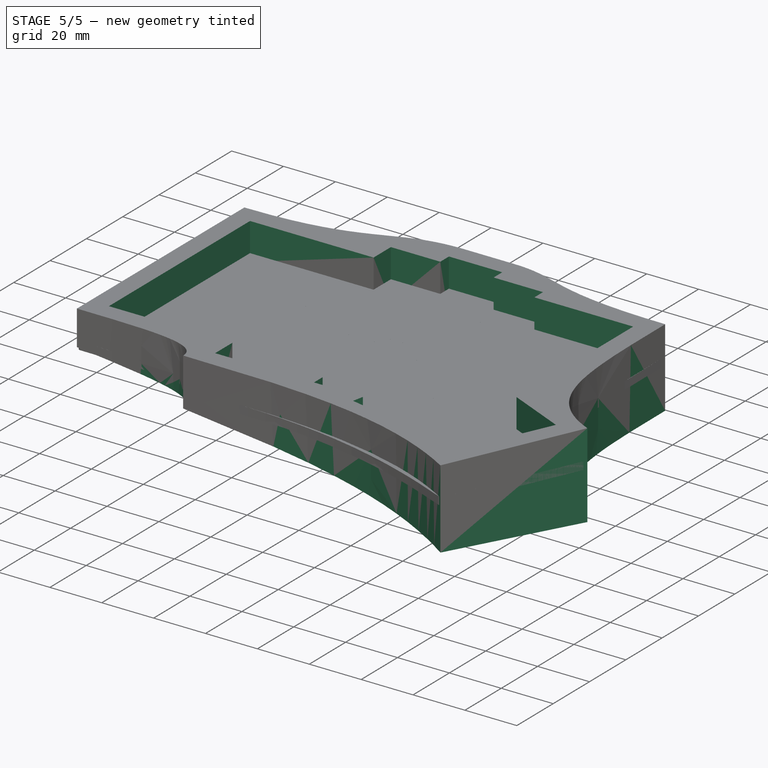
[diagram: stage 5 of 5 — iso view after this stage's code; geometry added in this stage tinted green]
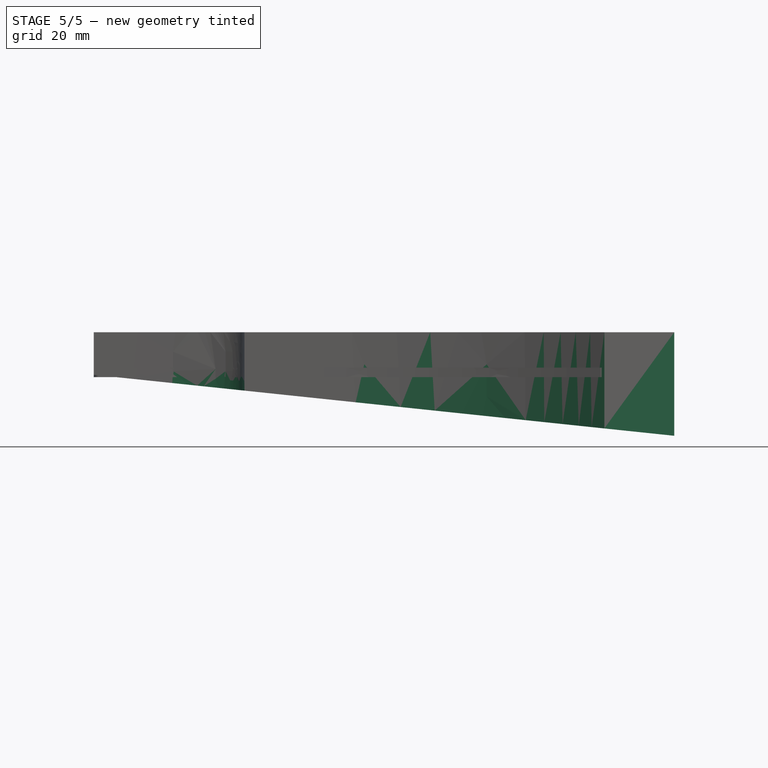
[diagram: stage 5 of 5 — front view after this stage's code; geometry added in this stage tinted green]
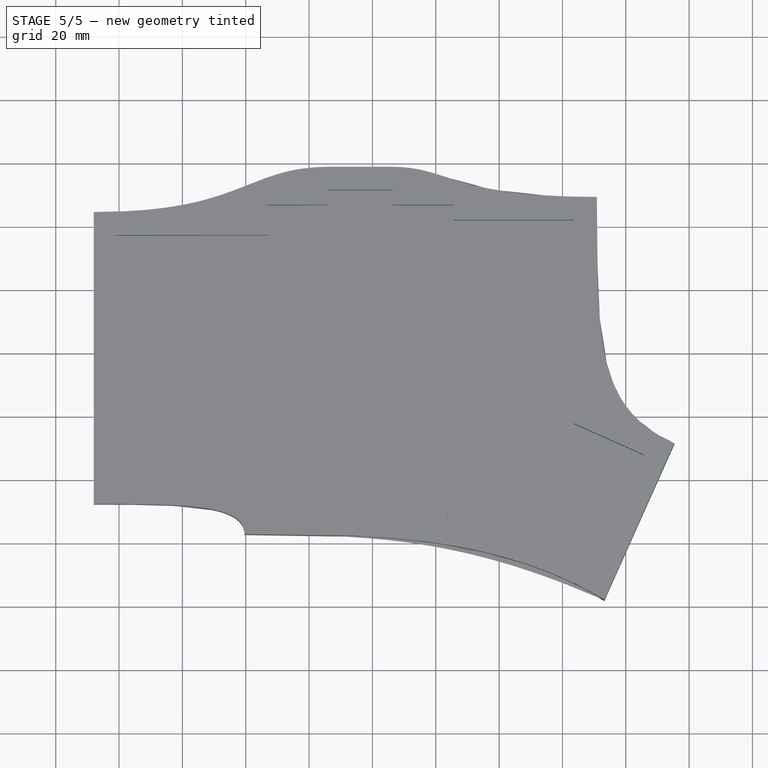
[diagram: stage 5 of 5 — top view after this stage's code; geometry added in this stage tinted green]
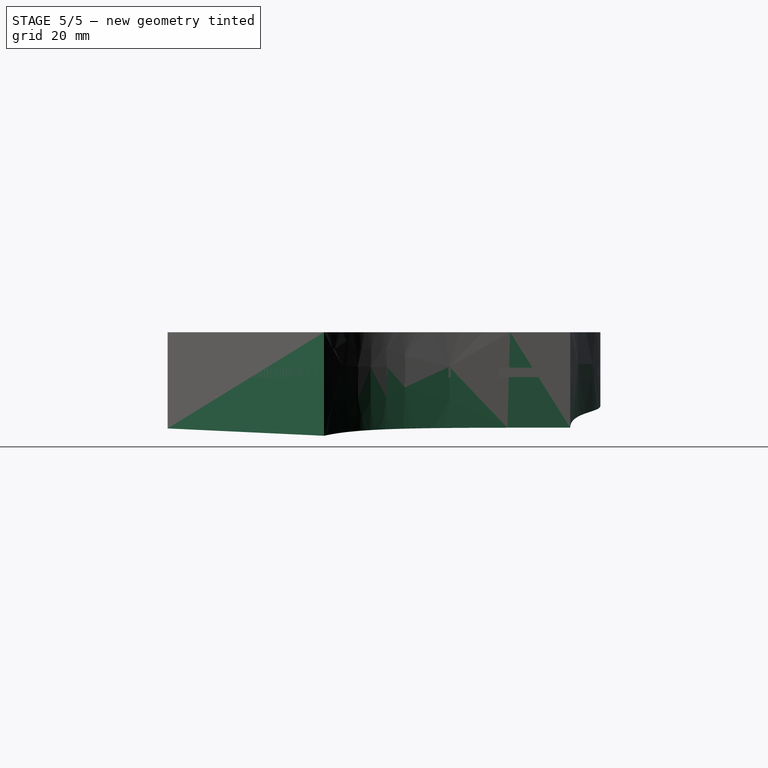
[diagram: stage 5 of 5 — right view after this stage's code; geometry added in this stage tinted green]
FEATURE [Spreadsheet::Sheet] Spreadsheet  label="Constants"
  cells = A1=grid; B1(grid)=19.05; C1=hole; D1(hole)=14; E1=spacing; F1(spacing)==grid - hole; A2=edge; B2(edge)=4; C2=hole_base; D2(hole_base)=14; A3=mod_units; B3(mod_units)=1.5; A5=layer; D5=case; I5=sandwich; A6=thickness; B6(thickness)=3; D6=highprofile; E6(highprofile)==11.6 + 1.6; I6=sandwich_angle; J6(sandwich_angle)==tanh(9 / (J8 - overhang)); A7=margin; B7(margin)=0.5; D7=platetopcb; E7(platetopcb)=0; F7=6.6 for plate screw; I7=overhang; J7(overhang)==grid / 2; A8=platehole; B8(platehole)=4.5; D8=space_min; E8(space_min)=1; F8=8,5 for plate screw; G8=postcone; H8(postcone)=0.2; I8=overhang_offset; J8(overhang_offset)==grid * 4.5 + brim; D9=postdiameter; E9(postdiameter)=5; F9=posthole; G9(posthole)=2.9; D10=angle; E10(angle)=6; A11=weight; D11=brim; E11(brim)=8; H11=kerf; I11(kerf)=0.2; A12=weight_diameter; B12(weight_diameter)=40; D12=clearance; E12(clearance)=0.75; G12=standoffhole; H12=3.1; I12(standoffhole)==H12 - kerf; D13=port_position; E13(port_position)=2; G13=screwhole; H13=2; I13(screwhole)==H13 - kerf; A14=pluckey; G14=diodehole; H14=0.5; I14(diodehole)==H14 - kerf; A15=angle_lashes; B15(angle_lashes)=42; G15=holedistance; H15(holedistance)==(brim - clearance) / 2 + clearance; G16=holedistance_top; H16(holedistance_top)=6.36; G17=edgeradius; H17(edgeradius)=1.5; G18=edgeradius_bottom; H18(edgeradius_bottom)=0.5
FEATURE [Sketcher::SketchObject] Sketch002  label="plate_w_margin"
  FullyConstrained = true
  expr: Constraints[82] = 0.75 * Spreadsheet.grid - Spreadsheet.hole / 2
  expr: Constraints[53] = Spreadsheet.grid * 2
  expr: Constraints[113] = Spreadsheet.spacing / 2
  expr: Constraints[185] = Spreadsheet.brim
  expr: Constraints[186] = Spreadsheet.brim
  expr: Constraints[65] = 180 - 12.08569093596732
  expr: Constraints[203] = Spreadsheet.brim
  expr: Constraints[204] = Spreadsheet.grid * 2
  expr: Constraints[26] = Spreadsheet.grid / 2
  expr: Constraints[112] = Spreadsheet.spacing / 2
  expr: Constraints[249] = Spreadsheet.kerf / 2
  expr: Constraints[81] = Spreadsheet.spacing / 2
  expr: Constraints[66] = Spreadsheet.grid - 14.60669124913411
  expr: Constraints[28] = Spreadsheet.grid * 2
  expr: Constraints[25] = Spreadsheet.grid / 4
  expr: Constraints[51] = Spreadsheet.grid * 1.5
  expr: Constraints[248] = Spreadsheet.kerf / 2
  expr: Constraints[5] = (Spreadsheet.mod_units + 1) * Spreadsheet.grid
  expr: Constraints[2] = 4 * Spreadsheet.grid
  expr: Constraints[115] = Spreadsheet.spacing / 2
  expr: Constraints[114] = Spreadsheet.spacing / 2
  expr: Constraints[172] = Spreadsheet.brim
  expr: Constraints[195] = Spreadsheet.brim
  expr: Constraints[77] = Spreadsheet.hole
  expr: Constraints[235] = Spreadsheet.kerf / 2
  expr: Constraints[193] = Spreadsheet.brim
  expr: Constraints[190] = Spreadsheet.brim
  expr: Constraints[194] = Spreadsheet.brim
  expr: Constraints[236] = Spreadsheet.kerf / 2
  expr: Constraints[237] = Spreadsheet.kerf / 2
  expr: Constraints[111] = Spreadsheet.grid / 2
  expr: Constraints[52] = Spreadsheet.grid
  expr: Constraints[188] = Spreadsheet.brim
  expr: Constraints[184] = Spreadsheet.brim
  expr: Constraints[197] = Spreadsheet.brim
  expr: Constraints[240] = Spreadsheet.kerf / 2
  expr: Constraints[61] = 78°
  expr: Constraints[210] = Spreadsheet.grid
  expr: Constraints[239] = Spreadsheet.kerf / 2
  expr: Constraints[181] = Spreadsheet.brim
  expr: Constraints[109] = Spreadsheet.hole
  expr: Constraints[22] = Spreadsheet.grid
  expr: Constraints[187] = Spreadsheet.brim
  expr: Constraints[250] = Spreadsheet.kerf / 2
  expr: Constraints[206] = Spreadsheet.brim
  expr: Constraints[238] = Spreadsheet.kerf / 2
  expr: Constraints[170] = Spreadsheet.brim
  expr: Constraints[209] = <<Constants>>.grid * 1.5 + <<Constants>>.brim
  expr: Constraints[241] = Spreadsheet.kerf / 2
  expr: Constraints[243] = Spreadsheet.kerf / 2
  expr: Constraints[251] = Spreadsheet.kerf / 2
  sketch-geometry (93):
    g0: LineSegment StartX=104.775 StartY=-9.525 StartZ=0 EndX=103.851 EndY=-13.8712 EndZ=0
    g1: LineSegment StartX=0 StartY=0 StartZ=0 EndX=0 EndY=76.2 EndZ=0
    g2: LineSegment StartX=0 StartY=76.2 StartZ=0 EndX=47.625 EndY=76.2 EndZ=0
    g3: LineSegment StartX=47.625 StartY=76.2 StartZ=0 EndX=47.625 EndY=85.725 EndZ=0
    g4: LineSegment StartX=47.625 StartY=85.725 StartZ=0 EndX=66.675 EndY=85.725 EndZ=0
    g5: LineSegment StartX=66.675 StartY=85.725 StartZ=0 EndX=66.675 EndY=90.4875 EndZ=0
    g6: LineSegment StartX=66.675 StartY=90.4875 StartZ=0 EndX=85.725 EndY=90.4875 EndZ=0
    g7: LineSegment StartX=85.725 StartY=90.4875 StartZ=0 EndX=85.725 EndY=85.725 EndZ=0
    g8: LineSegment StartX=85.725 StartY=85.725 StartZ=0 EndX=104.775 EndY=85.725 EndZ=0
    g9: LineSegment StartX=104.775 StartY=85.725 StartZ=0 EndX=104.775 EndY=80.9625 EndZ=0
    g10: LineSegment StartX=104.775 StartY=80.9625 StartZ=0 EndX=142.875 EndY=80.9625 EndZ=0
    g11: LineSegment StartX=142.875 StartY=80.9625 StartZ=0 EndX=142.875 EndY=16.9712 EndZ=0
    g12: LineSegment StartX=0 StartY=0 StartZ=0 EndX=47.625 EndY=0 EndZ=0
    g13: LineSegment StartX=47.625 StartY=0 StartZ=0 EndX=47.625 EndY=-9.525 EndZ=0
    g14: LineSegment StartX=47.625 StartY=-9.525 StartZ=0 EndX=66.675 EndY=-9.525 EndZ=0
    g15: LineSegment StartX=66.675 StartY=-9.525 StartZ=0 EndX=66.675 EndY=-4.7625 EndZ=0
    g16: LineSegment StartX=66.675 StartY=-4.7625 StartZ=0 EndX=85.725 EndY=-4.7625 EndZ=0
    g17: LineSegment StartX=85.725 StartY=-4.7625 StartZ=0 EndX=85.725 EndY=-9.525 EndZ=0
    g18: LineSegment StartX=164.742 StartY=7.19623 StartZ=0 EndX=149.193 EndY=-27.5866 EndZ=0
    g19: LineSegment StartX=149.193 StartY=-27.5866 StartZ=0 EndX=131.802 EndY=-19.8123 EndZ=0
    g20: LineSegment StartX=131.802 StartY=-19.8123 StartZ=0 EndX=103.851 EndY=-13.8712 EndZ=0
    g21: LineSegment StartX=164.742 StartY=7.19623 StartZ=0 EndX=142.875 EndY=16.9712 EndZ=0
    g22: LineSegment StartX=85.725 StartY=-9.525 StartZ=0 EndX=104.775 EndY=-9.525 EndZ=0
    g23: LineSegment StartX=111.504 StartY=-12.9165 StartZ=0 EndX=125.198 EndY=-15.8273 EndZ=0
    g24: LineSegment StartX=125.198 StartY=-15.8273 StartZ=0 EndX=128.109 EndY=-2.13324 EndZ=0
    g25: LineSegment StartX=128.109 StartY=-2.13324 StartZ=0 EndX=114.415 EndY=0.777521 EndZ=0
    g26: LineSegment StartX=114.415 StartY=0.777521 StartZ=0 EndX=111.504 EndY=-12.9165 EndZ=0
    g27: LineSegment StartX=114.415 StartY=0.777521 StartZ=0 EndX=125.198 EndY=-15.8273 EndZ=0
    g28: LineSegment StartX=111.504 StartY=-12.9165 StartZ=0 EndX=128.109 EndY=-2.13324 EndZ=0
    g29: LineSegment StartX=135.137 StartY=-18.5376 StartZ=0 EndX=147.918 EndY=-24.251 EndZ=0
    g30: LineSegment StartX=147.918 StartY=-24.251 StartZ=0 EndX=153.632 EndY=-11.4699 EndZ=0
    g31: LineSegment StartX=153.632 StartY=-11.4699 StartZ=0 EndX=140.851 EndY=-5.75648 EndZ=0
    g32: LineSegment StartX=140.851 StartY=-5.75648 StartZ=0 EndX=135.137 EndY=-18.5376 EndZ=0
    g33: LineSegment StartX=140.851 StartY=-5.75648 StartZ=0 EndX=147.918 EndY=-24.251 EndZ=0
    g34: LineSegment StartX=135.137 StartY=-18.5376 StartZ=0 EndX=153.632 EndY=-11.4699 EndZ=0
    g35: LineSegment StartX=142.912 StartY=-1.14615 StartZ=0 EndX=155.693 EndY=-6.85958 EndZ=0
    g36: LineSegment StartX=155.693 StartY=-6.85958 StartZ=0 EndX=161.406 EndY=5.92152 EndZ=0
    g37: LineSegment StartX=161.406 StartY=5.92152 StartZ=0 EndX=148.625 EndY=11.635 EndZ=0
    g38: LineSegment StartX=148.625 StartY=11.635 StartZ=0 EndX=142.912 EndY=-1.14615 EndZ=0
    g39: LineSegment StartX=148.625 StartY=11.635 StartZ=0 EndX=155.693 EndY=-6.85958 EndZ=0
    g40: LineSegment StartX=142.912 StartY=-1.14615 StartZ=0 EndX=161.406 EndY=5.92152 EndZ=0
    g41: LineSegment StartX=140.497 StartY=-23.6995 StartZ=0 EndX=156.046 EndY=11.0834 EndZ=0
    g42: LineSegment StartX=-8 StartY=84.2 StartZ=0 EndX=-8 EndY=-8 EndZ=0
    g43: LineSegment StartX=153.232 StartY=-38.1549 StartZ=0 EndX=175.31 EndY=11.2349 EndZ=0
    g44: LineSegment StartX=85.725 StartY=98.4875 StartZ=0 EndX=66.675 EndY=98.4875 EndZ=0
    g45-g48: Circle x4 (B-spline internal-alignment scaffolding for g49; pole/knot coordinates omitted)
    g49: BSplineCurve PolesCount=4 KnotsCount=2 Degree=3 IsPeriodic=0
    g50: GeomPoint X=-8 Y=84.2 Z=0
    g51: GeomPoint X=66.675 Y=98.4875 Z=0
    g52-g55: Circle x4 (B-spline internal-alignment scaffolding for g56; pole/knot coordinates omitted)
    g56: BSplineCurve PolesCount=4 KnotsCount=2 Degree=3 IsPeriodic=0
    g57: GeomPoint X=85.725 Y=98.4875 Z=0
    g58: GeomPoint X=150.875 Y=88.9625 Z=0
    g59-g62: Circle x4 (B-spline internal-alignment scaffolding for g63; pole/knot coordinates omitted)
    g63: BSplineCurve PolesCount=4 KnotsCount=2 Degree=3 IsPeriodic=0
    g64: GeomPoint X=150.875 Y=88.9625 Z=0
    g65: GeomPoint X=175.31 Y=11.2349 Z=0
    g66-g69: Circle x4 (B-spline internal-alignment scaffolding for g70; pole/knot coordinates omitted)
    g70: BSplineCurve PolesCount=4 KnotsCount=2 Degree=3 IsPeriodic=0
    g71: GeomPoint X=153.232 Y=-38.1549 Z=0
    g72: GeomPoint X=39.625 Y=-17.525 Z=0
    g73-g76: Circle x4 (B-spline internal-alignment scaffolding for g77; pole/knot coordinates omitted)
    g77: BSplineCurve PolesCount=4 KnotsCount=2 Degree=3 IsPeriodic=0
    g78: GeomPoint X=39.625 Y=-17.525 Z=0
    g79: GeomPoint X=-8 Y=-8 Z=0
    g80: LineSegment StartX=153.232 StartY=-38.1549 StartZ=0 EndX=107.082 EndY=-17.525 EndZ=0
    g81: LineSegment StartX=111.623 StartY=-12.8395 StartZ=0 EndX=114.492 EndY=0.658915 EndZ=0
    g82: LineSegment StartX=114.492 StartY=0.658915 StartZ=0 EndX=127.991 EndY=-2.21027 EndZ=0
    g83: LineSegment StartX=127.991 StartY=-2.21027 StartZ=0 EndX=125.121 EndY=-15.7087 EndZ=0
    g84: LineSegment StartX=125.121 StartY=-15.7087 StartZ=0 EndX=111.623 EndY=-12.8395 EndZ=0
    g85: LineSegment StartX=135.269 StartY=-18.4871 StartZ=0 EndX=140.901 EndY=-5.88858 EndZ=0
    g86: LineSegment StartX=140.901 StartY=-5.88858 StartZ=0 EndX=153.5 EndY=-11.5204 EndZ=0
    g87: LineSegment StartX=153.5 StartY=-11.5204 StartZ=0 EndX=147.868 EndY=-24.1189 EndZ=0
    g88: LineSegment StartX=147.868 StartY=-24.1189 StartZ=0 EndX=135.269 EndY=-18.4871 EndZ=0
    g89: LineSegment StartX=143.044 StartY=-1.09567 StartZ=0 EndX=148.676 EndY=11.5029 EndZ=0
    g90: LineSegment StartX=148.676 StartY=11.5029 StartZ=0 EndX=161.274 EndY=5.87104 EndZ=0
    g91: LineSegment StartX=161.274 StartY=5.87104 StartZ=0 EndX=155.642 EndY=-6.72748 EndZ=0
    g92: LineSegment StartX=155.642 StartY=-6.72748 StartZ=0 EndX=143.044 EndY=-1.09567 EndZ=0
  constraints (237):
    c: Coincident(g1,g-1)
    c: Vertical(g1)
    c: DistanceY(g1,g1) = 76.2
    c: Horizontal(g2)
    c: Coincident(g2,g1)
    c: DistanceX(g2,g2) = 47.625
    c: Coincident(g3,g4)
    c: Coincident(g4,g5)
    c: Coincident(g5,g6)
    c: Coincident(g6,g7)
    c: Coincident(g8,g9)
    c: Coincident(g9,g10)
    c: Coincident(g10,g11)
    c: Vertical(g3)
    c: Vertical(g5)
    c: Vertical(g7)
    c: Vertical(g9)
    c: Vertical(g11)
    c: Horizontal(g4)
    c: Horizontal(g6)
    c: Horizontal(g8)
    c: Horizontal(g10)
    c: DistanceX(g6,g6) = 19.05
    c: Equal(g4,g8)
    c: Equal(g8,g6)
    c: DistanceY(g5,g5) = 4.7625
    c: DistanceY(g3,g3) = 9.525
    c: Equal(g9,g7)
    c: DistanceX(g10,g10) = 38.1
    c: Coincident(g2,g3)
    c: Equal(g5,g7)
    c: Coincident(g12,g13)
    c: Coincident(g13,g14)
    c: Coincident(g14,g15)
    c: Coincident(g15,g16)
    c: Coincident(g16,g17)
    c: Equal(g12,g2)
    c: Horizontal(g12)
    c: Equal(g3,g13)
    c: Vertical(g13)
    c: Vertical(g15)
    c: Vertical(g17)
    c: Horizontal(g14)
    c: Horizontal(g16)
    c: Equal(g15,g17)
    c: Equal(g17,g5)
    c: Equal(g14,g4)
    c: Equal(g16,g6)
    c: Coincident(g1,g12)
    c: Coincident(g18,g19)
    c: Coincident(g19,g20)
    c: Distance(g20) = 28.575
    c: Distance(g19) = 19.05
    c: Distance(g18) = 38.1
    c: Perpendicular(g18,g19)
    c: Perpendicular(g21,g18)
    c: Coincident(g11,g21)
    c: Coincident(g17,g22)
    c: Equal(g22,g16)
    c: Horizontal(g22)
    c: Coincident(g22,g0)
    c: Angle(g22,g0) = 1.36136
    c: Coincident(g20,g0)
    c: Perpendicular(g20,g0)
    c: Coincident(g7,g8)
    c: Angle(g20,g19) = 2.93066
    c: Distance(g0) = 4.44331
    c: Coincident(g23,g24)
    c: Coincident(g24,g25)
    c: Coincident(g25,g26)
    c: Coincident(g26,g23)
    c: Perpendicular(g28,g27)
    c: Coincident(g28,g24)
    c: Coincident(g27,g25)
    c: Coincident(g28,g23)
    c: Coincident(g27,g23)
    c: Parallel(g23,g20)
    c: Distance(g23) = 14
    c: Perpendicular(g26,g23)
    c: Equal(g23,g25)
    c: Parallel(g25,g23)
    c: Distance(g0,g23) = 2.525
    c: Distance(g0,g26) = 7.2875
    c: Coincident(g29,g30)
    c: Coincident(g30,g31)
    c: Coincident(g31,g32)
    c: Coincident(g32,g29)
    c: Perpendicular(g34,g33)
    c: Coincident(g34,g30)
    c: Coincident(g33,g31)
    c: Coincident(g34,g29)
    c: Coincident(g33,g29)
    c: Coincident(g35,g36)
    c: Coincident(g36,g37)
    c: Coincident(g37,g38)
    c: Coincident(g38,g35)
    c: Perpendicular(g40,g39)
    c: Coincident(g40,g36)
    c: Coincident(g39,g37)
    c: Coincident(g40,g35)
    c: Coincident(g39,g35)
    c: Equal(g29,g35)
    c: Perpendicular(g37,g38)
    c: Perpendicular(g38,g35)
    c: Perpendicular(g31,g32)
    c: Perpendicular(g32,g29)
    c: Parallel(g29,g19)
    c: Parallel(g35,g29)
    c: Parallel(g30,g32)
    c: Distance(g29) = 14
    c: Parallel(g41,g18)
    c: Distance(g18,g41) = 9.525
    c: Distance(g18,g29) = 2.525
    c: Distance(g18,g30) = 2.525
    c: Distance(g18,g37) = 2.525
    c: Distance(g18,g36) = 2.525
    c: Coincident(g18,g21)
    c: Equal(g41,g18)
    c: PointOnObject(g41,g19)
    c: Weight(g45) = 1
    c: Equal(g45,g46)
    c: Equal(g45,g47)
    c: Equal(g45,g48)
    c: InternalAlignment(g45-g48 -> g49) x4
    c: InternalAlignment(g50,g49)
    c: InternalAlignment(g51,g49)
    c: Weight(g52) = 1
    c: Equal(g52,g53)
    c: Equal(g52,g54)
    c: Equal(g52,g55)
    c: InternalAlignment(g52-g55 -> g56) x4
    c: InternalAlignment(g57,g56)
    c: InternalAlignment(g58,g56)
    c: Weight(g59) = 1
    c: Equal(g59,g60)
    c: Equal(g59,g61)
    c: Equal(g59,g62)
    c: InternalAlignment(g59-g62 -> g63) x4
    c: InternalAlignment(g64,g63)
    c: InternalAlignment(g65,g63)
    c: Coincident(g43,g63)
    c: Weight(g66) = 1
    c: Equal(g66,g67)
    c: Equal(g66,g68)
    c: Equal(g66,g69)
    c: InternalAlignment(g66-g69 -> g70) x4
    c: InternalAlignment(g71,g70)
    c: InternalAlignment(g72,g70)
    c: Weight(g73) = 1
    c: Equal(g73,g74)
    c: Equal(g73,g75)
    c: Equal(g73,g76)
    c: InternalAlignment(g73-g76 -> g77) x4
    c: InternalAlignment(g78,g77)
    c: InternalAlignment(g79,g77)
    c: DistanceX(g42,g1) = 8
    c: Coincident(g42,g49)
    c: DistanceY(g1,g42) = 8
    c: Horizontal(g46,g42)
    c: Horizontal(g44,g47)
    c: Horizontal(g53,g44)
    c: Coincident(g44,g56)
    c: Coincident(g44,g49)
    c: Vertical(g44,g5)
    c: Vertical(g6,g44)
    c: Horizontal(g44)
    c: DistanceY(g5,g44) = 8
    c: Horizontal(g54,g56)
    c: Coincident(g56,g63)
    c: DistanceX(g10,g56) = 8
    c: DistanceY(g10,g56) = 8
    c: Distance(g18,g43) = 8
    c: Distance(g43,g21) = 8
    c: Distance(g43,g18) = 8
    c: Coincident(g43,g70)
    c: Distance(g43,g19) = 8
    c: Horizontal(g68,g70)
    c: Coincident(g77,g70)
    c: DistanceY(g70,g13) = 8
    c: DistanceX(g70,g13) = 8
    c: DistanceX(g42,g-1) = 8
    c: Coincident(g42,g77)
    c: DistanceY(g42,g-1) = 8
    c: Horizontal(g75,g42)
    c: Vertical(g70,g74)
    c: Horizontal(g74,g42)
    c: Vertical(g61,g60)
    c: Vertical(g60,g56)
    c: Distance(g61,g21) = 8
    c: DistanceY(g60,g10) = 38.1
    c: Vertical(g46,g47)
    c: DistanceX(g46,g2) = 8
    c: Vertical(g54,g8)
    c: Vertical(g8,g53)
    c: DistanceX(g70,g68) = 36.575
    c: DistanceX(g75,g74) = 19.05
    c: Perpendicular(g80,g43)
    c: Coincident(g80,g67)
    c: Coincident(g80,g43)
    c: Horizontal(g67,g70)
    c: Coincident(g81,g82)
    c: Coincident(g82,g83)
    c: Coincident(g83,g84)
    c: Coincident(g84,g81)
    c: Coincident(g85,g86)
    c: Coincident(g86,g87)
    c: Coincident(g87,g88)
    c: Coincident(g88,g85)
    c: Coincident(g89,g90)
    c: Coincident(g90,g91)
    c: Coincident(g91,g92)
    c: Coincident(g92,g89)
    c: Parallel(g36,g91)
    c: Parallel(g91,g89)
    c: Parallel(g89,g87)
    c: Parallel(g87,g85)
    c: Parallel(g29,g88)
    c: Parallel(g88,g86)
    c: Parallel(g86,g92)
    c: Parallel(g92,g90)
    c: Distance(g85,g29) = 0.1
    c: Distance(g85,g32) = 0.1
    c: Distance(g86,g31) = 0.1
    c: Distance(g86,g30) = 0.1
    c: Distance(g90,g37) = 0.1
    c: Distance(g90,g36) = 0.1
    c: Distance(g89,g35) = 0.1
    c: Perpendicular(g35,g36)
    c: Distance(g89,g38) = 0.1
    c: Parallel(g82,g25)
    c: Parallel(g25,g84)
    c: Parallel(g26,g81)
    c: Parallel(g81,g83)
    c: Distance(g81,g26) = 0.1
    c: Distance(g81,g23) = 0.1
    c: Distance(g82,g25) = 0.1
    c: Distance(g82,g24) = 0.1
FEATURE [PartDesign::Pad] Pad001
  Direction = (1,1,1)
  Length = 3
  Length2 = 100
  Profile = -> Sketch002
  Type = 0
  expr: Length = Spreadsheet.thickness
FEATURE [Sketcher::SketchObject] Sketch013  label="case_inside"
  FullyConstrained = true
  MapMode = 5
  Placement = pos=(0,0,0) rot=(1,0,0;3.14159rad)
  Support = -> [Pad]
  expr: Constraints[121] = <<Constants>>.clearance
  expr: Constraints[45] = 2.5 * <<Constants>>.grid
  expr: Constraints[63] = <<Constants>>.grid * 2
  expr: Constraints[114] = <<Constants>>.clearance
  expr: Constraints[115] = <<Constants>>.clearance
  expr: Constraints[46] = <<Constants>>.grid
  expr: Constraints[67] = 180 - 12.08569093596732
  expr: Constraints[53] = 0.5 * <<Constants>>.grid
  expr: Constraints[56] = <<Constants>>.grid / 4
  expr: Constraints[62] = <<Constants>>.grid * 1.5
  expr: Constraints[65] = 4 * <<Constants>>.grid
  expr: Constraints[122] = <<Constants>>.clearance
  expr: Constraints[66] = Spreadsheet.grid - 14.60669124913411
  expr: Constraints[134] = <<Constants>>.clearance
  expr: Constraints[127] = <<Constants>>.clearance
  expr: Constraints[116] = <<Constants>>.clearance
  expr: Constraints[120] = <<Constants>>.clearance
  expr: Constraints[117] = <<Constants>>.clearance
  expr: Constraints[119] = <<Constants>>.clearance
  expr: Constraints[118] = <<Constants>>.clearance
  expr: Constraints[126] = <<Constants>>.clearance
  expr: Constraints[123] = <<Constants>>.clearance
  expr: Constraints[124] = <<Constants>>.clearance
  expr: Constraints[128] = <<Constants>>.clearance
  expr: Constraints[129] = <<Constants>>.clearance
  expr: Constraints[130] = <<Constants>>.clearance
  expr: Constraints[131] = <<Constants>>.clearance
  expr: Constraints[132] = <<Constants>>.clearance
  expr: Constraints[133] = <<Constants>>.clearance
  expr: Constraints[136] = <<Constants>>.clearance
  expr: Constraints[125] = <<Constants>>.clearance
  expr: Constraints[135] = <<Constants>>.clearance
  sketch-geometry (46):
    g0: LineSegment StartX=0 StartY=0 StartZ=0 EndX=0 EndY=-76.2 EndZ=0
    g1: LineSegment StartX=0 StartY=-76.2 StartZ=0 EndX=47.625 EndY=-76.2 EndZ=0
    g2: LineSegment StartX=47.625 StartY=-76.2 StartZ=0 EndX=47.625 EndY=-85.725 EndZ=0
    g3: LineSegment StartX=47.625 StartY=-85.725 StartZ=0 EndX=66.675 EndY=-85.725 EndZ=0
    g4: LineSegment StartX=66.675 StartY=-85.725 StartZ=0 EndX=66.675 EndY=-90.4875 EndZ=0
    g5: LineSegment StartX=66.675 StartY=-90.4875 StartZ=0 EndX=85.725 EndY=-90.4875 EndZ=0
    g6: LineSegment StartX=85.725 StartY=-90.4875 StartZ=0 EndX=85.725 EndY=-85.725 EndZ=0
    g7: LineSegment StartX=85.725 StartY=-85.725 StartZ=0 EndX=104.775 EndY=-85.725 EndZ=0
    g8: LineSegment StartX=104.775 StartY=-85.725 StartZ=0 EndX=104.775 EndY=-80.9625 EndZ=0
    g9: LineSegment StartX=104.775 StartY=-80.9625 StartZ=0 EndX=142.875 EndY=-80.9625 EndZ=0
    g10: LineSegment StartX=142.875 StartY=-80.9625 StartZ=0 EndX=142.875 EndY=-16.9712 EndZ=0
    g11: LineSegment StartX=142.875 StartY=-16.9712 StartZ=0 EndX=164.742 EndY=-7.19623 EndZ=0
    g12: LineSegment StartX=164.742 StartY=-7.19623 StartZ=0 EndX=149.193 EndY=27.5866 EndZ=0
    g13: LineSegment StartX=149.193 StartY=27.5866 StartZ=0 EndX=131.802 EndY=19.8123 EndZ=0
    g14: LineSegment StartX=131.802 StartY=19.8123 StartZ=0 EndX=103.851 EndY=13.8712 EndZ=0
    g15: LineSegment StartX=103.851 StartY=13.8712 StartZ=0 EndX=104.775 EndY=9.525 EndZ=0
    g16: LineSegment StartX=104.775 StartY=9.525 StartZ=0 EndX=85.725 EndY=9.525 EndZ=0
    g17: LineSegment StartX=85.725 StartY=9.525 StartZ=0 EndX=85.725 EndY=4.7625 EndZ=0
    g18: LineSegment StartX=85.725 StartY=4.7625 StartZ=0 EndX=66.675 EndY=4.7625 EndZ=0
    g19: LineSegment StartX=66.675 StartY=4.7625 StartZ=0 EndX=66.675 EndY=9.525 EndZ=0
    g20: LineSegment StartX=66.675 StartY=9.525 StartZ=0 EndX=47.625 EndY=9.525 EndZ=0
    g21: LineSegment StartX=47.625 StartY=9.525 StartZ=0 EndX=47.625 EndY=0 EndZ=0
    g22: LineSegment StartX=47.625 StartY=0 StartZ=0 EndX=0 EndY=0 EndZ=0
    g23: LineSegment StartX=-0.75 StartY=0.75 StartZ=0 EndX=-0.75 EndY=-76.95 EndZ=0
    g24: LineSegment StartX=-0.75 StartY=-76.95 StartZ=0 EndX=46.875 EndY=-76.95 EndZ=0
    g25: LineSegment StartX=46.875 StartY=-76.95 StartZ=0 EndX=46.875 EndY=-86.475 EndZ=0
    g26: LineSegment StartX=46.875 StartY=-86.475 StartZ=0 EndX=65.925 EndY=-86.475 EndZ=0
    g27: LineSegment StartX=65.925 StartY=-86.475 StartZ=0 EndX=65.925 EndY=-91.2375 EndZ=0
    g28: LineSegment StartX=65.925 StartY=-91.2375 StartZ=0 EndX=86.475 EndY=-91.2375 EndZ=0
    g29: LineSegment StartX=86.475 StartY=-91.2375 StartZ=0 EndX=86.475 EndY=-86.475 EndZ=0
    g30: LineSegment StartX=86.475 StartY=-86.475 StartZ=0 EndX=105.525 EndY=-86.475 EndZ=0
    g31: LineSegment StartX=105.525 StartY=-86.475 StartZ=0 EndX=105.525 EndY=-81.7125 EndZ=0
    g32: LineSegment StartX=105.525 StartY=-81.7125 StartZ=0 EndX=143.625 EndY=-81.7125 EndZ=0
    g33: LineSegment StartX=143.625 StartY=-81.7125 StartZ=0 EndX=143.625 EndY=-17.4575 EndZ=0
    g34: LineSegment StartX=143.625 StartY=-17.4575 StartZ=0 EndX=165.733 EndY=-7.57485 EndZ=0
    g35: LineSegment StartX=165.733 StartY=-7.57485 StartZ=0 EndX=149.572 EndY=28.5774 EndZ=0
    g36: LineSegment StartX=149.572 StartY=28.5774 StartZ=0 EndX=131.568 EndY=20.5294 EndZ=0
    g37: LineSegment StartX=131.568 StartY=20.5294 StartZ=0 EndX=102.962 EndY=14.4489 EndZ=0
    g38: LineSegment StartX=102.962 StartY=14.4489 StartZ=0 EndX=103.849 EndY=10.275 EndZ=0
    g39: LineSegment StartX=103.849 StartY=10.275 StartZ=0 EndX=84.975 EndY=10.275 EndZ=0
    g40: LineSegment StartX=84.975 StartY=10.275 StartZ=0 EndX=84.975 EndY=5.5125 EndZ=0
    g41: LineSegment StartX=84.975 StartY=5.5125 StartZ=0 EndX=67.425 EndY=5.5125 EndZ=0
    g42: LineSegment StartX=67.425 StartY=5.5125 StartZ=0 EndX=67.425 EndY=10.275 EndZ=0
    g43: LineSegment StartX=67.425 StartY=10.275 StartZ=0 EndX=46.875 EndY=10.275 EndZ=0
    g44: LineSegment StartX=46.875 StartY=10.275 StartZ=0 EndX=46.875 EndY=0.75 EndZ=0
    g45: LineSegment StartX=46.875 StartY=0.75 StartZ=0 EndX=-0.75 EndY=0.75 EndZ=0
  constraints (137):
    c: Vertical(g0)
    c: Coincident(g0,g1)
    c: Horizontal(g1)
    c: Coincident(g1,g2)
    c: Vertical(g2)
    c: Coincident(g2,g3)
    c: Horizontal(g3)
    c: Coincident(g3,g4)
    c: Coincident(g4,g5)
    c: Horizontal(g5)
    c: Coincident(g5,g6)
    c: Vertical(g6)
    c: Coincident(g6,g7)
    c: Horizontal(g7)
    c: Coincident(g7,g8)
    c: Coincident(g8,g9)
    c: Horizontal(g9)
    c: Coincident(g9,g10)
    c: Vertical(g10)
    c: Coincident(g10,g11)
    c: Coincident(g11,g12)
    c: Coincident(g12,g13)
    c: Coincident(g13,g14)
    c: Coincident(g14,g15)
    c: Coincident(g15,g16)
    c: Horizontal(g16)
    c: Coincident(g16,g17)
    c: Coincident(g17,g18)
    c: Horizontal(g18)
    c: Coincident(g18,g19)
    c: Coincident(g19,g20)
    c: Horizontal(g20)
    c: Coincident(g20,g21)
    c: Vertical(g21)
    c: Coincident(g21,g22)
    c: Horizontal(g22)
    c: Coincident(g0,g22)
    c: Coincident(g0,g-1)
    c: Vertical(g8)
    c: Vertical(g4)
    c: Vertical(g19)
    c: Vertical(g17)
    c: Perpendicular(g15,g14)
    c: Perpendicular(g12,g13)
    c: Perpendicular(g11,g12)
    c: DistanceX(g22,g22) = 47.625
    c: Distance(g20) = 19.05
    c: Equal(g16,g18)
    c: Equal(g18,g20)
    c: Equal(g20,g3)
    c: Equal(g3,g5)
    c: Equal(g5,g7)
    c: Equal(g20,g13)
    c: Distance(g2) = 9.525
    c: Equal(g2,g21)
    c: Equal(g1,g22)
    c: Distance(g4) = 4.7625
    c: Equal(g4,g6)
    c: Equal(g6,g8)
    c: Equal(g8,g19)
    c: Equal(g19,g17)
    c: Angle(g15,g16) = 1.36136
    c: Distance(g14) = 28.575
    c: Distance(g9) = 38.1
    c: Equal(g12,g9)
    c: Distance(g0) = 76.2
    c: Distance(g15) = 4.44331
    c: Angle(g13,g14) = 2.93066
    c: Coincident(g23,g24)
    c: Coincident(g24,g25)
    c: Coincident(g25,g26)
    c: Coincident(g26,g27)
    c: Coincident(g27,g28)
    c: Coincident(g28,g29)
    c: Coincident(g29,g30)
    c: Coincident(g30,g31)
    c: Coincident(g31,g32)
    c: Coincident(g32,g33)
    c: Coincident(g33,g34)
    c: Coincident(g34,g35)
    c: Coincident(g35,g36)
    c: Coincident(g36,g37)
    c: Coincident(g37,g38)
    c: Coincident(g38,g39)
    c: Coincident(g39,g40)
    c: Coincident(g40,g41)
    c: Coincident(g41,g42)
    c: Coincident(g42,g43)
    c: Coincident(g43,g44)
    c: Coincident(g44,g45)
    c: Coincident(g45,g23)
    c: Parallel(g22,g45)
    c: Parallel(g23,g0)
    c: Parallel(g21,g44)
    c: Parallel(g20,g43)
    c: Parallel(g19,g42)
    c: Parallel(g18,g41)
    c: Parallel(g17,g40)
    c: Parallel(g16,g39)
    c: Parallel(g15,g38)
    c: Parallel(g14,g37)
    c: Parallel(g13,g36)
    c: Parallel(g12,g35)
    c: Parallel(g34,g11)
    c: Parallel(g33,g10)
    c: Parallel(g32,g9)
    c: Parallel(g31,g8)
    c: Parallel(g30,g7)
    c: Parallel(g29,g6)
    c: Parallel(g28,g5)
    c: Parallel(g27,g4)
    c: Parallel(g26,g3)
    c: Parallel(g25,g2)
    c: Parallel(g24,g1)
    c: Distance(g-1,g23) = 0.75
    c: Distance(g-1,g45) = 0.75
    c: Distance(g20,g44) = 0.75
    c: Distance(g19,g43) = 0.75
    c: Distance(g41,g19) = 0.75
    c: Distance(g41,g18) = 0.75
    c: Distance(g40,g17) = 0.75
    c: Distance(g39,g16) = 0.75
    c: Distance(g38,g15) = 0.75
    c: Distance(g37,g14) = 0.75
    c: Distance(g36,g13) = 0.75
    c: Distance(g35,g12) = 0.75
    c: Distance(g34,g11) = 0.75
    c: Distance(g33,g10) = 0.75
    c: Distance(g32,g9) = 0.75
    c: Distance(g31,g8) = 0.75
    c: Distance(g30,g7) = 0.75
    c: Distance(g29,g6) = 0.75
    c: Distance(g28,g5) = 0.75
    c: Distance(g27,g4) = 0.75
    c: Distance(g26,g3) = 0.75
    c: Distance(g25,g2) = 0.75
    c: Distance(g24,g1) = 0.75
FEATURE [PartDesign::Pocket] Pocket002
  BaseFeature = -> Pad
  Length = 45
  Length2 = 100
  Profile = -> Sketch013
  Type = 0
FEATURE [PartDesign::Draft] Draft
  Angle = 6
  Base = -> Pocket002 [Face4]
  BaseFeature = -> Pocket002
  NeutralPlane = -> Pocket002 [Face33]
  SupportTransform = false
  expr: Angle = <<Constants>>.angle
FEATURE [PartDesign::Pocket] Pocket006
  BaseFeature = -> Pad002
  Length = 5
  Length2 = 100
  Profile = -> Sketch020
  Type = 0
FEATURE [PartDesign::Pocket] Pocket022
  BaseFeature = -> Pocket006
  Length = 16
  Length2 = 100
  Profile = -> Sketch038
  Reversed = true
  Type = 0
FEATURE [Sketcher::SketchObject] Sketch062  label="switch_holes middle 2"
  FullyConstrained = false
  MapMode = 5
  Placement = pos=(0,0,3) rot=(0,0,1;0rad)
  Support = -> [Pad001]
  expr: Constraints[99] = Sketch009.Constraints[315]
  expr: Constraints[11] = Sketch009.Constraints[11]
  expr: Constraints[100] = Sketch009.Constraints[316]
  expr: Constraints[191] = Spreadsheet.kerf / 2
  expr: Constraints[56] = Sketch009.Constraints[103]
  expr: Constraints[7] = Sketch009.Constraints[7]
  expr: Constraints[13] = Sketch009.Constraints[13]
  expr: Constraints[105] = Spreadsheet.hole
  expr: Constraints[9] = Sketch009.Constraints[9]
  expr: Constraints[5] = Sketch009.Constraints[5]
  expr: Constraints[2] = Sketch009.Constraints[2]
  expr: Constraints[57] = Sketch009.Constraints[104]
  expr: Constraints[184] = Spreadsheet.kerf / 2
  expr: Constraints[188] = Spreadsheet.kerf / 2
  expr: Constraints[185] = Spreadsheet.kerf / 2
  expr: Constraints[104] = Sketch009.Constraints[366]
  expr: Constraints[186] = Spreadsheet.kerf / 2
  expr: Constraints[55] = Sketch009.Constraints[102]
  expr: Constraints[187] = Spreadsheet.kerf / 2
  expr: Constraints[189] = Spreadsheet.kerf / 2
  expr: Constraints[107] = <<Constants>>.spacing / 2
  expr: Constraints[190] = Spreadsheet.kerf / 2
  expr: Constraints[203] = Spreadsheet.kerf / 2
  expr: Constraints[192] = Spreadsheet.kerf / 2
  expr: Constraints[193] = Spreadsheet.kerf / 2
  expr: Constraints[194] = Spreadsheet.kerf / 2
  expr: Constraints[197] = Spreadsheet.kerf / 2
  expr: Constraints[101] = Sketch009.Constraints[317]
  expr: Constraints[195] = Spreadsheet.kerf / 2
  expr: Constraints[198] = Spreadsheet.kerf / 2
  expr: Constraints[196] = Spreadsheet.kerf / 2
  expr: Constraints[200] = Spreadsheet.kerf / 2
  expr: Constraints[199] = Spreadsheet.kerf / 2
  expr: Constraints[201] = Spreadsheet.kerf / 2
  expr: Constraints[202] = Spreadsheet.kerf / 2
  sketch-geometry (70):
    g0: LineSegment StartX=38.1 StartY=0 StartZ=0 EndX=38.1 EndY=96.2556 EndZ=0
    g1: LineSegment StartX=14.2875 StartY=0 StartZ=0 EndX=14.2875 EndY=96.8335 EndZ=0
    g2: LineSegment StartX=57.15 StartY=-9.1419 StartZ=0 EndX=57.15 EndY=87.1129 EndZ=0
    g3: LineSegment StartX=76.2 StartY=-4.2747 StartZ=0 EndX=76.2 EndY=91.9809 EndZ=0
    g4: LineSegment StartX=95.25 StartY=-8.95511 StartZ=0 EndX=95.25 EndY=87.3005 EndZ=0
    g5: LineSegment StartX=114.3 StartY=-8.94745 StartZ=0 EndX=114.3 EndY=87.2928 EndZ=0
    g6: LineSegment StartX=31.1 StartY=16.525 StartZ=0 EndX=45.1 EndY=16.525 EndZ=0
    g7: LineSegment StartX=45.1 StartY=16.525 StartZ=0 EndX=45.1 EndY=2.525 EndZ=0
    g8: LineSegment StartX=45.1 StartY=2.525 StartZ=0 EndX=31.1 EndY=2.525 EndZ=0
    g9: LineSegment StartX=31.1 StartY=2.525 StartZ=0 EndX=31.1 EndY=16.525 EndZ=0
    g10: LineSegment StartX=31.1 StartY=35.575 StartZ=0 EndX=45.1 EndY=35.575 EndZ=0
    g11: LineSegment StartX=45.1 StartY=35.575 StartZ=0 EndX=45.1 EndY=21.575 EndZ=0
    g12: LineSegment StartX=45.1 StartY=21.575 StartZ=0 EndX=31.1 EndY=21.575 EndZ=0
    g13: LineSegment StartX=31.1 StartY=21.575 StartZ=0 EndX=31.1 EndY=35.575 EndZ=0
    g14: LineSegment StartX=31.1 StartY=54.625 StartZ=0 EndX=45.1 EndY=54.625 EndZ=0
    g15: LineSegment StartX=45.1 StartY=54.625 StartZ=0 EndX=45.1 EndY=40.625 EndZ=0
    g16: LineSegment StartX=45.1 StartY=40.625 StartZ=0 EndX=31.1 EndY=40.625 EndZ=0
    g17: LineSegment StartX=31.1 StartY=40.625 StartZ=0 EndX=31.1 EndY=54.625 EndZ=0
    g18: LineSegment StartX=31.1 StartY=73.675 StartZ=0 EndX=45.1 EndY=73.675 EndZ=0
    g19: LineSegment StartX=45.1 StartY=73.675 StartZ=0 EndX=45.1 EndY=59.675 EndZ=0
    g20: LineSegment StartX=45.1 StartY=59.675 StartZ=0 EndX=31.1 EndY=59.675 EndZ=0
    g21: LineSegment StartX=31.1 StartY=59.675 StartZ=0 EndX=31.1 EndY=73.675 EndZ=0
    g22: LineSegment StartX=107.3 StartY=21.2875 StartZ=0 EndX=121.3 EndY=21.2875 EndZ=0
    g23: LineSegment StartX=121.3 StartY=21.2875 StartZ=0 EndX=121.3 EndY=7.2875 EndZ=0
    g24: LineSegment StartX=121.3 StartY=7.2875 StartZ=0 EndX=107.3 EndY=7.2875 EndZ=0
    g25: LineSegment StartX=107.3 StartY=7.2875 StartZ=0 EndX=107.3 EndY=21.2875 EndZ=0
    g26: LineSegment StartX=107.3 StartY=40.3375 StartZ=0 EndX=121.3 EndY=40.3375 EndZ=0
    g27: LineSegment StartX=121.3 StartY=40.3375 StartZ=0 EndX=121.3 EndY=26.3375 EndZ=0
    g28: LineSegment StartX=121.3 StartY=26.3375 StartZ=0 EndX=107.3 EndY=26.3375 EndZ=0
    g29: LineSegment StartX=107.3 StartY=26.3375 StartZ=0 EndX=107.3 EndY=40.3375 EndZ=0
    g30: LineSegment StartX=107.3 StartY=59.3875 StartZ=0 EndX=121.3 EndY=59.3875 EndZ=0
    g31: LineSegment StartX=121.3 StartY=59.3875 StartZ=0 EndX=121.3 EndY=45.3875 EndZ=0
    g32: LineSegment StartX=121.3 StartY=45.3875 StartZ=0 EndX=107.3 EndY=45.3875 EndZ=0
    g33: LineSegment StartX=107.3 StartY=45.3875 StartZ=0 EndX=107.3 EndY=59.3875 EndZ=0
    g34: LineSegment StartX=107.3 StartY=78.4375 StartZ=0 EndX=121.3 EndY=78.4375 EndZ=0
    g35: LineSegment StartX=121.3 StartY=78.4375 StartZ=0 EndX=121.3 EndY=64.4375 EndZ=0
    g36: LineSegment StartX=121.3 StartY=64.4375 StartZ=0 EndX=107.3 EndY=64.4375 EndZ=0
    g37: LineSegment StartX=107.3 StartY=64.4375 StartZ=0 EndX=107.3 EndY=78.4375 EndZ=0
    g38: LineSegment StartX=31.2 StartY=73.575 StartZ=0 EndX=45 EndY=73.575 EndZ=0
    g39: LineSegment StartX=45 StartY=73.575 StartZ=0 EndX=45 EndY=59.775 EndZ=0
    g40: LineSegment StartX=45 StartY=59.775 StartZ=0 EndX=31.2 EndY=59.775 EndZ=0
    g41: LineSegment StartX=31.2 StartY=59.775 StartZ=0 EndX=31.2 EndY=73.575 EndZ=0
    g42: LineSegment StartX=45 StartY=54.525 StartZ=0 EndX=31.2 EndY=54.525 EndZ=0
    g43: LineSegment StartX=31.2 StartY=54.525 StartZ=0 EndX=31.2 EndY=40.725 EndZ=0
    g44: LineSegment StartX=31.2 StartY=40.725 StartZ=0 EndX=45 EndY=40.725 EndZ=0
    g45: LineSegment StartX=45 StartY=40.725 StartZ=0 EndX=45 EndY=54.525 EndZ=0
    g46: LineSegment StartX=31.2 StartY=35.475 StartZ=0 EndX=45 EndY=35.475 EndZ=0
    g47: LineSegment StartX=45 StartY=35.475 StartZ=0 EndX=45 EndY=21.675 EndZ=0
    g48: LineSegment StartX=45 StartY=21.675 StartZ=0 EndX=31.2 EndY=21.675 EndZ=0
    g49: LineSegment StartX=31.2 StartY=21.675 StartZ=0 EndX=31.2 EndY=35.475 EndZ=0
    g50: LineSegment StartX=45 StartY=16.425 StartZ=0 EndX=31.2 EndY=16.425 EndZ=0
    g51: LineSegment StartX=31.2 StartY=16.425 StartZ=0 EndX=31.2 EndY=2.625 EndZ=0
    g52: LineSegment StartX=31.2 StartY=2.625 StartZ=0 EndX=45 EndY=2.625 EndZ=0
    g53: LineSegment StartX=45 StartY=2.625 StartZ=0 EndX=45 EndY=16.425 EndZ=0
    g54: LineSegment StartX=107.4 StartY=7.3875 StartZ=0 EndX=121.2 EndY=7.3875 EndZ=0
    g55: LineSegment StartX=121.2 StartY=7.3875 StartZ=0 EndX=121.2 EndY=21.1875 EndZ=0
    g56: LineSegment StartX=121.2 StartY=21.1875 StartZ=0 EndX=107.4 EndY=21.1875 EndZ=0
    g57: LineSegment StartX=107.4 StartY=21.1875 StartZ=0 EndX=107.4 EndY=7.3875 EndZ=0
    g58: LineSegment StartX=121.2 StartY=26.4375 StartZ=0 EndX=107.4 EndY=26.4375 EndZ=0
    g59: LineSegment StartX=107.4 StartY=26.4375 StartZ=0 EndX=107.4 EndY=40.2375 EndZ=0
    g60: LineSegment StartX=107.4 StartY=40.2375 StartZ=0 EndX=121.2 EndY=40.2375 EndZ=0
    g61: LineSegment StartX=121.2 StartY=40.2375 StartZ=0 EndX=121.2 EndY=26.4375 EndZ=0
    g62: LineSegment StartX=107.4 StartY=45.4875 StartZ=0 EndX=121.2 EndY=45.4875 EndZ=0
    g63: LineSegment StartX=121.2 StartY=45.4875 StartZ=0 EndX=121.2 EndY=59.2875 EndZ=0
    g64: LineSegment StartX=121.2 StartY=59.2875 StartZ=0 EndX=107.4 EndY=59.2875 EndZ=0
    g65: LineSegment StartX=107.4 StartY=59.2875 StartZ=0 EndX=107.4 EndY=45.4875 EndZ=0
    g66: LineSegment StartX=107.4 StartY=64.5375 StartZ=0 EndX=121.2 EndY=64.5375 EndZ=0
    g67: LineSegment StartX=121.2 StartY=64.5375 StartZ=0 EndX=121.2 EndY=78.3375 EndZ=0
    g68: LineSegment StartX=121.2 StartY=78.3375 StartZ=0 EndX=107.4 EndY=78.3375 EndZ=0
    g69: LineSegment StartX=107.4 StartY=78.3375 StartZ=0 EndX=107.4 EndY=64.5375 EndZ=0
  constraints (204):
    c: PointOnObject(g0,g-1)
    c: Vertical(g0)
    c: DistanceX(g-1,g0) = 38.1
    c: Vertical(g1)
    c: PointOnObject(g1,g-1)
    c: DistanceX(g1,g0) = 23.8125
    c: Vertical(g2)
    c: DistanceX(g0,g2) = 19.05
    c: Vertical(g3)
    c: DistanceX(g2,g3) = 19.05
    c: Vertical(g4)
    c: DistanceX(g3,g4) = 19.05
    c: Vertical(g5)
    c: DistanceX(g4,g5) = 19.05
    c: Coincident(g6,g7)
    c: Coincident(g7,g8)
    c: Coincident(g8,g9)
    c: Coincident(g9,g6)
    c: Horizontal(g6)
    c: Vertical(g7)
    c: Vertical(g9)
    c: Coincident(g10,g11)
    c: Coincident(g11,g12)
    c: Coincident(g12,g13)
    c: Coincident(g13,g10)
    c: Horizontal(g10)
    c: Horizontal(g12)
    c: Vertical(g11)
    c: Vertical(g13)
    c: Coincident(g14,g15)
    c: Coincident(g15,g16)
    c: Coincident(g16,g17)
    c: Coincident(g17,g14)
    c: Horizontal(g14)
    c: Horizontal(g16)
    c: Vertical(g15)
    c: Vertical(g17)
    c: Coincident(g18,g19)
    c: Coincident(g19,g20)
    c: Coincident(g20,g21)
    c: Coincident(g21,g18)
    c: Horizontal(g18)
    c: Horizontal(g20)
    c: Vertical(g19)
    c: Vertical(g21)
    c: Equal(g20,g19)
    c: Equal(g14,g15)
    c: Equal(g15,g11)
    c: Equal(g11,g19)
    c: Equal(g18,g7)
    c: Equal(g7,g6)
    c: Equal(g6,g10)
    c: Vertical(g19,g15)
    c: Vertical(g15,g11)
    c: Vertical(g11,g7)
    c: DistanceY(g14,g19) = 5.05
    c: DistanceY(g10,g15) = 5.05
    c: DistanceY(g6,g11) = 5.05
    c: Coincident(g22,g23)
    c: Coincident(g23,g24)
    c: Coincident(g24,g25)
    c: Coincident(g25,g22)
    c: Horizontal(g22)
    c: Vertical(g23)
    c: Vertical(g25)
    c: Coincident(g26,g27)
    c: Coincident(g27,g28)
    c: Coincident(g28,g29)
    c: Coincident(g29,g26)
    c: Horizontal(g26)
    c: Horizontal(g28)
    c: Vertical(g27)
    c: Vertical(g29)
    c: Coincident(g30,g31)
    c: Coincident(g31,g32)
    c: Coincident(g32,g33)
    c: Coincident(g33,g30)
    c: Horizontal(g30)
    c: Horizontal(g32)
    c: Vertical(g31)
    c: Vertical(g33)
    c: Coincident(g34,g35)
    c: Coincident(g35,g36)
    c: Coincident(g36,g37)
    c: Coincident(g37,g34)
    c: Horizontal(g34)
    c: Horizontal(g36)
    c: Vertical(g35)
    c: Vertical(g37)
    c: Equal(g36,g35)
    c: Equal(g30,g31)
    c: Equal(g31,g27)
    c: Equal(g27,g35)
    c: Equal(g34,g23)
    c: Equal(g23,g22)
    c: Equal(g22,g26)
    c: Vertical(g35,g31)
    c: Vertical(g31,g27)
    c: Vertical(g27,g23)
    c: DistanceY(g30,g35) = 5.05
    c: DistanceY(g26,g31) = 5.05
    c: DistanceY(g22,g27) = 5.05
    c: Symmetric(g7,g8,g0)
    c: Symmetric(g23,g24,g5)
    c: DistanceY(g-1,g24) = 7.2875
    c: DistanceX(g8,g8) = 14
    c: Equal(g24,g8)
    c: DistanceY(g-1,g8) = 2.525
    c: Coincident(g38,g39)
    c: Coincident(g39,g40)
    c: Coincident(g40,g41)
    c: Coincident(g41,g38)
    c: Horizontal(g38)
    c: Horizontal(g40)
    c: Vertical(g39)
    c: Vertical(g41)
    c: Coincident(g42,g43)
    c: Coincident(g43,g44)
    c: Coincident(g44,g45)
    c: Coincident(g45,g42)
    c: Horizontal(g42)
    c: Horizontal(g44)
    c: Vertical(g43)
    c: Vertical(g45)
    c: Coincident(g46,g47)
    c: Coincident(g47,g48)
    c: Coincident(g48,g49)
    c: Coincident(g49,g46)
    c: Horizontal(g46)
    c: Horizontal(g48)
    c: Vertical(g47)
    c: Vertical(g49)
    c: Coincident(g50,g51)
    c: Coincident(g51,g52)
    c: Coincident(g52,g53)
    c: Coincident(g53,g50)
    c: Horizontal(g50)
    c: Horizontal(g52)
    c: Vertical(g51)
    c: Vertical(g53)
    c: Coincident(g54,g55)
    c: Coincident(g55,g56)
    c: Coincident(g56,g57)
    c: Coincident(g57,g54)
    c: Horizontal(g54)
    c: Horizontal(g56)
    c: Vertical(g55)
    c: Vertical(g57)
    c: Coincident(g58,g59)
    c: Coincident(g59,g60)
    c: Coincident(g60,g61)
    c: Coincident(g61,g58)
    c: Horizontal(g58)
    c: Horizontal(g60)
    c: Vertical(g59)
    c: Vertical(g61)
    c: Coincident(g62,g63)
    c: Coincident(g63,g64)
    c: Coincident(g64,g65)
    c: Coincident(g65,g62)
    c: Horizontal(g62)
    c: Horizontal(g64)
    c: Vertical(g63)
    c: Vertical(g65)
    c: Coincident(g66,g67)
    c: Coincident(g67,g68)
    c: Coincident(g68,g69)
    c: Coincident(g69,g66)
    c: Horizontal(g66)
    c: Horizontal(g68)
    c: Vertical(g67)
    c: Vertical(g69)
    c: Vertical(g51,g48)
    c: Vertical(g48,g43)
    c: Vertical(g43,g40)
    c: Vertical(g39,g44)
    c: Vertical(g44,g47)
    c: Vertical(g47,g52)
    c: Vertical(g68,g64)
    c: Vertical(g64,g59)
    c: Vertical(g59,g56)
    c: Vertical(g55,g60)
    c: Vertical(g60,g63)
    c: Vertical(g63,g67)
    c: DistanceX(g18,g38) = 0.1
    c: DistanceX(g38,g18) = 0.1
    c: DistanceX(g34,g68) = 0.1
    c: DistanceX(g67,g34) = 0.1
    c: DistanceY(g38,g18) = 0.1
    c: DistanceY(g20,g40) = 0.1
    c: DistanceY(g42,g14) = 0.1
    c: DistanceY(g16,g43) = 0.1
    c: DistanceY(g46,g10) = 0.1
    c: DistanceY(g12,g48) = 0.1
    c: DistanceY(g50,g6) = 0.1
    c: DistanceY(g8,g51) = 0.1
    c: DistanceY(g68,g34) = 0.1
    c: DistanceY(g36,g66) = 0.1
    c: DistanceY(g64,g30) = 0.1
    c: DistanceY(g32,g62) = 0.1
    c: DistanceY(g59,g26) = 0.1
    c: DistanceY(g28,g58) = 0.1
    c: DistanceY(g56,g22) = 0.1
    c: DistanceY(g24,g54) = 0.1
FEATURE [Sketcher::SketchObject] Sketch063  label="ergo_holes inner"
  FullyConstrained = false
  MapMode = 5
  Placement = pos=(0,0,3) rot=(0,0,1;0rad)
  Support = -> [Pad001]
  expr: Constraints[44] = <<Constants>>.grid * 1.25 - <<Constants>>.hole
  expr: Constraints[82] = Spreadsheet.kerf / 2
  expr: Constraints[7] = Sketch009.Constraints[7]
  expr: Constraints[13] = Sketch009.Constraints[13]
  expr: Constraints[83] = Spreadsheet.kerf / 2
  expr: Constraints[5] = Sketch009.Constraints[5]
  expr: Constraints[2] = Sketch009.Constraints[2]
  expr: Constraints[9] = Sketch009.Constraints[9]
  expr: Constraints[15] = Sketch009.Constraints[15]
  expr: Constraints[49] = Spreadsheet.hole
  expr: Constraints[45] = <<Constants>>.grid * 1.5 - <<Constants>>.hole
  expr: Constraints[50] = 4.25 * Spreadsheet.grid - Spreadsheet.spacing / 2
  expr: Constraints[79] = Spreadsheet.kerf / 2
  expr: Constraints[11] = Sketch009.Constraints[11]
  expr: Constraints[80] = Spreadsheet.kerf / 2
  expr: Constraints[81] = Spreadsheet.kerf / 2
  expr: Constraints[84] = Spreadsheet.kerf / 2
  expr: Constraints[85] = Spreadsheet.kerf / 2
  expr: Constraints[86] = Spreadsheet.kerf / 2
  sketch-geometry (31):
    g0: LineSegment StartX=38.1 StartY=0 StartZ=0 EndX=38.1 EndY=96.2556 EndZ=0
    g1: LineSegment StartX=14.2875 StartY=0 StartZ=0 EndX=14.2875 EndY=96.8335 EndZ=0
    g2: LineSegment StartX=57.15 StartY=-9.1419 StartZ=0 EndX=57.15 EndY=87.1129 EndZ=0
    g3: LineSegment StartX=76.2 StartY=-4.2747 StartZ=0 EndX=76.2 EndY=91.9809 EndZ=0
    g4: LineSegment StartX=95.25 StartY=-8.95511 StartZ=0 EndX=95.25 EndY=87.3005 EndZ=0
    g5: LineSegment StartX=114.3 StartY=-8.94745 StartZ=0 EndX=114.3 EndY=87.2928 EndZ=0
    g6: LineSegment StartX=133.35 StartY=-7.45738 StartZ=0 EndX=133.35 EndY=88.7982 EndZ=0
    g7: LineSegment StartX=126.35 StartY=26.05 StartZ=0 EndX=140.35 EndY=26.05 EndZ=0
    g8: LineSegment StartX=140.35 StartY=26.05 StartZ=0 EndX=140.35 EndY=12.05 EndZ=0
    g9: LineSegment StartX=140.35 StartY=12.05 StartZ=0 EndX=126.35 EndY=12.05 EndZ=0
    g10: LineSegment StartX=126.35 StartY=12.05 StartZ=0 EndX=126.35 EndY=26.05 EndZ=0
    g11: LineSegment StartX=126.35 StartY=54.625 StartZ=0 EndX=140.35 EndY=54.625 EndZ=0
    g12: LineSegment StartX=140.35 StartY=54.625 StartZ=0 EndX=140.35 EndY=40.625 EndZ=0
    g13: LineSegment StartX=140.35 StartY=40.625 StartZ=0 EndX=126.35 EndY=40.625 EndZ=0
    g14: LineSegment StartX=126.35 StartY=40.625 StartZ=0 EndX=126.35 EndY=54.625 EndZ=0
    g15: LineSegment StartX=126.35 StartY=78.4375 StartZ=0 EndX=140.35 EndY=78.4375 EndZ=0
    g16: LineSegment StartX=140.35 StartY=78.4375 StartZ=0 EndX=140.35 EndY=64.4375 EndZ=0
    g17: LineSegment StartX=140.35 StartY=64.4375 StartZ=0 EndX=126.35 EndY=64.4375 EndZ=0
    g18: LineSegment StartX=126.35 StartY=64.4375 StartZ=0 EndX=126.35 EndY=78.4375 EndZ=0
    g19: LineSegment StartX=126.45 StartY=78.3375 StartZ=0 EndX=140.25 EndY=78.3375 EndZ=0
    g20: LineSegment StartX=140.25 StartY=78.3375 StartZ=0 EndX=140.25 EndY=64.5375 EndZ=0
    g21: LineSegment StartX=140.25 StartY=64.5375 StartZ=0 EndX=126.45 EndY=64.5375 EndZ=0
    g22: LineSegment StartX=126.45 StartY=64.5375 StartZ=0 EndX=126.45 EndY=78.3375 EndZ=0
    g23: LineSegment StartX=126.45 StartY=54.525 StartZ=0 EndX=140.25 EndY=54.525 EndZ=0
    g24: LineSegment StartX=140.25 StartY=54.525 StartZ=0 EndX=140.25 EndY=40.725 EndZ=0
    g25: LineSegment StartX=140.25 StartY=40.725 StartZ=0 EndX=126.45 EndY=40.725 EndZ=0
    g26: LineSegment StartX=126.45 StartY=40.725 StartZ=0 EndX=126.45 EndY=54.525 EndZ=0
    g27: LineSegment StartX=126.45 StartY=25.95 StartZ=0 EndX=140.25 EndY=25.95 EndZ=0
    g28: LineSegment StartX=140.25 StartY=25.95 StartZ=0 EndX=140.25 EndY=12.15 EndZ=0
    g29: LineSegment StartX=140.25 StartY=12.15 StartZ=0 EndX=126.45 EndY=12.15 EndZ=0
    g30: LineSegment StartX=126.45 StartY=12.15 StartZ=0 EndX=126.45 EndY=25.95 EndZ=0
  constraints (87):
    c: PointOnObject(g0,g-1)
    c: Vertical(g0)
    c: DistanceX(g-1,g0) = 38.1
    c: Vertical(g1)
    c: PointOnObject(g1,g-1)
    c: DistanceX(g1,g0) = 23.8125
    c: Vertical(g2)
    c: DistanceX(g0,g2) = 19.05
    c: Vertical(g3)
    c: DistanceX(g2,g3) = 19.05
    c: Vertical(g4)
    c: DistanceX(g3,g4) = 19.05
    c: Vertical(g5)
    c: DistanceX(g4,g5) = 19.05
    c: Vertical(g6)
    c: DistanceX(g5,g6) = 19.05
    c: Coincident(g7,g8)
    c: Coincident(g8,g9)
    c: Coincident(g9,g10)
    c: Coincident(g10,g7)
    c: Horizontal(g7)
    c: Vertical(g8)
    c: Vertical(g10)
    c: Coincident(g11,g12)
    c: Coincident(g12,g13)
    c: Coincident(g13,g14)
    c: Coincident(g14,g11)
    c: Horizontal(g11)
    c: Horizontal(g13)
    c: Vertical(g12)
    c: Vertical(g14)
    c: Coincident(g15,g16)
    c: Coincident(g16,g17)
    c: Coincident(g17,g18)
    c: Coincident(g18,g15)
    c: Horizontal(g15)
    c: Horizontal(g17)
    c: Vertical(g16)
    c: Vertical(g18)
    c: Equal(g15,g16)
    c: Equal(g8,g7)
    c: Equal(g7,g11)
    c: Vertical(g16,g12)
    c: Vertical(g12,g8)
    c: DistanceY(g11,g16) = 9.8125
    c: DistanceY(g7,g12) = 14.575
    c: Symmetric(g8,g9,g6)
    c: Equal(g15,g11)
    c: Equal(g16,g12)
    c: DistanceX(g9,g9) = 14
    c: DistanceY(g-1,g15) = 78.4375
    c: Coincident(g19,g20)
    c: Coincident(g20,g21)
    c: Coincident(g21,g22)
    c: Coincident(g22,g19)
    c: Horizontal(g19)
    c: Horizontal(g21)
    c: Vertical(g20)
    c: Vertical(g22)
    c: Coincident(g23,g24)
    c: Coincident(g24,g25)
    c: Coincident(g25,g26)
    c: Coincident(g26,g23)
    c: Horizontal(g23)
    c: Horizontal(g25)
    c: Vertical(g24)
    c: Vertical(g26)
    c: Coincident(g27,g28)
    c: Coincident(g28,g29)
    c: Coincident(g29,g30)
    c: Coincident(g30,g27)
    c: Horizontal(g27)
    c: Horizontal(g29)
    c: Vertical(g28)
    c: Vertical(g30)
    c: Vertical(g19,g23)
    c: Vertical(g23,g27)
    c: Vertical(g27,g23)
    c: Vertical(g23,g19)
    c: DistanceY(g19,g15) = 0.1
    c: DistanceY(g17,g21) = 0.1
    c: DistanceY(g23,g11) = 0.1
    c: DistanceY(g13,g25) = 0.1
    c: DistanceY(g27,g7) = 0.1
    c: DistanceY(g9,g29) = 0.1
    c: DistanceX(g15,g19) = 0.1
    c: DistanceX(g19,g15) = 0.1
FEATURE [Sketcher::SketchObject] Sketch064  label="ortho_holes inner"
  FullyConstrained = false
  MapMode = 5
  Placement = pos=(0,0,3) rot=(0,0,1;0rad)
  Support = -> [Pad001]
  expr: Constraints[55] = Sketch009.Constraints[315]
  expr: Constraints[9] = Sketch009.Constraints[9]
  expr: Constraints[11] = Sketch009.Constraints[11]
  expr: Constraints[59] = Sketch009.Constraints[366]
  expr: Constraints[104] = Spreadsheet.kerf / 2
  expr: Constraints[56] = Sketch009.Constraints[316]
  expr: Constraints[2] = Sketch009.Constraints[2]
  expr: Constraints[5] = Sketch009.Constraints[5]
  expr: Constraints[57] = Sketch009.Constraints[317]
  expr: Constraints[60] = Spreadsheet.hole
  expr: Constraints[100] = Spreadsheet.kerf / 2
  expr: Constraints[101] = Spreadsheet.kerf / 2
  expr: Constraints[99] = Spreadsheet.kerf / 2
  expr: Constraints[102] = Spreadsheet.kerf / 2
  expr: Constraints[103] = Spreadsheet.kerf / 2
  expr: Constraints[7] = Sketch009.Constraints[7]
  expr: Constraints[13] = Spreadsheet.grid * 2
  expr: Constraints[105] = Spreadsheet.kerf / 2
  expr: Constraints[106] = Spreadsheet.kerf / 2
  expr: Constraints[107] = Spreadsheet.kerf / 2
  expr: Constraints[108] = Spreadsheet.kerf / 2
  sketch-geometry (38):
    g0: LineSegment StartX=38.1 StartY=0 StartZ=0 EndX=38.1 EndY=96.2556 EndZ=0
    g1: LineSegment StartX=14.2875 StartY=0 StartZ=0 EndX=14.2875 EndY=96.8335 EndZ=0
    g2: LineSegment StartX=57.15 StartY=-9.1419 StartZ=0 EndX=57.15 EndY=87.1129 EndZ=0
    g3: LineSegment StartX=76.2 StartY=-4.2747 StartZ=0 EndX=76.2 EndY=91.9809 EndZ=0
    g4: LineSegment StartX=95.25 StartY=-8.95511 StartZ=0 EndX=95.25 EndY=87.3005 EndZ=0
    g5: LineSegment StartX=133.35 StartY=-8.94745 StartZ=0 EndX=133.35 EndY=87.2928 EndZ=0
    g6: LineSegment StartX=126.35 StartY=21.2875 StartZ=0 EndX=140.35 EndY=21.2875 EndZ=0
    g7: LineSegment StartX=140.35 StartY=21.2875 StartZ=0 EndX=140.35 EndY=7.2875 EndZ=0
    g8: LineSegment StartX=140.35 StartY=7.2875 StartZ=0 EndX=126.35 EndY=7.2875 EndZ=0
    g9: LineSegment StartX=126.35 StartY=7.2875 StartZ=0 EndX=126.35 EndY=21.2875 EndZ=0
    g10: LineSegment StartX=126.35 StartY=40.3375 StartZ=0 EndX=140.35 EndY=40.3375 EndZ=0
    g11: LineSegment StartX=140.35 StartY=40.3375 StartZ=0 EndX=140.35 EndY=26.3375 EndZ=0
    g12: LineSegment StartX=140.35 StartY=26.3375 StartZ=0 EndX=126.35 EndY=26.3375 EndZ=0
    g13: LineSegment StartX=126.35 StartY=26.3375 StartZ=0 EndX=126.35 EndY=40.3375 EndZ=0
    g14: LineSegment StartX=126.35 StartY=59.3875 StartZ=0 EndX=140.35 EndY=59.3875 EndZ=0
    g15: LineSegment StartX=140.35 StartY=59.3875 StartZ=0 EndX=140.35 EndY=45.3875 EndZ=0
    g16: LineSegment StartX=140.35 StartY=45.3875 StartZ=0 EndX=126.35 EndY=45.3875 EndZ=0
    g17: LineSegment StartX=126.35 StartY=45.3875 StartZ=0 EndX=126.35 EndY=59.3875 EndZ=0
    g18: LineSegment StartX=126.35 StartY=78.4375 StartZ=0 EndX=140.35 EndY=78.4375 EndZ=0
    g19: LineSegment StartX=140.35 StartY=78.4375 StartZ=0 EndX=140.35 EndY=64.4375 EndZ=0
    g20: LineSegment StartX=140.35 StartY=64.4375 StartZ=0 EndX=126.35 EndY=64.4375 EndZ=0
    g21: LineSegment StartX=126.35 StartY=64.4375 StartZ=0 EndX=126.35 EndY=78.4375 EndZ=0
    g22: LineSegment StartX=126.45 StartY=78.3375 StartZ=0 EndX=140.25 EndY=78.3375 EndZ=0
    g23: LineSegment StartX=140.25 StartY=78.3375 StartZ=0 EndX=140.25 EndY=64.5375 EndZ=0
    g24: LineSegment StartX=140.25 StartY=64.5375 StartZ=0 EndX=126.45 EndY=64.5375 EndZ=0
    g25: LineSegment StartX=126.45 StartY=64.5375 StartZ=0 EndX=126.45 EndY=78.3375 EndZ=0
    g26: LineSegment StartX=126.45 StartY=59.2875 StartZ=0 EndX=140.25 EndY=59.2875 EndZ=0
    g27: LineSegment StartX=140.25 StartY=59.2875 StartZ=0 EndX=140.25 EndY=45.4875 EndZ=0
    g28: LineSegment StartX=140.25 StartY=45.4875 StartZ=0 EndX=126.45 EndY=45.4875 EndZ=0
    g29: LineSegment StartX=126.45 StartY=45.4875 StartZ=0 EndX=126.45 EndY=59.2875 EndZ=0
    g30: LineSegment StartX=126.45 StartY=40.2375 StartZ=0 EndX=140.25 EndY=40.2375 EndZ=0
    g31: LineSegment StartX=140.25 StartY=40.2375 StartZ=0 EndX=140.25 EndY=26.4375 EndZ=0
    g32: LineSegment StartX=140.25 StartY=26.4375 StartZ=0 EndX=126.45 EndY=26.4375 EndZ=0
    g33: LineSegment StartX=126.45 StartY=26.4375 StartZ=0 EndX=126.45 EndY=40.2375 EndZ=0
    g34: LineSegment StartX=126.45 StartY=21.1875 StartZ=0 EndX=140.25 EndY=21.1875 EndZ=0
    g35: LineSegment StartX=140.25 StartY=21.1875 StartZ=0 EndX=140.25 EndY=7.3875 EndZ=0
    g36: LineSegment StartX=140.25 StartY=7.3875 StartZ=0 EndX=126.45 EndY=7.3875 EndZ=0
    g37: LineSegment StartX=126.45 StartY=7.3875 StartZ=0 EndX=126.45 EndY=21.1875 EndZ=0
  constraints (109):
    c: PointOnObject(g0,g-1)
    c: Vertical(g0)
    c: DistanceX(g-1,g0) = 38.1
    c: Vertical(g1)
    c: PointOnObject(g1,g-1)
    c: DistanceX(g1,g0) = 23.8125
    c: Vertical(g2)
    c: DistanceX(g0,g2) = 19.05
    c: Vertical(g3)
    c: DistanceX(g2,g3) = 19.05
    c: Vertical(g4)
    c: DistanceX(g3,g4) = 19.05
    c: Vertical(g5)
    c: DistanceX(g4,g5) = 38.1
    c: Coincident(g6,g7)
    c: Coincident(g7,g8)
    c: Coincident(g8,g9)
    c: Coincident(g9,g6)
    c: Horizontal(g6)
    c: Vertical(g7)
    c: Vertical(g9)
    c: Coincident(g10,g11)
    c: Coincident(g11,g12)
    c: Coincident(g12,g13)
    c: Coincident(g13,g10)
    c: Horizontal(g10)
    c: Horizontal(g12)
    c: Vertical(g11)
    c: Vertical(g13)
    c: Coincident(g14,g15)
    c: Coincident(g15,g16)
    c: Coincident(g16,g17)
    c: Coincident(g17,g14)
    c: Horizontal(g14)
    c: Horizontal(g16)
    c: Vertical(g15)
    c: Vertical(g17)
    c: Coincident(g18,g19)
    c: Coincident(g19,g20)
    c: Coincident(g20,g21)
    c: Coincident(g21,g18)
    c: Horizontal(g18)
    c: Horizontal(g20)
    c: Vertical(g19)
    c: Vertical(g21)
    c: Equal(g20,g19)
    c: Equal(g14,g15)
    c: Equal(g15,g11)
    c: Equal(g11,g19)
    c: Equal(g18,g7)
    c: Equal(g7,g6)
    c: Equal(g6,g10)
    c: Vertical(g19,g15)
    c: Vertical(g15,g11)
    c: Vertical(g11,g7)
    c: DistanceY(g14,g19) = 5.05
    c: DistanceY(g10,g15) = 5.05
    c: DistanceY(g6,g11) = 5.05
    c: Symmetric(g7,g8,g5)
    c: DistanceY(g-1,g8) = 7.2875
    c: DistanceX(g8,g8) = 14
    c: Coincident(g22,g23)
    c: Coincident(g23,g24)
    c: Coincident(g24,g25)
    c: Coincident(g25,g22)
    c: Horizontal(g22)
    c: Horizontal(g24)
    c: Vertical(g23)
    c: Vertical(g25)
    c: Coincident(g26,g27)
    c: Coincident(g27,g28)
    c: Coincident(g28,g29)
    c: Coincident(g29,g26)
    c: Horizontal(g26)
    c: Horizontal(g28)
    c: Vertical(g27)
    c: Vertical(g29)
    c: Coincident(g30,g31)
    c: Coincident(g31,g32)
    c: Coincident(g32,g33)
    c: Coincident(g33,g30)
    c: Horizontal(g30)
    c: Horizontal(g32)
    c: Vertical(g31)
    c: Vertical(g33)
    c: Coincident(g34,g35)
    c: Coincident(g35,g36)
    c: Coincident(g36,g37)
    c: Coincident(g37,g34)
    c: Horizontal(g34)
    c: Horizontal(g36)
    c: Vertical(g35)
    c: Vertical(g37)
    c: Vertical(g22,g26)
    c: Vertical(g26,g30)
    c: Vertical(g30,g34)
    c: Vertical(g34,g30)
    c: Vertical(g30,g26)
    c: Vertical(g26,g22)
    c: DistanceY(g22,g18) = 0.1
    c: DistanceY(g20,g24) = 0.1
    c: DistanceY(g26,g14) = 0.1
    c: DistanceY(g16,g28) = 0.1
    c: DistanceY(g30,g10) = 0.1
    c: DistanceY(g12,g32) = 0.1
    c: DistanceY(g34,g6) = 0.1
    c: DistanceY(g8,g36) = 0.1
    c: DistanceX(g18,g22) = 0.1
    c: DistanceX(g22,g18) = 0.1
FEATURE [Sketcher::SketchObject] Sketch065  label="ergo_holes outer"
  FullyConstrained = false
  MapMode = 5
  Placement = pos=(0,0,3) rot=(0,0,1;0rad)
  Support = -> [Pad001]
  expr: Constraints[45] = Sketch009.Constraints[59]
  expr: Constraints[46] = Sketch009.Constraints[60]
  expr: Constraints[44] = Sketch009.Constraints[58]
  expr: Constraints[48] = Sketch009.Constraints[356]
  expr: Constraints[81] = 1.5 * Spreadsheet.grid / 2
  expr: Constraints[88] = Spreadsheet.kerf / 2
  expr: Constraints[89] = Spreadsheet.kerf / 2
  expr: Constraints[95] = Spreadsheet.kerf / 2
  expr: Constraints[90] = Spreadsheet.kerf / 2
  expr: Constraints[93] = Spreadsheet.kerf / 2
  expr: Constraints[91] = Spreadsheet.kerf / 2
  expr: Constraints[92] = Spreadsheet.kerf / 2
  expr: Constraints[94] = Spreadsheet.kerf / 2
  expr: Constraints[43] = Sketch009.Constraints[57]
  expr: Constraints[96] = Spreadsheet.kerf / 2
  expr: Constraints[97] = Spreadsheet.kerf / 2
  sketch-geometry (33):
    g0: LineSegment StartX=14.2875 StartY=0 StartZ=0 EndX=14.2875 EndY=96.8335 EndZ=0
    g1: LineSegment StartX=7.2875 StartY=16.525 StartZ=0 EndX=21.2875 EndY=16.525 EndZ=0
    g2: LineSegment StartX=21.2875 StartY=16.525 StartZ=0 EndX=21.2875 EndY=2.525 EndZ=0
    g3: LineSegment StartX=21.2875 StartY=2.525 StartZ=0 EndX=7.2875 EndY=2.525 EndZ=0
    g4: LineSegment StartX=7.2875 StartY=2.525 StartZ=0 EndX=7.2875 EndY=16.525 EndZ=0
    g5: LineSegment StartX=7.2875 StartY=35.575 StartZ=0 EndX=21.2875 EndY=35.575 EndZ=0
    g6: LineSegment StartX=21.2875 StartY=35.575 StartZ=0 EndX=21.2875 EndY=21.575 EndZ=0
    g7: LineSegment StartX=21.2875 StartY=21.575 StartZ=0 EndX=7.2875 EndY=21.575 EndZ=0
    g8: LineSegment StartX=7.2875 StartY=21.575 StartZ=0 EndX=7.2875 EndY=35.575 EndZ=0
    g9: LineSegment StartX=7.2875 StartY=54.625 StartZ=0 EndX=21.2875 EndY=54.625 EndZ=0
    g10: LineSegment StartX=21.2875 StartY=54.625 StartZ=0 EndX=21.2875 EndY=40.625 EndZ=0
    g11: LineSegment StartX=21.2875 StartY=40.625 StartZ=0 EndX=7.2875 EndY=40.625 EndZ=0
    g12: LineSegment StartX=7.2875 StartY=40.625 StartZ=0 EndX=7.2875 EndY=54.625 EndZ=0
    g13: LineSegment StartX=7.2875 StartY=73.675 StartZ=0 EndX=21.2875 EndY=73.675 EndZ=0
    g14: LineSegment StartX=21.2875 StartY=73.675 StartZ=0 EndX=21.2875 EndY=59.675 EndZ=0
    g15: LineSegment StartX=21.2875 StartY=59.675 StartZ=0 EndX=7.2875 EndY=59.675 EndZ=0
    g16: LineSegment StartX=7.2875 StartY=59.675 StartZ=0 EndX=7.2875 EndY=73.675 EndZ=0
    g17: LineSegment StartX=7.3875 StartY=73.575 StartZ=0 EndX=21.1875 EndY=73.575 EndZ=0
    g18: LineSegment StartX=21.1875 StartY=73.575 StartZ=0 EndX=21.1875 EndY=59.775 EndZ=0
    g19: LineSegment StartX=21.1875 StartY=59.775 StartZ=0 EndX=7.3875 EndY=59.775 EndZ=0
    g20: LineSegment StartX=7.3875 StartY=59.775 StartZ=0 EndX=7.3875 EndY=73.575 EndZ=0
    g21: LineSegment StartX=7.3875 StartY=54.525 StartZ=0 EndX=21.1875 EndY=54.525 EndZ=0
    g22: LineSegment StartX=21.1875 StartY=54.525 StartZ=0 EndX=21.1875 EndY=40.725 EndZ=0
    g23: LineSegment StartX=21.1875 StartY=40.725 StartZ=0 EndX=7.3875 EndY=40.725 EndZ=0
    g24: LineSegment StartX=7.3875 StartY=40.725 StartZ=0 EndX=7.3875 EndY=54.525 EndZ=0
    g25: LineSegment StartX=7.3875 StartY=35.475 StartZ=0 EndX=21.1875 EndY=35.475 EndZ=0
    g26: LineSegment StartX=21.1875 StartY=35.475 StartZ=0 EndX=21.1875 EndY=21.675 EndZ=0
    g27: LineSegment StartX=21.1875 StartY=21.675 StartZ=0 EndX=7.3875 EndY=21.675 EndZ=0
    g28: LineSegment StartX=7.3875 StartY=21.675 StartZ=0 EndX=7.3875 EndY=35.475 EndZ=0
    g29: LineSegment StartX=7.3875 StartY=16.425 StartZ=0 EndX=21.1875 EndY=16.425 EndZ=0
    g30: LineSegment StartX=21.1875 StartY=16.425 StartZ=0 EndX=21.1875 EndY=2.625 EndZ=0
    g31: LineSegment StartX=21.1875 StartY=2.625 StartZ=0 EndX=7.3875 EndY=2.625 EndZ=0
    g32: LineSegment StartX=7.3875 StartY=2.625 StartZ=0 EndX=7.3875 EndY=16.425 EndZ=0
  constraints (98):
    c: Vertical(g0)
    c: PointOnObject(g0,g-1)
    c: Coincident(g1,g2)
    c: Coincident(g2,g3)
    c: Coincident(g3,g4)
    c: Coincident(g4,g1)
    c: Horizontal(g1)
    c: Vertical(g2)
    c: Vertical(g4)
    c: Coincident(g5,g6)
    c: Coincident(g6,g7)
    c: Coincident(g7,g8)
    c: Coincident(g8,g5)
    c: Horizontal(g5)
    c: Horizontal(g7)
    c: Vertical(g6)
    c: Vertical(g8)
    c: Coincident(g9,g10)
    c: Coincident(g10,g11)
    c: Coincident(g11,g12)
    c: Coincident(g12,g9)
    c: Horizontal(g9)
    c: Horizontal(g11)
    c: Vertical(g10)
    c: Vertical(g12)
    c: Coincident(g13,g14)
    c: Coincident(g14,g15)
    c: Coincident(g15,g16)
    c: Coincident(g16,g13)
    c: Horizontal(g13)
    c: Horizontal(g15)
    c: Vertical(g14)
    c: Vertical(g16)
    c: Equal(g15,g14)
    c: Equal(g9,g10)
    c: Equal(g10,g6)
    c: Equal(g6,g14)
    c: Equal(g13,g2)
    c: Equal(g2,g1)
    c: Equal(g1,g5)
    c: Vertical(g14,g10)
    c: Vertical(g10,g6)
    c: Vertical(g6,g2)
    c: DistanceY(g9,g14) = 5.05
    c: DistanceY(g5,g10) = 5.05
    c: DistanceY(g1,g6) = 5.05
    c: Distance(g3) = 14
    c: Symmetric(g2,g3,g0)
    c: DistanceY(g-1,g3) = 2.525
    c: Coincident(g17,g18)
    c: Coincident(g18,g19)
    c: Coincident(g19,g20)
    c: Coincident(g20,g17)
    c: Horizontal(g17)
    c: Horizontal(g19)
    c: Vertical(g18)
    c: Vertical(g20)
    c: Coincident(g21,g22)
    c: Coincident(g22,g23)
    c: Coincident(g23,g24)
    c: Coincident(g24,g21)
    c: Horizontal(g21)
    c: Horizontal(g23)
    c: Vertical(g22)
    c: Vertical(g24)
    c: Coincident(g25,g26)
    c: Coincident(g26,g27)
    c: Coincident(g27,g28)
    c: Coincident(g28,g25)
    c: Horizontal(g25)
    c: Horizontal(g27)
    c: Vertical(g26)
    c: Vertical(g28)
    c: Coincident(g29,g30)
    c: Coincident(g30,g31)
    c: Coincident(g31,g32)
    c: Coincident(g32,g29)
    c: Horizontal(g29)
    c: Horizontal(g31)
    c: Vertical(g30)
    c: Vertical(g32)
    c: DistanceX(g-1,g0) = 14.2875
    c: Vertical(g29,g25)
    c: Vertical(g25,g21)
    c: Vertical(g21,g17)
    c: Vertical(g17,g21)
    c: Vertical(g21,g25)
    c: Vertical(g25,g29)
    c: DistanceY(g3,g31) = 0.1
    c: DistanceY(g29,g1) = 0.1
    c: DistanceY(g7,g27) = 0.1
    c: DistanceY(g25,g5) = 0.1
    c: DistanceY(g11,g23) = 0.1
    c: DistanceY(g21,g9) = 0.1
    c: DistanceY(g15,g19) = 0.1
    c: DistanceY(g17,g13) = 0.1
    c: DistanceX(g13,g17) = 0.1
    c: DistanceX(g17,g13) = 0.1
FEATURE [Sketcher::SketchObject] Sketch066  label="ortho_holes outer"
  FullyConstrained = false
  MapMode = 5
  Placement = pos=(0,0,3) rot=(0,0,1;0rad)
  Support = -> [Pad001]
  expr: Constraints[49] = Sketch009.Constraints[59]
  expr: Constraints[52] = Sketch009.Constraints[356]
  expr: Constraints[48] = Sketch009.Constraints[58]
  expr: Constraints[93] = Spreadsheet.kerf / 2
  expr: Constraints[94] = Spreadsheet.kerf / 2
  expr: Constraints[47] = Sketch009.Constraints[57]
  expr: Constraints[95] = Spreadsheet.kerf / 2
  expr: Constraints[50] = Sketch009.Constraints[60]
  expr: Constraints[97] = Spreadsheet.kerf / 2
  expr: Constraints[96] = Spreadsheet.kerf / 2
  expr: Constraints[99] = Spreadsheet.kerf / 2
  expr: Constraints[92] = Spreadsheet.kerf / 2
  expr: Constraints[91] = Spreadsheet.kerf / 2
  expr: Constraints[5] = Spreadsheet.grid
  expr: Constraints[2] = Sketch009.Constraints[2]
  expr: Constraints[98] = Spreadsheet.kerf / 2
  expr: Constraints[100] = Spreadsheet.kerf / 2
  sketch-geometry (34):
    g0: LineSegment StartX=38.1 StartY=0 StartZ=0 EndX=38.1 EndY=96.2556 EndZ=0
    g1: LineSegment StartX=19.05 StartY=0 StartZ=0 EndX=19.05 EndY=96.8335 EndZ=0
    g2: LineSegment StartX=12.05 StartY=16.525 StartZ=0 EndX=26.05 EndY=16.525 EndZ=0
    g3: LineSegment StartX=26.05 StartY=16.525 StartZ=0 EndX=26.05 EndY=2.525 EndZ=0
    g4: LineSegment StartX=26.05 StartY=2.525 StartZ=0 EndX=12.05 EndY=2.525 EndZ=0
    g5: LineSegment StartX=12.05 StartY=2.525 StartZ=0 EndX=12.05 EndY=16.525 EndZ=0
    g6: LineSegment StartX=12.05 StartY=35.575 StartZ=0 EndX=26.05 EndY=35.575 EndZ=0
    g7: LineSegment StartX=26.05 StartY=35.575 StartZ=0 EndX=26.05 EndY=21.575 EndZ=0
    g8: LineSegment StartX=26.05 StartY=21.575 StartZ=0 EndX=12.05 EndY=21.575 EndZ=0
    g9: LineSegment StartX=12.05 StartY=21.575 StartZ=0 EndX=12.05 EndY=35.575 EndZ=0
    g10: LineSegment StartX=12.05 StartY=54.625 StartZ=0 EndX=26.05 EndY=54.625 EndZ=0
    g11: LineSegment StartX=26.05 StartY=54.625 StartZ=0 EndX=26.05 EndY=40.625 EndZ=0
    g12: LineSegment StartX=26.05 StartY=40.625 StartZ=0 EndX=12.05 EndY=40.625 EndZ=0
    g13: LineSegment StartX=12.05 StartY=40.625 StartZ=0 EndX=12.05 EndY=54.625 EndZ=0
    g14: LineSegment StartX=12.05 StartY=73.675 StartZ=0 EndX=26.05 EndY=73.675 EndZ=0
    g15: LineSegment StartX=26.05 StartY=73.675 StartZ=0 EndX=26.05 EndY=59.675 EndZ=0
    g16: LineSegment StartX=26.05 StartY=59.675 StartZ=0 EndX=12.05 EndY=59.675 EndZ=0
    g17: LineSegment StartX=12.05 StartY=59.675 StartZ=0 EndX=12.05 EndY=73.675 EndZ=0
    g18: LineSegment StartX=12.15 StartY=73.575 StartZ=0 EndX=25.95 EndY=73.575 EndZ=0
    g19: LineSegment StartX=25.95 StartY=73.575 StartZ=0 EndX=25.95 EndY=59.775 EndZ=0
    g20: LineSegment StartX=25.95 StartY=59.775 StartZ=0 EndX=12.15 EndY=59.775 EndZ=0
    g21: LineSegment StartX=12.15 StartY=59.775 StartZ=0 EndX=12.15 EndY=73.575 EndZ=0
    g22: LineSegment StartX=12.15 StartY=54.525 StartZ=0 EndX=25.95 EndY=54.525 EndZ=0
    g23: LineSegment StartX=25.95 StartY=54.525 StartZ=0 EndX=25.95 EndY=40.725 EndZ=0
    g24: LineSegment StartX=25.95 StartY=40.725 StartZ=0 EndX=12.15 EndY=40.725 EndZ=0
    g25: LineSegment StartX=12.15 StartY=40.725 StartZ=0 EndX=12.15 EndY=54.525 EndZ=0
    g26: LineSegment StartX=12.15 StartY=35.475 StartZ=0 EndX=25.95 EndY=35.475 EndZ=0
    g27: LineSegment StartX=25.95 StartY=35.475 StartZ=0 EndX=25.95 EndY=21.675 EndZ=0
    g28: LineSegment StartX=25.95 StartY=21.675 StartZ=0 EndX=12.15 EndY=21.675 EndZ=0
    g29: LineSegment StartX=12.15 StartY=21.675 StartZ=0 EndX=12.15 EndY=35.475 EndZ=0
    g30: LineSegment StartX=12.15 StartY=16.425 StartZ=0 EndX=25.95 EndY=16.425 EndZ=0
    g31: LineSegment StartX=25.95 StartY=16.425 StartZ=0 EndX=25.95 EndY=2.625 EndZ=0
    g32: LineSegment StartX=25.95 StartY=2.625 StartZ=0 EndX=12.15 EndY=2.625 EndZ=0
    g33: LineSegment StartX=12.15 StartY=2.625 StartZ=0 EndX=12.15 EndY=16.425 EndZ=0
  constraints (101):
    c: PointOnObject(g0,g-1)
    c: Vertical(g0)
    c: DistanceX(g-1,g0) = 38.1
    c: Vertical(g1)
    c: PointOnObject(g1,g-1)
    c: DistanceX(g1,g0) = 19.05
    c: Coincident(g2,g3)
    c: Coincident(g3,g4)
    c: Coincident(g4,g5)
    c: Coincident(g5,g2)
    c: Horizontal(g2)
    c: Vertical(g3)
    c: Vertical(g5)
    c: Coincident(g6,g7)
    c: Coincident(g7,g8)
    c: Coincident(g8,g9)
    c: Coincident(g9,g6)
    c: Horizontal(g6)
    c: Horizontal(g8)
    c: Vertical(g7)
    c: Vertical(g9)
    c: Coincident(g10,g11)
    c: Coincident(g11,g12)
    c: Coincident(g12,g13)
    c: Coincident(g13,g10)
    c: Horizontal(g10)
    c: Horizontal(g12)
    c: Vertical(g11)
    c: Vertical(g13)
    c: Coincident(g14,g15)
    c: Coincident(g15,g16)
    c: Coincident(g16,g17)
    c: Coincident(g17,g14)
    c: Horizontal(g14)
    c: Horizontal(g16)
    c: Vertical(g15)
    c: Vertical(g17)
    c: Equal(g16,g15)
    c: Equal(g10,g11)
    c: Equal(g11,g7)
    c: Equal(g7,g15)
    c: Equal(g14,g3)
    c: Equal(g3,g2)
    c: Equal(g2,g6)
    c: Vertical(g15,g11)
    c: Vertical(g11,g7)
    c: Vertical(g7,g3)
    c: DistanceY(g10,g15) = 5.05
    c: DistanceY(g6,g11) = 5.05
    c: DistanceY(g2,g7) = 5.05
    c: Distance(g4) = 14
    c: Symmetric(g3,g4,g1)
    c: DistanceY(g-1,g4) = 2.525
    c: Coincident(g18,g19)
    c: Coincident(g19,g20)
    c: Coincident(g20,g21)
    c: Coincident(g21,g18)
    c: Horizontal(g18)
    c: Horizontal(g20)
    c: Vertical(g19)
    c: Vertical(g21)
    c: Coincident(g22,g23)
    c: Coincident(g23,g24)
    c: Coincident(g24,g25)
    c: Coincident(g25,g22)
    c: Horizontal(g22)
    c: Horizontal(g24)
    c: Vertical(g23)
    c: Vertical(g25)
    c: Coincident(g26,g27)
    c: Coincident(g27,g28)
    c: Coincident(g28,g29)
    c: Coincident(g29,g26)
    c: Horizontal(g26)
    c: Horizontal(g28)
    c: Vertical(g27)
    c: Vertical(g29)
    c: Coincident(g30,g31)
    c: Coincident(g31,g32)
    c: Coincident(g32,g33)
    c: Coincident(g33,g30)
    c: Horizontal(g30)
    c: Horizontal(g32)
    c: Vertical(g31)
    c: Vertical(g33)
    c: Vertical(g30,g26)
    c: Vertical(g26,g22)
    c: Vertical(g22,g18)
    c: Vertical(g18,g22)
    c: Vertical(g22,g26)
    c: Vertical(g26,g30)
    c: DistanceY(g4,g32) = 0.1
    c: DistanceY(g30,g2) = 0.1
    c: DistanceY(g8,g28) = 0.1
    c: DistanceY(g26,g6) = 0.1
    c: DistanceY(g12,g24) = 0.1
    c: DistanceY(g22,g10) = 0.1
    c: DistanceY(g16,g20) = 0.1
    c: DistanceY(g18,g14) = 0.1
    c: DistanceX(g14,g18) = 0.1
    c: DistanceX(g18,g14) = 0.1
FEATURE [PartDesign::Pocket] Pocket
  BaseFeature = -> Pad001
  Length = 19
  Length2 = 100
  Profile = -> Sketch039
  Reversed = true
  Type = 0
FEATURE [PartDesign::Pocket] Pocket031
  BaseFeature = -> Pocket
  Length = 20
  Length2 = 100
  Profile = -> Sketch058
  Reversed = true
  Type = 0
FEATURE [PartDesign::Pocket] Pocket032
  BaseFeature = -> Pocket031
  Length = 6
  Length2 = 100
  Profile = -> Sketch011
  Type = 0
FEATURE [PartDesign::Pocket] Pocket033
  BaseFeature = -> Pocket032
  Length = 5
  Length2 = 100
  Profile = -> Sketch062
  Type = 0
FEATURE [PartDesign::Pocket] Pocket034
  BaseFeature = -> Pocket033
  Length = 5
  Length2 = 100
  Profile = -> Sketch063
  Type = 0
FEATURE [PartDesign::Pocket] Pocket035
  BaseFeature = -> Pocket034
  Length = 5
  Length2 = 100
  Profile = -> Sketch065
  Type = 0
FEATURE [PartDesign::Fillet] Fillet
  Base = -> Pocket035 [Edge308,Edge310,Edge309,Edge8,Edge5,Edge307]
  BaseFeature = -> Pocket035
  Radius = 1.5
  SupportTransform = false
  expr: Radius = Spreadsheet.edgeradius
FEATURE [PartDesign::Body] Body001  label="plate layer"
  Group = -> [Sketch002,Pad001,Sketch009,Sketch011,Sketch039,Sketch058,Sketch062,Sketch063,Sketch064,Sketch065,Sketch066,Pocket,Pocket031,Pocket032,Pocket033,Pocket034,Pocket035,Fillet]
  Origin = -> Origin001
  Tip = -> Fillet
FEATURE [PartDesign::Fillet] Fillet001
  Base = -> Pocket022 [Edge86,Edge88,Edge87,Edge85,Edge5,Edge8]
  BaseFeature = -> Pocket022
  Radius = 1.5
  SupportTransform = false
  expr: Radius = Spreadsheet.edgeradius
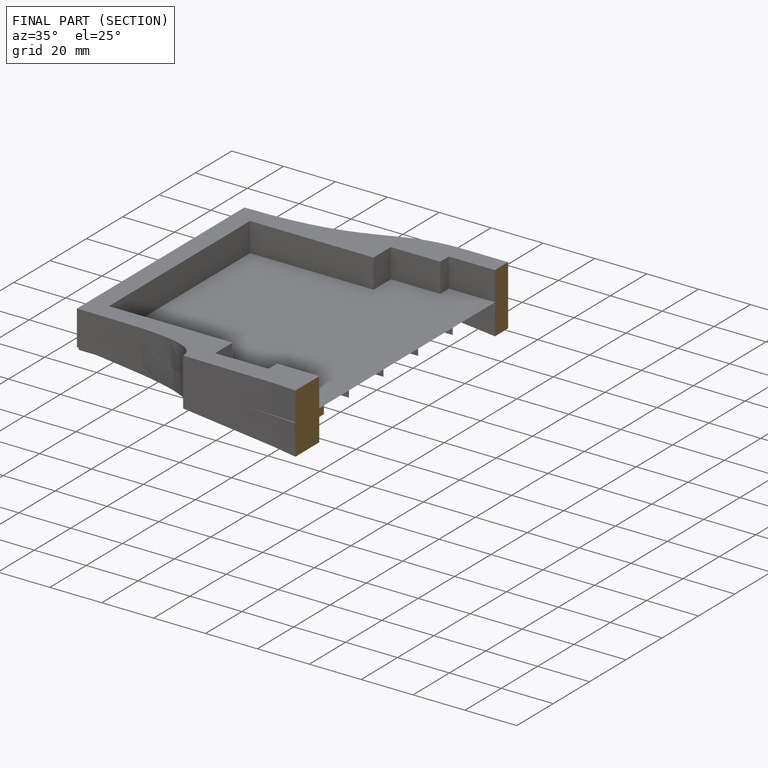
[diagram: finished part — half-section view (interior)]
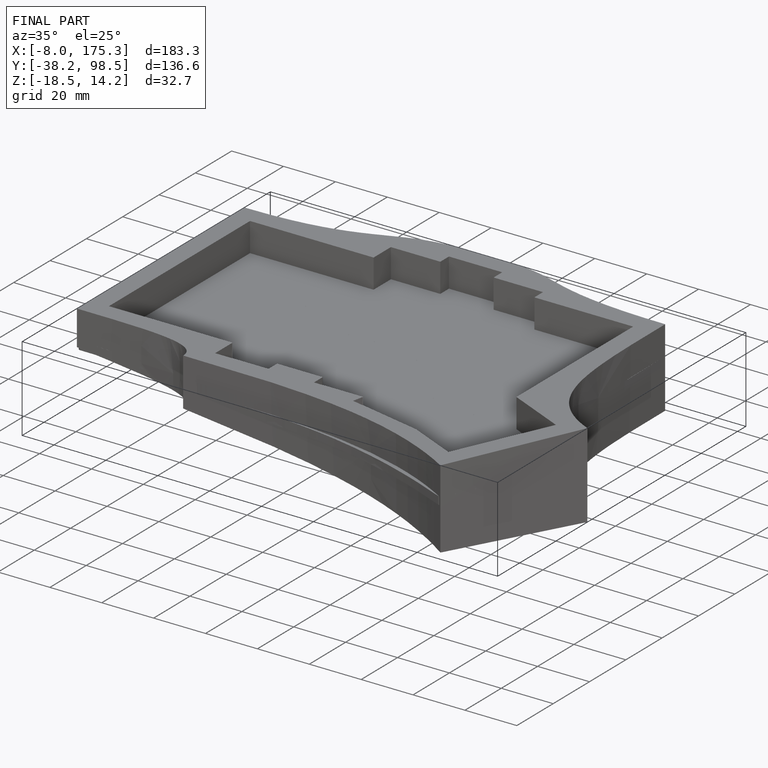
[diagram: finished part — iso view with bounding-box wireframe]
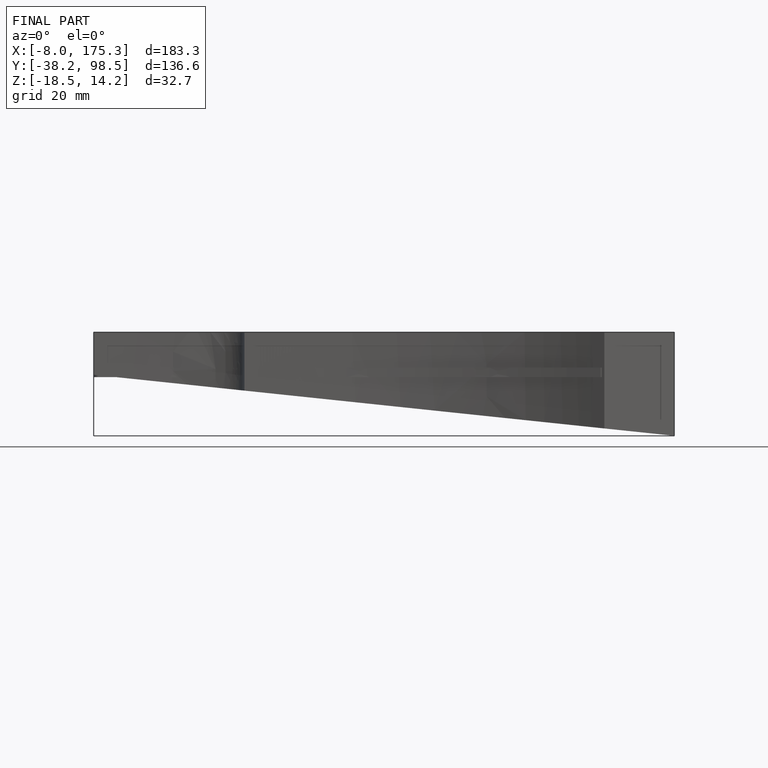
[diagram: finished part — front view with bounding-box wireframe]
